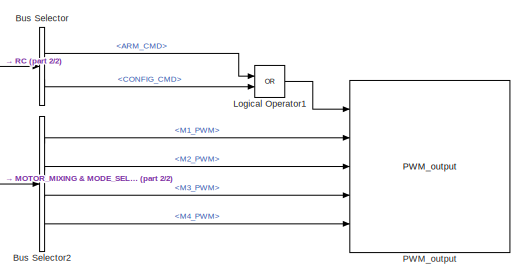
[diagram: root canvas - part 1/2, top right region]
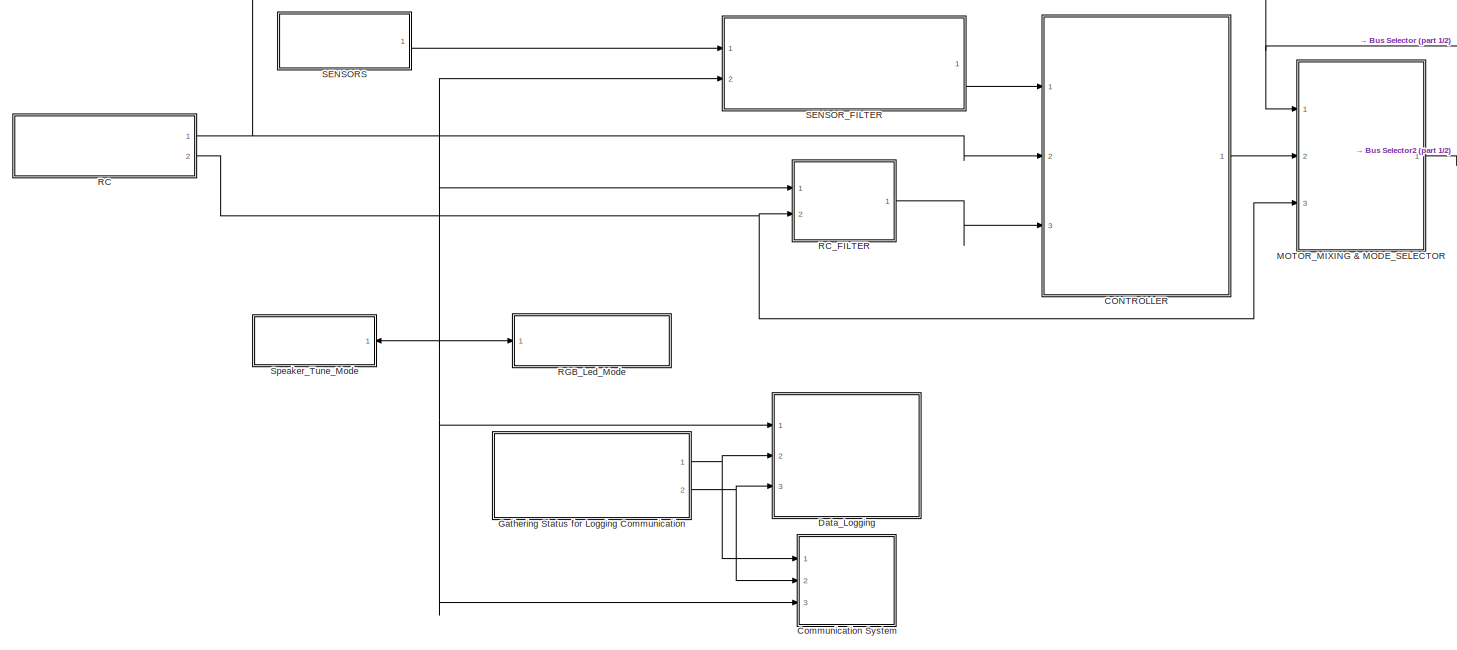
[diagram: root canvas - part 2/2, most of the canvas]
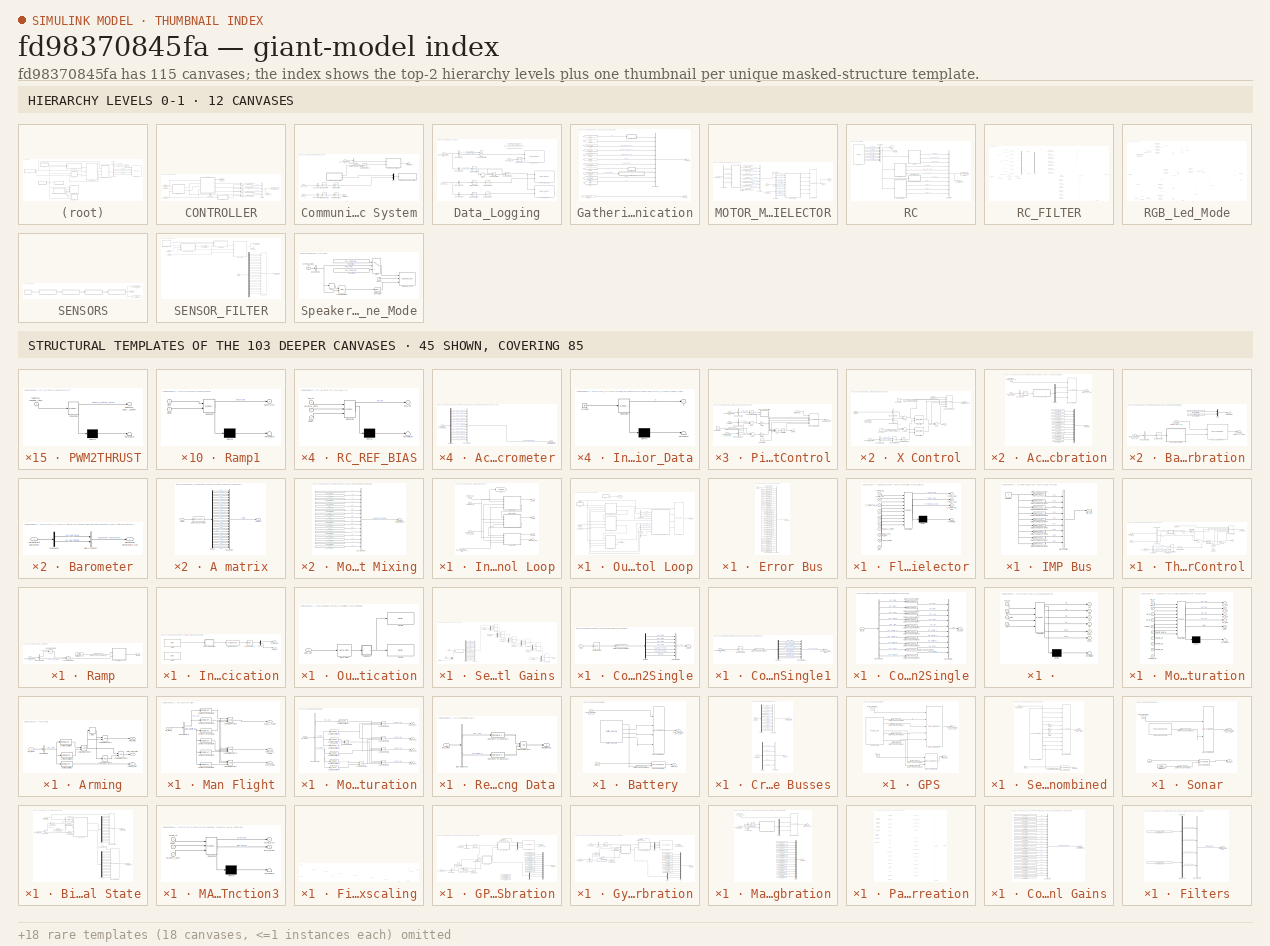
[diagram: thumbnail index - top-2 hierarchy levels (12 canvases) + 45 structural-template representatives of the remaining 103 canvases]
MODEL slx_fd98370845fa
KIND model
CONFIG AbsTol = auto
CONFIG EnableMultiTasking = on
CONFIG FixedStep = auto
CONFIG InitFcn = run('InitFcn_R2017b_no_csc.m');
CONFIG MaxStep = auto
CONFIG MinStep = auto
CONFIG RelTol = 1e-3
CONFIG SampleTimeConstraint = Unconstrained
CONFIG Solver = FixedStepDiscrete
CONFIG SolverName = FixedStepDiscrete
CONFIG StartTime = 0.0
CONFIG StopTime = 10.0
BLOCK [BusSelector] Bus Selector
  OutputAsBus = off
  OutputSignals = ARM_CMD,CONFIG_CMD
  Ports = [1, 2]
BLOCK [BusSelector] Bus Selector2
  OutputAsBus = off
  OutputSignals = M1_PWM,M2_PWM,M3_PWM,M4_PWM
  Ports = [1, 4]
BLOCK [SubSystem] CONTROLLER
  Ports = [3, 1]
  RequestExecContextInheritance = off
  Variant = off
BLOCK [BusCreator] CONTROLLER/Bus Creator1
  DisplayOption = bar
  InheritFromInputs = on
  Inputs = 4
  Ports = [4, 1]
BLOCK [BusSelector] CONTROLLER/Bus Selector
  OutputAsBus = off
  OutputSignals = T_THROTTLE
  Ports = [1, 1]
BLOCK [Outport] CONTROLLER/CONTROLLER_OUT
  IconDisplay = Port number
BLOCK [DataTypeConversion] CONTROLLER/Data Type Conversion12
  OutDataTypeStr = single
  RndMeth = Floor
  SaturateOnIntegerOverflow = off
BLOCK [DataTypeConversion] CONTROLLER/Data Type Conversion13
  OutDataTypeStr = single
  RndMeth = Floor
  SaturateOnIntegerOverflow = off
BLOCK [DataTypeConversion] CONTROLLER/Data Type Conversion14
  OutDataTypeStr = single
  RndMeth = Floor
  SaturateOnIntegerOverflow = off
BLOCK [DataTypeConversion] CONTROLLER/Data Type Conversion15
  OutDataTypeStr = single
  RndMeth = Floor
  SaturateOnIntegerOverflow = off
BLOCK [Inport] CONTROLLER/ESTIMATED_STATE_IN
  IconDisplay = Port number
BLOCK [Goto] CONTROLLER/Goto
  GotoTag = CONTROLLER
  TagVisibility = global
BLOCK [Goto] CONTROLLER/Goto1
  GotoTag = ERROR
  TagVisibility = global
BLOCK [SubSystem] CONTROLLER/Inner Control Loop
  Ports = [4, 4]
  RequestExecContextInheritance = off
  Variant = off
BLOCK [Inport] CONTROLLER/Inner Control Loop/ERROR_IN
  IconDisplay = Port number
  Port = 3
BLOCK [Outport] CONTROLLER/Inner Control Loop/ERROR_OUT
  IconDisplay = Port number
BLOCK [Inport] CONTROLLER/Inner Control Loop/ESTIMATED_STATE_IN
  IconDisplay = Port number
BLOCK [Goto] CONTROLLER/Inner Control Loop/Goto
  GotoTag = TARGET
  TagVisibility = global
BLOCK [SubSystem] CONTROLLER/Inner Control Loop/Pitch Control
  Ports = [4, 2]
  RequestExecContextInheritance = off
  Variant = off
BLOCK [Sum] CONTROLLER/Inner Control Loop/Pitch Control/Add1
  InputSameDT = off
  Inputs = +-
  OutDataTypeStr = Inherit: Inherit via internal rule
  Ports = [2, 1]
  SaturateOnIntegerOverflow = off
BLOCK [Sum] CONTROLLER/Inner Control Loop/Pitch Control/Add3
  InputSameDT = off
  Inputs = +-
  OutDataTypeStr = Inherit: Inherit via internal rule
  Ports = [2, 1]
  SaturateOnIntegerOverflow = off
BLOCK [Sum] CONTROLLER/Inner Control Loop/Pitch Control/Add4
  InputSameDT = off
  Inputs = ++++
  OutDataTypeStr = Inherit: Inherit via internal rule
  Ports = [4, 1]
  SaturateOnIntegerOverflow = off
BLOCK [BusAssignment] CONTROLLER/Inner Control Loop/Pitch Control/Bus Assignment
  AssignedSignals = e6,e7,e8,e9,e10
  Ports = [6, 1]
BLOCK [BusSelector] CONTROLLER/Inner Control Loop/Pitch Control/Bus Selector1
  OutputAsBus = off
  OutputSignals = ARM_CMD
  Ports = [1, 1]
BLOCK [BusSelector] CONTROLLER/Inner Control Loop/Pitch Control/Bus Selector10
  OutputAsBus = off
  OutputSignals = T_PITCH
  Ports = [1, 1]
BLOCK [BusSelector] CONTROLLER/Inner Control Loop/Pitch Control/Bus Selector11
  OutputAsBus = off
  OutputSignals = theta,wy
  Ports = [1, 2]
BLOCK [Constant] CONTROLLER/Inner Control Loop/Pitch Control/Constant
  SampleTime = Ts
  Value = 0
BLOCK [Constant] CONTROLLER/Inner Control Loop/Pitch Control/Constant1
  SampleTime = Ts
  Value = C11
BLOCK [DataTypeConversion] CONTROLLER/Inner Control Loop/Pitch Control/Data Type Conversion
  OutDataTypeStr = single
  RndMeth = Floor
  SaturateOnIntegerOverflow = off
BLOCK [Inport] CONTROLLER/Inner Control Loop/Pitch Control/ERROR_IN
  IconDisplay = Port number
BLOCK [Outport] CONTROLLER/Inner Control Loop/Pitch Control/ERROR_OUT
  IconDisplay = Port number
  Port = 2
BLOCK [Inport] CONTROLLER/Inner Control Loop/Pitch Control/ESTIMATED_STATE_IN
  IconDisplay = Port number
  Port = 3
BLOCK [Gain] CONTROLLER/Inner Control Loop/Pitch Control/Gain
  Gain = C2
  OutDataTypeStr = Inherit: Inherit via internal rule
  ParamDataTypeStr = Inherit: Inherit via internal rule
  SaturateOnIntegerOverflow = off
BLOCK [Gain] CONTROLLER/Inner Control Loop/Pitch Control/Gain1
  Gain = C8
  OutDataTypeStr = Inherit: Inherit via internal rule
  ParamDataTypeStr = Inherit: Inherit via internal rule
  SaturateOnIntegerOverflow = off
BLOCK [Logic] CONTROLLER/Inner Control Loop/Pitch Control/Logical Operator8
  AllPortsSameDT = off
  IconShape = distinctive
  Operator = NOT
  OutDataTypeStr = boolean
  Ports = [1, 1]
BLOCK [SubSystem] CONTROLLER/Inner Control Loop/Pitch Control/MATLAB Function
  ErrorFcn = Stateflow.Translate.translate
  PermitHierarchicalResolution = ExplicitOnly
  Ports = [2, 1]
  RequestExecContextInheritance = off
  SFBlockType = MATLAB Function
  TreatAsAtomicUnit = on
  Variant = off
BLOCK [Demux] CONTROLLER/Inner Control Loop/Pitch Control/MATLAB Function/ Demux 
  Outputs = 1
  Ports = [1, 1]
BLOCK [S-Function] CONTROLLER/Inner Control Loop/Pitch Control/MATLAB Function/ SFunction 
  EnableBusSupport = on
  FunctionName = sf_sfun
  Parameters = C5,Ts
  PortCounts = [2 2]
  Ports = [2, 2]
  SFcnIsStateOwnerBlock = off
  SFunctionDeploymentMode = off
  Tag = Stateflow S-Function PX4_Run_Mode_R2017b 35
BLOCK [Terminator] CONTROLLER/Inner Control Loop/Pitch Control/MATLAB Function/ Terminator 
BLOCK [Inport] CONTROLLER/Inner Control Loop/Pitch Control/MATLAB Function/Reset
  IconDisplay = Port number
BLOCK [Inport] CONTROLLER/Inner Control Loop/Pitch Control/MATLAB Function/u
  IconDisplay = Port number
  Port = 2
BLOCK [Outport] CONTROLLER/Inner Control Loop/Pitch Control/MATLAB Function/y
  IconDisplay = Port number
BLOCK [Inport] CONTROLLER/Inner Control Loop/Pitch Control/SYSTEM_MODE_IN 
  IconDisplay = Port number
  Port = 4
BLOCK [Saturate] CONTROLLER/Inner Control Loop/Pitch Control/Saturation
  InputPortMap = u0
  LowerLimit = -2
  Ports = [1, 1]
  UpperLimit = 2
BLOCK [Inport] CONTROLLER/Inner Control Loop/Pitch Control/TARGET
  IconDisplay = Port number
  Port = 2
BLOCK [Outport] CONTROLLER/Inner Control Loop/Pitch Control/U Pitch
  IconDisplay = Port number
BLOCK [SubSystem] CONTROLLER/Inner Control Loop/Roll Control
  Ports = [4, 2]
  RequestExecContextInheritance = off
  Variant = off
BLOCK [Sum] CONTROLLER/Inner Control Loop/Roll Control/Add1
  InputSameDT = off
  Inputs = +-
  OutDataTypeStr = Inherit: Inherit via internal rule
  Ports = [2, 1]
  SaturateOnIntegerOverflow = off
BLOCK [Sum] CONTROLLER/Inner Control Loop/Roll Control/Add3
  InputSameDT = off
  Inputs = +-
  OutDataTypeStr = Inherit: Inherit via internal rule
  Ports = [2, 1]
  SaturateOnIntegerOverflow = off
BLOCK [Sum] CONTROLLER/Inner Control Loop/Roll Control/Add4
  InputSameDT = off
  Inputs = ++++
  OutDataTypeStr = Inherit: Inherit via internal rule
  Ports = [4, 1]
  SaturateOnIntegerOverflow = off
BLOCK [BusAssignment] CONTROLLER/Inner Control Loop/Roll Control/Bus Assignment
  AssignedSignals = e1,e2,e3,e4,e5
  Ports = [6, 1]
BLOCK [BusSelector] CONTROLLER/Inner Control Loop/Roll Control/Bus Selector1
  OutputAsBus = off
  OutputSignals = ARM_CMD
  Ports = [1, 1]
BLOCK [BusSelector] CONTROLLER/Inner Control Loop/Roll Control/Bus Selector10
  OutputAsBus = off
  OutputSignals = T_ROLL
  Ports = [1, 1]
BLOCK [BusSelector] CONTROLLER/Inner Control Loop/Roll Control/Bus Selector11
  OutputAsBus = off
  OutputSignals = phi,wx
  Ports = [1, 2]
BLOCK [Constant] CONTROLLER/Inner Control Loop/Roll Control/Constant
  SampleTime = Ts
  Value = 0
BLOCK [Constant] CONTROLLER/Inner Control Loop/Roll Control/Constant1
  Value = C10
BLOCK [DataTypeConversion] CONTROLLER/Inner Control Loop/Roll Control/Data Type Conversion
  OutDataTypeStr = single
  RndMeth = Floor
  SaturateOnIntegerOverflow = off
BLOCK [Inport] CONTROLLER/Inner Control Loop/Roll Control/ERROR_IN
  IconDisplay = Port number
BLOCK [Outport] CONTROLLER/Inner Control Loop/Roll Control/ERROR_OUT
  IconDisplay = Port number
  Port = 2
BLOCK [Inport] CONTROLLER/Inner Control Loop/Roll Control/ESTIMATED_STATE_IN
  IconDisplay = Port number
  Port = 3
BLOCK [Gain] CONTROLLER/Inner Control Loop/Roll Control/Gain
  Gain = C1
  OutDataTypeStr = Inherit: Inherit via internal rule
  ParamDataTypeStr = Inherit: Inherit via internal rule
  SaturateOnIntegerOverflow = off
BLOCK [Gain] CONTROLLER/Inner Control Loop/Roll Control/Gain1
  Gain = C7
  OutDataTypeStr = Inherit: Inherit via internal rule
  ParamDataTypeStr = Inherit: Inherit via internal rule
  SaturateOnIntegerOverflow = off
BLOCK [Logic] CONTROLLER/Inner Control Loop/Roll Control/Logical Operator8
  AllPortsSameDT = off
  IconShape = distinctive
  Operator = NOT
  OutDataTypeStr = boolean
  Ports = [1, 1]
BLOCK [SubSystem] CONTROLLER/Inner Control Loop/Roll Control/MATLAB Function
  ErrorFcn = Stateflow.Translate.translate
  PermitHierarchicalResolution = ExplicitOnly
  Ports = [2, 1]
  RequestExecContextInheritance = off
  SFBlockType = MATLAB Function
  TreatAsAtomicUnit = on
  Variant = off
BLOCK [Demux] CONTROLLER/Inner Control Loop/Roll Control/MATLAB Function/ Demux 
  Outputs = 1
  Ports = [1, 1]
BLOCK [S-Function] CONTROLLER/Inner Control Loop/Roll Control/MATLAB Function/ SFunction 
  EnableBusSupport = on
  FunctionName = sf_sfun
  Parameters = C4,Ts
  PortCounts = [2 2]
  Ports = [2, 2]
  SFcnIsStateOwnerBlock = off
  SFunctionDeploymentMode = off
  Tag = Stateflow S-Function PX4_Run_Mode_R2017b 34
BLOCK [Terminator] CONTROLLER/Inner Control Loop/Roll Control/MATLAB Function/ Terminator 
BLOCK [Inport] CONTROLLER/Inner Control Loop/Roll Control/MATLAB Function/Reset
  IconDisplay = Port number
BLOCK [Inport] CONTROLLER/Inner Control Loop/Roll Control/MATLAB Function/u
  IconDisplay = Port number
  Port = 2
BLOCK [Outport] CONTROLLER/Inner Control Loop/Roll Control/MATLAB Function/y
  IconDisplay = Port number
BLOCK [Inport] CONTROLLER/Inner Control Loop/Roll Control/SYSTEM_MODE_IN 
  IconDisplay = Port number
  Port = 4
BLOCK [Saturate] CONTROLLER/Inner Control Loop/Roll Control/Saturation
  InputPortMap = u0
  LowerLimit = -2
  Ports = [1, 1]
  UpperLimit = 2
BLOCK [Inport] CONTROLLER/Inner Control Loop/Roll Control/TARGET
  IconDisplay = Port number
  Port = 2
BLOCK [Outport] CONTROLLER/Inner Control Loop/Roll Control/U Roll
  IconDisplay = Port number
BLOCK [Inport] CONTROLLER/Inner Control Loop/SYSTEM_MODE_IN 
  IconDisplay = Port number
  Port = 4
BLOCK [Inport] CONTROLLER/Inner Control Loop/TARGET_IN
  IconDisplay = Port number
  Port = 2
BLOCK [Outport] CONTROLLER/Inner Control Loop/U Pitch
  IconDisplay = Port number
  Port = 3
BLOCK [Outport] CONTROLLER/Inner Control Loop/U Roll
  IconDisplay = Port number
  Port = 2
BLOCK [Outport] CONTROLLER/Inner Control Loop/U Yaw
  IconDisplay = Port number
  Port = 4
BLOCK [SubSystem] CONTROLLER/Inner Control Loop/Yaw Control
  Ports = [4, 2]
  RequestExecContextInheritance = off
  Variant = off
BLOCK [Sum] CONTROLLER/Inner Control Loop/Yaw Control/Add1
  InputSameDT = off
  Inputs = +-
  OutDataTypeStr = Inherit: Inherit via internal rule
  Ports = [2, 1]
  SaturateOnIntegerOverflow = off
BLOCK [Sum] CONTROLLER/Inner Control Loop/Yaw Control/Add3
  InputSameDT = off
  Inputs = +-
  OutDataTypeStr = Inherit: Inherit via internal rule
  Ports = [2, 1]
  SaturateOnIntegerOverflow = off
BLOCK [Sum] CONTROLLER/Inner Control Loop/Yaw Control/Add4
  InputSameDT = off
  Inputs = ++++
  OutDataTypeStr = Inherit: Inherit via internal rule
  Ports = [4, 1]
  SaturateOnIntegerOverflow = off
BLOCK [BusAssignment] CONTROLLER/Inner Control Loop/Yaw Control/Bus Assignment
  AssignedSignals = e11,e12,e13,e14,e15
  Ports = [6, 1]
BLOCK [BusSelector] CONTROLLER/Inner Control Loop/Yaw Control/Bus Selector1
  OutputAsBus = off
  OutputSignals = ARM_CMD
  Ports = [1, 1]
BLOCK [BusSelector] CONTROLLER/Inner Control Loop/Yaw Control/Bus Selector10
  OutputAsBus = off
  OutputSignals = T_YAW
  Ports = [1, 1]
BLOCK [BusSelector] CONTROLLER/Inner Control Loop/Yaw Control/Bus Selector11
  OutputAsBus = off
  OutputSignals = psi,wz
  Ports = [1, 2]
BLOCK [Constant] CONTROLLER/Inner Control Loop/Yaw Control/Constant
  SampleTime = Ts
  Value = 0
BLOCK [Constant] CONTROLLER/Inner Control Loop/Yaw Control/Constant1
  SampleTime = Ts
  Value = C12
BLOCK [DataTypeConversion] CONTROLLER/Inner Control Loop/Yaw Control/Data Type Conversion
  OutDataTypeStr = single
  RndMeth = Floor
  SaturateOnIntegerOverflow = off
BLOCK [Inport] CONTROLLER/Inner Control Loop/Yaw Control/ERROR_IN
  IconDisplay = Port number
BLOCK [Outport] CONTROLLER/Inner Control Loop/Yaw Control/ERROR_OUT
  IconDisplay = Port number
  Port = 2
BLOCK [Inport] CONTROLLER/Inner Control Loop/Yaw Control/ESTIMATED_STATE_IN
  IconDisplay = Port number
  Port = 3
BLOCK [Gain] CONTROLLER/Inner Control Loop/Yaw Control/Gain
  Gain = C3
  OutDataTypeStr = Inherit: Inherit via internal rule
  ParamDataTypeStr = Inherit: Inherit via internal rule
  SaturateOnIntegerOverflow = off
BLOCK [Gain] CONTROLLER/Inner Control Loop/Yaw Control/Gain1
  Gain = C9
  OutDataTypeStr = Inherit: Inherit via internal rule
  ParamDataTypeStr = Inherit: Inherit via internal rule
  SaturateOnIntegerOverflow = off
BLOCK [Logic] CONTROLLER/Inner Control Loop/Yaw Control/Logical Operator8
  AllPortsSameDT = off
  IconShape = distinctive
  Operator = NOT
  OutDataTypeStr = boolean
  Ports = [1, 1]
BLOCK [SubSystem] CONTROLLER/Inner Control Loop/Yaw Control/MATLAB Function
  ErrorFcn = Stateflow.Translate.translate
  PermitHierarchicalResolution = ExplicitOnly
  Ports = [2, 1]
  RequestExecContextInheritance = off
  SFBlockType = MATLAB Function
  TreatAsAtomicUnit = on
  Variant = off
BLOCK [Demux] CONTROLLER/Inner Control Loop/Yaw Control/MATLAB Function/ Demux 
  Outputs = 1
  Ports = [1, 1]
BLOCK [S-Function] CONTROLLER/Inner Control Loop/Yaw Control/MATLAB Function/ SFunction 
  EnableBusSupport = on
  FunctionName = sf_sfun
  Parameters = C6,Ts
  PortCounts = [2 2]
  Ports = [2, 2]
  SFcnIsStateOwnerBlock = off
  SFunctionDeploymentMode = off
  Tag = Stateflow S-Function PX4_Run_Mode_R2017b 40
BLOCK [Terminator] CONTROLLER/Inner Control Loop/Yaw Control/MATLAB Function/ Terminator 
BLOCK [Inport] CONTROLLER/Inner Control Loop/Yaw Control/MATLAB Function/Reset
  IconDisplay = Port number
BLOCK [Inport] CONTROLLER/Inner Control Loop/Yaw Control/MATLAB Function/e
  IconDisplay = Port number
  Port = 2
BLOCK [Outport] CONTROLLER/Inner Control Loop/Yaw Control/MATLAB Function/eI
  IconDisplay = Port number
BLOCK [Inport] CONTROLLER/Inner Control Loop/Yaw Control/SYSTEM_MODE_IN 
  IconDisplay = Port number
  Port = 4
BLOCK [Saturate] CONTROLLER/Inner Control Loop/Yaw Control/Saturation
  InputPortMap = u0
  LowerLimit = -2
  Ports = [1, 1]
  UpperLimit = 2
BLOCK [Inport] CONTROLLER/Inner Control Loop/Yaw Control/TARGET
  IconDisplay = Port number
  Port = 2
BLOCK [Outport] CONTROLLER/Inner Control Loop/Yaw Control/U Yaw
  IconDisplay = Port number
BLOCK [SubSystem] CONTROLLER/Outer Control Loop
  Ports = [3, 2]
  RequestExecContextInheritance = off
  Variant = off
BLOCK [BusAssignment] CONTROLLER/Outer Control Loop/Bus Assignment
  AssignedSignals = T_PITCH,T_ROLL,T_THROTTLE
  Ports = [4, 1]
BLOCK [BusSelector] CONTROLLER/Outer Control Loop/Bus Selector1
  OutputAsBus = off
  OutputSignals = psi
  Ports = [1, 1]
BLOCK [BusSelector] CONTROLLER/Outer Control Loop/Bus Selector2
  OutputAsBus = off
  OutputSignals = T_PITCH,T_ROLL,T_THROTTLE
  Ports = [1, 3]
BLOCK [BusSelector] CONTROLLER/Outer Control Loop/Bus Selector3
  OutputAsBus = off
  OutputSignals = MAN_FLIGHT,SEMI_AUTO_FLIGHT,AUTO_FLIGHT
  Ports = [1, 3]
BLOCK [Outport] CONTROLLER/Outer Control Loop/ERROR_OUT
  IconDisplay = Port number
  Port = 2
BLOCK [Inport] CONTROLLER/Outer Control Loop/ESTIMATED_STATE_IN
  IconDisplay = Port number
BLOCK [SubSystem] CONTROLLER/Outer Control Loop/Error Bus
  Ports = [0, 1]
  RequestExecContextInheritance = off
  Variant = off
BLOCK [BusCreator] CONTROLLER/Outer Control Loop/Error Bus/Bus Creator
  DisplayOption = bar
  InheritFromInputs = on
  Inputs = 30
  Ports = [30, 1]
BLOCK [Constant] CONTROLLER/Outer Control Loop/Error Bus/Constant
  SampleTime = Ts
  Value = 0
BLOCK [DataTypeConversion] CONTROLLER/Outer Control Loop/Error Bus/Data Type Conversion
  OutDataTypeStr = single
  RndMeth = Floor
  SaturateOnIntegerOverflow = off
BLOCK [DataTypeConversion] CONTROLLER/Outer Control Loop/Error Bus/Data Type Conversion1
  OutDataTypeStr = single
  RndMeth = Floor
  SaturateOnIntegerOverflow = off
BLOCK [DataTypeConversion] CONTROLLER/Outer Control Loop/Error Bus/Data Type Conversion10
  OutDataTypeStr = single
  RndMeth = Floor
  SaturateOnIntegerOverflow = off
BLOCK [DataTypeConversion] CONTROLLER/Outer Control Loop/Error Bus/Data Type Conversion11
  OutDataTypeStr = single
  RndMeth = Floor
  SaturateOnIntegerOverflow = off
BLOCK [DataTypeConversion] CONTROLLER/Outer Control Loop/Error Bus/Data Type Conversion12
  OutDataTypeStr = single
  RndMeth = Floor
  SaturateOnIntegerOverflow = off
BLOCK [DataTypeConversion] CONTROLLER/Outer Control Loop/Error Bus/Data Type Conversion13
  OutDataTypeStr = single
  RndMeth = Floor
  SaturateOnIntegerOverflow = off
BLOCK [DataTypeConversion] CONTROLLER/Outer Control Loop/Error Bus/Data Type Conversion14
  OutDataTypeStr = single
  RndMeth = Floor
  SaturateOnIntegerOverflow = off
BLOCK [DataTypeConversion] CONTROLLER/Outer Control Loop/Error Bus/Data Type Conversion15
  OutDataTypeStr = single
  RndMeth = Floor
  SaturateOnIntegerOverflow = off
BLOCK [DataTypeConversion] CONTROLLER/Outer Control Loop/Error Bus/Data Type Conversion16
  OutDataTypeStr = single
  RndMeth = Floor
  SaturateOnIntegerOverflow = off
BLOCK [DataTypeConversion] CONTROLLER/Outer Control Loop/Error Bus/Data Type Conversion17
  OutDataTypeStr = single
  RndMeth = Floor
  SaturateOnIntegerOverflow = off
BLOCK [DataTypeConversion] CONTROLLER/Outer Control Loop/Error Bus/Data Type Conversion18
  OutDataTypeStr = single
  RndMeth = Floor
  SaturateOnIntegerOverflow = off
BLOCK [DataTypeConversion] CONTROLLER/Outer Control Loop/Error Bus/Data Type Conversion19
  OutDataTypeStr = single
  RndMeth = Floor
  SaturateOnIntegerOverflow = off
BLOCK [DataTypeConversion] CONTROLLER/Outer Control Loop/Error Bus/Data Type Conversion2
  OutDataTypeStr = single
  RndMeth = Floor
  SaturateOnIntegerOverflow = off
BLOCK [DataTypeConversion] CONTROLLER/Outer Control Loop/Error Bus/Data Type Conversion20
  OutDataTypeStr = single
  RndMeth = Floor
  SaturateOnIntegerOverflow = off
BLOCK [DataTypeConversion] CONTROLLER/Outer Control Loop/Error Bus/Data Type Conversion21
  OutDataTypeStr = single
  RndMeth = Floor
  SaturateOnIntegerOverflow = off
BLOCK [DataTypeConversion] CONTROLLER/Outer Control Loop/Error Bus/Data Type Conversion22
  OutDataTypeStr = single
  RndMeth = Floor
  SaturateOnIntegerOverflow = off
BLOCK [DataTypeConversion] CONTROLLER/Outer Control Loop/Error Bus/Data Type Conversion23
  OutDataTypeStr = single
  RndMeth = Floor
  SaturateOnIntegerOverflow = off
BLOCK [DataTypeConversion] CONTROLLER/Outer Control Loop/Error Bus/Data Type Conversion24
  OutDataTypeStr = single
  RndMeth = Floor
  SaturateOnIntegerOverflow = off
BLOCK [DataTypeConversion] CONTROLLER/Outer Control Loop/Error Bus/Data Type Conversion25
  OutDataTypeStr = single
  RndMeth = Floor
  SaturateOnIntegerOverflow = off
BLOCK [DataTypeConversion] CONTROLLER/Outer Control Loop/Error Bus/Data Type Conversion26
  OutDataTypeStr = single
  RndMeth = Floor
  SaturateOnIntegerOverflow = off
BLOCK [DataTypeConversion] CONTROLLER/Outer Control Loop/Error Bus/Data Type Conversion27
  OutDataTypeStr = single
  RndMeth = Floor
  SaturateOnIntegerOverflow = off
BLOCK [DataTypeConversion] CONTROLLER/Outer Control Loop/Error Bus/Data Type Conversion28
  OutDataTypeStr = single
  RndMeth = Floor
  SaturateOnIntegerOverflow = off
BLOCK [DataTypeConversion] CONTROLLER/Outer Control Loop/Error Bus/Data Type Conversion29
  OutDataTypeStr = single
  RndMeth = Floor
  SaturateOnIntegerOverflow = off
BLOCK [DataTypeConversion] CONTROLLER/Outer Control Loop/Error Bus/Data Type Conversion3
  OutDataTypeStr = single
  RndMeth = Floor
  SaturateOnIntegerOverflow = off
BLOCK [DataTypeConversion] CONTROLLER/Outer Control Loop/Error Bus/Data Type Conversion4
  OutDataTypeStr = single
  RndMeth = Floor
  SaturateOnIntegerOverflow = off
BLOCK [DataTypeConversion] CONTROLLER/Outer Control Loop/Error Bus/Data Type Conversion5
  OutDataTypeStr = single
  RndMeth = Floor
  SaturateOnIntegerOverflow = off
BLOCK [DataTypeConversion] CONTROLLER/Outer Control Loop/Error Bus/Data Type Conversion6
  OutDataTypeStr = single
  RndMeth = Floor
  SaturateOnIntegerOverflow = off
BLOCK [DataTypeConversion] CONTROLLER/Outer Control Loop/Error Bus/Data Type Conversion7
  OutDataTypeStr = single
  RndMeth = Floor
  SaturateOnIntegerOverflow = off
BLOCK [DataTypeConversion] CONTROLLER/Outer Control Loop/Error Bus/Data Type Conversion8
  OutDataTypeStr = single
  RndMeth = Floor
  SaturateOnIntegerOverflow = off
BLOCK [DataTypeConversion] CONTROLLER/Outer Control Loop/Error Bus/Data Type Conversion9
  OutDataTypeStr = single
  RndMeth = Floor
  SaturateOnIntegerOverflow = off
BLOCK [Outport] CONTROLLER/Outer Control Loop/Error Bus/ERROR_OUT
  IconDisplay = Port number
BLOCK [SubSystem] CONTROLLER/Outer Control Loop/Flight_Mode_Selector
  ErrorFcn = Stateflow.Translate.translate
  PermitHierarchicalResolution = ExplicitOnly
  Ports = [10, 3]
  RequestExecContextInheritance = off
  SFBlockType = MATLAB Function
  TreatAsAtomicUnit = on
  Variant = off
BLOCK [Demux] CONTROLLER/Outer Control Loop/Flight_Mode_Selector/ Demux 
  Outputs = 1
  Ports = [1, 1]
BLOCK [S-Function] CONTROLLER/Outer Control Loop/Flight_Mode_Selector/ SFunction 
  EnableBusSupport = on
  FunctionName = sf_sfun
  PortCounts = [10 4]
  Ports = [10, 4]
  SFcnIsStateOwnerBlock = off
  SFunctionDeploymentMode = off
  Tag = Stateflow S-Function PX4_Run_Mode_R2017b 42
BLOCK [Terminator] CONTROLLER/Outer Control Loop/Flight_Mode_Selector/ Terminator 
BLOCK [Inport] CONTROLLER/Outer Control Loop/Flight_Mode_Selector/AUTO_FLIGHT
  IconDisplay = Port number
  Port = 9
BLOCK [Inport] CONTROLLER/Outer Control Loop/Flight_Mode_Selector/MANUAL_FLIGHT
  IconDisplay = Port number
  Port = 7
BLOCK [Inport] CONTROLLER/Outer Control Loop/Flight_Mode_Selector/SEMI_AUTO_FLIGHT
  IconDisplay = Port number
  Port = 8
BLOCK [Inport] CONTROLLER/Outer Control Loop/Flight_Mode_Selector/T_PITCH_IN
  IconDisplay = Port number
BLOCK [Outport] CONTROLLER/Outer Control Loop/Flight_Mode_Selector/T_PITCH_OUT
  IconDisplay = Port number
BLOCK [Inport] CONTROLLER/Outer Control Loop/Flight_Mode_Selector/T_ROLL_IN
  IconDisplay = Port number
  Port = 2
BLOCK [Outport] CONTROLLER/Outer Control Loop/Flight_Mode_Selector/T_ROLL_OUT
  IconDisplay = Port number
  Port = 2
BLOCK [Inport] CONTROLLER/Outer Control Loop/Flight_Mode_Selector/T_THROTTLE_IN
  IconDisplay = Port number
  Port = 3
BLOCK [Outport] CONTROLLER/Outer Control Loop/Flight_Mode_Selector/T_THROTTLE_OUT
  IconDisplay = Port number
  Port = 3
BLOCK [Inport] CONTROLLER/Outer Control Loop/Flight_Mode_Selector/U_X
  IconDisplay = Port number
  Port = 4
BLOCK [Inport] CONTROLLER/Outer Control Loop/Flight_Mode_Selector/U_Y
  IconDisplay = Port number
  Port = 5
BLOCK [Inport] CONTROLLER/Outer Control Loop/Flight_Mode_Selector/U_Z
  IconDisplay = Port number
  Port = 6
BLOCK [Inport] CONTROLLER/Outer Control Loop/Flight_Mode_Selector/psi
  IconDisplay = Port number
  Port = 10
BLOCK [Goto] CONTROLLER/Outer Control Loop/Goto
  GotoTag = IMP
  TagVisibility = global
BLOCK [SubSystem] CONTROLLER/Outer Control Loop/IMP Bus
  Ports = [0, 1]
  RequestExecContextInheritance = off
  Variant = off
BLOCK [BusCreator] CONTROLLER/Outer Control Loop/IMP Bus/Bus Creator
  DisplayOption = bar
  InheritFromInputs = on
  Inputs = 9
  Ports = [9, 1]
BLOCK [Constant] CONTROLLER/Outer Control Loop/IMP Bus/Constant
  SampleTime = Ts
  Value = 0
BLOCK [DataTypeConversion] CONTROLLER/Outer Control Loop/IMP Bus/Data Type Conversion
  OutDataTypeStr = single
  RndMeth = Floor
  SaturateOnIntegerOverflow = off
BLOCK [DataTypeConversion] CONTROLLER/Outer Control Loop/IMP Bus/Data Type Conversion1
  OutDataTypeStr = single
  RndMeth = Floor
  SaturateOnIntegerOverflow = off
BLOCK [DataTypeConversion] CONTROLLER/Outer Control Loop/IMP Bus/Data Type Conversion2
  OutDataTypeStr = single
  RndMeth = Floor
  SaturateOnIntegerOverflow = off
BLOCK [DataTypeConversion] CONTROLLER/Outer Control Loop/IMP Bus/Data Type Conversion3
  OutDataTypeStr = single
  RndMeth = Floor
  SaturateOnIntegerOverflow = off
BLOCK [DataTypeConversion] CONTROLLER/Outer Control Loop/IMP Bus/Data Type Conversion4
  OutDataTypeStr = single
  RndMeth = Floor
  SaturateOnIntegerOverflow = off
BLOCK [DataTypeConversion] CONTROLLER/Outer Control Loop/IMP Bus/Data Type Conversion5
  OutDataTypeStr = single
  RndMeth = Floor
  SaturateOnIntegerOverflow = off
BLOCK [DataTypeConversion] CONTROLLER/Outer Control Loop/IMP Bus/Data Type Conversion6
  OutDataTypeStr = single
  RndMeth = Floor
  SaturateOnIntegerOverflow = off
BLOCK [DataTypeConversion] CONTROLLER/Outer Control Loop/IMP Bus/Data Type Conversion7
  OutDataTypeStr = single
  RndMeth = Floor
  SaturateOnIntegerOverflow = off
BLOCK [DataTypeConversion] CONTROLLER/Outer Control Loop/IMP Bus/Data Type Conversion8
  OutDataTypeStr = single
  RndMeth = Floor
  SaturateOnIntegerOverflow = off
BLOCK [Outport] CONTROLLER/Outer Control Loop/IMP Bus/IMP_OUT
  IconDisplay = Port number
BLOCK [Inport] CONTROLLER/Outer Control Loop/SYSTEM_MODE_IN
  IconDisplay = Port number
  Port = 3
BLOCK [Inport] CONTROLLER/Outer Control Loop/TARGET_IN
  IconDisplay = Port number
  Port = 2
BLOCK [Outport] CONTROLLER/Outer Control Loop/TARGET_OUT
  IconDisplay = Port number
BLOCK [SubSystem] CONTROLLER/Outer Control Loop/Thrust Control
  Ports = [4, 2]
  RequestExecContextInheritance = off
  Variant = off
BLOCK [Sum] CONTROLLER/Outer Control Loop/Thrust Control/Add
  InputSameDT = off
  Inputs = -+
  OutDataTypeStr = Inherit: Inherit via internal rule
  Ports = [2, 1]
  SaturateOnIntegerOverflow = off
BLOCK [Sum] CONTROLLER/Outer Control Loop/Thrust Control/Add2
  InputSameDT = off
  Inputs = -+
  OutDataTypeStr = Inherit: Inherit via internal rule
  Ports = [2, 1]
  SaturateOnIntegerOverflow = off
BLOCK [Sum] CONTROLLER/Outer Control Loop/Thrust Control/Add5
  InputSameDT = off
  OutDataTypeStr = Inherit: Inherit via internal rule
  Ports = [2, 1]
  SaturateOnIntegerOverflow = off
BLOCK [BusAssignment] CONTROLLER/Outer Control Loop/Thrust Control/Bus Assignment
  AssignedSignals = e26,e27,e28,e29,e30
  Ports = [6, 1]
BLOCK [BusSelector] CONTROLLER/Outer Control Loop/Thrust Control/Bus Selector1
  OutputAsBus = off
  OutputSignals = T_Z
  Ports = [1, 1]
BLOCK [BusSelector] CONTROLLER/Outer Control Loop/Thrust Control/Bus Selector2
  OutputAsBus = off
  OutputSignals = ARM_CMD,AUTO_FLIGHT,SEMI_AUTO_FLIGHT
  Ports = [1, 3]
BLOCK [BusSelector] CONTROLLER/Outer Control Loop/Thrust Control/Bus Selector3
  OutputAsBus = off
  OutputSignals = z,w
  Ports = [1, 2]
BLOCK [Constant] CONTROLLER/Outer Control Loop/Thrust Control/Constant1
  Commented = on
  SampleTime = Ts
  Value = C24
BLOCK [Constant] CONTROLLER/Outer Control Loop/Thrust Control/Constant2
  OutDataTypeStr = single
  Value = -12.5
BLOCK [Inport] CONTROLLER/Outer Control Loop/Thrust Control/ERROR_IN
  IconDisplay = Port number
BLOCK [Outport] CONTROLLER/Outer Control Loop/Thrust Control/ERROR_OUT
  IconDisplay = Port number
  Port = 2
BLOCK [Inport] CONTROLLER/Outer Control Loop/Thrust Control/ESTIMATED_STATE_IN
  IconDisplay = Port number
  Port = 3
BLOCK [Logic] CONTROLLER/Outer Control Loop/Thrust Control/Logical Operator
  AllPortsSameDT = off
  IconShape = distinctive
  OutDataTypeStr = boolean
  Ports = [2, 1]
BLOCK [Logic] CONTROLLER/Outer Control Loop/Thrust Control/Logical Operator1
  AllPortsSameDT = off
  IconShape = distinctive
  Operator = NOT
  OutDataTypeStr = boolean
  Ports = [1, 1]
BLOCK [Logic] CONTROLLER/Outer Control Loop/Thrust Control/Logical Operator2
  AllPortsSameDT = off
  IconShape = distinctive
  Operator = OR
  OutDataTypeStr = boolean
  Ports = [2, 1]
BLOCK [SubSystem] CONTROLLER/Outer Control Loop/Thrust Control/MATLAB Function2
  ErrorFcn = Stateflow.Translate.translate
  PermitHierarchicalResolution = ExplicitOnly
  Ports = [1, 1]
  RequestExecContextInheritance = off
  SFBlockType = MATLAB Function
  TreatAsAtomicUnit = on
  Variant = off
BLOCK [Demux] CONTROLLER/Outer Control Loop/Thrust Control/MATLAB Function2/ Demux 
  Outputs = 1
  Ports = [1, 1]
BLOCK [S-Function] CONTROLLER/Outer Control Loop/Thrust Control/MATLAB Function2/ SFunction 
  EnableBusSupport = on
  FunctionName = sf_sfun
  PortCounts = [1 2]
  Ports = [1, 2]
  SFcnIsStateOwnerBlock = off
  SFunctionDeploymentMode = off
  Tag = Stateflow S-Function PX4_Run_Mode_R2017b 13
BLOCK [Terminator] CONTROLLER/Outer Control Loop/Thrust Control/MATLAB Function2/ Terminator 
BLOCK [Inport] CONTROLLER/Outer Control Loop/Thrust Control/MATLAB Function2/T_z
  IconDisplay = Port number
BLOCK [Outport] CONTROLLER/Outer Control Loop/Thrust Control/MATLAB Function2/Z_Vel_Ref
  IconDisplay = Port number
BLOCK [Reference] CONTROLLER/Outer Control Loop/Thrust Control/PID Controller  REF=simulink/Continuous/PID Controller
  Ports = [2, 1]
  SourceBlock = simulink/Continuous/PID Controller
  SourceProductBaseCode = SL
  SourceProductName = Simulink
  SourceType = PID 1dof
BLOCK [Reference] CONTROLLER/Outer Control Loop/Thrust Control/PID Controller1  REF=simulink/Continuous/PID Controller
  Ports = [1, 1]
  SourceBlock = simulink/Continuous/PID Controller
  SourceProductBaseCode = SL
  SourceProductName = Simulink
  SourceType = PID 1dof
BLOCK [Inport] CONTROLLER/Outer Control Loop/Thrust Control/SYSTEM_MODE_IN
  IconDisplay = Port number
  Port = 4
BLOCK [Inport] CONTROLLER/Outer Control Loop/Thrust Control/TARGET
  IconDisplay = Port number
  Port = 2
BLOCK [Outport] CONTROLLER/Outer Control Loop/Thrust Control/U Z
  IconDisplay = Port number
BLOCK [SubSystem] CONTROLLER/Outer Control Loop/X Control
  Ports = [4, 2]
  RequestExecContextInheritance = off
  Variant = off
BLOCK [Sum] CONTROLLER/Outer Control Loop/X Control/Add
  InputSameDT = off
  OutDataTypeStr = Inherit: Inherit via internal rule
  Ports = [2, 1]
  SaturateOnIntegerOverflow = off
BLOCK [Sum] CONTROLLER/Outer Control Loop/X Control/Add2
  InputSameDT = off
  Inputs = +-
  OutDataTypeStr = Inherit: Inherit via internal rule
  Ports = [2, 1]
  SaturateOnIntegerOverflow = off
BLOCK [Sum] CONTROLLER/Outer Control Loop/X Control/Add4
  InputSameDT = off
  Inputs = -+
  OutDataTypeStr = Inherit: Inherit via internal rule
  Ports = [2, 1]
  SaturateOnIntegerOverflow = off
BLOCK [BusAssignment] CONTROLLER/Outer Control Loop/X Control/Bus Assignment
  AssignedSignals = e16,e17,e18,e19,e20
  Ports = [6, 1]
BLOCK [BusSelector] CONTROLLER/Outer Control Loop/X Control/Bus Selector1
  OutputAsBus = off
  OutputSignals = x,u
  Ports = [1, 2]
BLOCK [BusSelector] CONTROLLER/Outer Control Loop/X Control/Bus Selector2
  OutputAsBus = off
  OutputSignals = ARM_CMD,AUTO_FLIGHT
  Ports = [1, 2]
BLOCK [BusSelector] CONTROLLER/Outer Control Loop/X Control/Bus Selector3
  OutputAsBus = off
  OutputSignals = T_X
  Ports = [1, 1]
BLOCK [Constant] CONTROLLER/Outer Control Loop/X Control/Constant1
  SampleTime = Ts
  Value = 0
BLOCK [Constant] CONTROLLER/Outer Control Loop/X Control/Constant2
  SampleTime = Ts
  Value = 0
BLOCK [Reference] CONTROLLER/Outer Control Loop/X Control/D Controller  REF=simulink/Continuous/PID Controller
  Ports = [2, 1]
  SourceBlock = simulink/Continuous/PID Controller
  SourceProductBaseCode = SL
  SourceProductName = Simulink
  SourceType = PID 1dof
BLOCK [DataTypeConversion] CONTROLLER/Outer Control Loop/X Control/Data Type Conversion1
  OutDataTypeStr = single
  RndMeth = Floor
  SaturateOnIntegerOverflow = off
BLOCK [DataTypeConversion] CONTROLLER/Outer Control Loop/X Control/Data Type Conversion2
  OutDataTypeStr = single
  RndMeth = Floor
  SaturateOnIntegerOverflow = off
BLOCK [Inport] CONTROLLER/Outer Control Loop/X Control/ERROR_IN
  IconDisplay = Port number
BLOCK [Outport] CONTROLLER/Outer Control Loop/X Control/ERROR_OUT
  IconDisplay = Port number
  Port = 2
BLOCK [Inport] CONTROLLER/Outer Control Loop/X Control/ESTIMATED_STATE_IN
  IconDisplay = Port number
  Port = 3
BLOCK [Logic] CONTROLLER/Outer Control Loop/X Control/Logical Operator
  AllPortsSameDT = off
  IconShape = distinctive
  OutDataTypeStr = boolean
  Ports = [2, 1]
BLOCK [Logic] CONTROLLER/Outer Control Loop/X Control/Logical Operator1
  AllPortsSameDT = off
  IconShape = distinctive
  Operator = NOT
  OutDataTypeStr = boolean
  Ports = [1, 1]
BLOCK [Reference] CONTROLLER/Outer Control Loop/X Control/PI Controller  REF=simulink/Continuous/PID Controller
  Ports = [2, 1]
  SourceBlock = simulink/Continuous/PID Controller
  SourceProductBaseCode = SL
  SourceProductName = Simulink
  SourceType = PID 1dof
BLOCK [Inport] CONTROLLER/Outer Control Loop/X Control/SYSTEM_MODE_IN
  IconDisplay = Port number
  Port = 4
BLOCK [Inport] CONTROLLER/Outer Control Loop/X Control/TARGET
  IconDisplay = Port number
  Port = 2
BLOCK [Outport] CONTROLLER/Outer Control Loop/X Control/U X
  IconDisplay = Port number
BLOCK [SubSystem] CONTROLLER/Outer Control Loop/Y Control
  Ports = [4, 2]
  RequestExecContextInheritance = off
  Variant = off
BLOCK [Sum] CONTROLLER/Outer Control Loop/Y Control/Add
  InputSameDT = off
  OutDataTypeStr = Inherit: Inherit via internal rule
  Ports = [2, 1]
  SaturateOnIntegerOverflow = off
BLOCK [Sum] CONTROLLER/Outer Control Loop/Y Control/Add2
  InputSameDT = off
  Inputs = +-
  OutDataTypeStr = Inherit: Inherit via internal rule
  Ports = [2, 1]
  SaturateOnIntegerOverflow = off
BLOCK [Sum] CONTROLLER/Outer Control Loop/Y Control/Add5
  InputSameDT = off
  Inputs = -+
  OutDataTypeStr = Inherit: Inherit via internal rule
  Ports = [2, 1]
  SaturateOnIntegerOverflow = off
BLOCK [BusAssignment] CONTROLLER/Outer Control Loop/Y Control/Bus Assignment
  AssignedSignals = e21,e22,e23,e24,e25
  Ports = [6, 1]
BLOCK [BusSelector] CONTROLLER/Outer Control Loop/Y Control/Bus Selector1
  OutputAsBus = off
  OutputSignals = y,v
  Ports = [1, 2]
BLOCK [BusSelector] CONTROLLER/Outer Control Loop/Y Control/Bus Selector3
  OutputAsBus = off
  OutputSignals = ARM_CMD,AUTO_FLIGHT
  Ports = [1, 2]
BLOCK [BusSelector] CONTROLLER/Outer Control Loop/Y Control/Bus Selector4
  OutputAsBus = off
  OutputSignals = T_Y
  Ports = [1, 1]
BLOCK [Constant] CONTROLLER/Outer Control Loop/Y Control/Constant1
  SampleTime = Ts
  Value = 0
BLOCK [Constant] CONTROLLER/Outer Control Loop/Y Control/Constant2
  SampleTime = Ts
  Value = 0
BLOCK [Reference] CONTROLLER/Outer Control Loop/Y Control/D Controller  REF=simulink/Continuous/PID Controller
  Ports = [2, 1]
  SourceBlock = simulink/Continuous/PID Controller
  SourceProductBaseCode = SL
  SourceProductName = Simulink
  SourceType = PID 1dof
BLOCK [DataTypeConversion] CONTROLLER/Outer Control Loop/Y Control/Data Type Conversion1
  OutDataTypeStr = single
  RndMeth = Floor
  SaturateOnIntegerOverflow = off
BLOCK [DataTypeConversion] CONTROLLER/Outer Control Loop/Y Control/Data Type Conversion2
  OutDataTypeStr = single
  RndMeth = Floor
  SaturateOnIntegerOverflow = off
BLOCK [Inport] CONTROLLER/Outer Control Loop/Y Control/ERROR_IN
  IconDisplay = Port number
BLOCK [Outport] CONTROLLER/Outer Control Loop/Y Control/ERROR_OUT
  IconDisplay = Port number
  Port = 2
BLOCK [Inport] CONTROLLER/Outer Control Loop/Y Control/ESTIMATED_STATE_IN
  IconDisplay = Port number
  Port = 3
BLOCK [Logic] CONTROLLER/Outer Control Loop/Y Control/Logical Operator2
  AllPortsSameDT = off
  IconShape = distinctive
  OutDataTypeStr = boolean
  Ports = [2, 1]
BLOCK [Logic] CONTROLLER/Outer Control Loop/Y Control/Logical Operator3
  AllPortsSameDT = off
  IconShape = distinctive
  Operator = NOT
  OutDataTypeStr = boolean
  Ports = [1, 1]
BLOCK [Reference] CONTROLLER/Outer Control Loop/Y Control/PI Controller  REF=simulink/Continuous/PID Controller
  Ports = [2, 1]
  SourceBlock = simulink/Continuous/PID Controller
  SourceProductBaseCode = SL
  SourceProductName = Simulink
  SourceType = PID 1dof
BLOCK [Inport] CONTROLLER/Outer Control Loop/Y Control/SYSTEM_MODE_IN
  IconDisplay = Port number
  Port = 4
BLOCK [Inport] CONTROLLER/Outer Control Loop/Y Control/TARGET
  IconDisplay = Port number
  Port = 2
BLOCK [Outport] CONTROLLER/Outer Control Loop/Y Control/U Y
  IconDisplay = Port number
BLOCK [Product] CONTROLLER/Product
  InputSameDT = off
  OutDataTypeStr = Inherit: Inherit via internal rule
  Ports = [2, 1]
  RndMeth = Floor
  SaturateOnIntegerOverflow = off
BLOCK [Product] CONTROLLER/Product1
  InputSameDT = off
  OutDataTypeStr = Inherit: Inherit via internal rule
  Ports = [2, 1]
  RndMeth = Floor
  SaturateOnIntegerOverflow = off
BLOCK [Product] CONTROLLER/Product2
  InputSameDT = off
  OutDataTypeStr = Inherit: Inherit via internal rule
  Ports = [2, 1]
  RndMeth = Floor
  SaturateOnIntegerOverflow = off
BLOCK [Product] CONTROLLER/Product3
  InputSameDT = off
  OutDataTypeStr = Inherit: Inherit via internal rule
  Ports = [2, 1]
  RndMeth = Floor
  SaturateOnIntegerOverflow = off
BLOCK [SubSystem] CONTROLLER/Ramp
  Ports = [1, 1]
  RequestExecContextInheritance = off
  Variant = off
BLOCK [BusSelector] CONTROLLER/Ramp/Bus Selector9
  OutputAsBus = off
  OutputSignals = ARM_CMD,PRE_ARM_CMD
  Ports = [1, 2]
BLOCK [DataTypeConversion] CONTROLLER/Ramp/Data Type Conversion13
  OutDataTypeStr = single
  RndMeth = Floor
  SaturateOnIntegerOverflow = off
BLOCK [DigitalClock] CONTROLLER/Ramp/Digital Clock1
  SampleTime = Ts
BLOCK [Logic] CONTROLLER/Ramp/Logical Operator2
  AllPortsSameDT = off
  IconShape = distinctive
  Operator = NOT
  OutDataTypeStr = boolean
  Ports = [1, 1]
BLOCK [Logic] CONTROLLER/Ramp/Logical Operator3
  AllPortsSameDT = off
  IconShape = distinctive
  OutDataTypeStr = boolean
  Ports = [2, 1]
BLOCK [Outport] CONTROLLER/Ramp/RAMP
  IconDisplay = Port number
BLOCK [SubSystem] CONTROLLER/Ramp/Ramp1
  ErrorFcn = Stateflow.Translate.translate
  PermitHierarchicalResolution = ExplicitOnly
  Ports = [2, 1]
  RequestExecContextInheritance = off
  SFBlockType = MATLAB Function
  TreatAsAtomicUnit = on
  Variant = off
BLOCK [Demux] CONTROLLER/Ramp/Ramp1/ Demux 
  Outputs = 1
  Ports = [1, 1]
BLOCK [S-Function] CONTROLLER/Ramp/Ramp1/ SFunction 
  EnableBusSupport = on
  FunctionName = sf_sfun
  PortCounts = [2 2]
  Ports = [2, 2]
  SFcnIsStateOwnerBlock = off
  SFunctionDeploymentMode = off
  Tag = Stateflow S-Function PX4_Run_Mode_R2017b 28
BLOCK [Terminator] CONTROLLER/Ramp/Ramp1/ Terminator 
BLOCK [Inport] CONTROLLER/Ramp/Ramp1/Clock
  IconDisplay = Port number
BLOCK [Outport] CONTROLLER/Ramp/Ramp1/RAMP_OUT
  IconDisplay = Port number
BLOCK [Inport] CONTROLLER/Ramp/Ramp1/Reset
  IconDisplay = Port number
  Port = 2
BLOCK [Inport] CONTROLLER/Ramp/SYSTEM_MODE_IN
  IconDisplay = Port number
BLOCK [Inport] CONTROLLER/SYSTEM_MODE_IN
  IconDisplay = Port number
  Port = 2
BLOCK [Inport] CONTROLLER/TARGET_IN
  IconDisplay = Port number
  Port = 3
BLOCK [SubSystem] Communication System
  Ports = [3]
  RequestExecContextInheritance = off
  Variant = off
BLOCK [BusSelector] Communication System/Bus Selector
  OutputAsBus = on
  OutputSignals = ESTIMATED_STATE.x,ESTIMATED_STATE.y,ESTIMATED_STATE.z,ESTIMATED_STATE.phi,ESTIMATED_STATE.theta,ESTIMATED_STATE.psi,TARGET.T_THROTTLE,TARGET.T_ROLL,TARGET.T_PITCH,TARGET.T_YAW
  Ports = [1, 1]
BLOCK [BusSelector] Communication System/Bus Selector1
  OutputAsBus = on
  OutputSignals = State Bias Parameters.X_BIAS,State Bias Parameters.Y_BIAS,State Bias Parameters.Z_BIAS,State Bias Parameters.PHI_BIAS,State Bias Parameters.THETA_BIAS,State Bias Parameters.PSI_BIAS
  Ports = [1, 1]
BLOCK [BusSelector] Communication System/Bus Selector2
  OutputAsBus = on
  OutputSignals = ARM_CMD
  Ports = [1, 1]
BLOCK [BusToVector] Communication System/Bus to Vector
BLOCK [BusToVector] Communication System/Bus to Vector1
BLOCK [Inport] Communication System/DATA_M
  IconDisplay = Port number
BLOCK [Inport] Communication System/DATA_S
  IconDisplay = Port number
  Port = 2
BLOCK [DataTypeConversion] Communication System/Data Type Conversion5
  OutDataTypeStr = single
  RndMeth = Floor
  SaturateOnIntegerOverflow = off
BLOCK [SubSystem] Communication System/Incomming Communication
  Ports = [0, 2]
  RequestExecContextInheritance = off
  Variant = off
BLOCK [Reference] Communication System/Incomming Communication/Byte Unpack1  REF=etargetslib/Byte Unpack
  Ports = [1, 1]
  SourceBlock = etargetslib/Byte Unpack
  SourceType = Byte Unpack
BLOCK [Outport] Communication System/Incomming Communication/COM_IN
  IconDisplay = Port number
BLOCK [Outport] Communication System/Incomming Communication/Control Value
  IconDisplay = Port number
  Port = 2
BLOCK [Demux] Communication System/Incomming Communication/Demux
  DisplayOption = bar
  Outputs = [1 12]
  Ports = [1, 2]
BLOCK [SubSystem] Communication System/Incomming Communication/MATLAB Function
  ErrorFcn = Stateflow.Translate.translate
  PermitHierarchicalResolution = ExplicitOnly
  Ports = [1, 1]
  RequestExecContextInheritance = off
  SFBlockType = MATLAB Function
  TreatAsAtomicUnit = on
  Variant = off
BLOCK [Demux] Communication System/Incomming Communication/MATLAB Function/ Demux 
  Outputs = 1
  Ports = [1, 1]
BLOCK [S-Function] Communication System/Incomming Communication/MATLAB Function/ SFunction 
  EnableBusSupport = on
  FunctionName = sf_sfun
  PortCounts = [1 2]
  Ports = [1, 2]
  SFcnIsStateOwnerBlock = off
  SFunctionDeploymentMode = off
  Tag = Stateflow S-Function PX4_Run_Mode_R2017b 36
BLOCK [Terminator] Communication System/Incomming Communication/MATLAB Function/ Terminator 
BLOCK [Inport] Communication System/Incomming Communication/MATLAB Function/u
  IconDisplay = Port number
BLOCK [Outport] Communication System/Incomming Communication/MATLAB Function/y
  IconDisplay = Port number
BLOCK [RateTransition] Communication System/Incomming Communication/Rate Transition1
  OutPortSampleTime = 1/double(COM_RATE)
BLOCK [Reference] Communication System/Incomming Communication/Serial3  REF=pixhawk_slib_ADC_serial/Serial
  Ports = [0, 1]
  SourceBlock = pixhawk_slib_ADC_serial/Serial
  SourceProductName = Pixhawk Target Blocks
  SourceType = codertarget.pixhawk.blocks.SerialCOM
BLOCK [Reference] Communication System/Incomming Communication/Serial5  REF=pixhawk_slib_ADC_serial/Serial
  Commented = on
  Ports = [0, 1]
  SourceBlock = pixhawk_slib_ADC_serial/Serial
  SourceProductName = Pixhawk Target Blocks
  SourceType = codertarget.pixhawk.blocks.SerialCOM
BLOCK [Mux] Communication System/Mux
  DisplayOption = bar
  Inputs = 2
  Ports = [2, 1]
BLOCK [SubSystem] Communication System/Outgoining Communication
  Ports = [1]
  RequestExecContextInheritance = off
  Variant = off
BLOCK [Reference] Communication System/Outgoining Communication/Byte Pack  REF=etargetslib/Byte Pack
  Ports = [1, 1]
  SourceBlock = etargetslib/Byte Pack
  SourceType = Byte pack
BLOCK [Inport] Communication System/Outgoining Communication/COM_OUT
  IconDisplay = Port number
BLOCK [Reference] Communication System/Outgoining Communication/Serial2  REF=pixhawk_slib_ADC_serial/Serial
  Ports = [1]
  SourceBlock = pixhawk_slib_ADC_serial/Serial
  SourceProductName = Pixhawk Target Blocks
  SourceType = codertarget.pixhawk.blocks.SerialCOM
BLOCK [Reference] Communication System/Outgoining Communication/Serial4  REF=pixhawk_slib_ADC_serial/Serial
  Commented = on
  Ports = [1]
  SourceBlock = pixhawk_slib_ADC_serial/Serial
  SourceProductName = Pixhawk Target Blocks
  SourceType = codertarget.pixhawk.blocks.SerialCOM
BLOCK [SubSystem] Communication System/Outgoining Communication/TrainStart
  ErrorFcn = Stateflow.Translate.translate
  PermitHierarchicalResolution = ExplicitOnly
  Ports = [1, 1]
  RequestExecContextInheritance = off
  SFBlockType = MATLAB Function
  TreatAsAtomicUnit = on
  Variant = off
BLOCK [Demux] Communication System/Outgoining Communication/TrainStart/ Demux 
  Outputs = 1
  Ports = [1, 1]
BLOCK [S-Function] Communication System/Outgoining Communication/TrainStart/ SFunction 
  EnableBusSupport = on
  FunctionName = sf_sfun
  PortCounts = [1 2]
  Ports = [1, 2]
  SFcnIsStateOwnerBlock = off
  SFunctionDeploymentMode = off
  Tag = Stateflow S-Function PX4_Run_Mode_R2017b 37
BLOCK [Terminator] Communication System/Outgoining Communication/TrainStart/ Terminator 
BLOCK [Inport] Communication System/Outgoining Communication/TrainStart/u
  IconDisplay = Port number
BLOCK [Outport] Communication System/Outgoining Communication/TrainStart/y
  IconDisplay = Port number
BLOCK [RateTransition] Communication System/Rate Transition
  OutPortSampleTime = 1/double(COM_RATE)
BLOCK [RateTransition] Communication System/Rate Transition4
  OutPortSampleTime = 1/double(COM_RATE)
BLOCK [RateTransition] Communication System/Rate Transition5
  OutPortSampleTime = Ts
BLOCK [Inport] Communication System/SYSTEM_MODE_IN
  IconDisplay = Port number
  Port = 3
BLOCK [SubSystem] Communication System/Set Online Control Gains
  Ports = [2, 1]
  RequestExecContextInheritance = off
  Variant = off
BLOCK [BusAssignment] Communication System/Set Online Control Gains/Bus Assignment
  AssignedSignals = P X,I X,D X,FF X
  Ports = [5, 1]
BLOCK [BusAssignment] Communication System/Set Online Control Gains/Bus Assignment1
  AssignedSignals = P yaw,I yaw,D yaw,FF yaw
  Ports = [5, 1]
BLOCK [BusAssignment] Communication System/Set Online Control Gains/Bus Assignment2
  AssignedSignals = P pitch,I pitch,D pitch,FF pitch
  Ports = [5, 1]
BLOCK [BusAssignment] Communication System/Set Online Control Gains/Bus Assignment3
  AssignedSignals = P roll,I roll,D roll,FF roll
  Ports = [5, 1]
BLOCK [BusAssignment] Communication System/Set Online Control Gains/Bus Assignment5
  AssignedSignals = P Y,I Y,D Y,FF Y
  Ports = [5, 1]
BLOCK [BusAssignment] Communication System/Set Online Control Gains/Bus Assignment6
  AssignedSignals = P Z,I Z,D Z,FF Z
  Ports = [5, 1]
BLOCK [BusCreator] Communication System/Set Online Control Gains/Bus Creator
  DisplayOption = bar
  InheritFromInputs = on
  Inputs = 24
  Ports = [24, 1]
BLOCK [Constant] Communication System/Set Online Control Gains/Constant
  OutDataTypeStr = single
  SampleTime = Ts
  Value = [0.8; 0.1; 0.6; 0]
BLOCK [Constant] Communication System/Set Online Control Gains/Constant10
  OutDataTypeStr = single
  SampleTime = Ts
  Value = [1.0; 0.05; 0.45; 0]
BLOCK [Constant] Communication System/Set Online Control Gains/Constant5
  OutDataTypeStr = single
  Value = [0; 0; 0; 0; 0; 0; 0; 0; 0; 0; 0; 0]
BLOCK [Constant] Communication System/Set Online Control Gains/Constant6
  OutDataTypeStr = single
  SampleTime = Ts
  Value = [0.45; 0.1; 0.0; -14]
BLOCK [Constant] Communication System/Set Online Control Gains/Constant7
  OutDataTypeStr = single
  SampleTime = Ts
  Value = [1.0; 0.05; 0.3; 0]
BLOCK [Constant] Communication System/Set Online Control Gains/Constant8
  OutDataTypeStr = single
  SampleTime = Ts
  Value = [0.8; 0.1; 0.6; 0]
BLOCK [Constant] Communication System/Set Online Control Gains/Constant9
  OutDataTypeStr = single
  SampleTime = Ts
  Value = [1.0; 0.05; 0.3; -0.25]
BLOCK [Outport] Communication System/Set Online Control Gains/Control Gains
  IconDisplay = Port number
BLOCK [Demux] Communication System/Set Online Control Gains/Demux1
  DisplayOption = bar
  Outputs = 24
  Ports = [1, 24]
BLOCK [Demux] Communication System/Set Online Control Gains/Demux10
  DisplayOption = bar
  Ports = [1, 4]
BLOCK [Demux] Communication System/Set Online Control Gains/Demux2
  DisplayOption = bar
  Ports = [1, 4]
BLOCK [Demux] Communication System/Set Online Control Gains/Demux3
  DisplayOption = bar
  Ports = [1, 4]
BLOCK [Demux] Communication System/Set Online Control Gains/Demux5
  DisplayOption = bar
  Ports = [1, 4]
BLOCK [Demux] Communication System/Set Online Control Gains/Demux6
  DisplayOption = bar
  Ports = [1, 4]
BLOCK [Demux] Communication System/Set Online Control Gains/Demux7
  DisplayOption = bar
  Ports = [1, 4]
BLOCK [SubSystem] Communication System/Set Online Control Gains/MATLAB Function1
  ErrorFcn = Stateflow.Translate.translate
  PermitHierarchicalResolution = ExplicitOnly
  Ports = [2, 1]
  RequestExecContextInheritance = off
  SFBlockType = MATLAB Function
  TreatAsAtomicUnit = on
  Variant = off
BLOCK [Demux] Communication System/Set Online Control Gains/MATLAB Function1/ Demux 
  Outputs = 1
  Ports = [1, 1]
BLOCK [S-Function] Communication System/Set Online Control Gains/MATLAB Function1/ SFunction 
  EnableBusSupport = on
  FunctionName = sf_sfun
  PortCounts = [2 2]
  Ports = [2, 2]
  SFcnIsStateOwnerBlock = off
  SFunctionDeploymentMode = off
  Tag = Stateflow S-Function PX4_Run_Mode_R2017b 41
BLOCK [Terminator] Communication System/Set Online Control Gains/MATLAB Function1/ Terminator 
BLOCK [Inport] Communication System/Set Online Control Gains/MATLAB Function1/Arm
  IconDisplay = Port number
BLOCK [Inport] Communication System/Set Online Control Gains/MATLAB Function1/Data_In
  IconDisplay = Port number
  Port = 2
BLOCK [Outport] Communication System/Set Online Control Gains/MATLAB Function1/Data_Out
  IconDisplay = Port number
BLOCK [Mux] Communication System/Set Online Control Gains/Mux2
  DisplayOption = bar
  Inputs = 2
  Ports = [2, 1]
BLOCK [Inport] Communication System/Set Online Control Gains/New Gains
  IconDisplay = Port number
  Port = 2
BLOCK [Inport] Communication System/Set Online Control Gains/System Mode
  IconDisplay = Port number
BLOCK [Terminator] Communication System/Terminator
BLOCK [Terminator] Communication System/Terminator1
BLOCK [SubSystem] Data_Logging
  Ports = [3]
  RequestExecContextInheritance = off
  Variant = off
BLOCK [BusSelector] Data_Logging/Bus Selector
  OutputAsBus = off
  OutputSignals = RECORDING,CONFIG_CMD
  Ports = [1, 2]
BLOCK [BusSelector] Data_Logging/Bus Selector1
  OutputAsBus = off
  OutputSignals = RECORDING
  Ports = [1, 1]
BLOCK [BusSelector] Data_Logging/Bus Selector2
  OutputAsBus = on
  OutputSignals = Kalman Filter Parameters,Control Gains Parameters,RC Parameters,State Limit Parameters,PWM Parameters,Motor Mixing Parameters,State Bias Parameters
  Ports = [1, 1]
BLOCK [BusSelector] Data_Logging/Bus Selector3
  OutputAsBus = on
  OutputSignals = General Parameters,Magnetometer Parameters,Accelerometer Parameters,Gyroscope Parameters,Barometer Parameters,GPS Parameters,Battery Parameters,Sonar Parameters,Filter Parameters,Madgewick Filter Parameters
  Ports = [1, 1]
BLOCK [BusToVector] Data_Logging/Bus to Vector
BLOCK [BusToVector] Data_Logging/Bus to Vector1
BLOCK [BusToVector] Data_Logging/Bus to Vector2
BLOCK [Inport] Data_Logging/DATA_IN_M
  IconDisplay = Port number
  Port = 2
BLOCK [Inport] Data_Logging/DATA_IN_S
  IconDisplay = Port number
  Port = 3
BLOCK [Delay] Data_Logging/Delay
  DelayLength = 1
  InitialCondition = 0
  InputPortMap = u0
  Ports = [1, 1]
BLOCK [Logic] Data_Logging/Logical Operator
  AllPortsSameDT = off
  IconShape = distinctive
  Operator = NAND
  OutDataTypeStr = boolean
  Ports = [2, 1]
BLOCK [Logic] Data_Logging/Logical Operator1
  AllPortsSameDT = off
  IconShape = distinctive
  OutDataTypeStr = boolean
  Ports = [2, 1]
BLOCK [Logic] Data_Logging/Logical Operator2
  AllPortsSameDT = off
  IconShape = distinctive
  Operator = OR
  OutDataTypeStr = boolean
  Ports = [2, 1]
BLOCK [RateTransition] Data_Logging/Rate Transition
  OutPortSampleTime = 1/50
BLOCK [RateTransition] Data_Logging/Rate Transition1
  OutPortSampleTime = 1/50
BLOCK [RateTransition] Data_Logging/Rate Transition2
  OutPortSampleTime = 1/50
BLOCK [Inport] Data_Logging/SYSTEM_MODE_IN
  IconDisplay = Port number
BLOCK [Reference] Data_Logging/binary_logger  REF=pixhawk_slib_misc_utils/binary_logger
  Ports = [2]
  SourceBlock = pixhawk_slib_misc_utils/binary_logger
  SourceProductName = Pixhawk Target Blocks
  SourceType = Pixhawk Binary Logger
BLOCK [Reference] Data_Logging/binary_logger1  REF=pixhawk_slib_misc_utils/binary_logger
  Ports = [2]
  SourceBlock = pixhawk_slib_misc_utils/binary_logger
  SourceProductName = Pixhawk Target Blocks
  SourceType = Pixhawk Binary Logger
BLOCK [Reference] Data_Logging/binary_logger2  REF=pixhawk_slib_misc_utils/binary_logger
  Ports = [2]
  SourceBlock = pixhawk_slib_misc_utils/binary_logger
  SourceProductName = Pixhawk Target Blocks
  SourceType = Pixhawk Binary Logger
BLOCK [SubSystem] Gathering Status for Logging Communication
  Ports = [0, 2]
  RequestExecContextInheritance = off
  Variant = off
BLOCK [BusCreator] Gathering Status for Logging Communication/Bus Creator
  DisplayOption = bar
  InheritFromInputs = on
  Inputs = 11
  Ports = [11, 1]
BLOCK [SubSystem] Gathering Status for Logging Communication/ConvertM2Single
  Ports = [1, 1]
  RequestExecContextInheritance = off
  Variant = off
BLOCK [BusCreator] Gathering Status for Logging Communication/ConvertM2Single/Bus Creator1
  DisplayOption = bar
  InheritFromInputs = on
  Inputs = 7
  Ports = [7, 1]
BLOCK [BusToVector] Gathering Status for Logging Communication/ConvertM2Single/Bus to Vector1
BLOCK [DataTypeConversion] Gathering Status for Logging Communication/ConvertM2Single/Data Type Conversion1
  RndMeth = Floor
  SaturateOnIntegerOverflow = off
BLOCK [Demux] Gathering Status for Logging Communication/ConvertM2Single/Demux
  DisplayOption = bar
  Outputs = 7
  Ports = [1, 7]
BLOCK [Inport] Gathering Status for Logging Communication/ConvertM2Single/M_IN
  IconDisplay = Port number
BLOCK [Outport] Gathering Status for Logging Communication/ConvertM2Single/M_OUT
  IconDisplay = Port number
BLOCK [SubSystem] Gathering Status for Logging Communication/ConvertM2Single1
  Ports = [1, 1]
  RequestExecContextInheritance = off
  Variant = off
BLOCK [BusCreator] Gathering Status for Logging Communication/ConvertM2Single1/Bus Creator1
  DisplayOption = bar
  InheritFromInputs = on
  Inputs = 11
  Ports = [11, 1]
BLOCK [BusToVector] Gathering Status for Logging Communication/ConvertM2Single1/Bus to Vector1
BLOCK [DataTypeConversion] Gathering Status for Logging Communication/ConvertM2Single1/Data Type Conversion1
  RndMeth = Floor
  SaturateOnIntegerOverflow = off
BLOCK [Demux] Gathering Status for Logging Communication/ConvertM2Single1/Demux
  DisplayOption = bar
  Outputs = 11
  Ports = [1, 11]
BLOCK [Inport] Gathering Status for Logging Communication/ConvertM2Single1/SYSTEM_MODE_IN
  IconDisplay = Port number
BLOCK [Outport] Gathering Status for Logging Communication/ConvertM2Single1/SYSTEM_MODE_OUT
  IconDisplay = Port number
BLOCK [SubSystem] Gathering Status for Logging Communication/ConvertRC2Single
  Ports = [1, 1]
  RequestExecContextInheritance = off
  Variant = off
BLOCK [BusCreator] Gathering Status for Logging Communication/ConvertRC2Single/Bus Creator1
  DisplayOption = bar
  InheritFromInputs = on
  Inputs = 10
  Ports = [10, 1]
BLOCK [BusSelector] Gathering Status for Logging Communication/ConvertRC2Single/Bus Selector
  OutputAsBus = off
  OutputSignals = Rc_Roll,Rc_Pitch,Rc_Yaw,Rc_Thrust,Rc_Arm,Rc_Config_1,Rc_Config_2,RC_Optional,Rc_RSSI,Rc_Failsafe
  Ports = [1, 10]
BLOCK [DataTypeConversion] Gathering Status for Logging Communication/ConvertRC2Single/Data Type Conversion
  OutDataTypeStr = single
  RndMeth = Floor
  SaturateOnIntegerOverflow = off
BLOCK [DataTypeConversion] Gathering Status for Logging Communication/ConvertRC2Single/Data Type Conversion1
  OutDataTypeStr = single
  RndMeth = Floor
  SaturateOnIntegerOverflow = off
BLOCK [DataTypeConversion] Gathering Status for Logging Communication/ConvertRC2Single/Data Type Conversion2
  OutDataTypeStr = single
  RndMeth = Floor
  SaturateOnIntegerOverflow = off
BLOCK [DataTypeConversion] Gathering Status for Logging Communication/ConvertRC2Single/Data Type Conversion3
  OutDataTypeStr = single
  RndMeth = Floor
  SaturateOnIntegerOverflow = off
BLOCK [DataTypeConversion] Gathering Status for Logging Communication/ConvertRC2Single/Data Type Conversion4
  OutDataTypeStr = single
  RndMeth = Floor
  SaturateOnIntegerOverflow = off
BLOCK [DataTypeConversion] Gathering Status for Logging Communication/ConvertRC2Single/Data Type Conversion5
  OutDataTypeStr = single
  RndMeth = Floor
  SaturateOnIntegerOverflow = off
BLOCK [DataTypeConversion] Gathering Status for Logging Communication/ConvertRC2Single/Data Type Conversion6
  OutDataTypeStr = single
  RndMeth = Floor
  SaturateOnIntegerOverflow = off
BLOCK [DataTypeConversion] Gathering Status for Logging Communication/ConvertRC2Single/Data Type Conversion7
  OutDataTypeStr = single
  RndMeth = Floor
  SaturateOnIntegerOverflow = off
BLOCK [DataTypeConversion] Gathering Status for Logging Communication/ConvertRC2Single/Data Type Conversion8
  OutDataTypeStr = single
  RndMeth = Floor
  SaturateOnIntegerOverflow = off
BLOCK [DataTypeConversion] Gathering Status for Logging Communication/ConvertRC2Single/Data Type Conversion9
  OutDataTypeStr = single
  RndMeth = Floor
  SaturateOnIntegerOverflow = off
BLOCK [Inport] Gathering Status for Logging Communication/ConvertRC2Single/RC_IN
  IconDisplay = Port number
BLOCK [Outport] Gathering Status for Logging Communication/ConvertRC2Single/RC_OUT
  IconDisplay = Port number
BLOCK [Outport] Gathering Status for Logging Communication/DATA_M
  IconDisplay = Port number
BLOCK [Outport] Gathering Status for Logging Communication/DATA_S
  IconDisplay = Port number
  Port = 2
BLOCK [From] Gathering Status for Logging Communication/From
  GotoTag = RAW_SENSOR_DATA
  TagVisibility = global
BLOCK [From] Gathering Status for Logging Communication/From1
  GotoTag = RC
  TagVisibility = global
BLOCK [From] Gathering Status for Logging Communication/From10
  GotoTag = IMP
  TagVisibility = global
BLOCK [From] Gathering Status for Logging Communication/From11
  GotoTag = CLOCKS
  TagVisibility = global
BLOCK [From] Gathering Status for Logging Communication/From2
  GotoTag = TARGET
  TagVisibility = global
BLOCK [From] Gathering Status for Logging Communication/From3
  GotoTag = FILTERED_SENSOR_DATA
  TagVisibility = global
BLOCK [From] Gathering Status for Logging Communication/From4
  GotoTag = ESTIMATED_STATE
  TagVisibility = global
BLOCK [From] Gathering Status for Logging Communication/From5
  GotoTag = ERROR
  TagVisibility = global
BLOCK [From] Gathering Status for Logging Communication/From6
  GotoTag = PARAMETERS
  TagVisibility = global
BLOCK [From] Gathering Status for Logging Communication/From7
  GotoTag = SYSTEM_MODE
  TagVisibility = global
BLOCK [From] Gathering Status for Logging Communication/From8
  GotoTag = M
  TagVisibility = global
BLOCK [From] Gathering Status for Logging Communication/From9
  GotoTag = CONTROLLER
  TagVisibility = global
BLOCK [Logic] Logical Operator1
  AllPortsSameDT = off
  IconShape = distinctive
  Operator = OR
  OutDataTypeStr = boolean
  Ports = [2, 1]
BLOCK [SubSystem] MOTOR_MIXING & MODE_SELECTOR
  Ports = [3, 1]
  RequestExecContextInheritance = off
  Variant = off
BLOCK [SubSystem] MOTOR_MIXING & MODE_SELECTOR/ 
  ErrorFcn = Stateflow.Translate.translate
  PermitHierarchicalResolution = ExplicitOnly
  Ports = [4, 6]
  RequestExecContextInheritance = off
  SFBlockType = MATLAB Function
  TreatAsAtomicUnit = on
  Variant = off
BLOCK [Demux] MOTOR_MIXING & MODE_SELECTOR/ / Demux 
  Outputs = 1
  Ports = [1, 1]
BLOCK [S-Function] MOTOR_MIXING & MODE_SELECTOR/ / SFunction 
  EnableBusSupport = on
  FunctionName = sf_sfun
  Parameters = P1,P2,P3,P4,PWM_a,PWM_b,PWM_c,PWM_d,R1,R2,R3,R4,T1,T2,T3,T4,Y1,Y2,Y3,Y4
  PortCounts = [4 7]
  Ports = [4, 7]
  SFcnIsStateOwnerBlock = off
  SFunctionDeploymentMode = off
  Tag = Stateflow S-Function PX4_Run_Mode_R2017b 9
BLOCK [Terminator] MOTOR_MIXING & MODE_SELECTOR/ / Terminator 
BLOCK [Outport] MOTOR_MIXING & MODE_SELECTOR/ /M1
  IconDisplay = Port number
BLOCK [Outport] MOTOR_MIXING & MODE_SELECTOR/ /M2
  IconDisplay = Port number
  Port = 2
BLOCK [Outport] MOTOR_MIXING & MODE_SELECTOR/ /M3
  IconDisplay = Port number
  Port = 3
BLOCK [Outport] MOTOR_MIXING & MODE_SELECTOR/ /M4
  IconDisplay = Port number
  Port = 4
BLOCK [Inport] MOTOR_MIXING & MODE_SELECTOR/ /Pitch
  IconDisplay = Port number
  Port = 3
BLOCK [Inport] MOTOR_MIXING & MODE_SELECTOR/ /Roll
  IconDisplay = Port number
  Port = 2
BLOCK [Inport] MOTOR_MIXING & MODE_SELECTOR/ /Thrust
  IconDisplay = Port number
BLOCK [Inport] MOTOR_MIXING & MODE_SELECTOR/ /Yaw
  IconDisplay = Port number
  Port = 4
BLOCK [Outport] MOTOR_MIXING & MODE_SELECTOR/ /type1
  IconDisplay = Port number
  Port = 5
BLOCK [Outport] MOTOR_MIXING & MODE_SELECTOR/ /type2
  IconDisplay = Port number
  Port = 6
BLOCK [BusAssignment] MOTOR_MIXING & MODE_SELECTOR/Bus Assignment
  AssignedSignals = M1_PWM,M2_PWM,M3_PWM,M4_PWM,MOTOR
  Ports = [6, 1]
BLOCK [BusCreator] MOTOR_MIXING & MODE_SELECTOR/Bus Creator
  DisplayOption = bar
  InheritFromInputs = on
  Inputs = 7
  Ports = [7, 1]
BLOCK [BusSelector] MOTOR_MIXING & MODE_SELECTOR/Bus Selector
  OutputAsBus = off
  OutputSignals = Rc_Thrust
  Ports = [1, 1]
BLOCK [BusSelector] MOTOR_MIXING & MODE_SELECTOR/Bus Selector1
  OutputAsBus = off
  OutputSignals = M1_PWM,M2_PWM,M3_PWM,M4_PWM
  Ports = [1, 4]
BLOCK [BusSelector] MOTOR_MIXING & MODE_SELECTOR/Bus Selector2
  OutputAsBus = off
  OutputSignals = CONFIG_CMD,CONFIG_M1,CONFIG_M2,CONFIG_M3,CONFIG_M4
  Ports = [1, 5]
BLOCK [BusSelector] MOTOR_MIXING & MODE_SELECTOR/Bus Selector3
  OutputAsBus = off
  OutputSignals = CON_THROTTLE,CON_ROLL,CON_PITCH,CON_YAW
  Ports = [1, 4]
BLOCK [Inport] MOTOR_MIXING & MODE_SELECTOR/CONTROLLER_IN
  IconDisplay = Port number
  Port = 2
BLOCK [Constant] MOTOR_MIXING & MODE_SELECTOR/Constant
  SampleTime = Ts
  Value = 0
BLOCK [DataTypeConversion] MOTOR_MIXING & MODE_SELECTOR/Data Type Conversion10
  OutDataTypeStr = uint16
  RndMeth = Floor
  SaturateOnIntegerOverflow = off
BLOCK [DataTypeConversion] MOTOR_MIXING & MODE_SELECTOR/Data Type Conversion4
  OutDataTypeStr = uint16
  RndMeth = Floor
  SaturateOnIntegerOverflow = off
BLOCK [DataTypeConversion] MOTOR_MIXING & MODE_SELECTOR/Data Type Conversion5
  OutDataTypeStr = uint16
  RndMeth = Floor
  SaturateOnIntegerOverflow = off
BLOCK [DataTypeConversion] MOTOR_MIXING & MODE_SELECTOR/Data Type Conversion6
  OutDataTypeStr = uint16
  RndMeth = Floor
  SaturateOnIntegerOverflow = off
BLOCK [DataTypeConversion] MOTOR_MIXING & MODE_SELECTOR/Data Type Conversion7
  OutDataTypeStr = uint16
  RndMeth = Floor
  SaturateOnIntegerOverflow = off
BLOCK [DataTypeConversion] MOTOR_MIXING & MODE_SELECTOR/Data Type Conversion8
  OutDataTypeStr = uint16
  RndMeth = Floor
  SaturateOnIntegerOverflow = off
BLOCK [DataTypeConversion] MOTOR_MIXING & MODE_SELECTOR/Data Type Conversion9
  OutDataTypeStr = uint16
  RndMeth = Floor
  SaturateOnIntegerOverflow = off
BLOCK [Goto] MOTOR_MIXING & MODE_SELECTOR/Goto
  GotoTag = M
  TagVisibility = global
BLOCK [Outport] MOTOR_MIXING & MODE_SELECTOR/M_OUT
  IconDisplay = Port number
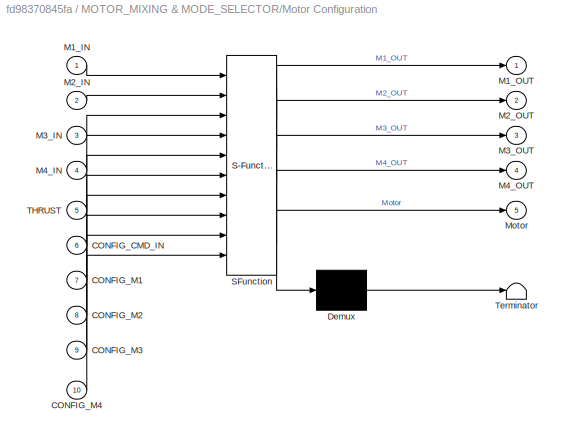
BLOCK [SubSystem] MOTOR_MIXING & MODE_SELECTOR/Motor Configuration
  ErrorFcn = Stateflow.Translate.translate
  PermitHierarchicalResolution = ExplicitOnly
  Ports = [10, 5]
  RequestExecContextInheritance = off
  SFBlockType = MATLAB Function
  TreatAsAtomicUnit = on
  Variant = off
BLOCK [Demux] MOTOR_MIXING & MODE_SELECTOR/Motor Configuration/ Demux 
  Outputs = 1
  Ports = [1, 1]
BLOCK [S-Function] MOTOR_MIXING & MODE_SELECTOR/Motor Configuration/ SFunction 
  EnableBusSupport = on
  FunctionName = sf_sfun
  PortCounts = [10 6]
  Ports = [10, 6]
  SFcnIsStateOwnerBlock = off
  SFunctionDeploymentMode = off
  Tag = Stateflow S-Function PX4_Run_Mode_R2017b 1
BLOCK [Terminator] MOTOR_MIXING & MODE_SELECTOR/Motor Configuration/ Terminator 
BLOCK [Inport] MOTOR_MIXING & MODE_SELECTOR/Motor Configuration/CONFIG_CMD_IN
  IconDisplay = Port number
  Port = 6
BLOCK [Inport] MOTOR_MIXING & MODE_SELECTOR/Motor Configuration/CONFIG_M1
  IconDisplay = Port number
  Port = 7
BLOCK [Inport] MOTOR_MIXING & MODE_SELECTOR/Motor Configuration/CONFIG_M2
  IconDisplay = Port number
  Port = 8
BLOCK [Inport] MOTOR_MIXING & MODE_SELECTOR/Motor Configuration/CONFIG_M3
  IconDisplay = Port number
  Port = 9
BLOCK [Inport] MOTOR_MIXING & MODE_SELECTOR/Motor Configuration/CONFIG_M4
  IconDisplay = Port number
  Port = 10
BLOCK [Inport] MOTOR_MIXING & MODE_SELECTOR/Motor Configuration/M1_IN
  IconDisplay = Port number
BLOCK [Outport] MOTOR_MIXING & MODE_SELECTOR/Motor Configuration/M1_OUT
  IconDisplay = Port number
BLOCK [Inport] MOTOR_MIXING & MODE_SELECTOR/Motor Configuration/M2_IN
  IconDisplay = Port number
  Port = 2
BLOCK [Outport] MOTOR_MIXING & MODE_SELECTOR/Motor Configuration/M2_OUT
  IconDisplay = Port number
  Port = 2
BLOCK [Inport] MOTOR_MIXING & MODE_SELECTOR/Motor Configuration/M3_IN
  IconDisplay = Port number
  Port = 3
BLOCK [Outport] MOTOR_MIXING & MODE_SELECTOR/Motor Configuration/M3_OUT
  IconDisplay = Port number
  Port = 3
BLOCK [Inport] MOTOR_MIXING & MODE_SELECTOR/Motor Configuration/M4_IN
  IconDisplay = Port number
  Port = 4
BLOCK [Outport] MOTOR_MIXING & MODE_SELECTOR/Motor Configuration/M4_OUT
  IconDisplay = Port number
  Port = 4
BLOCK [Outport] MOTOR_MIXING & MODE_SELECTOR/Motor Configuration/Motor
  IconDisplay = Port number
  Port = 5
BLOCK [Inport] MOTOR_MIXING & MODE_SELECTOR/Motor Configuration/THRUST
  IconDisplay = Port number
  Port = 5
BLOCK [Inport] MOTOR_MIXING & MODE_SELECTOR/RC_INPUT
  IconDisplay = Port number
  Port = 3
BLOCK [Inport] MOTOR_MIXING & MODE_SELECTOR/SYSTEM_MODE_IN
  IconDisplay = Port number
BLOCK [Reference] PWM_output  REF=pixhawk_slib_sensors_actuators/PWM_output
  Ports = [5]
  SourceBlock = pixhawk_slib_sensors_actuators/PWM_output
  SourceProductName = Pixhawk Target Blocks
  SourceType = PX4_Output_PWM
BLOCK [SubSystem] RC
  Ports = [0, 2]
  RequestExecContextInheritance = off
  Variant = off
BLOCK [SubSystem] RC/Arming
  Ports = [1, 3]
  RequestExecContextInheritance = off
  Variant = off
BLOCK [Outport] RC/Arming/ARM_CMD
  IconDisplay = Port number
BLOCK [Reference] RC/Arming/Arming Conditions  REF=simulink/Logic and Bit
Operations/Compare
To Constant
  Ports = [1, 1]
  SourceBlock = simulink/Logic and Bit\nOperations/Compare\nTo Constant
  SourceProductBaseCode = SL
  SourceProductName = Simulink
  SourceType = Compare To Constant
BLOCK [Reference] RC/Arming/Arming Conditions1  REF=simulink/Logic and Bit
Operations/Compare
To Constant
  Ports = [1, 1]
  SourceBlock = simulink/Logic and Bit\nOperations/Compare\nTo Constant
  SourceProductBaseCode = SL
  SourceProductName = Simulink
  SourceType = Compare To Constant
BLOCK [BusSelector] RC/Arming/Bus Selector
  OutputAsBus = off
  OutputSignals = Rc_Arm
  Ports = [1, 1]
BLOCK [Outport] RC/Arming/CONFIG_CMD
  IconDisplay = Port number
  Port = 3
BLOCK [Reference] RC/Arming/Config Conditions  REF=simulink/Logic and Bit
Operations/Compare
To Constant
  Ports = [1, 1]
  SourceBlock = simulink/Logic and Bit\nOperations/Compare\nTo Constant
  SourceProductBaseCode = SL
  SourceProductName = Simulink
  SourceType = Compare To Constant
BLOCK [Delay] RC/Arming/Delay
  DelayLength = MOV_AVG_WINDOW
  InitialCondition = 0
  InputPortMap = u0
  Ports = [1, 1]
  SampleTime = Ts
BLOCK [Logic] RC/Arming/Logical Operator1
  AllPortsSameDT = off
  IconShape = distinctive
  OutDataTypeStr = boolean
  Ports = [2, 1]
BLOCK [Logic] RC/Arming/Logical Operator2
  AllPortsSameDT = off
  IconShape = distinctive
  OutDataTypeStr = boolean
  Ports = [2, 1]
BLOCK [Logic] RC/Arming/Logical Operator3
  AllPortsSameDT = off
  IconShape = distinctive
  Operator = NOT
  OutDataTypeStr = boolean
  Ports = [1, 1]
BLOCK [Logic] RC/Arming/Logical Operator8
  AllPortsSameDT = off
  IconShape = distinctive
  OutDataTypeStr = boolean
  Ports = [2, 1]
BLOCK [Outport] RC/Arming/PRE_ARM_CMD
  IconDisplay = Port number
  Port = 2
BLOCK [Inport] RC/Arming/RC_INPUT
  IconDisplay = Port number
BLOCK [SubSystem] RC/Auto//Man Flight
  Ports = [1, 3]
  RequestExecContextInheritance = off
  Variant = off
BLOCK [Outport] RC/Auto//Man Flight/AUTO_FLIGHT
  IconDisplay = Port number
  Port = 3
BLOCK [BusSelector] RC/Auto//Man Flight/Bus Selector3
  OutputAsBus = off
  OutputSignals = Rc_Arm,Rc_Config_2
  Ports = [1, 2]
BLOCK [Reference] RC/Auto//Man Flight/Compare To Constant1  REF=simulink/Logic and Bit
Operations/Compare
To Constant
  Ports = [1, 1]
  SourceBlock = simulink/Logic and Bit\nOperations/Compare\nTo Constant
  SourceProductBaseCode = SL
  SourceProductName = Simulink
  SourceType = Compare To Constant
BLOCK [Reference] RC/Auto//Man Flight/Compare To Constant3  REF=simulink/Logic and Bit
Operations/Compare
To Constant
  Ports = [1, 1]
  SourceBlock = simulink/Logic and Bit\nOperations/Compare\nTo Constant
  SourceProductBaseCode = SL
  SourceProductName = Simulink
  SourceType = Compare To Constant
BLOCK [Reference] RC/Auto//Man Flight/Compare To Constant4  REF=simulink/Logic and Bit
Operations/Compare
To Constant
  Ports = [1, 1]
  SourceBlock = simulink/Logic and Bit\nOperations/Compare\nTo Constant
  SourceProductBaseCode = SL
  SourceProductName = Simulink
  SourceType = Compare To Constant
BLOCK [Reference] RC/Auto//Man Flight/Compare To Constant5  REF=simulink/Logic and Bit
Operations/Compare
To Constant
  Ports = [1, 1]
  SourceBlock = simulink/Logic and Bit\nOperations/Compare\nTo Constant
  SourceProductBaseCode = SL
  SourceProductName = Simulink
  SourceType = Compare To Constant
BLOCK [Reference] RC/Auto//Man Flight/Compare To Constant6  REF=simulink/Logic and Bit
Operations/Compare
To Constant
  Ports = [1, 1]
  SourceBlock = simulink/Logic and Bit\nOperations/Compare\nTo Constant
  SourceProductBaseCode = SL
  SourceProductName = Simulink
  SourceType = Compare To Constant
BLOCK [Reference] RC/Auto//Man Flight/Compare To Constant7  REF=simulink/Logic and Bit
Operations/Compare
To Constant
  Ports = [1, 1]
  SourceBlock = simulink/Logic and Bit\nOperations/Compare\nTo Constant
  SourceProductBaseCode = SL
  SourceProductName = Simulink
  SourceType = Compare To Constant
BLOCK [Logic] RC/Auto//Man Flight/Logical Operator1
  AllPortsSameDT = off
  IconShape = distinctive
  Inputs = 3
  OutDataTypeStr = boolean
  Ports = [3, 1]
BLOCK [Logic] RC/Auto//Man Flight/Logical Operator10
  AllPortsSameDT = off
  IconShape = distinctive
  Inputs = 4
  OutDataTypeStr = boolean
  Ports = [4, 1]
BLOCK [Logic] RC/Auto//Man Flight/Logical Operator9
  AllPortsSameDT = off
  IconShape = distinctive
  Inputs = 3
  OutDataTypeStr = boolean
  Ports = [3, 1]
BLOCK [Outport] RC/Auto//Man Flight/MANUAL_FLIGHT
  IconDisplay = Port number
BLOCK [Inport] RC/Auto//Man Flight/RC_INPUT
  IconDisplay = Port number
BLOCK [Outport] RC/Auto//Man Flight/SEMI_AUTO_FLIGHT
  IconDisplay = Port number
  Port = 2
BLOCK [BusCreator] RC/Bus Creator
  DisplayOption = bar
  InheritFromInputs = on
  Inputs = 10
  Ports = [10, 1]
BLOCK [BusCreator] RC/Bus Creator1
  DisplayOption = bar
  InheritFromInputs = on
  Inputs = 11
  Ports = [11, 1]
BLOCK [Goto] RC/Goto
  GotoTag = RC
  TagVisibility = global
BLOCK [Goto] RC/Goto1
  GotoTag = SYSTEM_MODE
  TagVisibility = global
BLOCK [SubSystem] RC/Motor Configuration
  Ports = [1, 4]
  RequestExecContextInheritance = off
  Variant = off
BLOCK [BusSelector] RC/Motor Configuration/Bus Selector2
  OutputAsBus = off
  OutputSignals = Rc_Arm,Rc_Config_1,Rc_Config_2
  Ports = [1, 3]
BLOCK [Outport] RC/Motor Configuration/CONFIG_M1
  IconDisplay = Port number
BLOCK [Outport] RC/Motor Configuration/CONFIG_M2
  IconDisplay = Port number
  Port = 2
BLOCK [Outport] RC/Motor Configuration/CONFIG_M3
  IconDisplay = Port number
  Port = 3
BLOCK [Outport] RC/Motor Configuration/CONFIG_M4
  IconDisplay = Port number
  Port = 4
BLOCK [Reference] RC/Motor Configuration/Config Conditions1  REF=simulink/Logic and Bit
Operations/Compare
To Constant
  Ports = [1, 1]
  SourceBlock = simulink/Logic and Bit\nOperations/Compare\nTo Constant
  SourceProductBaseCode = SL
  SourceProductName = Simulink
  SourceType = Compare To Constant
BLOCK [Reference] RC/Motor Configuration/Config Conditions2  REF=simulink/Logic and Bit
Operations/Compare
To Constant
  Ports = [1, 1]
  SourceBlock = simulink/Logic and Bit\nOperations/Compare\nTo Constant
  SourceProductBaseCode = SL
  SourceProductName = Simulink
  SourceType = Compare To Constant
BLOCK [Reference] RC/Motor Configuration/Config Conditions3  REF=simulink/Logic and Bit
Operations/Compare
To Constant
  Ports = [1, 1]
  SourceBlock = simulink/Logic and Bit\nOperations/Compare\nTo Constant
  SourceProductBaseCode = SL
  SourceProductName = Simulink
  SourceType = Compare To Constant
BLOCK [Reference] RC/Motor Configuration/Config Conditions4  REF=simulink/Logic and Bit
Operations/Compare
To Constant
  Ports = [1, 1]
  SourceBlock = simulink/Logic and Bit\nOperations/Compare\nTo Constant
  SourceProductBaseCode = SL
  SourceProductName = Simulink
  SourceType = Compare To Constant
BLOCK [Reference] RC/Motor Configuration/Config Conditions5  REF=simulink/Logic and Bit
Operations/Compare
To Constant
  Ports = [1, 1]
  SourceBlock = simulink/Logic and Bit\nOperations/Compare\nTo Constant
  SourceProductBaseCode = SL
  SourceProductName = Simulink
  SourceType = Compare To Constant
BLOCK [Reference] RC/Motor Configuration/Config Conditions6  REF=simulink/Logic and Bit
Operations/Compare
To Constant
  Ports = [1, 1]
  SourceBlock = simulink/Logic and Bit\nOperations/Compare\nTo Constant
  SourceProductBaseCode = SL
  SourceProductName = Simulink
  SourceType = Compare To Constant
BLOCK [Reference] RC/Motor Configuration/Config Conditions7  REF=simulink/Logic and Bit
Operations/Compare
To Constant
  Ports = [1, 1]
  SourceBlock = simulink/Logic and Bit\nOperations/Compare\nTo Constant
  SourceProductBaseCode = SL
  SourceProductName = Simulink
  SourceType = Compare To Constant
BLOCK [Logic] RC/Motor Configuration/Logical Operator1
  AllPortsSameDT = off
  IconShape = distinctive
  OutDataTypeStr = boolean
  Ports = [2, 1]
BLOCK [Logic] RC/Motor Configuration/Logical Operator2
  AllPortsSameDT = off
  IconShape = distinctive
  Inputs = 3
  OutDataTypeStr = boolean
  Ports = [3, 1]
BLOCK [Logic] RC/Motor Configuration/Logical Operator3
  AllPortsSameDT = off
  IconShape = distinctive
  Inputs = 3
  OutDataTypeStr = boolean
  Ports = [3, 1]
BLOCK [Logic] RC/Motor Configuration/Logical Operator5
  AllPortsSameDT = off
  IconShape = distinctive
  Inputs = 3
  OutDataTypeStr = boolean
  Ports = [3, 1]
BLOCK [Logic] RC/Motor Configuration/Logical Operator6
  AllPortsSameDT = off
  IconShape = distinctive
  OutDataTypeStr = boolean
  Ports = [2, 1]
BLOCK [Logic] RC/Motor Configuration/Logical Operator7
  AllPortsSameDT = off
  IconShape = distinctive
  Inputs = 3
  OutDataTypeStr = boolean
  Ports = [3, 1]
BLOCK [Inport] RC/Motor Configuration/RC_INPUT
  IconDisplay = Port number
BLOCK [Outport] RC/RC_OUT
  IconDisplay = Port number
  Port = 2
BLOCK [SubSystem] RC/Recording Data
  Ports = [1, 1]
  RequestExecContextInheritance = off
  Variant = off
BLOCK [BusSelector] RC/Recording Data/Bus Selector1
  OutputAsBus = off
  OutputSignals = Rc_Arm,Rc_Config_1
  Ports = [1, 2]
BLOCK [Reference] RC/Recording Data/Compare To Constant1  REF=simulink/Logic and Bit
Operations/Compare
To Constant
  Ports = [1, 1]
  SourceBlock = simulink/Logic and Bit\nOperations/Compare\nTo Constant
  SourceProductBaseCode = SL
  SourceProductName = Simulink
  SourceType = Compare To Constant
BLOCK [Reference] RC/Recording Data/Compare To Constant2  REF=simulink/Logic and Bit
Operations/Compare
To Constant
  Ports = [1, 1]
  SourceBlock = simulink/Logic and Bit\nOperations/Compare\nTo Constant
  SourceProductBaseCode = SL
  SourceProductName = Simulink
  SourceType = Compare To Constant
BLOCK [Logic] RC/Recording Data/Logical Operator
  AllPortsSameDT = off
  IconShape = distinctive
  OutDataTypeStr = boolean
  Ports = [2, 1]
BLOCK [Inport] RC/Recording Data/RC_INPUT
  IconDisplay = Port number
BLOCK [Outport] RC/Recording Data/RECORDING
  IconDisplay = Port number
BLOCK [Outport] RC/SYSTEM_MODE_OUT
  IconDisplay = Port number
BLOCK [Reference] RC/input_rc  REF=pixhawk_slib_sensors_actuators/input_rc
  Ports = [0, 10]
  SourceBlock = pixhawk_slib_sensors_actuators/input_rc
  SourceProductName = Pixhawk Target Blocks
  SourceType = PX4_Input_RC
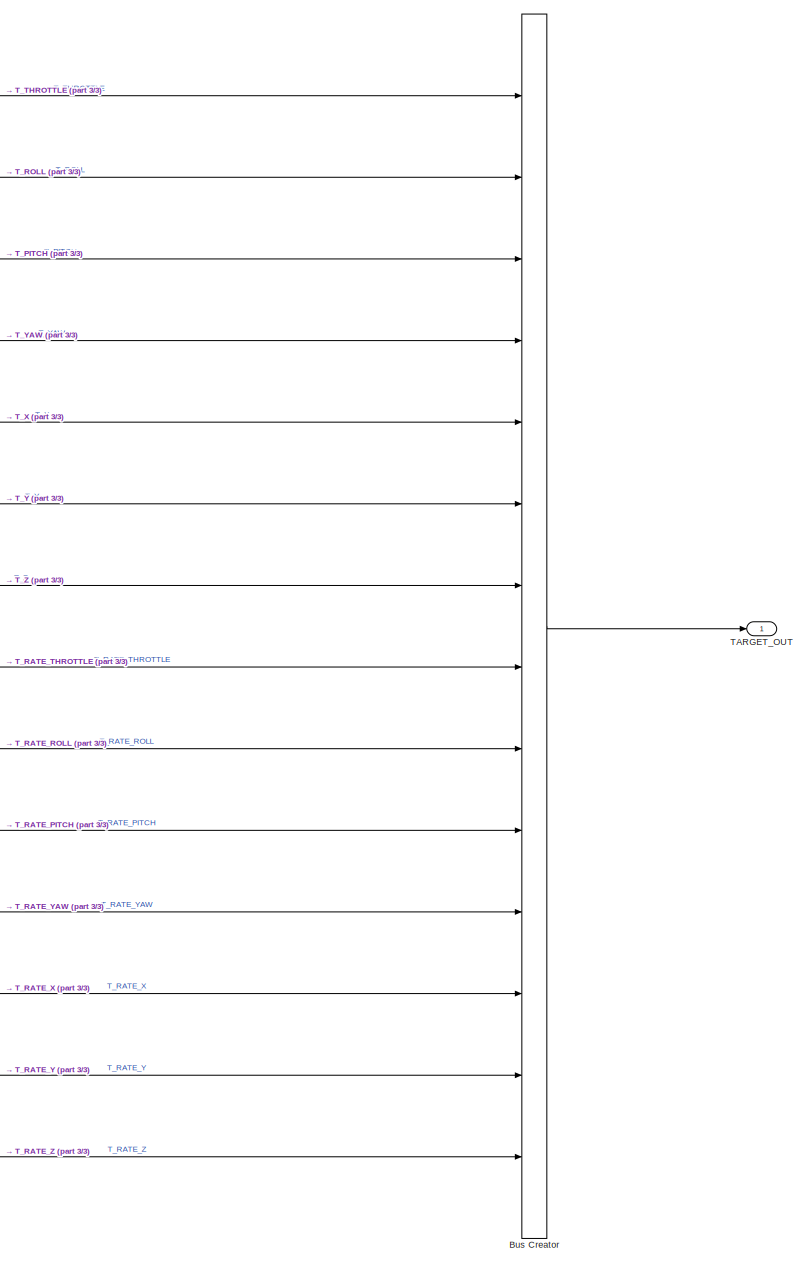
[diagram: RC_FILTER - part 1/3, right side, full height]
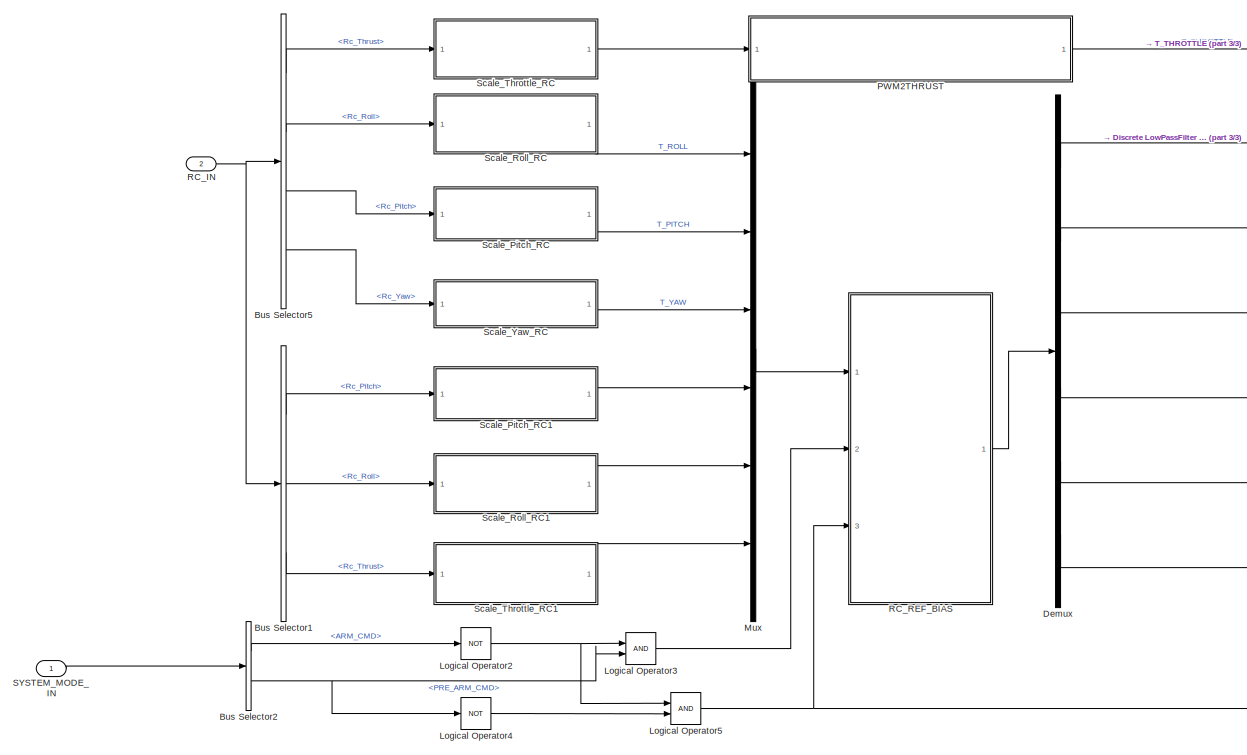
[diagram: RC_FILTER - part 2/3, top left region]
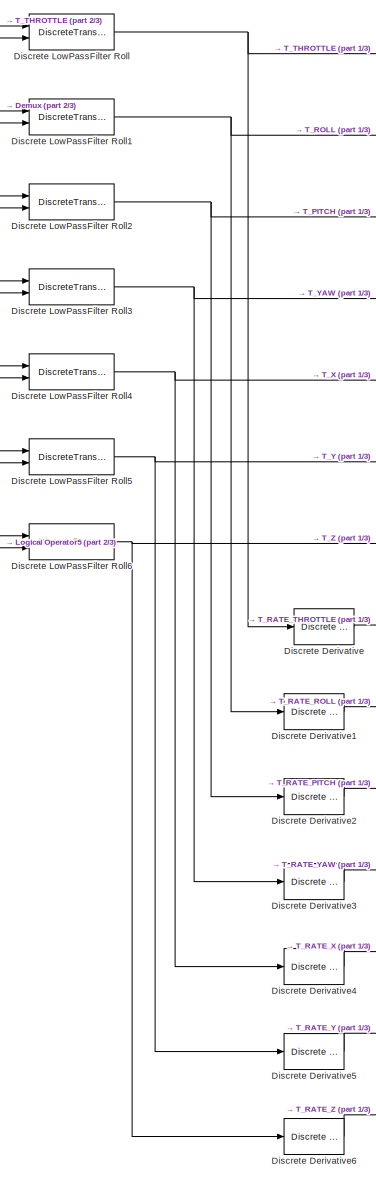
[diagram: RC_FILTER - part 3/3, center side, full height]
BLOCK [SubSystem] RC_FILTER
  Ports = [2, 1]
  RequestExecContextInheritance = off
  Variant = off
BLOCK [BusCreator] RC_FILTER/Bus Creator
  DisplayOption = bar
  InheritFromInputs = on
  Inputs = 14
  Ports = [14, 1]
BLOCK [BusSelector] RC_FILTER/Bus Selector1
  OutputAsBus = off
  OutputSignals = Rc_Pitch,Rc_Roll,Rc_Thrust
  Ports = [1, 3]
BLOCK [BusSelector] RC_FILTER/Bus Selector2
  OutputAsBus = off
  OutputSignals = ARM_CMD,PRE_ARM_CMD
  Ports = [1, 2]
BLOCK [BusSelector] RC_FILTER/Bus Selector5
  OutputAsBus = off
  OutputSignals = Rc_Thrust,Rc_Roll,Rc_Pitch,Rc_Yaw
  Ports = [1, 4]
BLOCK [Demux] RC_FILTER/Demux
  DisplayOption = bar
  Outputs = 6
  Ports = [1, 6]
BLOCK [Reference] RC_FILTER/Discrete Derivative  REF=simulink/Discrete/Discrete Derivative
  Ports = [1, 1]
  SourceBlock = simulink/Discrete/Discrete Derivative
  SourceProductBaseCode = SL
  SourceProductName = Simulink
  SourceType = Discrete Derivative
BLOCK [Reference] RC_FILTER/Discrete Derivative1  REF=simulink/Discrete/Discrete Derivative
  Ports = [1, 1]
  SourceBlock = simulink/Discrete/Discrete Derivative
  SourceProductBaseCode = SL
  SourceProductName = Simulink
  SourceType = Discrete Derivative
BLOCK [Reference] RC_FILTER/Discrete Derivative2  REF=simulink/Discrete/Discrete Derivative
  Ports = [1, 1]
  SourceBlock = simulink/Discrete/Discrete Derivative
  SourceProductBaseCode = SL
  SourceProductName = Simulink
  SourceType = Discrete Derivative
BLOCK [Reference] RC_FILTER/Discrete Derivative3  REF=simulink/Discrete/Discrete Derivative
  Ports = [1, 1]
  SourceBlock = simulink/Discrete/Discrete Derivative
  SourceProductBaseCode = SL
  SourceProductName = Simulink
  SourceType = Discrete Derivative
BLOCK [Reference] RC_FILTER/Discrete Derivative4  REF=simulink/Discrete/Discrete Derivative
  Ports = [1, 1]
  SourceBlock = simulink/Discrete/Discrete Derivative
  SourceProductBaseCode = SL
  SourceProductName = Simulink
  SourceType = Discrete Derivative
BLOCK [Reference] RC_FILTER/Discrete Derivative5  REF=simulink/Discrete/Discrete Derivative
  Ports = [1, 1]
  SourceBlock = simulink/Discrete/Discrete Derivative
  SourceProductBaseCode = SL
  SourceProductName = Simulink
  SourceType = Discrete Derivative
BLOCK [Reference] RC_FILTER/Discrete Derivative6  REF=simulink/Discrete/Discrete Derivative
  Ports = [1, 1]
  SourceBlock = simulink/Discrete/Discrete Derivative
  SourceProductBaseCode = SL
  SourceProductName = Simulink
  SourceType = Discrete Derivative
BLOCK [DiscreteTransferFcn] RC_FILTER/Discrete LowPassFilter Roll
  Denominator = LPF_REF_DEN
  ExternalReset = Level
  InputPortMap = u0,r7
  Numerator = LPF_REF_NUM
  Ports = [2, 1]
  SampleTime = Ts
BLOCK [DiscreteTransferFcn] RC_FILTER/Discrete LowPassFilter Roll1
  Denominator = LPF_REF_DEN
  ExternalReset = Level
  InputPortMap = u0,r7
  Numerator = LPF_REF_NUM
  Ports = [2, 1]
  SampleTime = Ts
BLOCK [DiscreteTransferFcn] RC_FILTER/Discrete LowPassFilter Roll2
  Denominator = LPF_REF_DEN
  ExternalReset = Level
  InputPortMap = u0,r7
  Numerator = LPF_REF_NUM
  Ports = [2, 1]
  SampleTime = Ts
BLOCK [DiscreteTransferFcn] RC_FILTER/Discrete LowPassFilter Roll3
  Denominator = LPF_REF_DEN
  ExternalReset = Level
  InputPortMap = u0,r7
  Numerator = LPF_REF_NUM
  Ports = [2, 1]
  SampleTime = Ts
BLOCK [DiscreteTransferFcn] RC_FILTER/Discrete LowPassFilter Roll4
  Denominator = LPF_REF_DEN
  ExternalReset = Level
  InputPortMap = u0,r7
  Numerator = LPF_REF_NUM
  Ports = [2, 1]
  SampleTime = Ts
BLOCK [DiscreteTransferFcn] RC_FILTER/Discrete LowPassFilter Roll5
  Denominator = LPF_REF_DEN
  ExternalReset = Level
  InputPortMap = u0,r7
  Numerator = LPF_REF_NUM
  Ports = [2, 1]
  SampleTime = Ts
BLOCK [DiscreteTransferFcn] RC_FILTER/Discrete LowPassFilter Roll6
  Denominator = LPF_REF_DEN
  ExternalReset = Level
  InputPortMap = u0,r7
  Numerator = LPF_REF_NUM
  Ports = [2, 1]
  SampleTime = Ts
BLOCK [Logic] RC_FILTER/Logical Operator2
  AllPortsSameDT = off
  IconShape = distinctive
  Operator = NOT
  OutDataTypeStr = boolean
  Ports = [1, 1]
BLOCK [Logic] RC_FILTER/Logical Operator3
  AllPortsSameDT = off
  IconShape = distinctive
  OutDataTypeStr = boolean
  Ports = [2, 1]
BLOCK [Logic] RC_FILTER/Logical Operator4
  AllPortsSameDT = off
  IconShape = distinctive
  Operator = NOT
  OutDataTypeStr = boolean
  Ports = [1, 1]
BLOCK [Logic] RC_FILTER/Logical Operator5
  AllPortsSameDT = off
  IconShape = distinctive
  OutDataTypeStr = boolean
  Ports = [2, 1]
BLOCK [Mux] RC_FILTER/Mux
  DisplayOption = bar
  Inputs = 6
  Ports = [6, 1]
BLOCK [SubSystem] RC_FILTER/PWM2THRUST
  ErrorFcn = Stateflow.Translate.translate
  PermitHierarchicalResolution = ExplicitOnly
  Ports = [1, 1]
  RequestExecContextInheritance = off
  SFBlockType = MATLAB Function
  TreatAsAtomicUnit = on
  Variant = off
BLOCK [Demux] RC_FILTER/PWM2THRUST/ Demux 
  Outputs = 1
  Ports = [1, 1]
BLOCK [S-Function] RC_FILTER/PWM2THRUST/ SFunction 
  EnableBusSupport = on
  FunctionName = sf_sfun
  Parameters = PWM_a,PWM_b,PWM_c,PWM_d
  PortCounts = [1 2]
  Ports = [1, 2]
  SFcnIsStateOwnerBlock = off
  SFunctionDeploymentMode = off
  Tag = Stateflow S-Function PX4_Run_Mode_R2017b 5
BLOCK [Terminator] RC_FILTER/PWM2THRUST/ Terminator 
BLOCK [Inport] RC_FILTER/PWM2THRUST/THROTTLE_CONTROL_INPUT
  IconDisplay = Port number
BLOCK [Outport] RC_FILTER/PWM2THRUST/THROTTLE_CONTROL_OUTPUT
  IconDisplay = Port number
BLOCK [Inport] RC_FILTER/RC_IN
  IconDisplay = Port number
  Port = 2
BLOCK [SubSystem] RC_FILTER/RC_REF_BIAS
  ErrorFcn = Stateflow.Translate.translate
  PermitHierarchicalResolution = ExplicitOnly
  Ports = [3, 1]
  RequestExecContextInheritance = off
  SFBlockType = MATLAB Function
  TreatAsAtomicUnit = on
  Variant = off
BLOCK [Demux] RC_FILTER/RC_REF_BIAS/ Demux 
  Outputs = 1
  Ports = [1, 1]
BLOCK [S-Function] RC_FILTER/RC_REF_BIAS/ SFunction 
  EnableBusSupport = on
  FunctionName = sf_sfun
  Parameters = MOV_AVG_WINDOW
  PortCounts = [3 2]
  Ports = [3, 2]
  SFcnIsStateOwnerBlock = off
  SFunctionDeploymentMode = off
  Tag = Stateflow S-Function PX4_Run_Mode_R2017b 7
BLOCK [Terminator] RC_FILTER/RC_REF_BIAS/ Terminator 
BLOCK [Inport] RC_FILTER/RC_REF_BIAS/CONFIG_CMD
  IconDisplay = Port number
  Port = 2
BLOCK [Inport] RC_FILTER/RC_REF_BIAS/RC_IN
  IconDisplay = Port number
BLOCK [Outport] RC_FILTER/RC_REF_BIAS/RC_OUT
  IconDisplay = Port number
BLOCK [Inport] RC_FILTER/RC_REF_BIAS/RESET
  IconDisplay = Port number
  Port = 3
BLOCK [Inport] RC_FILTER/SYSTEM_MODE_IN
  IconDisplay = Port number
BLOCK [SubSystem] RC_FILTER/Scale_Pitch_RC
  ErrorFcn = Stateflow.Translate.translate
  PermitHierarchicalResolution = ExplicitOnly
  Ports = [1, 1]
  RequestExecContextInheritance = off
  SFBlockType = MATLAB Function
  TreatAsAtomicUnit = on
  Variant = off
BLOCK [Demux] RC_FILTER/Scale_Pitch_RC/ Demux 
  Outputs = 1
  Ports = [1, 1]
BLOCK [S-Function] RC_FILTER/Scale_Pitch_RC/ SFunction 
  EnableBusSupport = on
  FunctionName = sf_sfun
  Parameters = PITCH_MAX,RC3_DB,RC3_MAX,RC3_MIN,RC3_TRIM
  PortCounts = [1 2]
  Ports = [1, 2]
  SFcnIsStateOwnerBlock = off
  SFunctionDeploymentMode = off
  Tag = Stateflow S-Function PX4_Run_Mode_R2017b 12
BLOCK [Terminator] RC_FILTER/Scale_Pitch_RC/ Terminator 
BLOCK [Inport] RC_FILTER/Scale_Pitch_RC/RC_Pitch
  IconDisplay = Port number
BLOCK [Outport] RC_FILTER/Scale_Pitch_RC/T_PITCH
  IconDisplay = Port number
BLOCK [SubSystem] RC_FILTER/Scale_Pitch_RC1
  ErrorFcn = Stateflow.Translate.translate
  PermitHierarchicalResolution = ExplicitOnly
  Ports = [1, 1]
  RequestExecContextInheritance = off
  SFBlockType = MATLAB Function
  TreatAsAtomicUnit = on
  Variant = off
BLOCK [Demux] RC_FILTER/Scale_Pitch_RC1/ Demux 
  Outputs = 1
  Ports = [1, 1]
BLOCK [S-Function] RC_FILTER/Scale_Pitch_RC1/ SFunction 
  EnableBusSupport = on
  FunctionName = sf_sfun
  Parameters = RC3_DB,RC3_MAX,RC3_MIN,RC3_TRIM,X_MAX
  PortCounts = [1 2]
  Ports = [1, 2]
  SFcnIsStateOwnerBlock = off
  SFunctionDeploymentMode = off
  Tag = Stateflow S-Function PX4_Run_Mode_R2017b 17
BLOCK [Terminator] RC_FILTER/Scale_Pitch_RC1/ Terminator 
BLOCK [Inport] RC_FILTER/Scale_Pitch_RC1/RC_Pitch
  IconDisplay = Port number
BLOCK [Outport] RC_FILTER/Scale_Pitch_RC1/T_X
  IconDisplay = Port number
BLOCK [SubSystem] RC_FILTER/Scale_Roll_RC
  ErrorFcn = Stateflow.Translate.translate
  PermitHierarchicalResolution = ExplicitOnly
  Ports = [1, 1]
  RequestExecContextInheritance = off
  SFBlockType = MATLAB Function
  TreatAsAtomicUnit = on
  Variant = off
BLOCK [Demux] RC_FILTER/Scale_Roll_RC/ Demux 
  Outputs = 1
  Ports = [1, 1]
BLOCK [S-Function] RC_FILTER/Scale_Roll_RC/ SFunction 
  EnableBusSupport = on
  FunctionName = sf_sfun
  Parameters = RC1_DB,RC1_MAX,RC1_MIN,RC1_TRIM,ROLL_MAX
  PortCounts = [1 2]
  Ports = [1, 2]
  SFcnIsStateOwnerBlock = off
  SFunctionDeploymentMode = off
  Tag = Stateflow S-Function PX4_Run_Mode_R2017b 14
BLOCK [Terminator] RC_FILTER/Scale_Roll_RC/ Terminator 
BLOCK [Inport] RC_FILTER/Scale_Roll_RC/RC_Roll
  IconDisplay = Port number
BLOCK [Outport] RC_FILTER/Scale_Roll_RC/T_ROLL
  IconDisplay = Port number
BLOCK [SubSystem] RC_FILTER/Scale_Roll_RC1
  ErrorFcn = Stateflow.Translate.translate
  PermitHierarchicalResolution = ExplicitOnly
  Ports = [1, 1]
  RequestExecContextInheritance = off
  SFBlockType = MATLAB Function
  TreatAsAtomicUnit = on
  Variant = off
BLOCK [Demux] RC_FILTER/Scale_Roll_RC1/ Demux 
  Outputs = 1
  Ports = [1, 1]
BLOCK [S-Function] RC_FILTER/Scale_Roll_RC1/ SFunction 
  EnableBusSupport = on
  FunctionName = sf_sfun
  Parameters = RC1_DB,RC1_MAX,RC1_MIN,RC1_TRIM,Y_MAX
  PortCounts = [1 2]
  Ports = [1, 2]
  SFcnIsStateOwnerBlock = off
  SFunctionDeploymentMode = off
  Tag = Stateflow S-Function PX4_Run_Mode_R2017b 23
BLOCK [Terminator] RC_FILTER/Scale_Roll_RC1/ Terminator 
BLOCK [Inport] RC_FILTER/Scale_Roll_RC1/RC_Roll
  IconDisplay = Port number
BLOCK [Outport] RC_FILTER/Scale_Roll_RC1/T_Y
  IconDisplay = Port number
BLOCK [SubSystem] RC_FILTER/Scale_Throttle_RC
  ErrorFcn = Stateflow.Translate.translate
  PermitHierarchicalResolution = ExplicitOnly
  Ports = [1, 1]
  RequestExecContextInheritance = off
  SFBlockType = MATLAB Function
  TreatAsAtomicUnit = on
  Variant = off
BLOCK [Demux] RC_FILTER/Scale_Throttle_RC/ Demux 
  Outputs = 1
  Ports = [1, 1]
BLOCK [S-Function] RC_FILTER/Scale_Throttle_RC/ SFunction 
  EnableBusSupport = on
  FunctionName = sf_sfun
  Parameters = RC4_MAX,RC4_MIN
  PortCounts = [1 2]
  Ports = [1, 2]
  SFcnIsStateOwnerBlock = off
  SFunctionDeploymentMode = off
  Tag = Stateflow S-Function PX4_Run_Mode_R2017b 16
BLOCK [Terminator] RC_FILTER/Scale_Throttle_RC/ Terminator 
BLOCK [Inport] RC_FILTER/Scale_Throttle_RC/RC_Throttle
  IconDisplay = Port number
BLOCK [Outport] RC_FILTER/Scale_Throttle_RC/T_THROTTLE
  IconDisplay = Port number
BLOCK [SubSystem] RC_FILTER/Scale_Throttle_RC1
  ErrorFcn = Stateflow.Translate.translate
  PermitHierarchicalResolution = ExplicitOnly
  Ports = [1, 1]
  RequestExecContextInheritance = off
  SFBlockType = MATLAB Function
  TreatAsAtomicUnit = on
  Variant = off
BLOCK [Demux] RC_FILTER/Scale_Throttle_RC1/ Demux 
  Outputs = 1
  Ports = [1, 1]
BLOCK [S-Function] RC_FILTER/Scale_Throttle_RC1/ SFunction 
  EnableBusSupport = on
  FunctionName = sf_sfun
  Parameters = RC4_DB,RC4_MAX,RC4_MIN,RC4_TRIM,Z_MAX
  PortCounts = [1 2]
  Ports = [1, 2]
  SFcnIsStateOwnerBlock = off
  SFunctionDeploymentMode = off
  Tag = Stateflow S-Function PX4_Run_Mode_R2017b 15
BLOCK [Terminator] RC_FILTER/Scale_Throttle_RC1/ Terminator 
BLOCK [Inport] RC_FILTER/Scale_Throttle_RC1/RC_Thrust
  IconDisplay = Port number
BLOCK [Outport] RC_FILTER/Scale_Throttle_RC1/T_Z
  IconDisplay = Port number
BLOCK [SubSystem] RC_FILTER/Scale_Yaw_RC
  ErrorFcn = Stateflow.Translate.translate
  PermitHierarchicalResolution = ExplicitOnly
  Ports = [1, 1]
  RequestExecContextInheritance = off
  SFBlockType = MATLAB Function
  TreatAsAtomicUnit = on
  Variant = off
BLOCK [Demux] RC_FILTER/Scale_Yaw_RC/ Demux 
  Outputs = 1
  Ports = [1, 1]
BLOCK [S-Function] RC_FILTER/Scale_Yaw_RC/ SFunction 
  EnableBusSupport = on
  FunctionName = sf_sfun
  Parameters = RC2_DB,RC2_MAX,RC2_MIN,RC2_TRIM,YAW_MAX
  PortCounts = [1 2]
  Ports = [1, 2]
  SFcnIsStateOwnerBlock = off
  SFunctionDeploymentMode = off
  Tag = Stateflow S-Function PX4_Run_Mode_R2017b 10
BLOCK [Terminator] RC_FILTER/Scale_Yaw_RC/ Terminator 
BLOCK [Inport] RC_FILTER/Scale_Yaw_RC/RC_Yaw
  IconDisplay = Port number
BLOCK [Outport] RC_FILTER/Scale_Yaw_RC/T_YAW
  IconDisplay = Port number
BLOCK [Outport] RC_FILTER/TARGET_OUT
  IconDisplay = Port number
BLOCK [SubSystem] RGB_Led_Mode
  Ports = [1]
  RequestExecContextInheritance = off
  Variant = off
BLOCK [BusSelector] RGB_Led_Mode/Bus Selector
  OutputAsBus = off
  OutputSignals = CONFIG_CMD,ARM_CMD,PRE_ARM_CMD
  Ports = [1, 3]
BLOCK [BusSelector] RGB_Led_Mode/Bus Selector1
  OutputAsBus = off
  OutputSignals = AUTO_FLIGHT,MAN_FLIGHT,ARM_CMD
  Ports = [1, 3]
BLOCK [BusSelector] RGB_Led_Mode/Bus Selector2
  OutputAsBus = off
  OutputSignals = RECORDING
  Ports = [1, 1]
BLOCK [Constant] RGB_Led_Mode/Constant1
  SampleTime = Ts
  Value = RGBLED_MODE_ENUM.SL_MODE_BLINK_SLOW
BLOCK [Constant] RGB_Led_Mode/Constant10
  SampleTime = Ts
  Value = RGBLED_COLOR_ENUM.SL_COLOR_GREEN
BLOCK [Constant] RGB_Led_Mode/Constant11
  SampleTime = Ts
  Value = RGBLED_COLOR_ENUM.SL_COLOR_BLUE
BLOCK [Constant] RGB_Led_Mode/Constant12
  SampleTime = Ts
  Value = RGBLED_COLOR_ENUM.SL_COLOR_BLUE
BLOCK [Constant] RGB_Led_Mode/Constant2
  SampleTime = Ts
  Value = RGBLED_COLOR_ENUM.SL_COLOR_RED
BLOCK [Constant] RGB_Led_Mode/Constant3
  SampleTime = Ts
  Value = RGBLED_COLOR_ENUM.SL_COLOR_PURPLE
BLOCK [Constant] RGB_Led_Mode/Constant4
  SampleTime = Ts
  Value = RGBLED_COLOR_ENUM.SL_COLOR_BLUE
BLOCK [Constant] RGB_Led_Mode/Constant5
  SampleTime = Ts
  Value = RGBLED_COLOR_ENUM.SL_COLOR_BLUE
BLOCK [Constant] RGB_Led_Mode/Constant6
  SampleTime = Ts
  Value = RGBLED_COLOR_ENUM.SL_COLOR_YELLOW
BLOCK [Constant] RGB_Led_Mode/Constant7
  SampleTime = Ts
  Value = RGBLED_MODE_ENUM.SL_MODE_BLINK_NORMAL
BLOCK [Constant] RGB_Led_Mode/Constant8
  SampleTime = Ts
  Value = RGBLED_MODE_ENUM.SL_MODE_BREATHE
BLOCK [Constant] RGB_Led_Mode/Constant9
  SampleTime = Ts
  Value = RGBLED_MODE_ENUM.SL_MODE_BLINK_FAST
BLOCK [Logic] RGB_Led_Mode/Logical Operator1
  AllPortsSameDT = off
  IconShape = distinctive
  Operator = NOT
  OutDataTypeStr = boolean
  Ports = [1, 1]
BLOCK [Logic] RGB_Led_Mode/Logical Operator3
  AllPortsSameDT = off
  IconShape = distinctive
  OutDataTypeStr = boolean
  Ports = [2, 1]
BLOCK [DiscretePulseGenerator] RGB_Led_Mode/Pulse Generator
  Period = 400
  Ports = [0, 1]
  PulseWidth = 200
  SampleTime = Ts
BLOCK [DiscretePulseGenerator] RGB_Led_Mode/Pulse Generator1
  Period = 400
  Ports = [0, 1]
  PulseWidth = 200
  SampleTime = Ts
BLOCK [Reference] RGB_Led_Mode/RGB_LED  REF=pixhawk_slib_sensors_actuators/RGB_LED
  Ports = [2]
  SourceBlock = pixhawk_slib_sensors_actuators/RGB_LED
  SourceProductName = Pixhawk Target Blocks
  SourceType = PX4_RGBLED - controls the mode and color of the Pixhawk RGB LED
BLOCK [Inport] RGB_Led_Mode/SYSTEM_MODE_IN
  IconDisplay = Port number
BLOCK [Switch] RGB_Led_Mode/Switch
  Criteria = u2 > Threshold
  InputSameDT = off
  SaturateOnIntegerOverflow = off
BLOCK [Switch] RGB_Led_Mode/Switch1
  Criteria = u2 > Threshold
  InputSameDT = off
  SaturateOnIntegerOverflow = off
BLOCK [Switch] RGB_Led_Mode/Switch2
  Criteria = u2 > Threshold
  InputSameDT = off
  SaturateOnIntegerOverflow = off
BLOCK [Switch] RGB_Led_Mode/Switch3
  Criteria = u2 > Threshold
  InputSameDT = off
  SaturateOnIntegerOverflow = off
BLOCK [Switch] RGB_Led_Mode/Switch4
  Criteria = u2 > Threshold
  InputSameDT = off
  SaturateOnIntegerOverflow = off
BLOCK [Switch] RGB_Led_Mode/Switch5
  Criteria = u2 > Threshold
  InputSameDT = off
  SaturateOnIntegerOverflow = off
BLOCK [Switch] RGB_Led_Mode/Switch6
  Criteria = u2 > Threshold
  InputSameDT = off
  SaturateOnIntegerOverflow = off
BLOCK [Switch] RGB_Led_Mode/Switch7
  Criteria = u2 > Threshold
  InputSameDT = off
  SaturateOnIntegerOverflow = off
BLOCK [Switch] RGB_Led_Mode/Switch8
  Criteria = u2 > Threshold
  InputSameDT = off
  SaturateOnIntegerOverflow = off
BLOCK [Switch] RGB_Led_Mode/Switch9
  Criteria = u2 > Threshold
  InputSameDT = off
  SaturateOnIntegerOverflow = off
BLOCK [SubSystem] SENSORS
  Ports = [0, 1]
  RequestExecContextInheritance = off
  Variant = off
BLOCK [SubSystem] SENSORS/Battery
  Ports = [2, 2]
  RequestExecContextInheritance = off
  Variant = off
BLOCK [BusAssignment] SENSORS/Battery/Bus Assignment
  AssignedSignals = S_Voltage,S_Current,S_mAH
  Ports = [4, 1]
BLOCK [BusAssignment] SENSORS/Battery/Bus Assignment1
  AssignedSignals = Battery_TS
  Ports = [2, 1]
BLOCK [DataTypeConversion] SENSORS/Battery/Data Type Conversion2
  OutDataTypeStr = single
  RndMeth = Floor
  SaturateOnIntegerOverflow = off
BLOCK [Inport] SENSORS/Battery/RAW_SENSOR_DATA_IN
  IconDisplay = Port number
BLOCK [Outport] SENSORS/Battery/RAW_SENSOR_DATA_OUT
  IconDisplay = Port number
BLOCK [Inport] SENSORS/Battery/TIME_IN
  IconDisplay = Port number
  Port = 2
BLOCK [Outport] SENSORS/Battery/TIME_OUT
  IconDisplay = Port number
  Port = 2
BLOCK [Reference] SENSORS/Battery/battery_measure  REF=pixhawk_slib_sensors_actuators/battery_measure
  Ports = [0, 4]
  SourceBlock = pixhawk_slib_sensors_actuators/battery_measure
  SourceProductName = Pixhawk Target Blocks
  SourceType = PX4_Battery
BLOCK [SubSystem] SENSORS/Create Busses
  Ports = [0, 2]
  RequestExecContextInheritance = off
  Variant = off
BLOCK [BusCreator] SENSORS/Create Busses/Bus Creator1
  DisplayOption = bar
  InheritFromInputs = on
  Inputs = 5
  Ports = [5, 1]
BLOCK [BusCreator] SENSORS/Create Busses/Bus Creator2
  DisplayOption = bar
  InheritFromInputs = on
  Inputs = 18
  Ports = [18, 1]
BLOCK [Constant] SENSORS/Create Busses/Constant
  OutDataTypeStr = single
  SampleTime = Ts
  Value = [0; 0; 0; 0; 0; 0; 0; 0; 0; 0; 0; 0; 0; 0; 0; 0; 0; 0]
BLOCK [Constant] SENSORS/Create Busses/Constant1
  OutDataTypeStr = single
  SampleTime = Ts
  Value = [0; 0; 0; 0; 0]
BLOCK [Demux] SENSORS/Create Busses/Demux
  DisplayOption = bar
  Outputs = 18
  Ports = [1, 18]
BLOCK [Demux] SENSORS/Create Busses/Demux1
  DisplayOption = bar
  Outputs = 5
  Ports = [1, 5]
BLOCK [Outport] SENSORS/Create Busses/RAW_SENSOR_DATA_OUT
  IconDisplay = Port number
BLOCK [Outport] SENSORS/Create Busses/TIME_OUT
  IconDisplay = Port number
  Port = 2
BLOCK [SubSystem] SENSORS/GPS
  Ports = [2, 2]
  RequestExecContextInheritance = off
  Variant = off
BLOCK [BusAssignment] SENSORS/GPS/Bus Assignment
  AssignedSignals = S_Latitude,S_Longitude,S_Altitude,S_N_Sat
  Ports = [5, 1]
BLOCK [BusAssignment] SENSORS/GPS/Bus Assignment1
  AssignedSignals = Position_TS,GPS_TS
  Ports = [3, 1]
BLOCK [DataTypeConversion] SENSORS/GPS/Data Type Conversion
  OutDataTypeStr = single
  RndMeth = Floor
  SaturateOnIntegerOverflow = off
BLOCK [DataTypeConversion] SENSORS/GPS/Data Type Conversion1
  OutDataTypeStr = single
  RndMeth = Floor
  SaturateOnIntegerOverflow = off
BLOCK [DataTypeConversion] SENSORS/GPS/Data Type Conversion2
  OutDataTypeStr = single
  RndMeth = Floor
  SaturateOnIntegerOverflow = off
BLOCK [DataTypeConversion] SENSORS/GPS/Data Type Conversion3
  OutDataTypeStr = single
  RndMeth = Floor
  SaturateOnIntegerOverflow = off
BLOCK [DataTypeConversion] SENSORS/GPS/Data Type Conversion4
  OutDataTypeStr = single
  RndMeth = Floor
  SaturateOnIntegerOverflow = off
BLOCK [DataTypeConversion] SENSORS/GPS/Data Type Conversion5
  OutDataTypeStr = single
  RndMeth = Floor
  SaturateOnIntegerOverflow = off
BLOCK [Inport] SENSORS/GPS/RAW_SENSOR_DATA_IN
  IconDisplay = Port number
BLOCK [Outport] SENSORS/GPS/RAW_SENSOR_DATA_OUT
  IconDisplay = Port number
BLOCK [Inport] SENSORS/GPS/TIME_IN
  IconDisplay = Port number
  Port = 2
BLOCK [Outport] SENSORS/GPS/TIME_OUT
  IconDisplay = Port number
  Port = 2
BLOCK [Reference] SENSORS/GPS/vehicle_gps  REF=pixhawk_slib_sensors_actuators/vehicle_gps
  Ports = [0, 5]
  SourceBlock = pixhawk_slib_sensors_actuators/vehicle_gps
  SourceProductName = Pixhawk Target Blocks
  SourceType = PX4_Vehicle_GPS
BLOCK [Goto] SENSORS/Goto
  GotoTag = RAW_SENSOR_DATA
  TagVisibility = global
BLOCK [Goto] SENSORS/Goto1
  GotoTag = CLOCKS
  TagVisibility = global
BLOCK [Outport] SENSORS/RAW_SENSOR_DATA_OUT
  IconDisplay = Port number
BLOCK [SubSystem] SENSORS/Sensor_Combined
  Ports = [2, 2]
  RequestExecContextInheritance = off
  Variant = off
BLOCK [BusAssignment] SENSORS/Sensor_Combined/Bus Assignment
  AssignedSignals = S_MagX,S_MagY,S_MagZ,S_AccX,S_AccY,S_AccZ,S_GyroX,S_GyroY,S_GyroZ,S_Baro
  Ports = [11, 1]
BLOCK [BusAssignment] SENSORS/Sensor_Combined/Bus Assignment1
  AssignedSignals = Sensors_TS
  Ports = [2, 1]
BLOCK [DataTypeConversion] SENSORS/Sensor_Combined/Data Type Conversion2
  OutDataTypeStr = single
  RndMeth = Floor
  SaturateOnIntegerOverflow = off
BLOCK [Gain] SENSORS/Sensor_Combined/Gain
  Gain = -1
  OutDataTypeStr = Inherit: Inherit via internal rule
  ParamDataTypeStr = Inherit: Inherit via internal rule
  SaturateOnIntegerOverflow = off
BLOCK [Gain] SENSORS/Sensor_Combined/Gain1
  Gain = -1
  OutDataTypeStr = Inherit: Inherit via internal rule
  ParamDataTypeStr = Inherit: Inherit via internal rule
  SaturateOnIntegerOverflow = off
BLOCK [Gain] SENSORS/Sensor_Combined/Gain2
  Gain = -1
  OutDataTypeStr = Inherit: Inherit via internal rule
  ParamDataTypeStr = Inherit: Inherit via internal rule
  SaturateOnIntegerOverflow = off
BLOCK [Inport] SENSORS/Sensor_Combined/RAW_SENSOR_DATA_IN
  IconDisplay = Port number
BLOCK [Outport] SENSORS/Sensor_Combined/RAW_SENSOR_DATA_OUT
  IconDisplay = Port number
BLOCK [Inport] SENSORS/Sensor_Combined/TIME_IN
  IconDisplay = Port number
  Port = 2
BLOCK [Outport] SENSORS/Sensor_Combined/TIME_OUT
  IconDisplay = Port number
  Port = 2
BLOCK [Reference] SENSORS/Sensor_Combined/sensor_combined  REF=pixhawk_slib_sensors_actuators/sensor_combined
  Ports = [0, 14]
  SourceBlock = pixhawk_slib_sensors_actuators/sensor_combined
  SourceProductName = Pixhawk Target Blocks
  SourceType = PX4_Sensor_Combined
BLOCK [SubSystem] SENSORS/Sonar
  Ports = [2, 2]
  RequestExecContextInheritance = off
  Variant = off
BLOCK [BusAssignment] SENSORS/Sonar/Bus Assignment
  AssignedSignals = S_Sonar
  Ports = [2, 1]
BLOCK [BusAssignment] SENSORS/Sonar/Bus Assignment1
  AssignedSignals = Counter
  Ports = [2, 1]
BLOCK [DataTypeConversion] SENSORS/Sonar/Data Type Conversion17
  OutDataTypeStr = single
  RndMeth = Floor
  SaturateOnIntegerOverflow = off
BLOCK [DataTypeConversion] SENSORS/Sonar/Data Type Conversion2
  OutDataTypeStr = single
  RndMeth = Floor
  SaturateOnIntegerOverflow = off
BLOCK [DigitalClock] SENSORS/Sonar/Digital Clock
  SampleTime = Ts
BLOCK [Inport] SENSORS/Sonar/RAW_SENSOR_DATA_IN
  IconDisplay = Port number
BLOCK [Outport] SENSORS/Sonar/RAW_SENSOR_DATA_OUT
  IconDisplay = Port number
BLOCK [Reference] SENSORS/Sonar/Read ADC Channels  REF=pixhawk_slib_ADC_serial/Read ADC Channels
  Ports = [0, 1]
  SourceBlock = pixhawk_slib_ADC_serial/Read ADC Channels
  SourceProductName = Pixhawk Target Blocks
  SourceType = codertarget.pixhawk.blocks.ADC_block
BLOCK [Inport] SENSORS/Sonar/TIME_IN
  IconDisplay = Port number
  Port = 2
BLOCK [Outport] SENSORS/Sonar/TIME_OUT
  IconDisplay = Port number
  Port = 2
BLOCK [SubSystem] SENSOR_FILTER
  Ports = [2, 1]
  RequestExecContextInheritance = off
  Variant = off
BLOCK [SubSystem] SENSOR_FILTER/Bias Removal State
  Ports = [3, 2]
  RequestExecContextInheritance = off
  Variant = off
BLOCK [BusAssignment] SENSOR_FILTER/Bias Removal State/Bus Assignment1
  AssignedSignals = State Bias Parameters.X_BIAS,State Bias Parameters.Y_BIAS,State Bias Parameters.Z_BIAS,State Bias Parameters.PHI_BIAS,State Bias Parameters.THETA_BIAS,State Bias Parameters.PSI_BIAS,State Bias Parameters.U_BIAS,State Bias Parameters.V_BIAS,State Bias Parameters.W_BIAS,State Bias Parameters.WX_BIAS,State Bias Parameters.WY_BIAS,State Bias Parameters.WZ_BIAS,State Bias Parameters.AX_BIAS,State Bias ...<+141ch>
  Ports = [19, 1]
BLOCK [BusAssignment] SENSOR_FILTER/Bias Removal State/Bus Assignment2
  AssignedSignals = x,y,z,phi,theta,psi,u,v,w,wx,wy,wz,ax,ay,az,wxd,wyd,wzd
  Ports = [19, 1]
BLOCK [BusSelector] SENSOR_FILTER/Bias Removal State/Bus Selector1
  OutputAsBus = off
  OutputSignals = ARM_CMD,PRE_ARM_CMD
  Ports = [1, 2]
BLOCK [BusSelector] SENSOR_FILTER/Bias Removal State/Bus Selector4
  OutputAsBus = on
  OutputSignals = x,y,z,phi,theta,psi,u,v,w,wx,wy,wz,ax,ay,az,wxd,wyd,wzd
  Ports = [1, 1]
BLOCK [BusToVector] SENSOR_FILTER/Bias Removal State/Bus to Vector
BLOCK [Demux] SENSOR_FILTER/Bias Removal State/Demux1
  DisplayOption = bar
  Outputs = 18
  Ports = [1, 18]
BLOCK [Demux] SENSOR_FILTER/Bias Removal State/Demux2
  DisplayOption = bar
  Outputs = 18
  Ports = [1, 18]
BLOCK [Inport] SENSOR_FILTER/Bias Removal State/ESTIMATED_STATE_IN
  IconDisplay = Port number
BLOCK [Outport] SENSOR_FILTER/Bias Removal State/ESTIMATED_STATE_OUT
  IconDisplay = Port number
BLOCK [Logic] SENSOR_FILTER/Bias Removal State/Logical Operator1
  AllPortsSameDT = off
  IconShape = distinctive
  OutDataTypeStr = boolean
  Ports = [2, 1]
BLOCK [Logic] SENSOR_FILTER/Bias Removal State/Logical Operator2
  AllPortsSameDT = off
  IconShape = distinctive
  Operator = NOT
  OutDataTypeStr = boolean
  Ports = [1, 1]
BLOCK [Logic] SENSOR_FILTER/Bias Removal State/Logical Operator4
  AllPortsSameDT = off
  IconShape = distinctive
  Operator = NOT
  OutDataTypeStr = boolean
  Ports = [1, 1]
BLOCK [Logic] SENSOR_FILTER/Bias Removal State/Logical Operator5
  AllPortsSameDT = off
  IconShape = distinctive
  OutDataTypeStr = boolean
  Ports = [2, 1]
BLOCK [SubSystem] SENSOR_FILTER/Bias Removal State/MATLAB Function3
  ErrorFcn = Stateflow.Translate.translate
  PermitHierarchicalResolution = ExplicitOnly
  Ports = [3, 2]
  RequestExecContextInheritance = off
  SFBlockType = MATLAB Function
  TreatAsAtomicUnit = on
  Variant = off
BLOCK [Demux] SENSOR_FILTER/Bias Removal State/MATLAB Function3/ Demux 
  Outputs = 1
  Ports = [1, 1]
BLOCK [S-Function] SENSOR_FILTER/Bias Removal State/MATLAB Function3/ SFunction 
  EnableBusSupport = on
  FunctionName = sf_sfun
  Parameters = MOV_AVG_WINDOW
  PortCounts = [3 3]
  Ports = [3, 3]
  SFcnIsStateOwnerBlock = off
  SFunctionDeploymentMode = off
  Tag = Stateflow S-Function PX4_Run_Mode_R2017b 3
BLOCK [Terminator] SENSOR_FILTER/Bias Removal State/MATLAB Function3/ Terminator 
BLOCK [Outport] SENSOR_FILTER/Bias Removal State/MATLAB Function3/BIAS_STATE
  IconDisplay = Port number
  Port = 2
BLOCK [Inport] SENSOR_FILTER/Bias Removal State/MATLAB Function3/CONFIG_CMD
  IconDisplay = Port number
  Port = 3
BLOCK [Inport] SENSOR_FILTER/Bias Removal State/MATLAB Function3/RESET
  IconDisplay = Port number
  Port = 2
BLOCK [Inport] SENSOR_FILTER/Bias Removal State/MATLAB Function3/STATE_IN
  IconDisplay = Port number
BLOCK [Outport] SENSOR_FILTER/Bias Removal State/MATLAB Function3/STATE_OUT
  IconDisplay = Port number
BLOCK [Inport] SENSOR_FILTER/Bias Removal State/PARAMETERS_IN
  IconDisplay = Port number
  Port = 2
BLOCK [Outport] SENSOR_FILTER/Bias Removal State/PARAMETERS_OUT
  IconDisplay = Port number
  Port = 2
BLOCK [Inport] SENSOR_FILTER/Bias Removal State/SYSTEM_MODE_IN
  IconDisplay = Port number
  Port = 3
BLOCK [BusAssignment] SENSOR_FILTER/Bus Assignment
  AssignedSignals = Control Gains Parameters.C1,Control Gains Parameters.C2,Control Gains Parameters.C3,Control Gains Parameters.C4,Control Gains Parameters.C5,Control Gains Parameters.C6,Control Gains Parameters.C7,Control Gains Parameters.C8,Control Gains Parameters.C9,Control Gains Parameters.C10,Control Gains Parameters.C11,Control Gains Parameters.C12,Control Gains Parameters.C13,Control Gains Parameters.C14,Con...<+286ch>
  Ports = [25, 1]
BLOCK [Constant] SENSOR_FILTER/Control Gains
  OutDataTypeStr = single
  SampleTime = Ts
  Value = [C1 C2 C3 C4 C5 C6 C7 C8 C9 C10 C11 C12 C13 C14 C15 C16 C17 C18 C19 C20 C21 C22 C23 C24]
BLOCK [Demux] SENSOR_FILTER/Demux
  DisplayOption = bar
  Outputs = 24
  Ports = [1, 24]
BLOCK [Outport] SENSOR_FILTER/ESTIMATED_STATE_OUT
  IconDisplay = Port number
BLOCK [SubSystem] SENSOR_FILTER/Fixed Bias removal and scaling
  Ports = [3, 2]
  RequestExecContextInheritance = off
  Variant = off
BLOCK [SubSystem] SENSOR_FILTER/Fixed Bias removal and scaling/Accelerometer Calibration
  Ports = [2, 2]
  RequestExecContextInheritance = off
  Variant = off
BLOCK [BusAssignment] SENSOR_FILTER/Fixed Bias removal and scaling/Accelerometer Calibration/Bus Assignment
  AssignedSignals = AccX,AccY,AccZ
  Ports = [4, 1]
BLOCK [BusSelector] SENSOR_FILTER/Fixed Bias removal and scaling/Accelerometer Calibration/Bus Selector1
  OutputAsBus = on
  OutputSignals = S_AccX,S_AccY,S_AccZ
  Ports = [1, 1]
BLOCK [BusToVector] SENSOR_FILTER/Fixed Bias removal and scaling/Accelerometer Calibration/Bus to Vector
BLOCK [Constant] SENSOR_FILTER/Fixed Bias removal and scaling/Accelerometer Calibration/Constant1
  SampleTime = Ts
  Value = CAL_ACC0_ZYSCALE
BLOCK [Constant] SENSOR_FILTER/Fixed Bias removal and scaling/Accelerometer Calibration/Constant10
  SampleTime = Ts
  Value = CAL_ACC0_ZZSCALE
BLOCK [Constant] SENSOR_FILTER/Fixed Bias removal and scaling/Accelerometer Calibration/Constant11
  SampleTime = Ts
  Value = CAL_ACC0_ZOFFSET
BLOCK [Constant] SENSOR_FILTER/Fixed Bias removal and scaling/Accelerometer Calibration/Constant12
  SampleTime = Ts
  Value = CAL_ACC0_XZSCALE
BLOCK [Constant] SENSOR_FILTER/Fixed Bias removal and scaling/Accelerometer Calibration/Constant2
  SampleTime = Ts
  Value = CAL_ACC0_ZXSCALE
BLOCK [Constant] SENSOR_FILTER/Fixed Bias removal and scaling/Accelerometer Calibration/Constant3
  SampleTime = Ts
  Value = CAL_ACC0_YYSCALE
BLOCK [Constant] SENSOR_FILTER/Fixed Bias removal and scaling/Accelerometer Calibration/Constant4
  SampleTime = Ts
  Value = CAL_ACC0_YZSCALE
BLOCK [Constant] SENSOR_FILTER/Fixed Bias removal and scaling/Accelerometer Calibration/Constant5
  SampleTime = Ts
  Value = CAL_ACC0_XXSCALE
BLOCK [Constant] SENSOR_FILTER/Fixed Bias removal and scaling/Accelerometer Calibration/Constant6
  SampleTime = Ts
  Value = CAL_ACC0_XYSCALE
BLOCK [Constant] SENSOR_FILTER/Fixed Bias removal and scaling/Accelerometer Calibration/Constant7
  SampleTime = Ts
  Value = CAL_ACC0_XOFFSET
BLOCK [Constant] SENSOR_FILTER/Fixed Bias removal and scaling/Accelerometer Calibration/Constant8
  SampleTime = Ts
  Value = CAL_ACC0_YXSCALE
BLOCK [Constant] SENSOR_FILTER/Fixed Bias removal and scaling/Accelerometer Calibration/Constant9
  SampleTime = Ts
  Value = CAL_ACC0_YOFFSET
BLOCK [Demux] SENSOR_FILTER/Fixed Bias removal and scaling/Accelerometer Calibration/Demux
  DisplayOption = bar
  Outputs = 3
  Ports = [1, 3]
BLOCK [Inport] SENSOR_FILTER/Fixed Bias removal and scaling/Accelerometer Calibration/FILTERED_SENSOR_DATA_IN
  IconDisplay = Port number
BLOCK [Outport] SENSOR_FILTER/Fixed Bias removal and scaling/Accelerometer Calibration/FILTERED_SENSOR_DATA_OUT
  IconDisplay = Port number
  Port = 2
BLOCK [SubSystem] SENSOR_FILTER/Fixed Bias removal and scaling/Accelerometer Calibration/MATLAB Function
  ErrorFcn = Stateflow.Translate.translate
  PermitHierarchicalResolution = ExplicitOnly
  Ports = [1, 1]
  RequestExecContextInheritance = off
  SFBlockType = MATLAB Function
  TreatAsAtomicUnit = on
  Variant = off
BLOCK [Demux] SENSOR_FILTER/Fixed Bias removal and scaling/Accelerometer Calibration/MATLAB Function/ Demux 
  Outputs = 1
  Ports = [1, 1]
BLOCK [S-Function] SENSOR_FILTER/Fixed Bias removal and scaling/Accelerometer Calibration/MATLAB Function/ SFunction 
  EnableBusSupport = on
  FunctionName = sf_sfun
  Parameters = CAL_ACC0_XOFFSET,CAL_ACC0_XXSCALE,CAL_ACC0_XYSCALE,CAL_ACC0_XZSCALE,CAL_ACC0_YOFFSET,CAL_ACC0_YXSCALE,CAL_ACC0_YYSCALE,CAL_ACC0_YZSCALE,CAL_ACC0_ZOFFSET,CAL_ACC0_ZXSCALE,CAL_ACC0_ZYSCALE,CAL_ACC0_ZZSCALE
  PortCounts = [1 2]
  Ports = [1, 2]
  SFcnIsStateOwnerBlock = off
  SFunctionDeploymentMode = off
  Tag = Stateflow S-Function PX4_Run_Mode_R2017b 18
BLOCK [Terminator] SENSOR_FILTER/Fixed Bias removal and scaling/Accelerometer Calibration/MATLAB Function/ Terminator 
BLOCK [Inport] SENSOR_FILTER/Fixed Bias removal and scaling/Accelerometer Calibration/MATLAB Function/a
  IconDisplay = Port number
BLOCK [Outport] SENSOR_FILTER/Fixed Bias removal and scaling/Accelerometer Calibration/MATLAB Function/acor
  IconDisplay = Port number
BLOCK [Mux] SENSOR_FILTER/Fixed Bias removal and scaling/Accelerometer Calibration/Mux
  DisplayOption = bar
  Inputs = 12
  Ports = [12, 1]
BLOCK [Outport] SENSOR_FILTER/Fixed Bias removal and scaling/Accelerometer Calibration/Parameters
  IconDisplay = Port number
BLOCK [Inport] SENSOR_FILTER/Fixed Bias removal and scaling/Accelerometer Calibration/RAW_SENSOR_DATA_IN
  IconDisplay = Port number
  Port = 2
BLOCK [SubSystem] SENSOR_FILTER/Fixed Bias removal and scaling/Barometer Calibration
  Ports = [2, 2]
  RequestExecContextInheritance = off
  Variant = off
BLOCK [BusAssignment] SENSOR_FILTER/Fixed Bias removal and scaling/Barometer Calibration/Bus Assignment
  AssignedSignals = Bar
  Ports = [2, 1]
BLOCK [BusSelector] SENSOR_FILTER/Fixed Bias removal and scaling/Barometer Calibration/Bus Selector2
  OutputAsBus = on
  OutputSignals = S_Baro
  Ports = [1, 1]
BLOCK [BusToVector] SENSOR_FILTER/Fixed Bias removal and scaling/Barometer Calibration/Bus to Vector
BLOCK [Constant] SENSOR_FILTER/Fixed Bias removal and scaling/Barometer Calibration/Constant5
  SampleTime = Ts
  Value = CAL_BAR_SCALE
BLOCK [Constant] SENSOR_FILTER/Fixed Bias removal and scaling/Barometer Calibration/Constant6
  SampleTime = Ts
  Value = CAL_BAR_OFFSET
BLOCK [Inport] SENSOR_FILTER/Fixed Bias removal and scaling/Barometer Calibration/FILTERED_SENSOR_DATA_IN
  IconDisplay = Port number
BLOCK [Outport] SENSOR_FILTER/Fixed Bias removal and scaling/Barometer Calibration/FILTERED_SENSOR_DATA_OUT
  IconDisplay = Port number
  Port = 2
BLOCK [SubSystem] SENSOR_FILTER/Fixed Bias removal and scaling/Barometer Calibration/MATLAB Function
  ErrorFcn = Stateflow.Translate.translate
  PermitHierarchicalResolution = ExplicitOnly
  Ports = [1, 1]
  RequestExecContextInheritance = off
  SFBlockType = MATLAB Function
  TreatAsAtomicUnit = on
  Variant = off
BLOCK [Demux] SENSOR_FILTER/Fixed Bias removal and scaling/Barometer Calibration/MATLAB Function/ Demux 
  Outputs = 1
  Ports = [1, 1]
BLOCK [S-Function] SENSOR_FILTER/Fixed Bias removal and scaling/Barometer Calibration/MATLAB Function/ SFunction 
  EnableBusSupport = on
  FunctionName = sf_sfun
  Parameters = CAL_BAR_OFFSET,CAL_BAR_SCALE
  PortCounts = [1 2]
  Ports = [1, 2]
  SFcnIsStateOwnerBlock = off
  SFunctionDeploymentMode = off
  Tag = Stateflow S-Function PX4_Run_Mode_R2017b 2
BLOCK [Terminator] SENSOR_FILTER/Fixed Bias removal and scaling/Barometer Calibration/MATLAB Function/ Terminator 
BLOCK [Inport] SENSOR_FILTER/Fixed Bias removal and scaling/Barometer Calibration/MATLAB Function/BAR_In
  IconDisplay = Port number
BLOCK [Outport] SENSOR_FILTER/Fixed Bias removal and scaling/Barometer Calibration/MATLAB Function/BAR_Out
  IconDisplay = Port number
BLOCK [Mux] SENSOR_FILTER/Fixed Bias removal and scaling/Barometer Calibration/Mux
  DisplayOption = bar
  Inputs = 2
  Ports = [2, 1]
BLOCK [Outport] SENSOR_FILTER/Fixed Bias removal and scaling/Barometer Calibration/Parameters
  IconDisplay = Port number
BLOCK [Inport] SENSOR_FILTER/Fixed Bias removal and scaling/Barometer Calibration/RAW_SENSOR_DATA_IN
  IconDisplay = Port number
  Port = 2
BLOCK [SubSystem] SENSOR_FILTER/Fixed Bias removal and scaling/Battery Calibration
  Ports = [2, 2]
  RequestExecContextInheritance = off
  Variant = off
BLOCK [BusAssignment] SENSOR_FILTER/Fixed Bias removal and scaling/Battery Calibration/Bus Assignment
  AssignedSignals = Voltage,Current,mAH
  Ports = [4, 1]
BLOCK [BusSelector] SENSOR_FILTER/Fixed Bias removal and scaling/Battery Calibration/Bus Selector2
  OutputAsBus = on
  OutputSignals = S_Voltage,S_Current,S_mAH
  Ports = [1, 1]
BLOCK [BusToVector] SENSOR_FILTER/Fixed Bias removal and scaling/Battery Calibration/Bus to Vector
BLOCK [Constant] SENSOR_FILTER/Fixed Bias removal and scaling/Battery Calibration/Constant1
  SampleTime = Ts
  Value = CAL_BAT0_ZYSCALE
BLOCK [Constant] SENSOR_FILTER/Fixed Bias removal and scaling/Battery Calibration/Constant10
  SampleTime = Ts
  Value = CAL_BAT0_ZZSCALE
BLOCK [Constant] SENSOR_FILTER/Fixed Bias removal and scaling/Battery Calibration/Constant11
  SampleTime = Ts
  Value = CAL_BAT0_ZOFFSET
BLOCK [Constant] SENSOR_FILTER/Fixed Bias removal and scaling/Battery Calibration/Constant12
  SampleTime = Ts
  Value = CAL_BAT0_XZSCALE
BLOCK [Constant] SENSOR_FILTER/Fixed Bias removal and scaling/Battery Calibration/Constant2
  SampleTime = Ts
  Value = CAL_BAT0_ZXSCALE
BLOCK [Constant] SENSOR_FILTER/Fixed Bias removal and scaling/Battery Calibration/Constant3
  SampleTime = Ts
  Value = CAL_BAT0_YYSCALE
BLOCK [Constant] SENSOR_FILTER/Fixed Bias removal and scaling/Battery Calibration/Constant4
  SampleTime = Ts
  Value = CAL_BAT0_YZSCALE
BLOCK [Constant] SENSOR_FILTER/Fixed Bias removal and scaling/Battery Calibration/Constant5
  SampleTime = Ts
  Value = CAL_BAT0_XXSCALE
BLOCK [Constant] SENSOR_FILTER/Fixed Bias removal and scaling/Battery Calibration/Constant6
  SampleTime = Ts
  Value = CAL_BAT0_XYSCALE
BLOCK [Constant] SENSOR_FILTER/Fixed Bias removal and scaling/Battery Calibration/Constant7
  SampleTime = Ts
  Value = CAL_BAT0_XOFFSET
BLOCK [Constant] SENSOR_FILTER/Fixed Bias removal and scaling/Battery Calibration/Constant8
  SampleTime = Ts
  Value = CAL_BAT0_YXSCALE
BLOCK [Constant] SENSOR_FILTER/Fixed Bias removal and scaling/Battery Calibration/Constant9
  SampleTime = Ts
  Value = CAL_BAT0_YOFFSET
BLOCK [Demux] SENSOR_FILTER/Fixed Bias removal and scaling/Battery Calibration/Demux
  DisplayOption = bar
  Outputs = 3
  Ports = [1, 3]
BLOCK [Inport] SENSOR_FILTER/Fixed Bias removal and scaling/Battery Calibration/FILTERED_SENSOR_DATA_IN
  IconDisplay = Port number
BLOCK [Outport] SENSOR_FILTER/Fixed Bias removal and scaling/Battery Calibration/FILTERED_SENSOR_DATA_OUT
  IconDisplay = Port number
  Port = 2
BLOCK [SubSystem] SENSOR_FILTER/Fixed Bias removal and scaling/Battery Calibration/MATLAB Function
  ErrorFcn = Stateflow.Translate.translate
  PermitHierarchicalResolution = ExplicitOnly
  Ports = [1, 1]
  RequestExecContextInheritance = off
  SFBlockType = MATLAB Function
  TreatAsAtomicUnit = on
  Variant = off
BLOCK [Demux] SENSOR_FILTER/Fixed Bias removal and scaling/Battery Calibration/MATLAB Function/ Demux 
  Outputs = 1
  Ports = [1, 1]
BLOCK [S-Function] SENSOR_FILTER/Fixed Bias removal and scaling/Battery Calibration/MATLAB Function/ SFunction 
  EnableBusSupport = on
  FunctionName = sf_sfun
  Parameters = CAL_BAT0_XOFFSET,CAL_BAT0_XXSCALE,CAL_BAT0_XYSCALE,CAL_BAT0_XZSCALE,CAL_BAT0_YOFFSET,CAL_BAT0_YXSCALE,CAL_BAT0_YYSCALE,CAL_BAT0_YZSCALE,CAL_BAT0_ZOFFSET,CAL_BAT0_ZXSCALE,CAL_BAT0_ZYSCALE,CAL_BAT0_ZZSCALE
  PortCounts = [1 2]
  Ports = [1, 2]
  SFcnIsStateOwnerBlock = off
  SFunctionDeploymentMode = off
  Tag = Stateflow S-Function PX4_Run_Mode_R2017b 22
BLOCK [Terminator] SENSOR_FILTER/Fixed Bias removal and scaling/Battery Calibration/MATLAB Function/ Terminator 
BLOCK [Inport] SENSOR_FILTER/Fixed Bias removal and scaling/Battery Calibration/MATLAB Function/Bat
  IconDisplay = Port number
BLOCK [Outport] SENSOR_FILTER/Fixed Bias removal and scaling/Battery Calibration/MATLAB Function/Batcor
  IconDisplay = Port number
BLOCK [Mux] SENSOR_FILTER/Fixed Bias removal and scaling/Battery Calibration/Mux
  DisplayOption = bar
  Inputs = 12
  Ports = [12, 1]
BLOCK [Outport] SENSOR_FILTER/Fixed Bias removal and scaling/Battery Calibration/Parameters
  IconDisplay = Port number
BLOCK [Inport] SENSOR_FILTER/Fixed Bias removal and scaling/Battery Calibration/RAW_SENSOR_DATA_IN
  IconDisplay = Port number
  Port = 2
BLOCK [Inport] SENSOR_FILTER/Fixed Bias removal and scaling/FILTERED_SENSOR_DATA_IN
  IconDisplay = Port number
BLOCK [Outport] SENSOR_FILTER/Fixed Bias removal and scaling/FILTERED_SENSOR_DATA_OUT
  IconDisplay = Port number
BLOCK [SubSystem] SENSOR_FILTER/Fixed Bias removal and scaling/GPS Calibration
  Ports = [3, 2]
  RequestExecContextInheritance = off
  Variant = off
BLOCK [BusAssignment] SENSOR_FILTER/Fixed Bias removal and scaling/GPS Calibration/Bus Assignment
  AssignedSignals = Latitude,Longitude,Altitude
  Ports = [4, 1]
BLOCK [BusSelector] SENSOR_FILTER/Fixed Bias removal and scaling/GPS Calibration/Bus Selector1
  OutputAsBus = off
  OutputSignals = ARM_CMD,PRE_ARM_CMD
  Ports = [1, 2]
BLOCK [BusSelector] SENSOR_FILTER/Fixed Bias removal and scaling/GPS Calibration/Bus Selector2
  OutputAsBus = on
  OutputSignals = S_Latitude,S_Longitude,S_Altitude
  Ports = [1, 1]
BLOCK [BusToVector] SENSOR_FILTER/Fixed Bias removal and scaling/GPS Calibration/Bus to Vector
BLOCK [Constant] SENSOR_FILTER/Fixed Bias removal and scaling/GPS Calibration/Constant1
  SampleTime = Ts
  Value = CAL_GPS0_ZYSCALE
BLOCK [Constant] SENSOR_FILTER/Fixed Bias removal and scaling/GPS Calibration/Constant10
  SampleTime = Ts
  Value = CAL_GPS0_ZZSCALE
BLOCK [Constant] SENSOR_FILTER/Fixed Bias removal and scaling/GPS Calibration/Constant11
  Commented = on
  SampleTime = Ts
  Value = CAL_GPS0_ZOFFSET
BLOCK [Constant] SENSOR_FILTER/Fixed Bias removal and scaling/GPS Calibration/Constant12
  SampleTime = Ts
  Value = CAL_GPS0_XZSCALE
BLOCK [Constant] SENSOR_FILTER/Fixed Bias removal and scaling/GPS Calibration/Constant2
  SampleTime = Ts
  Value = CAL_GPS0_ZXSCALE
BLOCK [Constant] SENSOR_FILTER/Fixed Bias removal and scaling/GPS Calibration/Constant3
  SampleTime = Ts
  Value = CAL_GPS0_YYSCALE
BLOCK [Constant] SENSOR_FILTER/Fixed Bias removal and scaling/GPS Calibration/Constant4
  SampleTime = Ts
  Value = CAL_GPS0_YZSCALE
BLOCK [Constant] SENSOR_FILTER/Fixed Bias removal and scaling/GPS Calibration/Constant5
  SampleTime = Ts
  Value = CAL_GPS0_XXSCALE
BLOCK [Constant] SENSOR_FILTER/Fixed Bias removal and scaling/GPS Calibration/Constant6
  SampleTime = Ts
  Value = CAL_GPS0_XYSCALE
BLOCK [Constant] SENSOR_FILTER/Fixed Bias removal and scaling/GPS Calibration/Constant7
  Commented = on
  SampleTime = Ts
  Value = CAL_GPS0_XOFFSET
BLOCK [Constant] SENSOR_FILTER/Fixed Bias removal and scaling/GPS Calibration/Constant8
  SampleTime = Ts
  Value = CAL_GPS0_YXSCALE
BLOCK [Constant] SENSOR_FILTER/Fixed Bias removal and scaling/GPS Calibration/Constant9
  Commented = on
  SampleTime = Ts
  Value = CAL_GPS0_YOFFSET
BLOCK [Demux] SENSOR_FILTER/Fixed Bias removal and scaling/GPS Calibration/Demux
  DisplayOption = bar
  Outputs = 3
  Ports = [1, 3]
BLOCK [Demux] SENSOR_FILTER/Fixed Bias removal and scaling/GPS Calibration/Demux1
  DisplayOption = bar
  Outputs = 3
  Ports = [1, 3]
BLOCK [Inport] SENSOR_FILTER/Fixed Bias removal and scaling/GPS Calibration/FILTERED_SENSOR_DATA_IN
  IconDisplay = Port number
BLOCK [Outport] SENSOR_FILTER/Fixed Bias removal and scaling/GPS Calibration/FILTERED_SENSOR_DATA_OUT
  IconDisplay = Port number
  Port = 2
BLOCK [SubSystem] SENSOR_FILTER/Fixed Bias removal and scaling/GPS Calibration/GYRO_BIAS
  ErrorFcn = Stateflow.Translate.translate
  PermitHierarchicalResolution = ExplicitOnly
  Ports = [3, 1]
  RequestExecContextInheritance = off
  SFBlockType = MATLAB Function
  TreatAsAtomicUnit = on
  Variant = off
BLOCK [Demux] SENSOR_FILTER/Fixed Bias removal and scaling/GPS Calibration/GYRO_BIAS/ Demux 
  Outputs = 1
  Ports = [1, 1]
BLOCK [S-Function] SENSOR_FILTER/Fixed Bias removal and scaling/GPS Calibration/GYRO_BIAS/ SFunction 
  EnableBusSupport = on
  FunctionName = sf_sfun
  Parameters = MOV_AVG_WINDOW
  PortCounts = [3 2]
  Ports = [3, 2]
  SFcnIsStateOwnerBlock = off
  SFunctionDeploymentMode = off
  Tag = Stateflow S-Function PX4_Run_Mode_R2017b 26
BLOCK [Terminator] SENSOR_FILTER/Fixed Bias removal and scaling/GPS Calibration/GYRO_BIAS/ Terminator 
BLOCK [Outport] SENSOR_FILTER/Fixed Bias removal and scaling/GPS Calibration/GYRO_BIAS/BGPS
  IconDisplay = Port number
BLOCK [Inport] SENSOR_FILTER/Fixed Bias removal and scaling/GPS Calibration/GYRO_BIAS/CONFIG_CMD
  IconDisplay = Port number
  Port = 3
BLOCK [Inport] SENSOR_FILTER/Fixed Bias removal and scaling/GPS Calibration/GYRO_BIAS/GPS_IN
  IconDisplay = Port number
BLOCK [Inport] SENSOR_FILTER/Fixed Bias removal and scaling/GPS Calibration/GYRO_BIAS/RESET
  IconDisplay = Port number
  Port = 2
BLOCK [Logic] SENSOR_FILTER/Fixed Bias removal and scaling/GPS Calibration/Logical Operator
  AllPortsSameDT = off
  IconShape = distinctive
  Operator = NOT
  OutDataTypeStr = boolean
  Ports = [1, 1]
BLOCK [Logic] SENSOR_FILTER/Fixed Bias removal and scaling/GPS Calibration/Logical Operator1
  AllPortsSameDT = off
  IconShape = distinctive
  OutDataTypeStr = boolean
  Ports = [2, 1]
BLOCK [Logic] SENSOR_FILTER/Fixed Bias removal and scaling/GPS Calibration/Logical Operator2
  AllPortsSameDT = off
  IconShape = distinctive
  Operator = NOT
  OutDataTypeStr = boolean
  Ports = [1, 1]
BLOCK [Logic] SENSOR_FILTER/Fixed Bias removal and scaling/GPS Calibration/Logical Operator3
  AllPortsSameDT = off
  IconShape = distinctive
  OutDataTypeStr = boolean
  Ports = [2, 1]
BLOCK [SubSystem] SENSOR_FILTER/Fixed Bias removal and scaling/GPS Calibration/MATLAB Function
  ErrorFcn = Stateflow.Translate.translate
  PermitHierarchicalResolution = ExplicitOnly
  Ports = [2, 1]
  RequestExecContextInheritance = off
  SFBlockType = MATLAB Function
  TreatAsAtomicUnit = on
  Variant = off
BLOCK [Demux] SENSOR_FILTER/Fixed Bias removal and scaling/GPS Calibration/MATLAB Function/ Demux 
  Outputs = 1
  Ports = [1, 1]
BLOCK [S-Function] SENSOR_FILTER/Fixed Bias removal and scaling/GPS Calibration/MATLAB Function/ SFunction 
  EnableBusSupport = on
  FunctionName = sf_sfun
  Parameters = CAL_GPS0_XOFFSET,CAL_GPS0_XXSCALE,CAL_GPS0_XYSCALE,CAL_GPS0_XZSCALE,CAL_GPS0_YOFFSET,CAL_GPS0_YXSCALE,CAL_GPS0_YYSCALE,CAL_GPS0_YZSCALE,CAL_GPS0_ZOFFSET,CAL_GPS0_ZXSCALE,CAL_GPS0_ZYSCALE,CAL_GPS0_ZZSCALE
  PortCounts = [2 2]
  Ports = [2, 2]
  SFcnIsStateOwnerBlock = off
  SFunctionDeploymentMode = off
  Tag = Stateflow S-Function PX4_Run_Mode_R2017b 21
BLOCK [Terminator] SENSOR_FILTER/Fixed Bias removal and scaling/GPS Calibration/MATLAB Function/ Terminator 
BLOCK [Inport] SENSOR_FILTER/Fixed Bias removal and scaling/GPS Calibration/MATLAB Function/V_IN
  IconDisplay = Port number
  Port = 2
BLOCK [Inport] SENSOR_FILTER/Fixed Bias removal and scaling/GPS Calibration/MATLAB Function/p
  IconDisplay = Port number
BLOCK [Outport] SENSOR_FILTER/Fixed Bias removal and scaling/GPS Calibration/MATLAB Function/pcor
  IconDisplay = Port number
BLOCK [Mux] SENSOR_FILTER/Fixed Bias removal and scaling/GPS Calibration/Mux
  DisplayOption = bar
  Inputs = 12
  Ports = [12, 1]
BLOCK [Outport] SENSOR_FILTER/Fixed Bias removal and scaling/GPS Calibration/Parameters
  IconDisplay = Port number
BLOCK [Inport] SENSOR_FILTER/Fixed Bias removal and scaling/GPS Calibration/RAW_SENSOR_DATA_IN
  IconDisplay = Port number
  Port = 2
BLOCK [Inport] SENSOR_FILTER/Fixed Bias removal and scaling/GPS Calibration/SYSTEM_MODE_IN
  IconDisplay = Port number
  Port = 3
BLOCK [SubSystem] SENSOR_FILTER/Fixed Bias removal and scaling/Gyroscope Calibration
  Ports = [3, 2]
  RequestExecContextInheritance = off
  Variant = off
BLOCK [BusAssignment] SENSOR_FILTER/Fixed Bias removal and scaling/Gyroscope Calibration/Bus Assignment
  AssignedSignals = GyroX,GyroY,GyroZ
  Ports = [4, 1]
BLOCK [BusSelector] SENSOR_FILTER/Fixed Bias removal and scaling/Gyroscope Calibration/Bus Selector1
  OutputAsBus = off
  OutputSignals = ARM_CMD,PRE_ARM_CMD
  Ports = [1, 2]
BLOCK [BusSelector] SENSOR_FILTER/Fixed Bias removal and scaling/Gyroscope Calibration/Bus Selector2
  OutputAsBus = on
  OutputSignals = S_GyroX,S_GyroY,S_GyroZ
  Ports = [1, 1]
BLOCK [BusToVector] SENSOR_FILTER/Fixed Bias removal and scaling/Gyroscope Calibration/Bus to Vector
BLOCK [Constant] SENSOR_FILTER/Fixed Bias removal and scaling/Gyroscope Calibration/Constant1
  SampleTime = Ts
  Value = CAL_GYRO0_ZYSCALE
BLOCK [Constant] SENSOR_FILTER/Fixed Bias removal and scaling/Gyroscope Calibration/Constant10
  SampleTime = Ts
  Value = CAL_GYRO0_ZZSCALE
BLOCK [Constant] SENSOR_FILTER/Fixed Bias removal and scaling/Gyroscope Calibration/Constant12
  SampleTime = Ts
  Value = CAL_GYRO0_XZSCALE
BLOCK [Constant] SENSOR_FILTER/Fixed Bias removal and scaling/Gyroscope Calibration/Constant2
  SampleTime = Ts
  Value = CAL_GYRO0_ZXSCALE
BLOCK [Constant] SENSOR_FILTER/Fixed Bias removal and scaling/Gyroscope Calibration/Constant3
  SampleTime = Ts
  Value = CAL_GYRO0_YYSCALE
BLOCK [Constant] SENSOR_FILTER/Fixed Bias removal and scaling/Gyroscope Calibration/Constant4
  SampleTime = Ts
  Value = CAL_GYRO0_YZSCALE
BLOCK [Constant] SENSOR_FILTER/Fixed Bias removal and scaling/Gyroscope Calibration/Constant5
  SampleTime = Ts
  Value = CAL_GYRO0_XXSCALE
BLOCK [Constant] SENSOR_FILTER/Fixed Bias removal and scaling/Gyroscope Calibration/Constant6
  SampleTime = Ts
  Value = CAL_GYRO0_XYSCALE
BLOCK [Constant] SENSOR_FILTER/Fixed Bias removal and scaling/Gyroscope Calibration/Constant8
  SampleTime = Ts
  Value = CAL_GYRO0_YXSCALE
BLOCK [Demux] SENSOR_FILTER/Fixed Bias removal and scaling/Gyroscope Calibration/Demux
  DisplayOption = bar
  Outputs = 3
  Ports = [1, 3]
BLOCK [Demux] SENSOR_FILTER/Fixed Bias removal and scaling/Gyroscope Calibration/Demux1
  DisplayOption = bar
  Outputs = 3
  Ports = [1, 3]
BLOCK [Inport] SENSOR_FILTER/Fixed Bias removal and scaling/Gyroscope Calibration/FILTERED_SENSOR_DATA_IN
  IconDisplay = Port number
BLOCK [Outport] SENSOR_FILTER/Fixed Bias removal and scaling/Gyroscope Calibration/FILTERED_SENSOR_DATA_OUT
  IconDisplay = Port number
  Port = 2
BLOCK [SubSystem] SENSOR_FILTER/Fixed Bias removal and scaling/Gyroscope Calibration/GYRO_BIAS
  ErrorFcn = Stateflow.Translate.translate
  PermitHierarchicalResolution = ExplicitOnly
  Ports = [3, 1]
  RequestExecContextInheritance = off
  SFBlockType = MATLAB Function
  TreatAsAtomicUnit = on
  Variant = off
BLOCK [Demux] SENSOR_FILTER/Fixed Bias removal and scaling/Gyroscope Calibration/GYRO_BIAS/ Demux 
  Outputs = 1
  Ports = [1, 1]
BLOCK [S-Function] SENSOR_FILTER/Fixed Bias removal and scaling/Gyroscope Calibration/GYRO_BIAS/ SFunction 
  EnableBusSupport = on
  FunctionName = sf_sfun
  Parameters = MOV_AVG_WINDOW
  PortCounts = [3 2]
  Ports = [3, 2]
  SFcnIsStateOwnerBlock = off
  SFunctionDeploymentMode = off
  Tag = Stateflow S-Function PX4_Run_Mode_R2017b 11
BLOCK [Terminator] SENSOR_FILTER/Fixed Bias removal and scaling/Gyroscope Calibration/GYRO_BIAS/ Terminator 
BLOCK [Outport] SENSOR_FILTER/Fixed Bias removal and scaling/Gyroscope Calibration/GYRO_BIAS/BGYRO
  IconDisplay = Port number
BLOCK [Inport] SENSOR_FILTER/Fixed Bias removal and scaling/Gyroscope Calibration/GYRO_BIAS/CONFIG_CMD
  IconDisplay = Port number
  Port = 3
BLOCK [Inport] SENSOR_FILTER/Fixed Bias removal and scaling/Gyroscope Calibration/GYRO_BIAS/GYRO_IN
  IconDisplay = Port number
BLOCK [Inport] SENSOR_FILTER/Fixed Bias removal and scaling/Gyroscope Calibration/GYRO_BIAS/RESET
  IconDisplay = Port number
  Port = 2
BLOCK [Logic] SENSOR_FILTER/Fixed Bias removal and scaling/Gyroscope Calibration/Logical Operator
  AllPortsSameDT = off
  IconShape = distinctive
  Operator = NOT
  OutDataTypeStr = boolean
  Ports = [1, 1]
BLOCK [Logic] SENSOR_FILTER/Fixed Bias removal and scaling/Gyroscope Calibration/Logical Operator1
  AllPortsSameDT = off
  IconShape = distinctive
  OutDataTypeStr = boolean
  Ports = [2, 1]
BLOCK [Logic] SENSOR_FILTER/Fixed Bias removal and scaling/Gyroscope Calibration/Logical Operator2
  AllPortsSameDT = off
  IconShape = distinctive
  Operator = NOT
  OutDataTypeStr = boolean
  Ports = [1, 1]
BLOCK [Logic] SENSOR_FILTER/Fixed Bias removal and scaling/Gyroscope Calibration/Logical Operator3
  AllPortsSameDT = off
  IconShape = distinctive
  OutDataTypeStr = boolean
  Ports = [2, 1]
BLOCK [SubSystem] SENSOR_FILTER/Fixed Bias removal and scaling/Gyroscope Calibration/MATLAB Function
  ErrorFcn = Stateflow.Translate.translate
  PermitHierarchicalResolution = ExplicitOnly
  Ports = [2, 1]
  RequestExecContextInheritance = off
  SFBlockType = MATLAB Function
  TreatAsAtomicUnit = on
  Variant = off
BLOCK [Demux] SENSOR_FILTER/Fixed Bias removal and scaling/Gyroscope Calibration/MATLAB Function/ Demux 
  Outputs = 1
  Ports = [1, 1]
BLOCK [S-Function] SENSOR_FILTER/Fixed Bias removal and scaling/Gyroscope Calibration/MATLAB Function/ SFunction 
  EnableBusSupport = on
  FunctionName = sf_sfun
  Parameters = CAL_GYRO0_XXSCALE,CAL_GYRO0_XYSCALE,CAL_GYRO0_XZSCALE,CAL_GYRO0_YXSCALE,CAL_GYRO0_YYSCALE,CAL_GYRO0_YZSCALE,CAL_GYRO0_ZXSCALE,CAL_GYRO0_ZYSCALE,CAL_GYRO0_ZZSCALE
  PortCounts = [2 2]
  Ports = [2, 2]
  SFcnIsStateOwnerBlock = off
  SFunctionDeploymentMode = off
  Tag = Stateflow S-Function PX4_Run_Mode_R2017b 20
BLOCK [Terminator] SENSOR_FILTER/Fixed Bias removal and scaling/Gyroscope Calibration/MATLAB Function/ Terminator 
BLOCK [Inport] SENSOR_FILTER/Fixed Bias removal and scaling/Gyroscope Calibration/MATLAB Function/BIAS
  IconDisplay = Port number
  Port = 2
BLOCK [Inport] SENSOR_FILTER/Fixed Bias removal and scaling/Gyroscope Calibration/MATLAB Function/w
  IconDisplay = Port number
BLOCK [Outport] SENSOR_FILTER/Fixed Bias removal and scaling/Gyroscope Calibration/MATLAB Function/wcor
  IconDisplay = Port number
BLOCK [Mux] SENSOR_FILTER/Fixed Bias removal and scaling/Gyroscope Calibration/Mux
  DisplayOption = bar
  Inputs = 12
  Ports = [12, 1]
BLOCK [Outport] SENSOR_FILTER/Fixed Bias removal and scaling/Gyroscope Calibration/Parameters
  IconDisplay = Port number
BLOCK [Inport] SENSOR_FILTER/Fixed Bias removal and scaling/Gyroscope Calibration/RAW_SENSOR_DATA_IN
  IconDisplay = Port number
  Port = 2
BLOCK [Inport] SENSOR_FILTER/Fixed Bias removal and scaling/Gyroscope Calibration/SYSTEM_MODE_IN
  IconDisplay = Port number
  Port = 3
BLOCK [SubSystem] SENSOR_FILTER/Fixed Bias removal and scaling/MagnetoMeter Calibration
  Ports = [2, 2]
  RequestExecContextInheritance = off
  Variant = off
BLOCK [BusAssignment] SENSOR_FILTER/Fixed Bias removal and scaling/MagnetoMeter Calibration/Bus Assignment1
  AssignedSignals = MagX,MagY,MagZ
  Ports = [4, 1]
BLOCK [BusSelector] SENSOR_FILTER/Fixed Bias removal and scaling/MagnetoMeter Calibration/Bus Selector1
  OutputAsBus = on
  OutputSignals = S_MagX,S_MagY,S_MagZ
  Ports = [1, 1]
BLOCK [BusSelector] SENSOR_FILTER/Fixed Bias removal and scaling/MagnetoMeter Calibration/Bus Selector2
  OutputAsBus = off
  OutputSignals = S_Current
  Ports = [1, 1]
BLOCK [BusToVector] SENSOR_FILTER/Fixed Bias removal and scaling/MagnetoMeter Calibration/Bus to Vector
BLOCK [Constant] SENSOR_FILTER/Fixed Bias removal and scaling/MagnetoMeter Calibration/Constant1
  SampleTime = Ts
  Value = CAL_MAG0_ZCURCOR
BLOCK [Constant] SENSOR_FILTER/Fixed Bias removal and scaling/MagnetoMeter Calibration/Constant10
  SampleTime = Ts
  Value = CAL_MAG0_ZZSCALE
BLOCK [Constant] SENSOR_FILTER/Fixed Bias removal and scaling/MagnetoMeter Calibration/Constant11
  SampleTime = Ts
  Value = CAL_MAG0_ZOFFSET
BLOCK [Constant] SENSOR_FILTER/Fixed Bias removal and scaling/MagnetoMeter Calibration/Constant12
  SampleTime = Ts
  Value = CAL_MAG0_XZSCALE
BLOCK [Constant] SENSOR_FILTER/Fixed Bias removal and scaling/MagnetoMeter Calibration/Constant14
  SampleTime = Ts
  Value = CAL_MAG0_XXSCALE
BLOCK [Constant] SENSOR_FILTER/Fixed Bias removal and scaling/MagnetoMeter Calibration/Constant15
  SampleTime = Ts
  Value = CAL_MAG0_XYSCALE
BLOCK [Constant] SENSOR_FILTER/Fixed Bias removal and scaling/MagnetoMeter Calibration/Constant16
  SampleTime = Ts
  Value = CAL_MAG0_XOFFSET
BLOCK [Constant] SENSOR_FILTER/Fixed Bias removal and scaling/MagnetoMeter Calibration/Constant17
  SampleTime = Ts
  Value = CAL_MAG0_YXSCALE
BLOCK [Constant] SENSOR_FILTER/Fixed Bias removal and scaling/MagnetoMeter Calibration/Constant18
  SampleTime = Ts
  Value = CAL_MAG0_YOFFSET
BLOCK [Constant] SENSOR_FILTER/Fixed Bias removal and scaling/MagnetoMeter Calibration/Constant2
  SampleTime = Ts
  Value = CAL_MAG0_XCURCOR
BLOCK [Constant] SENSOR_FILTER/Fixed Bias removal and scaling/MagnetoMeter Calibration/Constant3
  SampleTime = Ts
  Value = CAL_MAG0_YCURCOR
BLOCK [Constant] SENSOR_FILTER/Fixed Bias removal and scaling/MagnetoMeter Calibration/Constant6
  SampleTime = Ts
  Value = CAL_MAG0_ZYSCALE
BLOCK [Constant] SENSOR_FILTER/Fixed Bias removal and scaling/MagnetoMeter Calibration/Constant7
  SampleTime = Ts
  Value = CAL_MAG0_ZXSCALE
BLOCK [Constant] SENSOR_FILTER/Fixed Bias removal and scaling/MagnetoMeter Calibration/Constant8
  SampleTime = Ts
  Value = CAL_MAG0_YYSCALE
BLOCK [Constant] SENSOR_FILTER/Fixed Bias removal and scaling/MagnetoMeter Calibration/Constant9
  SampleTime = Ts
  Value = CAL_MAG0_YZSCALE
BLOCK [Demux] SENSOR_FILTER/Fixed Bias removal and scaling/MagnetoMeter Calibration/Demux
  DisplayOption = bar
  Outputs = 3
  Ports = [1, 3]
BLOCK [Inport] SENSOR_FILTER/Fixed Bias removal and scaling/MagnetoMeter Calibration/FILTERED_SENSOR_DATA_IN
  IconDisplay = Port number
BLOCK [Outport] SENSOR_FILTER/Fixed Bias removal and scaling/MagnetoMeter Calibration/FILTERED_SENSOR_DATA_OUT
  IconDisplay = Port number
  Port = 2
BLOCK [SubSystem] SENSOR_FILTER/Fixed Bias removal and scaling/MagnetoMeter Calibration/MATLAB Function
  ErrorFcn = Stateflow.Translate.translate
  PermitHierarchicalResolution = ExplicitOnly
  Ports = [2, 1]
  RequestExecContextInheritance = off
  SFBlockType = MATLAB Function
  TreatAsAtomicUnit = on
  Variant = off
BLOCK [Demux] SENSOR_FILTER/Fixed Bias removal and scaling/MagnetoMeter Calibration/MATLAB Function/ Demux 
  Outputs = 1
  Ports = [1, 1]
BLOCK [S-Function] SENSOR_FILTER/Fixed Bias removal and scaling/MagnetoMeter Calibration/MATLAB Function/ SFunction 
  EnableBusSupport = on
  FunctionName = sf_sfun
  Parameters = CAL_MAG0_XCURCOR,CAL_MAG0_XOFFSET,CAL_MAG0_XXSCALE,CAL_MAG0_XYSCALE,CAL_MAG0_XZSCALE,CAL_MAG0_YCURCOR,CAL_MAG0_YOFFSET,CAL_MAG0_YXSCALE,CAL_MAG0_YYSCALE,CAL_MAG0_YZSCALE,CAL_MAG0_ZCURCOR,CAL_MAG0_ZOFFSET,CAL_MAG0_ZXSCALE,CAL_MAG0_ZYSCALE,CAL_MAG0_ZZSCALE
  PortCounts = [2 2]
  Ports = [2, 2]
  SFcnIsStateOwnerBlock = off
  SFunctionDeploymentMode = off
  Tag = Stateflow S-Function PX4_Run_Mode_R2017b 19
BLOCK [Terminator] SENSOR_FILTER/Fixed Bias removal and scaling/MagnetoMeter Calibration/MATLAB Function/ Terminator 
BLOCK [Inport] SENSOR_FILTER/Fixed Bias removal and scaling/MagnetoMeter Calibration/MATLAB Function/I
  IconDisplay = Port number
  Port = 2
BLOCK [Inport] SENSOR_FILTER/Fixed Bias removal and scaling/MagnetoMeter Calibration/MATLAB Function/m
  IconDisplay = Port number
BLOCK [Outport] SENSOR_FILTER/Fixed Bias removal and scaling/MagnetoMeter Calibration/MATLAB Function/mcor
  IconDisplay = Port number
BLOCK [Mux] SENSOR_FILTER/Fixed Bias removal and scaling/MagnetoMeter Calibration/Mux1
  DisplayOption = bar
  Inputs = 15
  Ports = [15, 1]
BLOCK [Outport] SENSOR_FILTER/Fixed Bias removal and scaling/MagnetoMeter Calibration/Parameters
  IconDisplay = Port number
BLOCK [Inport] SENSOR_FILTER/Fixed Bias removal and scaling/MagnetoMeter Calibration/RAW_SENSOR_DATA_IN
  IconDisplay = Port number
  Port = 2
BLOCK [Outport] SENSOR_FILTER/Fixed Bias removal and scaling/PARAMETERS_OUT
  IconDisplay = Port number
  Port = 2
BLOCK [SubSystem] SENSOR_FILTER/Fixed Bias removal and scaling/Parameter Bus Creation
  Ports = [7, 1]
  RequestExecContextInheritance = off
  Variant = off
BLOCK [SubSystem] SENSOR_FILTER/Fixed Bias removal and scaling/Parameter Bus Creation/Accelerometer
  Ports = [1, 1]
  RequestExecContextInheritance = off
  Variant = off
BLOCK [Outport] SENSOR_FILTER/Fixed Bias removal and scaling/Parameter Bus Creation/Accelerometer/Accelerometer Parameters Out
  IconDisplay = Port number
BLOCK [BusCreator] SENSOR_FILTER/Fixed Bias removal and scaling/Parameter Bus Creation/Accelerometer/Bus Creator3
  DisplayOption = bar
  InheritFromInputs = on
  Inputs = 12
  Ports = [12, 1]
BLOCK [Demux] SENSOR_FILTER/Fixed Bias removal and scaling/Parameter Bus Creation/Accelerometer/Demux1
  DisplayOption = bar
  Outputs = 12
  Ports = [1, 12]
BLOCK [Inport] SENSOR_FILTER/Fixed Bias removal and scaling/Parameter Bus Creation/Accelerometer/Parameters Accelerometer
  IconDisplay = Port number
BLOCK [SubSystem] SENSOR_FILTER/Fixed Bias removal and scaling/Parameter Bus Creation/Barometer
  Ports = [1, 1]
  RequestExecContextInheritance = off
  Variant = off
BLOCK [Outport] SENSOR_FILTER/Fixed Bias removal and scaling/Parameter Bus Creation/Barometer/Barometer Parameters Out
  IconDisplay = Port number
BLOCK [BusCreator] SENSOR_FILTER/Fixed Bias removal and scaling/Parameter Bus Creation/Barometer/Bus Creator7
  DisplayOption = bar
  InheritFromInputs = on
  Inputs = 2
  Ports = [2, 1]
BLOCK [Demux] SENSOR_FILTER/Fixed Bias removal and scaling/Parameter Bus Creation/Barometer/Demux16
  DisplayOption = bar
  Outputs = 2
  Ports = [1, 2]
BLOCK [Inport] SENSOR_FILTER/Fixed Bias removal and scaling/Parameter Bus Creation/Barometer/Parameters Barometer
  IconDisplay = Port number
BLOCK [SubSystem] SENSOR_FILTER/Fixed Bias removal and scaling/Parameter Bus Creation/Battery
  Ports = [1, 1]
  RequestExecContextInheritance = off
  Variant = off
BLOCK [Outport] SENSOR_FILTER/Fixed Bias removal and scaling/Parameter Bus Creation/Battery/Battery Parameters Out 
  IconDisplay = Port number
BLOCK [BusCreator] SENSOR_FILTER/Fixed Bias removal and scaling/Parameter Bus Creation/Battery/Bus Creator6
  DisplayOption = bar
  InheritFromInputs = on
  Inputs = 12
  Ports = [12, 1]
BLOCK [Demux] SENSOR_FILTER/Fixed Bias removal and scaling/Parameter Bus Creation/Battery/Demux4
  DisplayOption = bar
  Outputs = 12
  Ports = [1, 12]
BLOCK [Inport] SENSOR_FILTER/Fixed Bias removal and scaling/Parameter Bus Creation/Battery/Parameters Battery
  IconDisplay = Port number
BLOCK [BusCreator] SENSOR_FILTER/Fixed Bias removal and scaling/Parameter Bus Creation/Bus Creator
  DisplayOption = bar
  InheritFromInputs = on
  Inputs = 17
  Ports = [17, 1]
BLOCK [SubSystem] SENSOR_FILTER/Fixed Bias removal and scaling/Parameter Bus Creation/Control Gains
  Ports = [0, 1]
  RequestExecContextInheritance = off
  Variant = off
BLOCK [BusCreator] SENSOR_FILTER/Fixed Bias removal and scaling/Parameter Bus Creation/Control Gains/Bus Creator9
  DisplayOption = bar
  InheritFromInputs = on
  Inputs = 24
  Ports = [24, 1]
BLOCK [Constant] SENSOR_FILTER/Fixed Bias removal and scaling/Parameter Bus Creation/Control Gains/Constant12
  SampleTime = Ts
  Value = C1
BLOCK [Constant] SENSOR_FILTER/Fixed Bias removal and scaling/Parameter Bus Creation/Control Gains/Constant13
  SampleTime = Ts
  Value = C2
BLOCK [Constant] SENSOR_FILTER/Fixed Bias removal and scaling/Parameter Bus Creation/Control Gains/Constant14
  SampleTime = Ts
  Value = C3
BLOCK [Constant] SENSOR_FILTER/Fixed Bias removal and scaling/Parameter Bus Creation/Control Gains/Constant15
  SampleTime = Ts
  Value = C4
BLOCK [Constant] SENSOR_FILTER/Fixed Bias removal and scaling/Parameter Bus Creation/Control Gains/Constant16
  SampleTime = Ts
  Value = C5
BLOCK [Constant] SENSOR_FILTER/Fixed Bias removal and scaling/Parameter Bus Creation/Control Gains/Constant17
  SampleTime = Ts
  Value = C6
BLOCK [Constant] SENSOR_FILTER/Fixed Bias removal and scaling/Parameter Bus Creation/Control Gains/Constant18
  SampleTime = Ts
  Value = C7
BLOCK [Constant] SENSOR_FILTER/Fixed Bias removal and scaling/Parameter Bus Creation/Control Gains/Constant19
  SampleTime = Ts
  Value = C8
BLOCK [Constant] SENSOR_FILTER/Fixed Bias removal and scaling/Parameter Bus Creation/Control Gains/Constant20
  SampleTime = Ts
  Value = C9
BLOCK [Constant] SENSOR_FILTER/Fixed Bias removal and scaling/Parameter Bus Creation/Control Gains/Constant21
  SampleTime = Ts
  Value = C10
BLOCK [Constant] SENSOR_FILTER/Fixed Bias removal and scaling/Parameter Bus Creation/Control Gains/Constant22
  SampleTime = Ts
  Value = C11
BLOCK [Constant] SENSOR_FILTER/Fixed Bias removal and scaling/Parameter Bus Creation/Control Gains/Constant23
  SampleTime = Ts
  Value = C12
BLOCK [Constant] SENSOR_FILTER/Fixed Bias removal and scaling/Parameter Bus Creation/Control Gains/Constant71
  SampleTime = Ts
  Value = C13
BLOCK [Constant] SENSOR_FILTER/Fixed Bias removal and scaling/Parameter Bus Creation/Control Gains/Constant72
  SampleTime = Ts
  Value = C14
BLOCK [Constant] SENSOR_FILTER/Fixed Bias removal and scaling/Parameter Bus Creation/Control Gains/Constant73
  SampleTime = Ts
  Value = C15
BLOCK [Constant] SENSOR_FILTER/Fixed Bias removal and scaling/Parameter Bus Creation/Control Gains/Constant74
  SampleTime = Ts
  Value = C16
BLOCK [Constant] SENSOR_FILTER/Fixed Bias removal and scaling/Parameter Bus Creation/Control Gains/Constant75
  SampleTime = Ts
  Value = C17
BLOCK [Constant] SENSOR_FILTER/Fixed Bias removal and scaling/Parameter Bus Creation/Control Gains/Constant76
  SampleTime = Ts
  Value = C18
BLOCK [Constant] SENSOR_FILTER/Fixed Bias removal and scaling/Parameter Bus Creation/Control Gains/Constant77
  SampleTime = Ts
  Value = C19
BLOCK [Constant] SENSOR_FILTER/Fixed Bias removal and scaling/Parameter Bus Creation/Control Gains/Constant78
  SampleTime = Ts
  Value = C20
BLOCK [Constant] SENSOR_FILTER/Fixed Bias removal and scaling/Parameter Bus Creation/Control Gains/Constant79
  SampleTime = Ts
  Value = C21
BLOCK [Constant] SENSOR_FILTER/Fixed Bias removal and scaling/Parameter Bus Creation/Control Gains/Constant80
  SampleTime = Ts
  Value = C22
BLOCK [Constant] SENSOR_FILTER/Fixed Bias removal and scaling/Parameter Bus Creation/Control Gains/Constant81
  SampleTime = Ts
  Value = C23
BLOCK [Constant] SENSOR_FILTER/Fixed Bias removal and scaling/Parameter Bus Creation/Control Gains/Constant82
  SampleTime = Ts
  Value = C24
BLOCK [Outport] SENSOR_FILTER/Fixed Bias removal and scaling/Parameter Bus Creation/Control Gains/Control Gains Parameters Out
  IconDisplay = Port number
BLOCK [SubSystem] SENSOR_FILTER/Fixed Bias removal and scaling/Parameter Bus Creation/Filters
  Ports = [0, 1]
  RequestExecContextInheritance = off
  Variant = off
BLOCK [BusCreator] SENSOR_FILTER/Fixed Bias removal and scaling/Parameter Bus Creation/Filters/Bus Creator8
  DisplayOption = bar
  InheritFromInputs = on
  Inputs = 4
  Ports = [4, 1]
BLOCK [Constant] SENSOR_FILTER/Fixed Bias removal and scaling/Parameter Bus Creation/Filters/Constant10
  SampleTime = Ts
  Value = LPF_REF_NUM
BLOCK [Constant] SENSOR_FILTER/Fixed Bias removal and scaling/Parameter Bus Creation/Filters/Constant11
  SampleTime = Ts
  Value = LPF_REF_DEN
BLOCK [Demux] SENSOR_FILTER/Fixed Bias removal and scaling/Parameter Bus Creation/Filters/Demux10
  DisplayOption = bar
  Outputs = 2
  Ports = [1, 2]
BLOCK [Demux] SENSOR_FILTER/Fixed Bias removal and scaling/Parameter Bus Creation/Filters/Demux9
  DisplayOption = bar
  Outputs = 2
  Ports = [1, 2]
BLOCK [Outport] SENSOR_FILTER/Fixed Bias removal and scaling/Parameter Bus Creation/Filters/Filter Parameters Out
  IconDisplay = Port number
BLOCK [SubSystem] SENSOR_FILTER/Fixed Bias removal and scaling/Parameter Bus Creation/GPS
  Ports = [1, 1]
  RequestExecContextInheritance = off
  Variant = off
BLOCK [BusCreator] SENSOR_FILTER/Fixed Bias removal and scaling/Parameter Bus Creation/GPS/Bus Creator5
  DisplayOption = bar
  InheritFromInputs = on
  Inputs = 12
  Ports = [12, 1]
BLOCK [Demux] SENSOR_FILTER/Fixed Bias removal and scaling/Parameter Bus Creation/GPS/Demux3
  DisplayOption = bar
  Outputs = 12
  Ports = [1, 12]
BLOCK [Outport] SENSOR_FILTER/Fixed Bias removal and scaling/Parameter Bus Creation/GPS/GPS Parameters Out
  IconDisplay = Port number
BLOCK [Inport] SENSOR_FILTER/Fixed Bias removal and scaling/Parameter Bus Creation/GPS/Parameters GPS
  IconDisplay = Port number
BLOCK [SubSystem] SENSOR_FILTER/Fixed Bias removal and scaling/Parameter Bus Creation/General Settings
  Ports = [0, 1]
  RequestExecContextInheritance = off
  Variant = off
BLOCK [BusCreator] SENSOR_FILTER/Fixed Bias removal and scaling/Parameter Bus Creation/General Settings/Bus Creator1
  DisplayOption = bar
  InheritFromInputs = on
  Inputs = 6
  Ports = [6, 1]
BLOCK [Constant] SENSOR_FILTER/Fixed Bias removal and scaling/Parameter Bus Creation/General Settings/Constant1
  SampleTime = Ts
  Value = Jyy
BLOCK [Constant] SENSOR_FILTER/Fixed Bias removal and scaling/Parameter Bus Creation/General Settings/Constant2
  SampleTime = Ts
  Value = Jxx
BLOCK [Constant] SENSOR_FILTER/Fixed Bias removal and scaling/Parameter Bus Creation/General Settings/Constant3
  SampleTime = Ts
  Value = MOV_AVG_WINDOW
BLOCK [Constant] SENSOR_FILTER/Fixed Bias removal and scaling/Parameter Bus Creation/General Settings/Constant4
  SampleTime = Ts
  Value = Jzz
BLOCK [Constant] SENSOR_FILTER/Fixed Bias removal and scaling/Parameter Bus Creation/General Settings/Constant5
  SampleTime = Ts
  Value = Ts
BLOCK [Constant] SENSOR_FILTER/Fixed Bias removal and scaling/Parameter Bus Creation/General Settings/Constant6
  Commented = on
  SampleTime = Ts
  Value = FILTER_N
BLOCK [Constant] SENSOR_FILTER/Fixed Bias removal and scaling/Parameter Bus Creation/General Settings/Constant65
  SampleTime = Ts
  Value = 0
BLOCK [DataTypeConversion] SENSOR_FILTER/Fixed Bias removal and scaling/Parameter Bus Creation/General Settings/Data Type Conversion
  OutDataTypeStr = single
  RndMeth = Floor
  SaturateOnIntegerOverflow = off
BLOCK [DataTypeConversion] SENSOR_FILTER/Fixed Bias removal and scaling/Parameter Bus Creation/General Settings/Data Type Conversion1
  OutDataTypeStr = single
  RndMeth = Floor
  SaturateOnIntegerOverflow = off
BLOCK [Outport] SENSOR_FILTER/Fixed Bias removal and scaling/Parameter Bus Creation/General Settings/General Parameters Out
  IconDisplay = Port number
BLOCK [SubSystem] SENSOR_FILTER/Fixed Bias removal and scaling/Parameter Bus Creation/Gyroscope
  Ports = [1, 1]
  RequestExecContextInheritance = off
  Variant = off
BLOCK [BusCreator] SENSOR_FILTER/Fixed Bias removal and scaling/Parameter Bus Creation/Gyroscope/Bus Creator4
  DisplayOption = bar
  InheritFromInputs = on
  Inputs = 12
  Ports = [12, 1]
BLOCK [Demux] SENSOR_FILTER/Fixed Bias removal and scaling/Parameter Bus Creation/Gyroscope/Demux2
  DisplayOption = bar
  Outputs = 12
  Ports = [1, 12]
BLOCK [Outport] SENSOR_FILTER/Fixed Bias removal and scaling/Parameter Bus Creation/Gyroscope/Gyroscope Parameters Out
  IconDisplay = Port number
BLOCK [Inport] SENSOR_FILTER/Fixed Bias removal and scaling/Parameter Bus Creation/Gyroscope/Parameters Gyroscope
  IconDisplay = Port number
BLOCK [SubSystem] SENSOR_FILTER/Fixed Bias removal and scaling/Parameter Bus Creation/Initial State Bias
  Ports = [0, 1]
  RequestExecContextInheritance = off
  Variant = off
BLOCK [BusCreator] SENSOR_FILTER/Fixed Bias removal and scaling/Parameter Bus Creation/Initial State Bias/Bus Creator14
  DisplayOption = bar
  InheritFromInputs = on
  Inputs = 18
  Ports = [18, 1]
BLOCK [Demux] SENSOR_FILTER/Fixed Bias removal and scaling/Parameter Bus Creation/Initial State Bias/Demux11
  DisplayOption = bar
  Outputs = 18
  Ports = [1, 18]
BLOCK [SubSystem] SENSOR_FILTER/Fixed Bias removal and scaling/Parameter Bus Creation/Initial State Bias/Initiate_State_Bias
  ErrorFcn = Stateflow.Translate.translate
  PermitHierarchicalResolution = ExplicitOnly
  Ports = [0, 1]
  RequestExecContextInheritance = off
  SFBlockType = MATLAB Function
  TreatAsAtomicUnit = on
  Variant = off
BLOCK [Demux] SENSOR_FILTER/Fixed Bias removal and scaling/Parameter Bus Creation/Initial State Bias/Initiate_State_Bias/ Demux 
  Outputs = 1
  Ports = [1, 1]
BLOCK [Ground] SENSOR_FILTER/Fixed Bias removal and scaling/Parameter Bus Creation/Initial State Bias/Initiate_State_Bias/ Ground 
BLOCK [S-Function] SENSOR_FILTER/Fixed Bias removal and scaling/Parameter Bus Creation/Initial State Bias/Initiate_State_Bias/ SFunction 
  EnableBusSupport = on
  FunctionName = sf_sfun
  PortCounts = [1 2]
  Ports = [1, 2]
  SFcnIsStateOwnerBlock = off
  SFunctionDeploymentMode = off
  Tag = Stateflow S-Function PX4_Run_Mode_R2017b 24
BLOCK [Terminator] SENSOR_FILTER/Fixed Bias removal and scaling/Parameter Bus Creation/Initial State Bias/Initiate_State_Bias/ Terminator 
BLOCK [Outport] SENSOR_FILTER/Fixed Bias removal and scaling/Parameter Bus Creation/Initial State Bias/Initiate_State_Bias/BIAS_STATE
  IconDisplay = Port number
BLOCK [Outport] SENSOR_FILTER/Fixed Bias removal and scaling/Parameter Bus Creation/Initial State Bias/State Bias Parameters Out
  IconDisplay = Port number
BLOCK [SubSystem] SENSOR_FILTER/Fixed Bias removal and scaling/Parameter Bus Creation/Kalman Filter
  Ports = [0, 1]
  RequestExecContextInheritance = off
  Variant = off
BLOCK [SubSystem] SENSOR_FILTER/Fixed Bias removal and scaling/Parameter Bus Creation/Kalman Filter/A matrix
  Ports = [1, 1]
  RequestExecContextInheritance = off
  Variant = off
BLOCK [Inport] SENSOR_FILTER/Fixed Bias removal and scaling/Parameter Bus Creation/Kalman Filter/A matrix/A matrix In
  IconDisplay = Port number
BLOCK [Outport] SENSOR_FILTER/Fixed Bias removal and scaling/Parameter Bus Creation/Kalman Filter/A matrix/A matrix Out
  IconDisplay = Port number
BLOCK [BusCreator] SENSOR_FILTER/Fixed Bias removal and scaling/Parameter Bus Creation/Kalman Filter/A matrix/Bus Creator
  DisplayOption = bar
  InheritFromInputs = on
  Inputs = 36
  Ports = [36, 1]
BLOCK [DataTypeConversion] SENSOR_FILTER/Fixed Bias removal and scaling/Parameter Bus Creation/Kalman Filter/A matrix/Data Type Conversion
  OutDataTypeStr = single
  RndMeth = Floor
  SaturateOnIntegerOverflow = off
BLOCK [Demux] SENSOR_FILTER/Fixed Bias removal and scaling/Parameter Bus Creation/Kalman Filter/A matrix/Demux
  DisplayOption = bar
  Outputs = 36
  Ports = [1, 36]
BLOCK [SubSystem] SENSOR_FILTER/Fixed Bias removal and scaling/Parameter Bus Creation/Kalman Filter/B matrix
  Ports = [1, 1]
  RequestExecContextInheritance = off
  Variant = off
BLOCK [Inport] SENSOR_FILTER/Fixed Bias removal and scaling/Parameter Bus Creation/Kalman Filter/B matrix/B matrix In
  IconDisplay = Port number
BLOCK [Outport] SENSOR_FILTER/Fixed Bias removal and scaling/Parameter Bus Creation/Kalman Filter/B matrix/B matrix Out
  IconDisplay = Port number
BLOCK [BusCreator] SENSOR_FILTER/Fixed Bias removal and scaling/Parameter Bus Creation/Kalman Filter/B matrix/Bus Creator
  DisplayOption = bar
  InheritFromInputs = on
  Inputs = 18
  Ports = [18, 1]
BLOCK [DataTypeConversion] SENSOR_FILTER/Fixed Bias removal and scaling/Parameter Bus Creation/Kalman Filter/B matrix/Data Type Conversion
  OutDataTypeStr = single
  RndMeth = Floor
  SaturateOnIntegerOverflow = off
BLOCK [Demux] SENSOR_FILTER/Fixed Bias removal and scaling/Parameter Bus Creation/Kalman Filter/B matrix/Demux
  DisplayOption = bar
  Outputs = 18
  Ports = [1, 18]
BLOCK [BusCreator] SENSOR_FILTER/Fixed Bias removal and scaling/Parameter Bus Creation/Kalman Filter/Bus Creator1
  DisplayOption = bar
  InheritFromInputs = on
  Inputs = 4
  Ports = [4, 1]
BLOCK [BusCreator] SENSOR_FILTER/Fixed Bias removal and scaling/Parameter Bus Creation/Kalman Filter/Bus Creator6
  DisplayOption = bar
  InheritFromInputs = on
  Inputs = 3
  Ports = [3, 1]
BLOCK [BusCreator] SENSOR_FILTER/Fixed Bias removal and scaling/Parameter Bus Creation/Kalman Filter/Bus Creator9
  DisplayOption = bar
  InheritFromInputs = on
  Inputs = 8
  Ports = [8, 1]
BLOCK [SubSystem] SENSOR_FILTER/Fixed Bias removal and scaling/Parameter Bus Creation/Kalman Filter/C matrix
  Ports = [1, 1]
  RequestExecContextInheritance = off
  Variant = off
BLOCK [BusCreator] SENSOR_FILTER/Fixed Bias removal and scaling/Parameter Bus Creation/Kalman Filter/C matrix/Bus Creator
  DisplayOption = bar
  InheritFromInputs = on
  Inputs = 24
  Ports = [24, 1]
BLOCK [Inport] SENSOR_FILTER/Fixed Bias removal and scaling/Parameter Bus Creation/Kalman Filter/C matrix/C matrix In
  IconDisplay = Port number
BLOCK [Outport] SENSOR_FILTER/Fixed Bias removal and scaling/Parameter Bus Creation/Kalman Filter/C matrix/C matrix Out
  IconDisplay = Port number
BLOCK [DataTypeConversion] SENSOR_FILTER/Fixed Bias removal and scaling/Parameter Bus Creation/Kalman Filter/C matrix/Data Type Conversion
  OutDataTypeStr = single
  RndMeth = Floor
  SaturateOnIntegerOverflow = off
BLOCK [Demux] SENSOR_FILTER/Fixed Bias removal and scaling/Parameter Bus Creation/Kalman Filter/C matrix/Demux
  DisplayOption = bar
  Outputs = 24
  Ports = [1, 24]
BLOCK [SubSystem] SENSOR_FILTER/Fixed Bias removal and scaling/Parameter Bus Creation/Kalman Filter/D matrix
  Ports = [1, 1]
  RequestExecContextInheritance = off
  Variant = off
BLOCK [BusCreator] SENSOR_FILTER/Fixed Bias removal and scaling/Parameter Bus Creation/Kalman Filter/D matrix/Bus Creator
  DisplayOption = bar
  InheritFromInputs = on
  Inputs = 12
  Ports = [12, 1]
BLOCK [Inport] SENSOR_FILTER/Fixed Bias removal and scaling/Parameter Bus Creation/Kalman Filter/D matrix/D matrix In
  IconDisplay = Port number
BLOCK [Outport] SENSOR_FILTER/Fixed Bias removal and scaling/Parameter Bus Creation/Kalman Filter/D matrix/D matrix Out
  IconDisplay = Port number
BLOCK [DataTypeConversion] SENSOR_FILTER/Fixed Bias removal and scaling/Parameter Bus Creation/Kalman Filter/D matrix/Data Type Conversion
  OutDataTypeStr = single
  RndMeth = Floor
  SaturateOnIntegerOverflow = off
BLOCK [Demux] SENSOR_FILTER/Fixed Bias removal and scaling/Parameter Bus Creation/Kalman Filter/D matrix/Demux
  DisplayOption = bar
  Outputs = 12
  Ports = [1, 12]
BLOCK [DataTypeConversion] SENSOR_FILTER/Fixed Bias removal and scaling/Parameter Bus Creation/Kalman Filter/Data Type Conversion
  OutDataTypeStr = single
  RndMeth = Floor
  SaturateOnIntegerOverflow = off
BLOCK [DataTypeConversion] SENSOR_FILTER/Fixed Bias removal and scaling/Parameter Bus Creation/Kalman Filter/Data Type Conversion1
  OutDataTypeStr = single
  RndMeth = Floor
  SaturateOnIntegerOverflow = off
BLOCK [Demux] SENSOR_FILTER/Fixed Bias removal and scaling/Parameter Bus Creation/Kalman Filter/Demux1
  DisplayOption = bar
  Ports = [1, 4]
BLOCK [Demux] SENSOR_FILTER/Fixed Bias removal and scaling/Parameter Bus Creation/Kalman Filter/Demux6
  DisplayOption = bar
  Outputs = 3
  Ports = [1, 3]
BLOCK [SubSystem] SENSOR_FILTER/Fixed Bias removal and scaling/Parameter Bus Creation/Kalman Filter/Initialize Kalman Filter
  ErrorFcn = Stateflow.Translate.translate
  PermitHierarchicalResolution = ExplicitOnly
  Ports = [0, 8]
  RequestExecContextInheritance = off
  SFBlockType = MATLAB Function
  TreatAsAtomicUnit = on
  Variant = off
BLOCK [Demux] SENSOR_FILTER/Fixed Bias removal and scaling/Parameter Bus Creation/Kalman Filter/Initialize Kalman Filter/ Demux 
  Outputs = 1
  Ports = [1, 1]
BLOCK [Ground] SENSOR_FILTER/Fixed Bias removal and scaling/Parameter Bus Creation/Kalman Filter/Initialize Kalman Filter/ Ground 
BLOCK [S-Function] SENSOR_FILTER/Fixed Bias removal and scaling/Parameter Bus Creation/Kalman Filter/Initialize Kalman Filter/ SFunction 
  EnableBusSupport = on
  FunctionName = sf_sfun
  Parameters = A,B,C,D,Q,R,mn,pn
  PortCounts = [1 9]
  Ports = [1, 9]
  SFcnIsStateOwnerBlock = off
  SFunctionDeploymentMode = off
  Tag = Stateflow S-Function PX4_Run_Mode_R2017b 46
BLOCK [Terminator] SENSOR_FILTER/Fixed Bias removal and scaling/Parameter Bus Creation/Kalman Filter/Initialize Kalman Filter/ Terminator 
BLOCK [Outport] SENSOR_FILTER/Fixed Bias removal and scaling/Parameter Bus Creation/Kalman Filter/Initialize Kalman Filter/Amat
  IconDisplay = Port number
BLOCK [Outport] SENSOR_FILTER/Fixed Bias removal and scaling/Parameter Bus Creation/Kalman Filter/Initialize Kalman Filter/Bmat
  IconDisplay = Port number
  Port = 2
BLOCK [Outport] SENSOR_FILTER/Fixed Bias removal and scaling/Parameter Bus Creation/Kalman Filter/Initialize Kalman Filter/Cmat
  IconDisplay = Port number
  Port = 3
BLOCK [Outport] SENSOR_FILTER/Fixed Bias removal and scaling/Parameter Bus Creation/Kalman Filter/Initialize Kalman Filter/Dmat
  IconDisplay = Port number
  Port = 4
BLOCK [Outport] SENSOR_FILTER/Fixed Bias removal and scaling/Parameter Bus Creation/Kalman Filter/Initialize Kalman Filter/Qmat
  IconDisplay = Port number
  Port = 5
BLOCK [Outport] SENSOR_FILTER/Fixed Bias removal and scaling/Parameter Bus Creation/Kalman Filter/Initialize Kalman Filter/Rmat
  IconDisplay = Port number
  Port = 6
BLOCK [Outport] SENSOR_FILTER/Fixed Bias removal and scaling/Parameter Bus Creation/Kalman Filter/Initialize Kalman Filter/mnvec
  IconDisplay = Port number
  Port = 8
BLOCK [Outport] SENSOR_FILTER/Fixed Bias removal and scaling/Parameter Bus Creation/Kalman Filter/Initialize Kalman Filter/pnvec
  IconDisplay = Port number
  Port = 7
BLOCK [Outport] SENSOR_FILTER/Fixed Bias removal and scaling/Parameter Bus Creation/Kalman Filter/Kalman Filter Parameters Out
  IconDisplay = Port number
BLOCK [SubSystem] SENSOR_FILTER/Fixed Bias removal and scaling/Parameter Bus Creation/Kalman Filter/Q matrix
  Ports = [1, 1]
  RequestExecContextInheritance = off
  Variant = off
BLOCK [BusCreator] SENSOR_FILTER/Fixed Bias removal and scaling/Parameter Bus Creation/Kalman Filter/Q matrix/Bus Creator
  DisplayOption = bar
  InheritFromInputs = on
  Inputs = 36
  Ports = [36, 1]
BLOCK [DataTypeConversion] SENSOR_FILTER/Fixed Bias removal and scaling/Parameter Bus Creation/Kalman Filter/Q matrix/Data Type Conversion
  OutDataTypeStr = single
  RndMeth = Floor
  SaturateOnIntegerOverflow = off
BLOCK [Demux] SENSOR_FILTER/Fixed Bias removal and scaling/Parameter Bus Creation/Kalman Filter/Q matrix/Demux
  DisplayOption = bar
  Outputs = 36
  Ports = [1, 36]
BLOCK [Inport] SENSOR_FILTER/Fixed Bias removal and scaling/Parameter Bus Creation/Kalman Filter/Q matrix/Q matrix In
  IconDisplay = Port number
BLOCK [Outport] SENSOR_FILTER/Fixed Bias removal and scaling/Parameter Bus Creation/Kalman Filter/Q matrix/Q matrix Out
  IconDisplay = Port number
BLOCK [SubSystem] SENSOR_FILTER/Fixed Bias removal and scaling/Parameter Bus Creation/Kalman Filter/R matrix
  Ports = [1, 1]
  RequestExecContextInheritance = off
  Variant = off
BLOCK [BusCreator] SENSOR_FILTER/Fixed Bias removal and scaling/Parameter Bus Creation/Kalman Filter/R matrix/Bus Creator
  DisplayOption = bar
  InheritFromInputs = on
  Inputs = 16
  Ports = [16, 1]
BLOCK [DataTypeConversion] SENSOR_FILTER/Fixed Bias removal and scaling/Parameter Bus Creation/Kalman Filter/R matrix/Data Type Conversion
  OutDataTypeStr = single
  RndMeth = Floor
  SaturateOnIntegerOverflow = off
BLOCK [Demux] SENSOR_FILTER/Fixed Bias removal and scaling/Parameter Bus Creation/Kalman Filter/R matrix/Demux
  DisplayOption = bar
  Outputs = 16
  Ports = [1, 16]
BLOCK [Inport] SENSOR_FILTER/Fixed Bias removal and scaling/Parameter Bus Creation/Kalman Filter/R matrix/R matrix In
  IconDisplay = Port number
BLOCK [Outport] SENSOR_FILTER/Fixed Bias removal and scaling/Parameter Bus Creation/Kalman Filter/R matrix/R matrix Out
  IconDisplay = Port number
BLOCK [SubSystem] SENSOR_FILTER/Fixed Bias removal and scaling/Parameter Bus Creation/Madgewick Filter
  Ports = [0, 1]
  RequestExecContextInheritance = off
  Variant = off
BLOCK [BusCreator] SENSOR_FILTER/Fixed Bias removal and scaling/Parameter Bus Creation/Madgewick Filter/Bus Creator9
  DisplayOption = bar
  InheritFromInputs = on
  Inputs = 11
  Ports = [11, 1]
BLOCK [DataTypeConversion] SENSOR_FILTER/Fixed Bias removal and scaling/Parameter Bus Creation/Madgewick Filter/Data Type Conversion
  OutDataTypeStr = single
  RndMeth = Floor
  SaturateOnIntegerOverflow = off
BLOCK [Demux] SENSOR_FILTER/Fixed Bias removal and scaling/Parameter Bus Creation/Madgewick Filter/Demux
  DisplayOption = bar
  Outputs = 11
  Ports = [1, 11]
BLOCK [SubSystem] SENSOR_FILTER/Fixed Bias removal and scaling/Parameter Bus Creation/Madgewick Filter/Initial Madgewick
  ErrorFcn = Stateflow.Translate.translate
  PermitHierarchicalResolution = ExplicitOnly
  Ports = [0, 1]
  RequestExecContextInheritance = off
  SFBlockType = MATLAB Function
  TreatAsAtomicUnit = on
  Variant = off
BLOCK [Demux] SENSOR_FILTER/Fixed Bias removal and scaling/Parameter Bus Creation/Madgewick Filter/Initial Madgewick/ Demux 
  Outputs = 1
  Ports = [1, 1]
BLOCK [Ground] SENSOR_FILTER/Fixed Bias removal and scaling/Parameter Bus Creation/Madgewick Filter/Initial Madgewick/ Ground 
BLOCK [S-Function] SENSOR_FILTER/Fixed Bias removal and scaling/Parameter Bus Creation/Madgewick Filter/Initial Madgewick/ SFunction 
  EnableBusSupport = on
  FunctionName = sf_sfun
  Parameters = Beta,Dip0,Kapp,app,m0,thdip,thg
  PortCounts = [1 2]
  Ports = [1, 2]
  SFcnIsStateOwnerBlock = off
  SFunctionDeploymentMode = off
  Tag = Stateflow S-Function PX4_Run_Mode_R2017b 45
BLOCK [Terminator] SENSOR_FILTER/Fixed Bias removal and scaling/Parameter Bus Creation/Madgewick Filter/Initial Madgewick/ Terminator 
BLOCK [Outport] SENSOR_FILTER/Fixed Bias removal and scaling/Parameter Bus Creation/Madgewick Filter/Initial Madgewick/y
  IconDisplay = Port number
BLOCK [Outport] SENSOR_FILTER/Fixed Bias removal and scaling/Parameter Bus Creation/Madgewick Filter/Madgewick Filter Parameters Out
  IconDisplay = Port number
BLOCK [SubSystem] SENSOR_FILTER/Fixed Bias removal and scaling/Parameter Bus Creation/Magnetometer
  Ports = [1, 1]
  RequestExecContextInheritance = off
  Variant = off
BLOCK [BusCreator] SENSOR_FILTER/Fixed Bias removal and scaling/Parameter Bus Creation/Magnetometer/Bus Creator2
  DisplayOption = bar
  InheritFromInputs = on
  Inputs = 15
  Ports = [15, 1]
BLOCK [Demux] SENSOR_FILTER/Fixed Bias removal and scaling/Parameter Bus Creation/Magnetometer/Demux
  DisplayOption = bar
  Outputs = 15
  Ports = [1, 15]
BLOCK [Outport] SENSOR_FILTER/Fixed Bias removal and scaling/Parameter Bus Creation/Magnetometer/Magnetometer Parameters Out
  IconDisplay = Port number
BLOCK [Inport] SENSOR_FILTER/Fixed Bias removal and scaling/Parameter Bus Creation/Magnetometer/Parameters Magnetometer
  IconDisplay = Port number
BLOCK [SubSystem] SENSOR_FILTER/Fixed Bias removal and scaling/Parameter Bus Creation/Motor Mixing
  Ports = [0, 1]
  RequestExecContextInheritance = off
  Variant = off
BLOCK [BusCreator] SENSOR_FILTER/Fixed Bias removal and scaling/Parameter Bus Creation/Motor Mixing/Bus Creator13
  DisplayOption = bar
  InheritFromInputs = on
  Inputs = 16
  Ports = [16, 1]
BLOCK [Constant] SENSOR_FILTER/Fixed Bias removal and scaling/Parameter Bus Creation/Motor Mixing/Constant45
  SampleTime = Ts
  Value = T1
BLOCK [Constant] SENSOR_FILTER/Fixed Bias removal and scaling/Parameter Bus Creation/Motor Mixing/Constant46
  SampleTime = Ts
  Value = T2
BLOCK [Constant] SENSOR_FILTER/Fixed Bias removal and scaling/Parameter Bus Creation/Motor Mixing/Constant47
  SampleTime = Ts
  Value = T3
BLOCK [Constant] SENSOR_FILTER/Fixed Bias removal and scaling/Parameter Bus Creation/Motor Mixing/Constant48
  SampleTime = Ts
  Value = T4
BLOCK [Constant] SENSOR_FILTER/Fixed Bias removal and scaling/Parameter Bus Creation/Motor Mixing/Constant49
  SampleTime = Ts
  Value = R1
BLOCK [Constant] SENSOR_FILTER/Fixed Bias removal and scaling/Parameter Bus Creation/Motor Mixing/Constant50
  SampleTime = Ts
  Value = R2
BLOCK [Constant] SENSOR_FILTER/Fixed Bias removal and scaling/Parameter Bus Creation/Motor Mixing/Constant51
  SampleTime = Ts
  Value = R3
BLOCK [Constant] SENSOR_FILTER/Fixed Bias removal and scaling/Parameter Bus Creation/Motor Mixing/Constant52
  SampleTime = Ts
  Value = R4
BLOCK [Constant] SENSOR_FILTER/Fixed Bias removal and scaling/Parameter Bus Creation/Motor Mixing/Constant53
  SampleTime = Ts
  Value = P1
BLOCK [Constant] SENSOR_FILTER/Fixed Bias removal and scaling/Parameter Bus Creation/Motor Mixing/Constant54
  SampleTime = Ts
  Value = P2
BLOCK [Constant] SENSOR_FILTER/Fixed Bias removal and scaling/Parameter Bus Creation/Motor Mixing/Constant55
  SampleTime = Ts
  Value = P3
BLOCK [Constant] SENSOR_FILTER/Fixed Bias removal and scaling/Parameter Bus Creation/Motor Mixing/Constant56
  SampleTime = Ts
  Value = P4
BLOCK [Constant] SENSOR_FILTER/Fixed Bias removal and scaling/Parameter Bus Creation/Motor Mixing/Constant57
  SampleTime = Ts
  Value = Y1
BLOCK [Constant] SENSOR_FILTER/Fixed Bias removal and scaling/Parameter Bus Creation/Motor Mixing/Constant58
  SampleTime = Ts
  Value = Y2
BLOCK [Constant] SENSOR_FILTER/Fixed Bias removal and scaling/Parameter Bus Creation/Motor Mixing/Constant59
  SampleTime = Ts
  Value = Y3
BLOCK [Constant] SENSOR_FILTER/Fixed Bias removal and scaling/Parameter Bus Creation/Motor Mixing/Constant60
  SampleTime = Ts
  Value = Y4
BLOCK [Outport] SENSOR_FILTER/Fixed Bias removal and scaling/Parameter Bus Creation/Motor Mixing/Motor Mixing Parameters Out
  IconDisplay = Port number
BLOCK [SubSystem] SENSOR_FILTER/Fixed Bias removal and scaling/Parameter Bus Creation/PWM
  Ports = [0, 1]
  RequestExecContextInheritance = off
  Variant = off
BLOCK [BusCreator] SENSOR_FILTER/Fixed Bias removal and scaling/Parameter Bus Creation/PWM/Bus Creator12
  DisplayOption = bar
  InheritFromInputs = on
  Inputs = 4
  Ports = [4, 1]
BLOCK [Constant] SENSOR_FILTER/Fixed Bias removal and scaling/Parameter Bus Creation/PWM/Constant41
  SampleTime = Ts
  Value = PWM_a
BLOCK [Constant] SENSOR_FILTER/Fixed Bias removal and scaling/Parameter Bus Creation/PWM/Constant42
  SampleTime = Ts
  Value = PWM_b
BLOCK [Constant] SENSOR_FILTER/Fixed Bias removal and scaling/Parameter Bus Creation/PWM/Constant43
  SampleTime = Ts
  Value = PWM_c
BLOCK [Constant] SENSOR_FILTER/Fixed Bias removal and scaling/Parameter Bus Creation/PWM/Constant44
  SampleTime = Ts
  Value = PWM_d
BLOCK [Outport] SENSOR_FILTER/Fixed Bias removal and scaling/Parameter Bus Creation/PWM/PWM Parameters Out
  IconDisplay = Port number
BLOCK [Outport] SENSOR_FILTER/Fixed Bias removal and scaling/Parameter Bus Creation/Parameters
  IconDisplay = Port number
BLOCK [Inport] SENSOR_FILTER/Fixed Bias removal and scaling/Parameter Bus Creation/Parameters Accelerometer
  IconDisplay = Port number
  Port = 2
BLOCK [Inport] SENSOR_FILTER/Fixed Bias removal and scaling/Parameter Bus Creation/Parameters Barometer
  IconDisplay = Port number
  Port = 4
BLOCK [Inport] SENSOR_FILTER/Fixed Bias removal and scaling/Parameter Bus Creation/Parameters Battery
  IconDisplay = Port number
  Port = 6
BLOCK [Inport] SENSOR_FILTER/Fixed Bias removal and scaling/Parameter Bus Creation/Parameters GPS
  IconDisplay = Port number
  Port = 5
BLOCK [Inport] SENSOR_FILTER/Fixed Bias removal and scaling/Parameter Bus Creation/Parameters Gyroscope
  IconDisplay = Port number
  Port = 3
BLOCK [Inport] SENSOR_FILTER/Fixed Bias removal and scaling/Parameter Bus Creation/Parameters Magnetometer
  IconDisplay = Port number
BLOCK [Inport] SENSOR_FILTER/Fixed Bias removal and scaling/Parameter Bus Creation/Parameters Sonar
  IconDisplay = Port number
  Port = 7
BLOCK [SubSystem] SENSOR_FILTER/Fixed Bias removal and scaling/Parameter Bus Creation/RC Parameters
  Ports = [0, 1]
  RequestExecContextInheritance = off
  Variant = off
BLOCK [BusCreator] SENSOR_FILTER/Fixed Bias removal and scaling/Parameter Bus Creation/RC Parameters/Bus Creator10
  DisplayOption = bar
  InheritFromInputs = on
  Inputs = 16
  Ports = [16, 1]
BLOCK [Constant] SENSOR_FILTER/Fixed Bias removal and scaling/Parameter Bus Creation/RC Parameters/Constant24
  SampleTime = Ts
  Value = RC1_MIN
BLOCK [Constant] SENSOR_FILTER/Fixed Bias removal and scaling/Parameter Bus Creation/RC Parameters/Constant25
  SampleTime = Ts
  Value = RC1_MAX
BLOCK [Constant] SENSOR_FILTER/Fixed Bias removal and scaling/Parameter Bus Creation/RC Parameters/Constant26
  SampleTime = Ts
  Value = RC1_TRIM
BLOCK [Constant] SENSOR_FILTER/Fixed Bias removal and scaling/Parameter Bus Creation/RC Parameters/Constant27
  SampleTime = Ts
  Value = RC1_DB
BLOCK [Constant] SENSOR_FILTER/Fixed Bias removal and scaling/Parameter Bus Creation/RC Parameters/Constant28
  SampleTime = Ts
  Value = RC2_MIN
BLOCK [Constant] SENSOR_FILTER/Fixed Bias removal and scaling/Parameter Bus Creation/RC Parameters/Constant29
  SampleTime = Ts
  Value = RC2_MAX
BLOCK [Constant] SENSOR_FILTER/Fixed Bias removal and scaling/Parameter Bus Creation/RC Parameters/Constant30
  SampleTime = Ts
  Value = RC2_TRIM
BLOCK [Constant] SENSOR_FILTER/Fixed Bias removal and scaling/Parameter Bus Creation/RC Parameters/Constant31
  SampleTime = Ts
  Value = RC2_DB
BLOCK [Constant] SENSOR_FILTER/Fixed Bias removal and scaling/Parameter Bus Creation/RC Parameters/Constant32
  SampleTime = Ts
  Value = RC3_MIN
BLOCK [Constant] SENSOR_FILTER/Fixed Bias removal and scaling/Parameter Bus Creation/RC Parameters/Constant33
  SampleTime = Ts
  Value = RC3_MAX
BLOCK [Constant] SENSOR_FILTER/Fixed Bias removal and scaling/Parameter Bus Creation/RC Parameters/Constant34
  SampleTime = Ts
  Value = RC3_TRIM
BLOCK [Constant] SENSOR_FILTER/Fixed Bias removal and scaling/Parameter Bus Creation/RC Parameters/Constant35
  SampleTime = Ts
  Value = RC3_DB
BLOCK [Constant] SENSOR_FILTER/Fixed Bias removal and scaling/Parameter Bus Creation/RC Parameters/Constant36
  SampleTime = Ts
  Value = RC4_MIN
BLOCK [Constant] SENSOR_FILTER/Fixed Bias removal and scaling/Parameter Bus Creation/RC Parameters/Constant37
  SampleTime = Ts
  Value = RC4_MAX
BLOCK [Constant] SENSOR_FILTER/Fixed Bias removal and scaling/Parameter Bus Creation/RC Parameters/Constant66
  SampleTime = Ts
  Value = RC4_TRIM
BLOCK [Constant] SENSOR_FILTER/Fixed Bias removal and scaling/Parameter Bus Creation/RC Parameters/Constant67
  SampleTime = Ts
  Value = RC4_DB
BLOCK [Outport] SENSOR_FILTER/Fixed Bias removal and scaling/Parameter Bus Creation/RC Parameters/RC Parameters Out
  IconDisplay = Port number
BLOCK [SubSystem] SENSOR_FILTER/Fixed Bias removal and scaling/Parameter Bus Creation/Sonar
  Ports = [1, 1]
  RequestExecContextInheritance = off
  Variant = off
BLOCK [BusCreator] SENSOR_FILTER/Fixed Bias removal and scaling/Parameter Bus Creation/Sonar/Bus Creator7
  DisplayOption = bar
  InheritFromInputs = on
  Inputs = 2
  Ports = [2, 1]
BLOCK [Demux] SENSOR_FILTER/Fixed Bias removal and scaling/Parameter Bus Creation/Sonar/Demux16
  DisplayOption = bar
  Outputs = 2
  Ports = [1, 2]
BLOCK [Inport] SENSOR_FILTER/Fixed Bias removal and scaling/Parameter Bus Creation/Sonar/Parameters Sonar
  IconDisplay = Port number
BLOCK [Outport] SENSOR_FILTER/Fixed Bias removal and scaling/Parameter Bus Creation/Sonar/Sonar Parameters Out
  IconDisplay = Port number
BLOCK [SubSystem] SENSOR_FILTER/Fixed Bias removal and scaling/Parameter Bus Creation/State Limit
  Ports = [0, 1]
  RequestExecContextInheritance = off
  Variant = off
BLOCK [BusCreator] SENSOR_FILTER/Fixed Bias removal and scaling/Parameter Bus Creation/State Limit/Bus Creator11
  DisplayOption = bar
  InheritFromInputs = on
  Inputs = 6
  Ports = [6, 1]
BLOCK [Constant] SENSOR_FILTER/Fixed Bias removal and scaling/Parameter Bus Creation/State Limit/Constant38
  SampleTime = Ts
  Value = PITCH_MAX
BLOCK [Constant] SENSOR_FILTER/Fixed Bias removal and scaling/Parameter Bus Creation/State Limit/Constant39
  SampleTime = Ts
  Value = ROLL_MAX
BLOCK [Constant] SENSOR_FILTER/Fixed Bias removal and scaling/Parameter Bus Creation/State Limit/Constant40
  SampleTime = Ts
  Value = YAW_MAX
BLOCK [Constant] SENSOR_FILTER/Fixed Bias removal and scaling/Parameter Bus Creation/State Limit/Constant68
  SampleTime = Ts
  Value = X_MAX
BLOCK [Constant] SENSOR_FILTER/Fixed Bias removal and scaling/Parameter Bus Creation/State Limit/Constant69
  SampleTime = Ts
  Value = Y_MAX
BLOCK [Constant] SENSOR_FILTER/Fixed Bias removal and scaling/Parameter Bus Creation/State Limit/Constant70
  SampleTime = Ts
  Value = Z_MAX
BLOCK [Outport] SENSOR_FILTER/Fixed Bias removal and scaling/Parameter Bus Creation/State Limit/State Limit Parameters Out
  IconDisplay = Port number
BLOCK [Inport] SENSOR_FILTER/Fixed Bias removal and scaling/RAW_SENSOR_DATA_IN
  IconDisplay = Port number
  Port = 2
BLOCK [Inport] SENSOR_FILTER/Fixed Bias removal and scaling/SYSTEM_MODE_IN
  IconDisplay = Port number
  Port = 3
BLOCK [SubSystem] SENSOR_FILTER/Fixed Bias removal and scaling/Sonar Calibration
  Ports = [2, 2]
  RequestExecContextInheritance = off
  Variant = off
BLOCK [BusAssignment] SENSOR_FILTER/Fixed Bias removal and scaling/Sonar Calibration/Bus Assignment
  AssignedSignals = Sonar
  Ports = [2, 1]
BLOCK [BusSelector] SENSOR_FILTER/Fixed Bias removal and scaling/Sonar Calibration/Bus Selector2
  OutputAsBus = on
  OutputSignals = S_Sonar
  Ports = [1, 1]
BLOCK [BusToVector] SENSOR_FILTER/Fixed Bias removal and scaling/Sonar Calibration/Bus to Vector
BLOCK [Constant] SENSOR_FILTER/Fixed Bias removal and scaling/Sonar Calibration/Constant5
  SampleTime = Ts
  Value = CAL_SONAR_SCALE
BLOCK [Constant] SENSOR_FILTER/Fixed Bias removal and scaling/Sonar Calibration/Constant6
  SampleTime = Ts
  Value = CAL_SONAR_OFFSET
BLOCK [Inport] SENSOR_FILTER/Fixed Bias removal and scaling/Sonar Calibration/FILTERED_SENSOR_DATA_IN
  IconDisplay = Port number
BLOCK [Outport] SENSOR_FILTER/Fixed Bias removal and scaling/Sonar Calibration/FILTERED_SENSOR_DATA_OUT
  IconDisplay = Port number
  Port = 2
BLOCK [SubSystem] SENSOR_FILTER/Fixed Bias removal and scaling/Sonar Calibration/MATLAB Function
  ErrorFcn = Stateflow.Translate.translate
  PermitHierarchicalResolution = ExplicitOnly
  Ports = [1, 1]
  RequestExecContextInheritance = off
  SFBlockType = MATLAB Function
  TreatAsAtomicUnit = on
  Variant = off
BLOCK [Demux] SENSOR_FILTER/Fixed Bias removal and scaling/Sonar Calibration/MATLAB Function/ Demux 
  Outputs = 1
  Ports = [1, 1]
BLOCK [S-Function] SENSOR_FILTER/Fixed Bias removal and scaling/Sonar Calibration/MATLAB Function/ SFunction 
  EnableBusSupport = on
  FunctionName = sf_sfun
  Parameters = CAL_SONAR_OFFSET,CAL_SONAR_SCALE
  PortCounts = [1 2]
  Ports = [1, 2]
  SFcnIsStateOwnerBlock = off
  SFunctionDeploymentMode = off
  Tag = Stateflow S-Function PX4_Run_Mode_R2017b 31
BLOCK [Terminator] SENSOR_FILTER/Fixed Bias removal and scaling/Sonar Calibration/MATLAB Function/ Terminator 
BLOCK [Inport] SENSOR_FILTER/Fixed Bias removal and scaling/Sonar Calibration/MATLAB Function/Sonar_In
  IconDisplay = Port number
BLOCK [Outport] SENSOR_FILTER/Fixed Bias removal and scaling/Sonar Calibration/MATLAB Function/Sonar_Out
  IconDisplay = Port number
BLOCK [Mux] SENSOR_FILTER/Fixed Bias removal and scaling/Sonar Calibration/Mux
  DisplayOption = bar
  Inputs = 2
  Ports = [2, 1]
BLOCK [Outport] SENSOR_FILTER/Fixed Bias removal and scaling/Sonar Calibration/Parameters
  IconDisplay = Port number
BLOCK [Inport] SENSOR_FILTER/Fixed Bias removal and scaling/Sonar Calibration/RAW_SENSOR_DATA_IN
  IconDisplay = Port number
  Port = 2
BLOCK [Goto] SENSOR_FILTER/Goto
  GotoTag = FILTERED_SENSOR_DATA
  TagVisibility = global
BLOCK [Goto] SENSOR_FILTER/Goto1
  GotoTag = PARAMETERS
  TagVisibility = global
BLOCK [Goto] SENSOR_FILTER/Goto2
  GotoTag = ESTIMATED_STATE
  TagVisibility = global
BLOCK [Inport] SENSOR_FILTER/RAW_SENSOR_DATA_IN
  IconDisplay = Port number
BLOCK [Inport] SENSOR_FILTER/SYSTEM_MODE_IN
  IconDisplay = Port number
  Port = 2
BLOCK [SubSystem] SENSOR_FILTER/SensorData2States
  Ports = [3, 1]
  RequestExecContextInheritance = off
  Variant = off
BLOCK [Inport] SENSOR_FILTER/SensorData2States/ESTIMATED_STATE_IN
  IconDisplay = Port number
BLOCK [Outport] SENSOR_FILTER/SensorData2States/ESTIMATED_STATE_OUT
  IconDisplay = Port number
BLOCK [Inport] SENSOR_FILTER/SensorData2States/FILTERED_SENSOR_DATA_IN
  IconDisplay = Port number
  Port = 2
BLOCK [SubSystem] SENSOR_FILTER/SensorData2States/Rotational State Estimation
  Ports = [3, 1]
  RequestExecContextInheritance = off
  Variant = off
BLOCK [SubSystem] SENSOR_FILTER/SensorData2States/Rotational State Estimation/AHRS
  ErrorFcn = Stateflow.Translate.translate
  PermitHierarchicalResolution = ExplicitOnly
  Ports = [4, 1]
  RequestExecContextInheritance = off
  SFBlockType = MATLAB Function
  TreatAsAtomicUnit = on
  Variant = off
BLOCK [Demux] SENSOR_FILTER/SensorData2States/Rotational State Estimation/AHRS/ Demux 
  Outputs = 1
  Ports = [1, 1]
BLOCK [S-Function] SENSOR_FILTER/SensorData2States/Rotational State Estimation/AHRS/ SFunction 
  EnableBusSupport = on
  FunctionName = sf_sfun
  Parameters = Beta,Dip0,Kapp,Ts,app,m0,thdip,thg
  PortCounts = [4 2]
  Ports = [4, 2]
  SFcnIsStateOwnerBlock = off
  SFunctionDeploymentMode = off
  Tag = Stateflow S-Function PX4_Run_Mode_R2017b 27
BLOCK [Terminator] SENSOR_FILTER/SensorData2States/Rotational State Estimation/AHRS/ Terminator 
BLOCK [Inport] SENSOR_FILTER/SensorData2States/Rotational State Estimation/AHRS/A
  IconDisplay = Port number
  Port = 3
BLOCK [Inport] SENSOR_FILTER/SensorData2States/Rotational State Estimation/AHRS/G
  IconDisplay = Port number
  Port = 4
BLOCK [Inport] SENSOR_FILTER/SensorData2States/Rotational State Estimation/AHRS/M
  IconDisplay = Port number
BLOCK [Inport] SENSOR_FILTER/SensorData2States/Rotational State Estimation/AHRS/Reset
  IconDisplay = Port number
  Port = 2
BLOCK [Outport] SENSOR_FILTER/SensorData2States/Rotational State Estimation/AHRS/q
  IconDisplay = Port number
BLOCK [BusAssignment] SENSOR_FILTER/SensorData2States/Rotational State Estimation/Bus Assignment1
  AssignedSignals = phi,theta,psi,wx,wy,wz
  Ports = [7, 1]
BLOCK [BusSelector] SENSOR_FILTER/SensorData2States/Rotational State Estimation/Bus Selector
  OutputAsBus = off
  OutputSignals = GyroX,GyroY,GyroZ
  Ports = [1, 3]
BLOCK [BusSelector] SENSOR_FILTER/SensorData2States/Rotational State Estimation/Bus Selector1
  OutputAsBus = on
  OutputSignals = AccX,AccY,AccZ
  Ports = [1, 1]
BLOCK [BusSelector] SENSOR_FILTER/SensorData2States/Rotational State Estimation/Bus Selector2
  OutputAsBus = on
  OutputSignals = MagX,MagY,MagZ
  Ports = [1, 1]
BLOCK [BusSelector] SENSOR_FILTER/SensorData2States/Rotational State Estimation/Bus Selector3
  OutputAsBus = off
  OutputSignals = ARM_CMD,PRE_ARM_CMD
  Ports = [1, 2]
BLOCK [BusSelector] SENSOR_FILTER/SensorData2States/Rotational State Estimation/Bus Selector6
  OutputAsBus = on
  OutputSignals = GyroX,GyroY,GyroZ
  Ports = [1, 1]
BLOCK [BusToVector] SENSOR_FILTER/SensorData2States/Rotational State Estimation/Bus to Vector2
BLOCK [BusToVector] SENSOR_FILTER/SensorData2States/Rotational State Estimation/Bus to Vector3
BLOCK [BusToVector] SENSOR_FILTER/SensorData2States/Rotational State Estimation/Bus to Vector4
BLOCK [DataTypeConversion] SENSOR_FILTER/SensorData2States/Rotational State Estimation/Data Type Conversion3
  OutDataTypeStr = single
  RndMeth = Floor
  SaturateOnIntegerOverflow = off
BLOCK [DataTypeConversion] SENSOR_FILTER/SensorData2States/Rotational State Estimation/Data Type Conversion4
  OutDataTypeStr = single
  RndMeth = Floor
  SaturateOnIntegerOverflow = off
BLOCK [DataTypeConversion] SENSOR_FILTER/SensorData2States/Rotational State Estimation/Data Type Conversion5
  OutDataTypeStr = single
  RndMeth = Floor
  SaturateOnIntegerOverflow = off
BLOCK [Inport] SENSOR_FILTER/SensorData2States/Rotational State Estimation/ESTIMATED_STATE_IN
  IconDisplay = Port number
  Port = 2
BLOCK [Outport] SENSOR_FILTER/SensorData2States/Rotational State Estimation/ESTIMATED_STATE_OUT
  IconDisplay = Port number
BLOCK [Inport] SENSOR_FILTER/SensorData2States/Rotational State Estimation/FILTERED_SENSOR_DATA_IN
  IconDisplay = Port number
  Port = 3
BLOCK [Logic] SENSOR_FILTER/SensorData2States/Rotational State Estimation/Logical Operator1
  AllPortsSameDT = off
  IconShape = distinctive
  OutDataTypeStr = boolean
  Ports = [2, 1]
BLOCK [Logic] SENSOR_FILTER/SensorData2States/Rotational State Estimation/Logical Operator2
  AllPortsSameDT = off
  IconShape = distinctive
  Operator = NOT
  OutDataTypeStr = boolean
  Ports = [1, 1]
BLOCK [Logic] SENSOR_FILTER/SensorData2States/Rotational State Estimation/Logical Operator4
  AllPortsSameDT = off
  IconShape = distinctive
  Operator = NOT
  OutDataTypeStr = boolean
  Ports = [1, 1]
BLOCK [Logic] SENSOR_FILTER/SensorData2States/Rotational State Estimation/Logical Operator5
  AllPortsSameDT = off
  IconShape = distinctive
  OutDataTypeStr = boolean
  Ports = [2, 1]
BLOCK [SubSystem] SENSOR_FILTER/SensorData2States/Rotational State Estimation/MATLAB Function
  ErrorFcn = Stateflow.Translate.translate
  PermitHierarchicalResolution = ExplicitOnly
  Ports = [1, 3]
  RequestExecContextInheritance = off
  SFBlockType = MATLAB Function
  TreatAsAtomicUnit = on
  Variant = off
BLOCK [Demux] SENSOR_FILTER/SensorData2States/Rotational State Estimation/MATLAB Function/ Demux 
  Outputs = 1
  Ports = [1, 1]
BLOCK [S-Function] SENSOR_FILTER/SensorData2States/Rotational State Estimation/MATLAB Function/ SFunction 
  EnableBusSupport = on
  FunctionName = sf_sfun
  PortCounts = [1 4]
  Ports = [1, 4]
  SFcnIsStateOwnerBlock = off
  SFunctionDeploymentMode = off
  Tag = Stateflow S-Function PX4_Run_Mode_R2017b 39
BLOCK [Terminator] SENSOR_FILTER/SensorData2States/Rotational State Estimation/MATLAB Function/ Terminator 
BLOCK [Outport] SENSOR_FILTER/SensorData2States/Rotational State Estimation/MATLAB Function/phi
  IconDisplay = Port number
BLOCK [Outport] SENSOR_FILTER/SensorData2States/Rotational State Estimation/MATLAB Function/psi
  IconDisplay = Port number
  Port = 3
BLOCK [Inport] SENSOR_FILTER/SensorData2States/Rotational State Estimation/MATLAB Function/q
  IconDisplay = Port number
BLOCK [Outport] SENSOR_FILTER/SensorData2States/Rotational State Estimation/MATLAB Function/theta
  IconDisplay = Port number
  Port = 2
BLOCK [SubSystem] SENSOR_FILTER/SensorData2States/Rotational State Estimation/MATLAB Function3
  ErrorFcn = Stateflow.Translate.translate
  PermitHierarchicalResolution = ExplicitOnly
  Ports = [3, 1]
  RequestExecContextInheritance = off
  SFBlockType = MATLAB Function
  TreatAsAtomicUnit = on
  Variant = off
BLOCK [Demux] SENSOR_FILTER/SensorData2States/Rotational State Estimation/MATLAB Function3/ Demux 
  Outputs = 1
  Ports = [1, 1]
BLOCK [S-Function] SENSOR_FILTER/SensorData2States/Rotational State Estimation/MATLAB Function3/ SFunction 
  EnableBusSupport = on
  FunctionName = sf_sfun
  Parameters = MOV_AVG_WINDOW
  PortCounts = [3 2]
  Ports = [3, 2]
  SFcnIsStateOwnerBlock = off
  SFunctionDeploymentMode = off
  Tag = Stateflow S-Function PX4_Run_Mode_R2017b 33
BLOCK [Terminator] SENSOR_FILTER/SensorData2States/Rotational State Estimation/MATLAB Function3/ Terminator 
BLOCK [Inport] SENSOR_FILTER/SensorData2States/Rotational State Estimation/MATLAB Function3/CONFIG_CMD
  IconDisplay = Port number
  Port = 2
BLOCK [Inport] SENSOR_FILTER/SensorData2States/Rotational State Estimation/MATLAB Function3/MAG_IN
  IconDisplay = Port number
  Port = 3
BLOCK [Outport] SENSOR_FILTER/SensorData2States/Rotational State Estimation/MATLAB Function3/MAG_OUT
  IconDisplay = Port number
BLOCK [Inport] SENSOR_FILTER/SensorData2States/Rotational State Estimation/MATLAB Function3/RESET
  IconDisplay = Port number
BLOCK [Inport] SENSOR_FILTER/SensorData2States/Rotational State Estimation/SYSTEM_MODE_IN
  IconDisplay = Port number
BLOCK [Inport] SENSOR_FILTER/SensorData2States/SYSTEM_MODE
  IconDisplay = Port number
  Port = 3
BLOCK [SubSystem] SENSOR_FILTER/SensorData2States/Translational State Estimation
  Ports = [2, 1]
  RequestExecContextInheritance = off
  Variant = off
BLOCK [BusAssignment] SENSOR_FILTER/SensorData2States/Translational State Estimation/Bus Assignment1
  AssignedSignals = ax,ay,az,x,y,z,u,v,w
  Ports = [10, 1]
BLOCK [BusAssignment] SENSOR_FILTER/SensorData2States/Translational State Estimation/Bus Assignment2
  AssignedSignals = z,w,x,u,y,v
  Ports = [7, 1]
BLOCK [BusSelector] SENSOR_FILTER/SensorData2States/Translational State Estimation/Bus Selector1
  OutputAsBus = off
  OutputSignals = Latitude
  Ports = [1, 1]
BLOCK [BusSelector] SENSOR_FILTER/SensorData2States/Translational State Estimation/Bus Selector2
  OutputAsBus = off
  OutputSignals = Longitude
  Ports = [1, 1]
BLOCK [BusSelector] SENSOR_FILTER/SensorData2States/Translational State Estimation/Bus Selector3
  OutputAsBus = off
  OutputSignals = Altitude
  Ports = [1, 1]
BLOCK [BusSelector] SENSOR_FILTER/SensorData2States/Translational State Estimation/Bus Selector4
  OutputAsBus = on
  OutputSignals = Latitude,Longitude,Altitude
  Ports = [1, 1]
BLOCK [BusSelector] SENSOR_FILTER/SensorData2States/Translational State Estimation/Bus Selector5
  OutputAsBus = on
  OutputSignals = AccX,AccY,AccZ
  Ports = [1, 1]
BLOCK [BusSelector] SENSOR_FILTER/SensorData2States/Translational State Estimation/Bus Selector6
  OutputAsBus = on
  OutputSignals = phi,theta,psi
  Ports = [1, 1]
BLOCK [BusToVector] SENSOR_FILTER/SensorData2States/Translational State Estimation/Bus to Vector
BLOCK [BusToVector] SENSOR_FILTER/SensorData2States/Translational State Estimation/Bus to Vector1
BLOCK [BusToVector] SENSOR_FILTER/SensorData2States/Translational State Estimation/Bus to Vector2
BLOCK [Demux] SENSOR_FILTER/SensorData2States/Translational State Estimation/Demux
  DisplayOption = bar
  Outputs = 6
  Ports = [1, 6]
BLOCK [Demux] SENSOR_FILTER/SensorData2States/Translational State Estimation/Demux1
  DisplayOption = bar
  Outputs = 3
  Ports = [1, 3]
BLOCK [Demux] SENSOR_FILTER/SensorData2States/Translational State Estimation/Demux2
  DisplayOption = bar
  Outputs = 2
  Ports = [1, 2]
BLOCK [Demux] SENSOR_FILTER/SensorData2States/Translational State Estimation/Demux3
  DisplayOption = bar
  Outputs = 2
  Ports = [1, 2]
BLOCK [Demux] SENSOR_FILTER/SensorData2States/Translational State Estimation/Demux4
  DisplayOption = bar
  Outputs = 2
  Ports = [1, 2]
BLOCK [DiscreteStateSpace] SENSOR_FILTER/SensorData2States/Translational State Estimation/Discrete State-Space Observer X-Dynamics
  A = Oxa
  B = Oxb
  C = Oxc
  D = Oxd
  InitialCondition = Ox0
  SampleTime = Ts
BLOCK [DiscreteStateSpace] SENSOR_FILTER/SensorData2States/Translational State Estimation/Discrete State-Space Observer Y-Dynamics
  A = Oya
  B = Oyb
  C = Oyc
  D = Oyd
  InitialCondition = Oy0
  SampleTime = Ts
BLOCK [DiscreteStateSpace] SENSOR_FILTER/SensorData2States/Translational State Estimation/Discrete State-Space Observer Z-Dynamics
  A = Oza
  B = Ozb
  C = Ozc
  D = Ozd
  InitialCondition = Oz0
  SampleTime = Ts
BLOCK [Inport] SENSOR_FILTER/SensorData2States/Translational State Estimation/ESTIMATED_STATE_IN
  IconDisplay = Port number
BLOCK [Outport] SENSOR_FILTER/SensorData2States/Translational State Estimation/ESTIMATED_STATE_OUT
  IconDisplay = Port number
BLOCK [Inport] SENSOR_FILTER/SensorData2States/Translational State Estimation/FILTERED_SENSOR_DATA_IN
  IconDisplay = Port number
  Port = 2
BLOCK [SubSystem] SENSOR_FILTER/SensorData2States/Translational State Estimation/MATLAB Function
  ErrorFcn = Stateflow.Translate.translate
  PermitHierarchicalResolution = ExplicitOnly
  Ports = [2, 1]
  RequestExecContextInheritance = off
  SFBlockType = MATLAB Function
  TreatAsAtomicUnit = on
  Variant = off
BLOCK [Demux] SENSOR_FILTER/SensorData2States/Translational State Estimation/MATLAB Function/ Demux 
  Outputs = 1
  Ports = [1, 1]
BLOCK [S-Function] SENSOR_FILTER/SensorData2States/Translational State Estimation/MATLAB Function/ SFunction 
  EnableBusSupport = on
  FunctionName = sf_sfun
  PortCounts = [2 2]
  Ports = [2, 2]
  SFcnIsStateOwnerBlock = off
  SFunctionDeploymentMode = off
  Tag = Stateflow S-Function PX4_Run_Mode_R2017b 6
BLOCK [Terminator] SENSOR_FILTER/SensorData2States/Translational State Estimation/MATLAB Function/ Terminator 
BLOCK [Inport] SENSOR_FILTER/SensorData2States/Translational State Estimation/MATLAB Function/Angles
  IconDisplay = Port number
  Port = 2
BLOCK [Inport] SENSOR_FILTER/SensorData2States/Translational State Estimation/MATLAB Function/a_in
  IconDisplay = Port number
BLOCK [Outport] SENSOR_FILTER/SensorData2States/Translational State Estimation/MATLAB Function/a_out
  IconDisplay = Port number
BLOCK [SubSystem] SENSOR_FILTER/SensorData2States/Translational State Estimation/MATLAB Function2
  ErrorFcn = Stateflow.Translate.translate
  PermitHierarchicalResolution = ExplicitOnly
  Ports = [2, 1]
  RequestExecContextInheritance = off
  SFBlockType = MATLAB Function
  TreatAsAtomicUnit = on
  Variant = off
BLOCK [Demux] SENSOR_FILTER/SensorData2States/Translational State Estimation/MATLAB Function2/ Demux 
  Outputs = 1
  Ports = [1, 1]
BLOCK [S-Function] SENSOR_FILTER/SensorData2States/Translational State Estimation/MATLAB Function2/ SFunction 
  EnableBusSupport = on
  FunctionName = sf_sfun
  Parameters = A,B,C_1,I,Q,R_1
  PortCounts = [2 2]
  Ports = [2, 2]
  SFcnIsStateOwnerBlock = off
  SFunctionDeploymentMode = off
  Tag = Stateflow S-Function PX4_Run_Mode_R2017b 43
BLOCK [Terminator] SENSOR_FILTER/SensorData2States/Translational State Estimation/MATLAB Function2/ Terminator 
BLOCK [Outport] SENSOR_FILTER/SensorData2States/Translational State Estimation/MATLAB Function2/Xhat
  IconDisplay = Port number
BLOCK [Inport] SENSOR_FILTER/SensorData2States/Translational State Estimation/MATLAB Function2/u
  IconDisplay = Port number
BLOCK [Inport] SENSOR_FILTER/SensorData2States/Translational State Estimation/MATLAB Function2/z
  IconDisplay = Port number
  Port = 2
BLOCK [SubSystem] SENSOR_FILTER/StateEstimatesInitialConditions
  Ports = [0, 2]
  RequestExecContextInheritance = off
  Variant = off
BLOCK [BusCreator] SENSOR_FILTER/StateEstimatesInitialConditions/Bus Creator
  DisplayOption = bar
  InheritFromInputs = on
  Inputs = 18
  Ports = [18, 1]
BLOCK [BusCreator] SENSOR_FILTER/StateEstimatesInitialConditions/Bus Creator1
  DisplayOption = bar
  InheritFromInputs = on
  Inputs = 18
  Ports = [18, 1]
BLOCK [Demux] SENSOR_FILTER/StateEstimatesInitialConditions/Demux
  DisplayOption = bar
  Outputs = 18
  Ports = [1, 18]
BLOCK [Demux] SENSOR_FILTER/StateEstimatesInitialConditions/Demux1
  DisplayOption = bar
  Outputs = 18
  Ports = [1, 18]
BLOCK [Outport] SENSOR_FILTER/StateEstimatesInitialConditions/ESTIMATED_STATE_OUT
  IconDisplay = Port number
BLOCK [Outport] SENSOR_FILTER/StateEstimatesInitialConditions/FILTERED_SENSOR_DATA_OUT
  IconDisplay = Port number
  Port = 2
BLOCK [SubSystem] SENSOR_FILTER/StateEstimatesInitialConditions/Initial_Filteres_Sensor_Data
  ErrorFcn = Stateflow.Translate.translate
  PermitHierarchicalResolution = ExplicitOnly
  Ports = [0, 1]
  RequestExecContextInheritance = off
  SFBlockType = MATLAB Function
  TreatAsAtomicUnit = on
  Variant = off
BLOCK [Demux] SENSOR_FILTER/StateEstimatesInitialConditions/Initial_Filteres_Sensor_Data/ Demux 
  Outputs = 1
  Ports = [1, 1]
BLOCK [Ground] SENSOR_FILTER/StateEstimatesInitialConditions/Initial_Filteres_Sensor_Data/ Ground 
BLOCK [S-Function] SENSOR_FILTER/StateEstimatesInitialConditions/Initial_Filteres_Sensor_Data/ SFunction 
  EnableBusSupport = on
  FunctionName = sf_sfun
  PortCounts = [1 2]
  Ports = [1, 2]
  SFcnIsStateOwnerBlock = off
  SFunctionDeploymentMode = off
  Tag = Stateflow S-Function PX4_Run_Mode_R2017b 8
BLOCK [Terminator] SENSOR_FILTER/StateEstimatesInitialConditions/Initial_Filteres_Sensor_Data/ Terminator 
BLOCK [Outport] SENSOR_FILTER/StateEstimatesInitialConditions/Initial_Filteres_Sensor_Data/S
  IconDisplay = Port number
BLOCK [SubSystem] SENSOR_FILTER/StateEstimatesInitialConditions/State Estimater Initial Conditions
  ErrorFcn = Stateflow.Translate.translate
  PermitHierarchicalResolution = ExplicitOnly
  Ports = [0, 1]
  RequestExecContextInheritance = off
  SFBlockType = MATLAB Function
  TreatAsAtomicUnit = on
  Variant = off
BLOCK [Demux] SENSOR_FILTER/StateEstimatesInitialConditions/State Estimater Initial Conditions/ Demux 
  Outputs = 1
  Ports = [1, 1]
BLOCK [Ground] SENSOR_FILTER/StateEstimatesInitialConditions/State Estimater Initial Conditions/ Ground 
BLOCK [S-Function] SENSOR_FILTER/StateEstimatesInitialConditions/State Estimater Initial Conditions/ SFunction 
  EnableBusSupport = on
  FunctionName = sf_sfun
  PortCounts = [1 2]
  Ports = [1, 2]
  SFcnIsStateOwnerBlock = off
  SFunctionDeploymentMode = off
  Tag = Stateflow S-Function PX4_Run_Mode_R2017b 4
BLOCK [Terminator] SENSOR_FILTER/StateEstimatesInitialConditions/State Estimater Initial Conditions/ Terminator 
BLOCK [Outport] SENSOR_FILTER/StateEstimatesInitialConditions/State Estimater Initial Conditions/Xhat
  IconDisplay = Port number
BLOCK [SubSystem] Speaker_Tune_Mode
  Ports = [1]
  RequestExecContextInheritance = off
  Variant = off
BLOCK [BusSelector] Speaker_Tune_Mode/Bus Selector
  OutputAsBus = off
  OutputSignals = ARM_CMD
  Ports = [1, 1]
BLOCK [Constant] Speaker_Tune_Mode/Constant
  Value = PX4_TUNE_ENUM.ARMING_WARNING_TUNE
BLOCK [Constant] Speaker_Tune_Mode/Constant1
  Value = PX4_TUNE_ENUM.NOTIFY_POSITIVE_TUNE
BLOCK [DataTypeConversion] Speaker_Tune_Mode/Data Type Conversion
  OutDataTypeStr = uint8
  RndMeth = Floor
  SaturateOnIntegerOverflow = off
BLOCK [Delay] Speaker_Tune_Mode/Delay
  DelayLength = 1
  InitialCondition = 0
  InputPortMap = u0
  Ports = [1, 1]
BLOCK [Ground] Speaker_Tune_Mode/Ground
BLOCK [Logic] Speaker_Tune_Mode/Logical Operator
  AllPortsSameDT = off
  IconShape = distinctive
  Operator = XOR
  OutDataTypeStr = boolean
  Ports = [2, 1]
BLOCK [Inport] Speaker_Tune_Mode/SYSTEM_MODE_IN
  IconDisplay = Port number
BLOCK [Reference] Speaker_Tune_Mode/Speaker_Tune  REF=pixhawk_slib_sensors_actuators/Speaker_Tune
  Ports = [3]
  SourceBlock = pixhawk_slib_sensors_actuators/Speaker_Tune
  SourceProductName = Pixhawk Target Blocks
  SourceType = PX4_Play_Tune - Plays a predefined tune or one based on a "string"
BLOCK [Switch] Speaker_Tune_Mode/Switch
  Criteria = u2 > Threshold
  InputSameDT = off
  SaturateOnIntegerOverflow = off
ANNOTATION Data_Logging: If System is in Armed mode And not in config mode RC_Config enables datalogging Logging varying signals
ANNOTATION RGB_Led_Mode: NOTE, Set all flight modes to colors and all other modes to blink types GREEN ==> Ready PURPLE ==> Pre-Arm RED ==> Armed YELLOW ==> Config Mode DIM ==> Recording BREATHE ==> Ready SLOW ==> Armed MAN NORMAL ==> Armed AUTO
LINE Bus Selector2:1 -> PWM_output:2
LINE Bus Selector2:2 -> PWM_output:3
LINE Bus Selector2:3 -> PWM_output:4
LINE Bus Selector2:4 -> PWM_output:5
LINE Bus Selector:1 -> Logical Operator1:1
LINE Bus Selector:2 -> Logical Operator1:2
NET CONTROLLER/Bus Creator1:1 -> CONTROLLER/CONTROLLER_OUT:1, CONTROLLER/Goto:1
LINE CONTROLLER/Bus Selector:1 -> CONTROLLER/Product3:1
LINE CONTROLLER/Data Type Conversion12:1 -> CONTROLLER/Bus Creator1:3
LINE CONTROLLER/Data Type Conversion13:1 -> CONTROLLER/Bus Creator1:2
LINE CONTROLLER/Data Type Conversion14:1 -> CONTROLLER/Bus Creator1:1
LINE CONTROLLER/Data Type Conversion15:1 -> CONTROLLER/Bus Creator1:4
NET CONTROLLER/ESTIMATED_STATE_IN:1 -> CONTROLLER/Inner Control Loop:1, CONTROLLER/Outer Control Loop:1
LINE CONTROLLER/Inner Control Loop/ERROR_IN:1 -> CONTROLLER/Inner Control Loop/Roll Control:1
NET CONTROLLER/Inner Control Loop/ESTIMATED_STATE_IN:1 -> CONTROLLER/Inner Control Loop/Pitch Control:3, CONTROLLER/Inner Control Loop/Roll Control:3, CONTROLLER/Inner Control Loop/Yaw Control:3
LINE CONTROLLER/Inner Control Loop/Pitch Control/Add1:1 -> CONTROLLER/Inner Control Loop/Pitch Control/Gain1:1
NET CONTROLLER/Inner Control Loop/Pitch Control/Add3:1 -> CONTROLLER/Inner Control Loop/Pitch Control/Gain:1, CONTROLLER/Inner Control Loop/Pitch Control/MATLAB Function:2
LINE CONTROLLER/Inner Control Loop/Pitch Control/Add4:1 -> CONTROLLER/Inner Control Loop/Pitch Control/Saturation:1
LINE CONTROLLER/Inner Control Loop/Pitch Control/Bus Assignment:1 -> CONTROLLER/Inner Control Loop/Pitch Control/ERROR_OUT:1
LINE CONTROLLER/Inner Control Loop/Pitch Control/Bus Selector10:1 -> CONTROLLER/Inner Control Loop/Pitch Control/Add3:1
LINE CONTROLLER/Inner Control Loop/Pitch Control/Bus Selector11:1 -> CONTROLLER/Inner Control Loop/Pitch Control/Add3:2
LINE CONTROLLER/Inner Control Loop/Pitch Control/Bus Selector11:2 -> CONTROLLER/Inner Control Loop/Pitch Control/Add1:2
LINE CONTROLLER/Inner Control Loop/Pitch Control/Bus Selector1:1 -> CONTROLLER/Inner Control Loop/Pitch Control/Logical Operator8:1
NET CONTROLLER/Inner Control Loop/Pitch Control/Constant1:1 -> CONTROLLER/Inner Control Loop/Pitch Control/Add4:4, CONTROLLER/Inner Control Loop/Pitch Control/Bus Assignment:5
LINE CONTROLLER/Inner Control Loop/Pitch Control/Constant:1 -> CONTROLLER/Inner Control Loop/Pitch Control/Data Type Conversion:1
LINE CONTROLLER/Inner Control Loop/Pitch Control/Data Type Conversion:1 -> CONTROLLER/Inner Control Loop/Pitch Control/Add1:1
LINE CONTROLLER/Inner Control Loop/Pitch Control/ERROR_IN:1 -> CONTROLLER/Inner Control Loop/Pitch Control/Bus Assignment:1
LINE CONTROLLER/Inner Control Loop/Pitch Control/ESTIMATED_STATE_IN:1 -> CONTROLLER/Inner Control Loop/Pitch Control/Bus Selector11:1
NET CONTROLLER/Inner Control Loop/Pitch Control/Gain1:1 -> CONTROLLER/Inner Control Loop/Pitch Control/Add4:3, CONTROLLER/Inner Control Loop/Pitch Control/Bus Assignment:4
NET CONTROLLER/Inner Control Loop/Pitch Control/Gain:1 -> CONTROLLER/Inner Control Loop/Pitch Control/Add4:1, CONTROLLER/Inner Control Loop/Pitch Control/Bus Assignment:2
LINE CONTROLLER/Inner Control Loop/Pitch Control/Logical Operator8:1 -> CONTROLLER/Inner Control Loop/Pitch Control/MATLAB Function:1
NET CONTROLLER/Inner Control Loop/Pitch Control/MATLAB Function:1 -> CONTROLLER/Inner Control Loop/Pitch Control/Add4:2, CONTROLLER/Inner Control Loop/Pitch Control/Bus Assignment:3
LINE CONTROLLER/Inner Control Loop/Pitch Control/SYSTEM_MODE_IN :1 -> CONTROLLER/Inner Control Loop/Pitch Control/Bus Selector1:1
NET CONTROLLER/Inner Control Loop/Pitch Control/Saturation:1 -> CONTROLLER/Inner Control Loop/Pitch Control/Bus Assignment:6, CONTROLLER/Inner Control Loop/Pitch Control/U Pitch:1
LINE CONTROLLER/Inner Control Loop/Pitch Control/TARGET:1 -> CONTROLLER/Inner Control Loop/Pitch Control/Bus Selector10:1
LINE CONTROLLER/Inner Control Loop/Pitch Control:1 -> CONTROLLER/Inner Control Loop/U Pitch:1
LINE CONTROLLER/Inner Control Loop/Pitch Control:2 -> CONTROLLER/Inner Control Loop/Yaw Control:1
LINE CONTROLLER/Inner Control Loop/Roll Control/Add1:1 -> CONTROLLER/Inner Control Loop/Roll Control/Gain1:1
NET CONTROLLER/Inner Control Loop/Roll Control/Add3:1 -> CONTROLLER/Inner Control Loop/Roll Control/Gain:1, CONTROLLER/Inner Control Loop/Roll Control/MATLAB Function:2
LINE CONTROLLER/Inner Control Loop/Roll Control/Add4:1 -> CONTROLLER/Inner Control Loop/Roll Control/Saturation:1
LINE CONTROLLER/Inner Control Loop/Roll Control/Bus Assignment:1 -> CONTROLLER/Inner Control Loop/Roll Control/ERROR_OUT:1
LINE CONTROLLER/Inner Control Loop/Roll Control/Bus Selector10:1 -> CONTROLLER/Inner Control Loop/Roll Control/Add3:1
LINE CONTROLLER/Inner Control Loop/Roll Control/Bus Selector11:1 -> CONTROLLER/Inner Control Loop/Roll Control/Add3:2
LINE CONTROLLER/Inner Control Loop/Roll Control/Bus Selector11:2 -> CONTROLLER/Inner Control Loop/Roll Control/Add1:2
LINE CONTROLLER/Inner Control Loop/Roll Control/Bus Selector1:1 -> CONTROLLER/Inner Control Loop/Roll Control/Logical Operator8:1
NET CONTROLLER/Inner Control Loop/Roll Control/Constant1:1 -> CONTROLLER/Inner Control Loop/Roll Control/Add4:3, CONTROLLER/Inner Control Loop/Roll Control/Bus Assignment:5
LINE CONTROLLER/Inner Control Loop/Roll Control/Constant:1 -> CONTROLLER/Inner Control Loop/Roll Control/Data Type Conversion:1
LINE CONTROLLER/Inner Control Loop/Roll Control/Data Type Conversion:1 -> CONTROLLER/Inner Control Loop/Roll Control/Add1:1
LINE CONTROLLER/Inner Control Loop/Roll Control/ERROR_IN:1 -> CONTROLLER/Inner Control Loop/Roll Control/Bus Assignment:1
LINE CONTROLLER/Inner Control Loop/Roll Control/ESTIMATED_STATE_IN:1 -> CONTROLLER/Inner Control Loop/Roll Control/Bus Selector11:1
NET CONTROLLER/Inner Control Loop/Roll Control/Gain1:1 -> CONTROLLER/Inner Control Loop/Roll Control/Add4:2, CONTROLLER/Inner Control Loop/Roll Control/Bus Assignment:4
NET CONTROLLER/Inner Control Loop/Roll Control/Gain:1 -> CONTROLLER/Inner Control Loop/Roll Control/Add4:1, CONTROLLER/Inner Control Loop/Roll Control/Bus Assignment:2
LINE CONTROLLER/Inner Control Loop/Roll Control/Logical Operator8:1 -> CONTROLLER/Inner Control Loop/Roll Control/MATLAB Function:1
NET CONTROLLER/Inner Control Loop/Roll Control/MATLAB Function:1 -> CONTROLLER/Inner Control Loop/Roll Control/Add4:4, CONTROLLER/Inner Control Loop/Roll Control/Bus Assignment:3
LINE CONTROLLER/Inner Control Loop/Roll Control/SYSTEM_MODE_IN :1 -> CONTROLLER/Inner Control Loop/Roll Control/Bus Selector1:1
NET CONTROLLER/Inner Control Loop/Roll Control/Saturation:1 -> CONTROLLER/Inner Control Loop/Roll Control/Bus Assignment:6, CONTROLLER/Inner Control Loop/Roll Control/U Roll:1
LINE CONTROLLER/Inner Control Loop/Roll Control/TARGET:1 -> CONTROLLER/Inner Control Loop/Roll Control/Bus Selector10:1
LINE CONTROLLER/Inner Control Loop/Roll Control:1 -> CONTROLLER/Inner Control Loop/U Roll:1
LINE CONTROLLER/Inner Control Loop/Roll Control:2 -> CONTROLLER/Inner Control Loop/Pitch Control:1
NET CONTROLLER/Inner Control Loop/SYSTEM_MODE_IN :1 -> CONTROLLER/Inner Control Loop/Pitch Control:4, CONTROLLER/Inner Control Loop/Roll Control:4, CONTROLLER/Inner Control Loop/Yaw Control:4
NET CONTROLLER/Inner Control Loop/TARGET_IN:1 -> CONTROLLER/Inner Control Loop/Goto:1, CONTROLLER/Inner Control Loop/Pitch Control:2, CONTROLLER/Inner Control Loop/Roll Control:2, CONTROLLER/Inner Control Loop/Yaw Control:2
LINE CONTROLLER/Inner Control Loop/Yaw Control/Add1:1 -> CONTROLLER/Inner Control Loop/Yaw Control/Gain1:1
NET CONTROLLER/Inner Control Loop/Yaw Control/Add3:1 -> CONTROLLER/Inner Control Loop/Yaw Control/Gain:1, CONTROLLER/Inner Control Loop/Yaw Control/MATLAB Function:2
LINE CONTROLLER/Inner Control Loop/Yaw Control/Add4:1 -> CONTROLLER/Inner Control Loop/Yaw Control/Saturation:1
LINE CONTROLLER/Inner Control Loop/Yaw Control/Bus Assignment:1 -> CONTROLLER/Inner Control Loop/Yaw Control/ERROR_OUT:1
LINE CONTROLLER/Inner Control Loop/Yaw Control/Bus Selector10:1 -> CONTROLLER/Inner Control Loop/Yaw Control/Add3:1
LINE CONTROLLER/Inner Control Loop/Yaw Control/Bus Selector11:1 -> CONTROLLER/Inner Control Loop/Yaw Control/Add3:2
LINE CONTROLLER/Inner Control Loop/Yaw Control/Bus Selector11:2 -> CONTROLLER/Inner Control Loop/Yaw Control/Add1:2
LINE CONTROLLER/Inner Control Loop/Yaw Control/Bus Selector1:1 -> CONTROLLER/Inner Control Loop/Yaw Control/Logical Operator8:1
NET CONTROLLER/Inner Control Loop/Yaw Control/Constant1:1 -> CONTROLLER/Inner Control Loop/Yaw Control/Add4:4, CONTROLLER/Inner Control Loop/Yaw Control/Bus Assignment:5
LINE CONTROLLER/Inner Control Loop/Yaw Control/Constant:1 -> CONTROLLER/Inner Control Loop/Yaw Control/Data Type Conversion:1
LINE CONTROLLER/Inner Control Loop/Yaw Control/Data Type Conversion:1 -> CONTROLLER/Inner Control Loop/Yaw Control/Add1:1
LINE CONTROLLER/Inner Control Loop/Yaw Control/ERROR_IN:1 -> CONTROLLER/Inner Control Loop/Yaw Control/Bus Assignment:1
LINE CONTROLLER/Inner Control Loop/Yaw Control/ESTIMATED_STATE_IN:1 -> CONTROLLER/Inner Control Loop/Yaw Control/Bus Selector11:1
NET CONTROLLER/Inner Control Loop/Yaw Control/Gain1:1 -> CONTROLLER/Inner Control Loop/Yaw Control/Add4:3, CONTROLLER/Inner Control Loop/Yaw Control/Bus Assignment:4
NET CONTROLLER/Inner Control Loop/Yaw Control/Gain:1 -> CONTROLLER/Inner Control Loop/Yaw Control/Add4:1, CONTROLLER/Inner Control Loop/Yaw Control/Bus Assignment:2
LINE CONTROLLER/Inner Control Loop/Yaw Control/Logical Operator8:1 -> CONTROLLER/Inner Control Loop/Yaw Control/MATLAB Function:1
NET CONTROLLER/Inner Control Loop/Yaw Control/MATLAB Function:1 -> CONTROLLER/Inner Control Loop/Yaw Control/Add4:2, CONTROLLER/Inner Control Loop/Yaw Control/Bus Assignment:3
LINE CONTROLLER/Inner Control Loop/Yaw Control/SYSTEM_MODE_IN :1 -> CONTROLLER/Inner Control Loop/Yaw Control/Bus Selector1:1
NET CONTROLLER/Inner Control Loop/Yaw Control/Saturation:1 -> CONTROLLER/Inner Control Loop/Yaw Control/Bus Assignment:6, CONTROLLER/Inner Control Loop/Yaw Control/U Yaw:1
LINE CONTROLLER/Inner Control Loop/Yaw Control/TARGET:1 -> CONTROLLER/Inner Control Loop/Yaw Control/Bus Selector10:1
LINE CONTROLLER/Inner Control Loop/Yaw Control:1 -> CONTROLLER/Inner Control Loop/U Yaw:1
LINE CONTROLLER/Inner Control Loop/Yaw Control:2 -> CONTROLLER/Inner Control Loop/ERROR_OUT:1
LINE CONTROLLER/Inner Control Loop:1 -> CONTROLLER/Goto1:1
LINE CONTROLLER/Inner Control Loop:2 -> CONTROLLER/Product:1
LINE CONTROLLER/Inner Control Loop:3 -> CONTROLLER/Product1:1
LINE CONTROLLER/Inner Control Loop:4 -> CONTROLLER/Product2:1
LINE CONTROLLER/Outer Control Loop/Bus Assignment:1 -> CONTROLLER/Outer Control Loop/TARGET_OUT:1
LINE CONTROLLER/Outer Control Loop/Bus Selector1:1 -> CONTROLLER/Outer Control Loop/Flight_Mode_Selector:10
LINE CONTROLLER/Outer Control Loop/Bus Selector2:1 -> CONTROLLER/Outer Control Loop/Flight_Mode_Selector:1
LINE CONTROLLER/Outer Control Loop/Bus Selector2:2 -> CONTROLLER/Outer Control Loop/Flight_Mode_Selector:2
LINE CONTROLLER/Outer Control Loop/Bus Selector2:3 -> CONTROLLER/Outer Control Loop/Flight_Mode_Selector:3
LINE CONTROLLER/Outer Control Loop/Bus Selector3:1 -> CONTROLLER/Outer Control Loop/Flight_Mode_Selector:7
LINE CONTROLLER/Outer Control Loop/Bus Selector3:2 -> CONTROLLER/Outer Control Loop/Flight_Mode_Selector:8
LINE CONTROLLER/Outer Control Loop/Bus Selector3:3 -> CONTROLLER/Outer Control Loop/Flight_Mode_Selector:9
NET CONTROLLER/Outer Control Loop/ESTIMATED_STATE_IN:1 -> CONTROLLER/Outer Control Loop/Bus Selector1:1, CONTROLLER/Outer Control Loop/Thrust Control:3, CONTROLLER/Outer Control Loop/X Control:3, CONTROLLER/Outer Control Loop/Y Control:3
LINE CONTROLLER/Outer Control Loop/Error Bus/Bus Creator:1 -> CONTROLLER/Outer Control Loop/Error Bus/ERROR_OUT:1
NET CONTROLLER/Outer Control Loop/Error Bus/Constant:1 -> CONTROLLER/Outer Control Loop/Error Bus/Data Type Conversion10:1, CONTROLLER/Outer Control Loop/Error Bus/Data Type Conversion11:1, CONTROLLER/Outer Control Loop/Error Bus/Data Type Conversion12:1, CONTROLLER/Outer Control Loop/Error Bus/Data Type Conversion13:1, CONTROLLER/Outer Control Loop/Error Bus/Data Type Conversion14:1, CONTROLLER/Outer Control Loop/Error Bus/Data Type Conversion15:1, CONTROLLER/Outer Control Loop/Error Bus/Data Type Conversion16:1, CONTROLLER/Outer Control Loop/Error Bus/Data Type Conversion17:1, CONTROLLER/Outer Control Loop/Error Bus/Data Type Conversion18:1, CONTROLLER/Outer Control Loop/Error Bus/Data Type Conversion19:1, CONTROLLER/Outer Control Loop/Error Bus/Data Type Conversion1:1, CONTROLLER/Outer Control Loop/Error Bus/Data Type Conversion20:1, CONTROLLER/Outer Control Loop/Error Bus/Data Type Conversion21:1, CONTROLLER/Outer Control Loop/Error Bus/Data Type Conversion22:1, CONTROLLER/Outer Control Loop/Error Bus/Data Type Conversion23:1, CONTROLLER/Outer Control Loop/Error Bus/Data Type Conversion24:1, CONTROLLER/Outer Control Loop/Error Bus/Data Type Conversion25:1, CONTROLLER/Outer Control Loop/Error Bus/Data Type Conversion26:1, CONTROLLER/Outer Control Loop/Error Bus/Data Type Conversion27:1, CONTROLLER/Outer Control Loop/Error Bus/Data Type Conversion28:1, CONTROLLER/Outer Control Loop/Error Bus/Data Type Conversion29:1, CONTROLLER/Outer Control Loop/Error Bus/Data Type Conversion2:1, CONTROLLER/Outer Control Loop/Error Bus/Data Type Conversion3:1, CONTROLLER/Outer Control Loop/Error Bus/Data Type Conversion4:1, CONTROLLER/Outer Control Loop/Error Bus/Data Type Conversion5:1, CONTROLLER/Outer Control Loop/Error Bus/Data Type Conversion6:1, CONTROLLER/Outer Control Loop/Error Bus/Data Type Conversion7:1, CONTROLLER/Outer Control Loop/Error Bus/Data Type Conversion8:1, CONTROLLER/Outer Control Loop/Error Bus/Data Type Conversion9:1, CONTROLLER/Outer Control Loop/Error Bus/Data Type Conversion:1
LINE CONTROLLER/Outer Control Loop/Error Bus/Data Type Conversion10:1 -> CONTROLLER/Outer Control Loop/Error Bus/Bus Creator:11
LINE CONTROLLER/Outer Control Loop/Error Bus/Data Type Conversion11:1 -> CONTROLLER/Outer Control Loop/Error Bus/Bus Creator:12
LINE CONTROLLER/Outer Control Loop/Error Bus/Data Type Conversion12:1 -> CONTROLLER/Outer Control Loop/Error Bus/Bus Creator:13
LINE CONTROLLER/Outer Control Loop/Error Bus/Data Type Conversion13:1 -> CONTROLLER/Outer Control Loop/Error Bus/Bus Creator:14
LINE CONTROLLER/Outer Control Loop/Error Bus/Data Type Conversion14:1 -> CONTROLLER/Outer Control Loop/Error Bus/Bus Creator:15
LINE CONTROLLER/Outer Control Loop/Error Bus/Data Type Conversion15:1 -> CONTROLLER/Outer Control Loop/Error Bus/Bus Creator:16
LINE CONTROLLER/Outer Control Loop/Error Bus/Data Type Conversion16:1 -> CONTROLLER/Outer Control Loop/Error Bus/Bus Creator:17
LINE CONTROLLER/Outer Control Loop/Error Bus/Data Type Conversion17:1 -> CONTROLLER/Outer Control Loop/Error Bus/Bus Creator:18
LINE CONTROLLER/Outer Control Loop/Error Bus/Data Type Conversion18:1 -> CONTROLLER/Outer Control Loop/Error Bus/Bus Creator:19
LINE CONTROLLER/Outer Control Loop/Error Bus/Data Type Conversion19:1 -> CONTROLLER/Outer Control Loop/Error Bus/Bus Creator:20
LINE CONTROLLER/Outer Control Loop/Error Bus/Data Type Conversion1:1 -> CONTROLLER/Outer Control Loop/Error Bus/Bus Creator:2
LINE CONTROLLER/Outer Control Loop/Error Bus/Data Type Conversion20:1 -> CONTROLLER/Outer Control Loop/Error Bus/Bus Creator:21
LINE CONTROLLER/Outer Control Loop/Error Bus/Data Type Conversion21:1 -> CONTROLLER/Outer Control Loop/Error Bus/Bus Creator:22
LINE CONTROLLER/Outer Control Loop/Error Bus/Data Type Conversion22:1 -> CONTROLLER/Outer Control Loop/Error Bus/Bus Creator:23
LINE CONTROLLER/Outer Control Loop/Error Bus/Data Type Conversion23:1 -> CONTROLLER/Outer Control Loop/Error Bus/Bus Creator:24
LINE CONTROLLER/Outer Control Loop/Error Bus/Data Type Conversion24:1 -> CONTROLLER/Outer Control Loop/Error Bus/Bus Creator:25
LINE CONTROLLER/Outer Control Loop/Error Bus/Data Type Conversion25:1 -> CONTROLLER/Outer Control Loop/Error Bus/Bus Creator:26
LINE CONTROLLER/Outer Control Loop/Error Bus/Data Type Conversion26:1 -> CONTROLLER/Outer Control Loop/Error Bus/Bus Creator:27
LINE CONTROLLER/Outer Control Loop/Error Bus/Data Type Conversion27:1 -> CONTROLLER/Outer Control Loop/Error Bus/Bus Creator:28
LINE CONTROLLER/Outer Control Loop/Error Bus/Data Type Conversion28:1 -> CONTROLLER/Outer Control Loop/Error Bus/Bus Creator:29
LINE CONTROLLER/Outer Control Loop/Error Bus/Data Type Conversion29:1 -> CONTROLLER/Outer Control Loop/Error Bus/Bus Creator:30
LINE CONTROLLER/Outer Control Loop/Error Bus/Data Type Conversion2:1 -> CONTROLLER/Outer Control Loop/Error Bus/Bus Creator:3
LINE CONTROLLER/Outer Control Loop/Error Bus/Data Type Conversion3:1 -> CONTROLLER/Outer Control Loop/Error Bus/Bus Creator:4
LINE CONTROLLER/Outer Control Loop/Error Bus/Data Type Conversion4:1 -> CONTROLLER/Outer Control Loop/Error Bus/Bus Creator:5
LINE CONTROLLER/Outer Control Loop/Error Bus/Data Type Conversion5:1 -> CONTROLLER/Outer Control Loop/Error Bus/Bus Creator:6
LINE CONTROLLER/Outer Control Loop/Error Bus/Data Type Conversion6:1 -> CONTROLLER/Outer Control Loop/Error Bus/Bus Creator:7
LINE CONTROLLER/Outer Control Loop/Error Bus/Data Type Conversion7:1 -> CONTROLLER/Outer Control Loop/Error Bus/Bus Creator:8
LINE CONTROLLER/Outer Control Loop/Error Bus/Data Type Conversion8:1 -> CONTROLLER/Outer Control Loop/Error Bus/Bus Creator:9
LINE CONTROLLER/Outer Control Loop/Error Bus/Data Type Conversion9:1 -> CONTROLLER/Outer Control Loop/Error Bus/Bus Creator:10
LINE CONTROLLER/Outer Control Loop/Error Bus/Data Type Conversion:1 -> CONTROLLER/Outer Control Loop/Error Bus/Bus Creator:1
LINE CONTROLLER/Outer Control Loop/Error Bus:1 -> CONTROLLER/Outer Control Loop/X Control:1
LINE CONTROLLER/Outer Control Loop/Flight_Mode_Selector:1 -> CONTROLLER/Outer Control Loop/Bus Assignment:2
LINE CONTROLLER/Outer Control Loop/Flight_Mode_Selector:2 -> CONTROLLER/Outer Control Loop/Bus Assignment:3
LINE CONTROLLER/Outer Control Loop/Flight_Mode_Selector:3 -> CONTROLLER/Outer Control Loop/Bus Assignment:4
LINE CONTROLLER/Outer Control Loop/IMP Bus/Bus Creator:1 -> CONTROLLER/Outer Control Loop/IMP Bus/IMP_OUT:1
NET CONTROLLER/Outer Control Loop/IMP Bus/Constant:1 -> CONTROLLER/Outer Control Loop/IMP Bus/Data Type Conversion1:1, CONTROLLER/Outer Control Loop/IMP Bus/Data Type Conversion2:1, CONTROLLER/Outer Control Loop/IMP Bus/Data Type Conversion3:1, CONTROLLER/Outer Control Loop/IMP Bus/Data Type Conversion4:1, CONTROLLER/Outer Control Loop/IMP Bus/Data Type Conversion5:1, CONTROLLER/Outer Control Loop/IMP Bus/Data Type Conversion6:1, CONTROLLER/Outer Control Loop/IMP Bus/Data Type Conversion7:1, CONTROLLER/Outer Control Loop/IMP Bus/Data Type Conversion8:1, CONTROLLER/Outer Control Loop/IMP Bus/Data Type Conversion:1
LINE CONTROLLER/Outer Control Loop/IMP Bus/Data Type Conversion1:1 -> CONTROLLER/Outer Control Loop/IMP Bus/Bus Creator:2
LINE CONTROLLER/Outer Control Loop/IMP Bus/Data Type Conversion2:1 -> CONTROLLER/Outer Control Loop/IMP Bus/Bus Creator:3
LINE CONTROLLER/Outer Control Loop/IMP Bus/Data Type Conversion3:1 -> CONTROLLER/Outer Control Loop/IMP Bus/Bus Creator:4
LINE CONTROLLER/Outer Control Loop/IMP Bus/Data Type Conversion4:1 -> CONTROLLER/Outer Control Loop/IMP Bus/Bus Creator:5
LINE CONTROLLER/Outer Control Loop/IMP Bus/Data Type Conversion5:1 -> CONTROLLER/Outer Control Loop/IMP Bus/Bus Creator:6
LINE CONTROLLER/Outer Control Loop/IMP Bus/Data Type Conversion6:1 -> CONTROLLER/Outer Control Loop/IMP Bus/Bus Creator:7
LINE CONTROLLER/Outer Control Loop/IMP Bus/Data Type Conversion7:1 -> CONTROLLER/Outer Control Loop/IMP Bus/Bus Creator:8
LINE CONTROLLER/Outer Control Loop/IMP Bus/Data Type Conversion8:1 -> CONTROLLER/Outer Control Loop/IMP Bus/Bus Creator:9
LINE CONTROLLER/Outer Control Loop/IMP Bus/Data Type Conversion:1 -> CONTROLLER/Outer Control Loop/IMP Bus/Bus Creator:1
LINE CONTROLLER/Outer Control Loop/IMP Bus:1 -> CONTROLLER/Outer Control Loop/Goto:1
NET CONTROLLER/Outer Control Loop/SYSTEM_MODE_IN:1 -> CONTROLLER/Outer Control Loop/Bus Selector3:1, CONTROLLER/Outer Control Loop/Thrust Control:4, CONTROLLER/Outer Control Loop/X Control:4, CONTROLLER/Outer Control Loop/Y Control:4
NET CONTROLLER/Outer Control Loop/TARGET_IN:1 -> CONTROLLER/Outer Control Loop/Bus Assignment:1, CONTROLLER/Outer Control Loop/Bus Selector2:1, CONTROLLER/Outer Control Loop/Thrust Control:2, CONTROLLER/Outer Control Loop/X Control:2, CONTROLLER/Outer Control Loop/Y Control:2
LINE CONTROLLER/Outer Control Loop/Thrust Control/Add2:1 -> CONTROLLER/Outer Control Loop/Thrust Control/PID Controller1:1
NET CONTROLLER/Outer Control Loop/Thrust Control/Add5:1 -> CONTROLLER/Outer Control Loop/Thrust Control/Bus Assignment:6, CONTROLLER/Outer Control Loop/Thrust Control/U Z:1
NET CONTROLLER/Outer Control Loop/Thrust Control/Add:1 -> CONTROLLER/Outer Control Loop/Thrust Control/Bus Assignment:3, CONTROLLER/Outer Control Loop/Thrust Control/PID Controller:1
LINE CONTROLLER/Outer Control Loop/Thrust Control/Bus Assignment:1 -> CONTROLLER/Outer Control Loop/Thrust Control/ERROR_OUT:1
LINE CONTROLLER/Outer Control Loop/Thrust Control/Bus Selector1:1 -> CONTROLLER/Outer Control Loop/Thrust Control/MATLAB Function2:1
LINE CONTROLLER/Outer Control Loop/Thrust Control/Bus Selector2:1 -> CONTROLLER/Outer Control Loop/Thrust Control/Logical Operator:1
LINE CONTROLLER/Outer Control Loop/Thrust Control/Bus Selector2:2 -> CONTROLLER/Outer Control Loop/Thrust Control/Logical Operator2:1
LINE CONTROLLER/Outer Control Loop/Thrust Control/Bus Selector2:3 -> CONTROLLER/Outer Control Loop/Thrust Control/Logical Operator2:2
LINE CONTROLLER/Outer Control Loop/Thrust Control/Bus Selector3:1 -> CONTROLLER/Outer Control Loop/Thrust Control/Add2:1
LINE CONTROLLER/Outer Control Loop/Thrust Control/Bus Selector3:2 -> CONTROLLER/Outer Control Loop/Thrust Control/Add:1
NET CONTROLLER/Outer Control Loop/Thrust Control/Constant2:1 -> CONTROLLER/Outer Control Loop/Thrust Control/Add5:2, CONTROLLER/Outer Control Loop/Thrust Control/Bus Assignment:5
LINE CONTROLLER/Outer Control Loop/Thrust Control/ERROR_IN:1 -> CONTROLLER/Outer Control Loop/Thrust Control/Bus Assignment:1
LINE CONTROLLER/Outer Control Loop/Thrust Control/ESTIMATED_STATE_IN:1 -> CONTROLLER/Outer Control Loop/Thrust Control/Bus Selector3:1
LINE CONTROLLER/Outer Control Loop/Thrust Control/Logical Operator1:1 -> CONTROLLER/Outer Control Loop/Thrust Control/PID Controller:2
LINE CONTROLLER/Outer Control Loop/Thrust Control/Logical Operator2:1 -> CONTROLLER/Outer Control Loop/Thrust Control/Logical Operator:2
LINE CONTROLLER/Outer Control Loop/Thrust Control/Logical Operator:1 -> CONTROLLER/Outer Control Loop/Thrust Control/Logical Operator1:1
LINE CONTROLLER/Outer Control Loop/Thrust Control/MATLAB Function2:1 -> CONTROLLER/Outer Control Loop/Thrust Control/Add2:2
NET CONTROLLER/Outer Control Loop/Thrust Control/PID Controller1:1 -> CONTROLLER/Outer Control Loop/Thrust Control/Add:2, CONTROLLER/Outer Control Loop/Thrust Control/Bus Assignment:2
NET CONTROLLER/Outer Control Loop/Thrust Control/PID Controller:1 -> CONTROLLER/Outer Control Loop/Thrust Control/Add5:1, CONTROLLER/Outer Control Loop/Thrust Control/Bus Assignment:4
LINE CONTROLLER/Outer Control Loop/Thrust Control/SYSTEM_MODE_IN:1 -> CONTROLLER/Outer Control Loop/Thrust Control/Bus Selector2:1
LINE CONTROLLER/Outer Control Loop/Thrust Control/TARGET:1 -> CONTROLLER/Outer Control Loop/Thrust Control/Bus Selector1:1
LINE CONTROLLER/Outer Control Loop/Thrust Control:1 -> CONTROLLER/Outer Control Loop/Flight_Mode_Selector:6
LINE CONTROLLER/Outer Control Loop/Thrust Control:2 -> CONTROLLER/Outer Control Loop/ERROR_OUT:1
NET CONTROLLER/Outer Control Loop/X Control/Add2:1 -> CONTROLLER/Outer Control Loop/X Control/Bus Assignment:2, CONTROLLER/Outer Control Loop/X Control/PI Controller:1
LINE CONTROLLER/Outer Control Loop/X Control/Add4:1 -> CONTROLLER/Outer Control Loop/X Control/D Controller:1
NET CONTROLLER/Outer Control Loop/X Control/Add:1 -> CONTROLLER/Outer Control Loop/X Control/Bus Assignment:6, CONTROLLER/Outer Control Loop/X Control/U X:1
LINE CONTROLLER/Outer Control Loop/X Control/Bus Assignment:1 -> CONTROLLER/Outer Control Loop/X Control/ERROR_OUT:1
LINE CONTROLLER/Outer Control Loop/X Control/Bus Selector1:1 -> CONTROLLER/Outer Control Loop/X Control/Add2:2
LINE CONTROLLER/Outer Control Loop/X Control/Bus Selector1:2 -> CONTROLLER/Outer Control Loop/X Control/Add4:1
LINE CONTROLLER/Outer Control Loop/X Control/Bus Selector2:1 -> CONTROLLER/Outer Control Loop/X Control/Logical Operator:1
LINE CONTROLLER/Outer Control Loop/X Control/Bus Selector2:2 -> CONTROLLER/Outer Control Loop/X Control/Logical Operator:2
LINE CONTROLLER/Outer Control Loop/X Control/Bus Selector3:1 -> CONTROLLER/Outer Control Loop/X Control/Add2:1
LINE CONTROLLER/Outer Control Loop/X Control/Constant1:1 -> CONTROLLER/Outer Control Loop/X Control/Data Type Conversion1:1
LINE CONTROLLER/Outer Control Loop/X Control/Constant2:1 -> CONTROLLER/Outer Control Loop/X Control/Data Type Conversion2:1
NET CONTROLLER/Outer Control Loop/X Control/D Controller:1 -> CONTROLLER/Outer Control Loop/X Control/Add:2, CONTROLLER/Outer Control Loop/X Control/Bus Assignment:4
LINE CONTROLLER/Outer Control Loop/X Control/Data Type Conversion1:1 -> CONTROLLER/Outer Control Loop/X Control/Add4:2
LINE CONTROLLER/Outer Control Loop/X Control/Data Type Conversion2:1 -> CONTROLLER/Outer Control Loop/X Control/Bus Assignment:5
LINE CONTROLLER/Outer Control Loop/X Control/ERROR_IN:1 -> CONTROLLER/Outer Control Loop/X Control/Bus Assignment:1
LINE CONTROLLER/Outer Control Loop/X Control/ESTIMATED_STATE_IN:1 -> CONTROLLER/Outer Control Loop/X Control/Bus Selector1:1
NET CONTROLLER/Outer Control Loop/X Control/Logical Operator1:1 -> CONTROLLER/Outer Control Loop/X Control/D Controller:2, CONTROLLER/Outer Control Loop/X Control/PI Controller:2
LINE CONTROLLER/Outer Control Loop/X Control/Logical Operator:1 -> CONTROLLER/Outer Control Loop/X Control/Logical Operator1:1
NET CONTROLLER/Outer Control Loop/X Control/PI Controller:1 -> CONTROLLER/Outer Control Loop/X Control/Add:1, CONTROLLER/Outer Control Loop/X Control/Bus Assignment:3
LINE CONTROLLER/Outer Control Loop/X Control/SYSTEM_MODE_IN:1 -> CONTROLLER/Outer Control Loop/X Control/Bus Selector2:1
LINE CONTROLLER/Outer Control Loop/X Control/TARGET:1 -> CONTROLLER/Outer Control Loop/X Control/Bus Selector3:1
LINE CONTROLLER/Outer Control Loop/X Control:1 -> CONTROLLER/Outer Control Loop/Flight_Mode_Selector:4
LINE CONTROLLER/Outer Control Loop/X Control:2 -> CONTROLLER/Outer Control Loop/Y Control:1
NET CONTROLLER/Outer Control Loop/Y Control/Add2:1 -> CONTROLLER/Outer Control Loop/Y Control/Bus Assignment:2, CONTROLLER/Outer Control Loop/Y Control/PI Controller:1
LINE CONTROLLER/Outer Control Loop/Y Control/Add5:1 -> CONTROLLER/Outer Control Loop/Y Control/D Controller:1
NET CONTROLLER/Outer Control Loop/Y Control/Add:1 -> CONTROLLER/Outer Control Loop/Y Control/Bus Assignment:6, CONTROLLER/Outer Control Loop/Y Control/U Y:1
LINE CONTROLLER/Outer Control Loop/Y Control/Bus Assignment:1 -> CONTROLLER/Outer Control Loop/Y Control/ERROR_OUT:1
LINE CONTROLLER/Outer Control Loop/Y Control/Bus Selector1:1 -> CONTROLLER/Outer Control Loop/Y Control/Add2:2
LINE CONTROLLER/Outer Control Loop/Y Control/Bus Selector1:2 -> CONTROLLER/Outer Control Loop/Y Control/Add5:1
LINE CONTROLLER/Outer Control Loop/Y Control/Bus Selector3:1 -> CONTROLLER/Outer Control Loop/Y Control/Logical Operator2:1
LINE CONTROLLER/Outer Control Loop/Y Control/Bus Selector3:2 -> CONTROLLER/Outer Control Loop/Y Control/Logical Operator2:2
LINE CONTROLLER/Outer Control Loop/Y Control/Bus Selector4:1 -> CONTROLLER/Outer Control Loop/Y Control/Add2:1
LINE CONTROLLER/Outer Control Loop/Y Control/Constant1:1 -> CONTROLLER/Outer Control Loop/Y Control/Data Type Conversion2:1
LINE CONTROLLER/Outer Control Loop/Y Control/Constant2:1 -> CONTROLLER/Outer Control Loop/Y Control/Data Type Conversion1:1
NET CONTROLLER/Outer Control Loop/Y Control/D Controller:1 -> CONTROLLER/Outer Control Loop/Y Control/Add:2, CONTROLLER/Outer Control Loop/Y Control/Bus Assignment:4
LINE CONTROLLER/Outer Control Loop/Y Control/Data Type Conversion1:1 -> CONTROLLER/Outer Control Loop/Y Control/Add5:2
LINE CONTROLLER/Outer Control Loop/Y Control/Data Type Conversion2:1 -> CONTROLLER/Outer Control Loop/Y Control/Bus Assignment:5
LINE CONTROLLER/Outer Control Loop/Y Control/ERROR_IN:1 -> CONTROLLER/Outer Control Loop/Y Control/Bus Assignment:1
LINE CONTROLLER/Outer Control Loop/Y Control/ESTIMATED_STATE_IN:1 -> CONTROLLER/Outer Control Loop/Y Control/Bus Selector1:1
LINE CONTROLLER/Outer Control Loop/Y Control/Logical Operator2:1 -> CONTROLLER/Outer Control Loop/Y Control/Logical Operator3:1
NET CONTROLLER/Outer Control Loop/Y Control/Logical Operator3:1 -> CONTROLLER/Outer Control Loop/Y Control/D Controller:2, CONTROLLER/Outer Control Loop/Y Control/PI Controller:2
NET CONTROLLER/Outer Control Loop/Y Control/PI Controller:1 -> CONTROLLER/Outer Control Loop/Y Control/Add:1, CONTROLLER/Outer Control Loop/Y Control/Bus Assignment:3
LINE CONTROLLER/Outer Control Loop/Y Control/SYSTEM_MODE_IN:1 -> CONTROLLER/Outer Control Loop/Y Control/Bus Selector3:1
LINE CONTROLLER/Outer Control Loop/Y Control/TARGET:1 -> CONTROLLER/Outer Control Loop/Y Control/Bus Selector4:1
LINE CONTROLLER/Outer Control Loop/Y Control:1 -> CONTROLLER/Outer Control Loop/Flight_Mode_Selector:5
LINE CONTROLLER/Outer Control Loop/Y Control:2 -> CONTROLLER/Outer Control Loop/Thrust Control:1
NET CONTROLLER/Outer Control Loop:1 -> CONTROLLER/Bus Selector:1, CONTROLLER/Inner Control Loop:2
LINE CONTROLLER/Outer Control Loop:2 -> CONTROLLER/Inner Control Loop:3
LINE CONTROLLER/Product1:1 -> CONTROLLER/Data Type Conversion13:1
LINE CONTROLLER/Product2:1 -> CONTROLLER/Data Type Conversion12:1
LINE CONTROLLER/Product3:1 -> CONTROLLER/Data Type Conversion15:1
LINE CONTROLLER/Product:1 -> CONTROLLER/Data Type Conversion14:1
LINE CONTROLLER/Ramp/Bus Selector9:1 -> CONTROLLER/Ramp/Logical Operator2:1
LINE CONTROLLER/Ramp/Bus Selector9:2 -> CONTROLLER/Ramp/Logical Operator3:2
LINE CONTROLLER/Ramp/Data Type Conversion13:1 -> CONTROLLER/Ramp/Ramp1:1
LINE CONTROLLER/Ramp/Digital Clock1:1 -> CONTROLLER/Ramp/Data Type Conversion13:1
LINE CONTROLLER/Ramp/Logical Operator2:1 -> CONTROLLER/Ramp/Logical Operator3:1
LINE CONTROLLER/Ramp/Logical Operator3:1 -> CONTROLLER/Ramp/Ramp1:2
LINE CONTROLLER/Ramp/Ramp1:1 -> CONTROLLER/Ramp/RAMP:1
LINE CONTROLLER/Ramp/SYSTEM_MODE_IN:1 -> CONTROLLER/Ramp/Bus Selector9:1
NET CONTROLLER/Ramp:1 -> CONTROLLER/Product1:2, CONTROLLER/Product2:2, CONTROLLER/Product3:2, CONTROLLER/Product:2
NET CONTROLLER/SYSTEM_MODE_IN:1 -> CONTROLLER/Inner Control Loop:4, CONTROLLER/Outer Control Loop:3, CONTROLLER/Ramp:1
LINE CONTROLLER/TARGET_IN:1 -> CONTROLLER/Outer Control Loop:2
LINE CONTROLLER:1 -> MOTOR_MIXING & MODE_SELECTOR:2
LINE Communication System/Bus Selector1:1 -> Communication System/Bus to Vector1:1
LINE Communication System/Bus Selector2:1 -> Communication System/Set Online Control Gains:1
LINE Communication System/Bus Selector:1 -> Communication System/Bus to Vector:1
LINE Communication System/Bus to Vector1:1 -> Communication System/Rate Transition4:1
LINE Communication System/Bus to Vector:1 -> Communication System/Rate Transition:1
LINE Communication System/DATA_M:1 -> Communication System/Bus Selector:1
LINE Communication System/DATA_S:1 -> Communication System/Bus Selector1:1
LINE Communication System/Data Type Conversion5:1 -> Communication System/Rate Transition5:1
LINE Communication System/Incomming Communication/Byte Unpack1:1 -> Communication System/Incomming Communication/Rate Transition1:1
LINE Communication System/Incomming Communication/Demux:1 -> Communication System/Incomming Communication/Control Value:1
LINE Communication System/Incomming Communication/Demux:2 -> Communication System/Incomming Communication/COM_IN:1
LINE Communication System/Incomming Communication/MATLAB Function:1 -> Communication System/Incomming Communication/Byte Unpack1:1
LINE Communication System/Incomming Communication/Rate Transition1:1 -> Communication System/Incomming Communication/Demux:1
LINE Communication System/Incomming Communication/Serial3:1 -> Communication System/Incomming Communication/MATLAB Function:1
LINE Communication System/Incomming Communication:1 -> Communication System/Data Type Conversion5:1
LINE Communication System/Incomming Communication:2 -> Communication System/Mux:1
LINE Communication System/Mux:1 -> Communication System/Outgoining Communication:1
LINE Communication System/Outgoining Communication/Byte Pack:1 -> Communication System/Outgoining Communication/TrainStart:1
LINE Communication System/Outgoining Communication/COM_OUT:1 -> Communication System/Outgoining Communication/Byte Pack:1
NET Communication System/Outgoining Communication/TrainStart:1 -> Communication System/Outgoining Communication/Serial2:1, Communication System/Outgoining Communication/Serial4:1
LINE Communication System/Rate Transition4:1 -> Communication System/Terminator:1
LINE Communication System/Rate Transition5:1 -> Communication System/Set Online Control Gains:2
LINE Communication System/Rate Transition:1 -> Communication System/Mux:2
LINE Communication System/SYSTEM_MODE_IN:1 -> Communication System/Bus Selector2:1
LINE Communication System/Set Online Control Gains/Bus Assignment1:1 -> Communication System/Set Online Control Gains/Bus Assignment:1
LINE Communication System/Set Online Control Gains/Bus Assignment2:1 -> Communication System/Set Online Control Gains/Bus Assignment1:1
LINE Communication System/Set Online Control Gains/Bus Assignment3:1 -> Communication System/Set Online Control Gains/Bus Assignment2:1
LINE Communication System/Set Online Control Gains/Bus Assignment5:1 -> Communication System/Set Online Control Gains/Bus Assignment6:1
LINE Communication System/Set Online Control Gains/Bus Assignment6:1 -> Communication System/Set Online Control Gains/Control Gains:1
LINE Communication System/Set Online Control Gains/Bus Assignment:1 -> Communication System/Set Online Control Gains/Bus Assignment5:1
LINE Communication System/Set Online Control Gains/Bus Creator:1 -> Communication System/Set Online Control Gains/Bus Assignment3:1
LINE Communication System/Set Online Control Gains/Constant10:1 -> Communication System/Set Online Control Gains/Demux5:1
LINE Communication System/Set Online Control Gains/Constant5:1 -> Communication System/Set Online Control Gains/Mux2:1
LINE Communication System/Set Online Control Gains/Constant6:1 -> Communication System/Set Online Control Gains/Demux3:1
LINE Communication System/Set Online Control Gains/Constant7:1 -> Communication System/Set Online Control Gains/Demux7:1
LINE Communication System/Set Online Control Gains/Constant8:1 -> Communication System/Set Online Control Gains/Demux10:1
LINE Communication System/Set Online Control Gains/Constant9:1 -> Communication System/Set Online Control Gains/Demux6:1
LINE Communication System/Set Online Control Gains/Constant:1 -> Communication System/Set Online Control Gains/Demux2:1
LINE Communication System/Set Online Control Gains/Demux10:1 -> Communication System/Set Online Control Gains/Bus Assignment5:2
LINE Communication System/Set Online Control Gains/Demux10:2 -> Communication System/Set Online Control Gains/Bus Assignment5:3
LINE Communication System/Set Online Control Gains/Demux10:3 -> Communication System/Set Online Control Gains/Bus Assignment5:4
LINE Communication System/Set Online Control Gains/Demux10:4 -> Communication System/Set Online Control Gains/Bus Assignment5:5
LINE Communication System/Set Online Control Gains/Demux1:1 -> Communication System/Set Online Control Gains/Bus Creator:1
LINE Communication System/Set Online Control Gains/Demux1:10 -> Communication System/Set Online Control Gains/Bus Creator:10
LINE Communication System/Set Online Control Gains/Demux1:11 -> Communication System/Set Online Control Gains/Bus Creator:11
LINE Communication System/Set Online Control Gains/Demux1:12 -> Communication System/Set Online Control Gains/Bus Creator:12
LINE Communication System/Set Online Control Gains/Demux1:13 -> Communication System/Set Online Control Gains/Bus Creator:13
LINE Communication System/Set Online Control Gains/Demux1:14 -> Communication System/Set Online Control Gains/Bus Creator:14
LINE Communication System/Set Online Control Gains/Demux1:15 -> Communication System/Set Online Control Gains/Bus Creator:15
LINE Communication System/Set Online Control Gains/Demux1:16 -> Communication System/Set Online Control Gains/Bus Creator:16
LINE Communication System/Set Online Control Gains/Demux1:17 -> Communication System/Set Online Control Gains/Bus Creator:17
LINE Communication System/Set Online Control Gains/Demux1:18 -> Communication System/Set Online Control Gains/Bus Creator:18
LINE Communication System/Set Online Control Gains/Demux1:19 -> Communication System/Set Online Control Gains/Bus Creator:19
LINE Communication System/Set Online Control Gains/Demux1:2 -> Communication System/Set Online Control Gains/Bus Creator:2
LINE Communication System/Set Online Control Gains/Demux1:20 -> Communication System/Set Online Control Gains/Bus Creator:20
LINE Communication System/Set Online Control Gains/Demux1:21 -> Communication System/Set Online Control Gains/Bus Creator:21
LINE Communication System/Set Online Control Gains/Demux1:22 -> Communication System/Set Online Control Gains/Bus Creator:22
LINE Communication System/Set Online Control Gains/Demux1:23 -> Communication System/Set Online Control Gains/Bus Creator:23
LINE Communication System/Set Online Control Gains/Demux1:24 -> Communication System/Set Online Control Gains/Bus Creator:24
LINE Communication System/Set Online Control Gains/Demux1:3 -> Communication System/Set Online Control Gains/Bus Creator:3
LINE Communication System/Set Online Control Gains/Demux1:4 -> Communication System/Set Online Control Gains/Bus Creator:4
LINE Communication System/Set Online Control Gains/Demux1:5 -> Communication System/Set Online Control Gains/Bus Creator:5
LINE Communication System/Set Online Control Gains/Demux1:6 -> Communication System/Set Online Control Gains/Bus Creator:6
LINE Communication System/Set Online Control Gains/Demux1:7 -> Communication System/Set Online Control Gains/Bus Creator:7
LINE Communication System/Set Online Control Gains/Demux1:8 -> Communication System/Set Online Control Gains/Bus Creator:8
LINE Communication System/Set Online Control Gains/Demux1:9 -> Communication System/Set Online Control Gains/Bus Creator:9
LINE Communication System/Set Online Control Gains/Demux2:1 -> Communication System/Set Online Control Gains/Bus Assignment:2
LINE Communication System/Set Online Control Gains/Demux2:2 -> Communication System/Set Online Control Gains/Bus Assignment:3
LINE Communication System/Set Online Control Gains/Demux2:3 -> Communication System/Set Online Control Gains/Bus Assignment:4
LINE Communication System/Set Online Control Gains/Demux2:4 -> Communication System/Set Online Control Gains/Bus Assignment:5
LINE Communication System/Set Online Control Gains/Demux3:1 -> Communication System/Set Online Control Gains/Bus Assignment6:2
LINE Communication System/Set Online Control Gains/Demux3:2 -> Communication System/Set Online Control Gains/Bus Assignment6:3
LINE Communication System/Set Online Control Gains/Demux3:3 -> Communication System/Set Online Control Gains/Bus Assignment6:4
LINE Communication System/Set Online Control Gains/Demux3:4 -> Communication System/Set Online Control Gains/Bus Assignment6:5
LINE Communication System/Set Online Control Gains/Demux5:1 -> Communication System/Set Online Control Gains/Bus Assignment1:2
LINE Communication System/Set Online Control Gains/Demux5:2 -> Communication System/Set Online Control Gains/Bus Assignment1:3
LINE Communication System/Set Online Control Gains/Demux5:3 -> Communication System/Set Online Control Gains/Bus Assignment1:4
LINE Communication System/Set Online Control Gains/Demux5:4 -> Communication System/Set Online Control Gains/Bus Assignment1:5
LINE Communication System/Set Online Control Gains/Demux6:1 -> Communication System/Set Online Control Gains/Bus Assignment2:2
LINE Communication System/Set Online Control Gains/Demux6:2 -> Communication System/Set Online Control Gains/Bus Assignment2:3
LINE Communication System/Set Online Control Gains/Demux6:3 -> Communication System/Set Online Control Gains/Bus Assignment2:4
LINE Communication System/Set Online Control Gains/Demux6:4 -> Communication System/Set Online Control Gains/Bus Assignment2:5
LINE Communication System/Set Online Control Gains/Demux7:1 -> Communication System/Set Online Control Gains/Bus Assignment3:2
LINE Communication System/Set Online Control Gains/Demux7:2 -> Communication System/Set Online Control Gains/Bus Assignment3:3
LINE Communication System/Set Online Control Gains/Demux7:3 -> Communication System/Set Online Control Gains/Bus Assignment3:4
LINE Communication System/Set Online Control Gains/Demux7:4 -> Communication System/Set Online Control Gains/Bus Assignment3:5
LINE Communication System/Set Online Control Gains/MATLAB Function1:1 -> Communication System/Set Online Control Gains/Demux1:1
LINE Communication System/Set Online Control Gains/Mux2:1 -> Communication System/Set Online Control Gains/MATLAB Function1:2
LINE Communication System/Set Online Control Gains/New Gains:1 -> Communication System/Set Online Control Gains/Mux2:2
LINE Communication System/Set Online Control Gains/System Mode:1 -> Communication System/Set Online Control Gains/MATLAB Function1:1
LINE Communication System/Set Online Control Gains:1 -> Communication System/Terminator1:1
LINE Data_Logging/Bus Selector1:1 -> Data_Logging/Rate Transition:1
LINE Data_Logging/Bus Selector2:1 -> Data_Logging/Rate Transition2:1
LINE Data_Logging/Bus Selector3:1 -> Data_Logging/Rate Transition1:1
LINE Data_Logging/Bus Selector:1 -> Data_Logging/Logical Operator2:1
LINE Data_Logging/Bus Selector:2 -> Data_Logging/Logical Operator2:2
LINE Data_Logging/Bus to Vector1:1 -> Data_Logging/binary_logger1:2
LINE Data_Logging/Bus to Vector2:1 -> Data_Logging/binary_logger2:2
LINE Data_Logging/Bus to Vector:1 -> Data_Logging/binary_logger:2
LINE Data_Logging/DATA_IN_M:1 -> Data_Logging/Bus to Vector:1
NET Data_Logging/DATA_IN_S:1 -> Data_Logging/Bus Selector2:1, Data_Logging/Bus Selector3:1
LINE Data_Logging/Delay:1 -> Data_Logging/Logical Operator:2
NET Data_Logging/Logical Operator1:1 -> Data_Logging/binary_logger1:1, Data_Logging/binary_logger2:1
LINE Data_Logging/Logical Operator2:1 -> Data_Logging/binary_logger:1
LINE Data_Logging/Logical Operator:1 -> Data_Logging/Logical Operator1:2
LINE Data_Logging/Rate Transition1:1 -> Data_Logging/Bus to Vector1:1
LINE Data_Logging/Rate Transition2:1 -> Data_Logging/Bus to Vector2:1
NET Data_Logging/Rate Transition:1 -> Data_Logging/Delay:1, Data_Logging/Logical Operator1:1, Data_Logging/Logical Operator:1
NET Data_Logging/SYSTEM_MODE_IN:1 -> Data_Logging/Bus Selector1:1, Data_Logging/Bus Selector:1
LINE Gathering Status for Logging Communication/Bus Creator:1 -> Gathering Status for Logging Communication/DATA_M:1
LINE Gathering Status for Logging Communication/ConvertM2Single/Bus Creator1:1 -> Gathering Status for Logging Communication/ConvertM2Single/M_OUT:1
LINE Gathering Status for Logging Communication/ConvertM2Single/Bus to Vector1:1 -> Gathering Status for Logging Communication/ConvertM2Single/Data Type Conversion1:1
LINE Gathering Status for Logging Communication/ConvertM2Single/Data Type Conversion1:1 -> Gathering Status for Logging Communication/ConvertM2Single/Demux:1
LINE Gathering Status for Logging Communication/ConvertM2Single/Demux:1 -> Gathering Status for Logging Communication/ConvertM2Single/Bus Creator1:1
LINE Gathering Status for Logging Communication/ConvertM2Single/Demux:2 -> Gathering Status for Logging Communication/ConvertM2Single/Bus Creator1:2
LINE Gathering Status for Logging Communication/ConvertM2Single/Demux:3 -> Gathering Status for Logging Communication/ConvertM2Single/Bus Creator1:3
LINE Gathering Status for Logging Communication/ConvertM2Single/Demux:4 -> Gathering Status for Logging Communication/ConvertM2Single/Bus Creator1:4
LINE Gathering Status for Logging Communication/ConvertM2Single/Demux:5 -> Gathering Status for Logging Communication/ConvertM2Single/Bus Creator1:5
LINE Gathering Status for Logging Communication/ConvertM2Single/Demux:6 -> Gathering Status for Logging Communication/ConvertM2Single/Bus Creator1:6
LINE Gathering Status for Logging Communication/ConvertM2Single/Demux:7 -> Gathering Status for Logging Communication/ConvertM2Single/Bus Creator1:7
LINE Gathering Status for Logging Communication/ConvertM2Single/M_IN:1 -> Gathering Status for Logging Communication/ConvertM2Single/Bus to Vector1:1
LINE Gathering Status for Logging Communication/ConvertM2Single1/Bus Creator1:1 -> Gathering Status for Logging Communication/ConvertM2Single1/SYSTEM_MODE_OUT:1
LINE Gathering Status for Logging Communication/ConvertM2Single1/Bus to Vector1:1 -> Gathering Status for Logging Communication/ConvertM2Single1/Data Type Conversion1:1
LINE Gathering Status for Logging Communication/ConvertM2Single1/Data Type Conversion1:1 -> Gathering Status for Logging Communication/ConvertM2Single1/Demux:1
LINE Gathering Status for Logging Communication/ConvertM2Single1/Demux:1 -> Gathering Status for Logging Communication/ConvertM2Single1/Bus Creator1:1
LINE Gathering Status for Logging Communication/ConvertM2Single1/Demux:10 -> Gathering Status for Logging Communication/ConvertM2Single1/Bus Creator1:10
LINE Gathering Status for Logging Communication/ConvertM2Single1/Demux:11 -> Gathering Status for Logging Communication/ConvertM2Single1/Bus Creator1:11
LINE Gathering Status for Logging Communication/ConvertM2Single1/Demux:2 -> Gathering Status for Logging Communication/ConvertM2Single1/Bus Creator1:2
LINE Gathering Status for Logging Communication/ConvertM2Single1/Demux:3 -> Gathering Status for Logging Communication/ConvertM2Single1/Bus Creator1:3
LINE Gathering Status for Logging Communication/ConvertM2Single1/Demux:4 -> Gathering Status for Logging Communication/ConvertM2Single1/Bus Creator1:4
LINE Gathering Status for Logging Communication/ConvertM2Single1/Demux:5 -> Gathering Status for Logging Communication/ConvertM2Single1/Bus Creator1:5
LINE Gathering Status for Logging Communication/ConvertM2Single1/Demux:6 -> Gathering Status for Logging Communication/ConvertM2Single1/Bus Creator1:6
LINE Gathering Status for Logging Communication/ConvertM2Single1/Demux:7 -> Gathering Status for Logging Communication/ConvertM2Single1/Bus Creator1:7
LINE Gathering Status for Logging Communication/ConvertM2Single1/Demux:8 -> Gathering Status for Logging Communication/ConvertM2Single1/Bus Creator1:8
LINE Gathering Status for Logging Communication/ConvertM2Single1/Demux:9 -> Gathering Status for Logging Communication/ConvertM2Single1/Bus Creator1:9
LINE Gathering Status for Logging Communication/ConvertM2Single1/SYSTEM_MODE_IN:1 -> Gathering Status for Logging Communication/ConvertM2Single1/Bus to Vector1:1
LINE Gathering Status for Logging Communication/ConvertM2Single1:1 -> Gathering Status for Logging Communication/Bus Creator:9
LINE Gathering Status for Logging Communication/ConvertM2Single:1 -> Gathering Status for Logging Communication/Bus Creator:8
LINE Gathering Status for Logging Communication/ConvertRC2Single/Bus Creator1:1 -> Gathering Status for Logging Communication/ConvertRC2Single/RC_OUT:1
LINE Gathering Status for Logging Communication/ConvertRC2Single/Bus Selector:1 -> Gathering Status for Logging Communication/ConvertRC2Single/Data Type Conversion:1
LINE Gathering Status for Logging Communication/ConvertRC2Single/Bus Selector:10 -> Gathering Status for Logging Communication/ConvertRC2Single/Data Type Conversion8:1
LINE Gathering Status for Logging Communication/ConvertRC2Single/Bus Selector:2 -> Gathering Status for Logging Communication/ConvertRC2Single/Data Type Conversion1:1
LINE Gathering Status for Logging Communication/ConvertRC2Single/Bus Selector:3 -> Gathering Status for Logging Communication/ConvertRC2Single/Data Type Conversion2:1
LINE Gathering Status for Logging Communication/ConvertRC2Single/Bus Selector:4 -> Gathering Status for Logging Communication/ConvertRC2Single/Data Type Conversion3:1
LINE Gathering Status for Logging Communication/ConvertRC2Single/Bus Selector:5 -> Gathering Status for Logging Communication/ConvertRC2Single/Data Type Conversion4:1
LINE Gathering Status for Logging Communication/ConvertRC2Single/Bus Selector:6 -> Gathering Status for Logging Communication/ConvertRC2Single/Data Type Conversion5:1
LINE Gathering Status for Logging Communication/ConvertRC2Single/Bus Selector:7 -> Gathering Status for Logging Communication/ConvertRC2Single/Data Type Conversion6:1
LINE Gathering Status for Logging Communication/ConvertRC2Single/Bus Selector:8 -> Gathering Status for Logging Communication/ConvertRC2Single/Data Type Conversion9:1
LINE Gathering Status for Logging Communication/ConvertRC2Single/Bus Selector:9 -> Gathering Status for Logging Communication/ConvertRC2Single/Data Type Conversion7:1
LINE Gathering Status for Logging Communication/ConvertRC2Single/Data Type Conversion1:1 -> Gathering Status for Logging Communication/ConvertRC2Single/Bus Creator1:2
LINE Gathering Status for Logging Communication/ConvertRC2Single/Data Type Conversion2:1 -> Gathering Status for Logging Communication/ConvertRC2Single/Bus Creator1:3
LINE Gathering Status for Logging Communication/ConvertRC2Single/Data Type Conversion3:1 -> Gathering Status for Logging Communication/ConvertRC2Single/Bus Creator1:4
LINE Gathering Status for Logging Communication/ConvertRC2Single/Data Type Conversion4:1 -> Gathering Status for Logging Communication/ConvertRC2Single/Bus Creator1:5
LINE Gathering Status for Logging Communication/ConvertRC2Single/Data Type Conversion5:1 -> Gathering Status for Logging Communication/ConvertRC2Single/Bus Creator1:6
LINE Gathering Status for Logging Communication/ConvertRC2Single/Data Type Conversion6:1 -> Gathering Status for Logging Communication/ConvertRC2Single/Bus Creator1:7
LINE Gathering Status for Logging Communication/ConvertRC2Single/Data Type Conversion7:1 -> Gathering Status for Logging Communication/ConvertRC2Single/Bus Creator1:9
LINE Gathering Status for Logging Communication/ConvertRC2Single/Data Type Conversion8:1 -> Gathering Status for Logging Communication/ConvertRC2Single/Bus Creator1:10
LINE Gathering Status for Logging Communication/ConvertRC2Single/Data Type Conversion9:1 -> Gathering Status for Logging Communication/ConvertRC2Single/Bus Creator1:8
LINE Gathering Status for Logging Communication/ConvertRC2Single/Data Type Conversion:1 -> Gathering Status for Logging Communication/ConvertRC2Single/Bus Creator1:1
LINE Gathering Status for Logging Communication/ConvertRC2Single/RC_IN:1 -> Gathering Status for Logging Communication/ConvertRC2Single/Bus Selector:1
LINE Gathering Status for Logging Communication/ConvertRC2Single:1 -> Gathering Status for Logging Communication/Bus Creator:1
LINE Gathering Status for Logging Communication/From10:1 -> Gathering Status for Logging Communication/Bus Creator:11
LINE Gathering Status for Logging Communication/From11:1 -> Gathering Status for Logging Communication/Bus Creator:10
LINE Gathering Status for Logging Communication/From1:1 -> Gathering Status for Logging Communication/ConvertRC2Single:1
LINE Gathering Status for Logging Communication/From2:1 -> Gathering Status for Logging Communication/Bus Creator:2
LINE Gathering Status for Logging Communication/From3:1 -> Gathering Status for Logging Communication/Bus Creator:4
LINE Gathering Status for Logging Communication/From4:1 -> Gathering Status for Logging Communication/Bus Creator:5
LINE Gathering Status for Logging Communication/From5:1 -> Gathering Status for Logging Communication/Bus Creator:6
LINE Gathering Status for Logging Communication/From6:1 -> Gathering Status for Logging Communication/DATA_S:1
LINE Gathering Status for Logging Communication/From7:1 -> Gathering Status for Logging Communication/ConvertM2Single1:1
LINE Gathering Status for Logging Communication/From8:1 -> Gathering Status for Logging Communication/ConvertM2Single:1
LINE Gathering Status for Logging Communication/From9:1 -> Gathering Status for Logging Communication/Bus Creator:7
LINE Gathering Status for Logging Communication/From:1 -> Gathering Status for Logging Communication/Bus Creator:3
NET Gathering Status for Logging Communication:1 -> Communication System:1, Data_Logging:2
NET Gathering Status for Logging Communication:2 -> Communication System:2, Data_Logging:3
LINE Logical Operator1:1 -> PWM_output:1
LINE MOTOR_MIXING & MODE_SELECTOR/ :1 -> MOTOR_MIXING & MODE_SELECTOR/Data Type Conversion4:1
LINE MOTOR_MIXING & MODE_SELECTOR/ :2 -> MOTOR_MIXING & MODE_SELECTOR/Data Type Conversion5:1
LINE MOTOR_MIXING & MODE_SELECTOR/ :3 -> MOTOR_MIXING & MODE_SELECTOR/Data Type Conversion6:1
LINE MOTOR_MIXING & MODE_SELECTOR/ :4 -> MOTOR_MIXING & MODE_SELECTOR/Data Type Conversion7:1
LINE MOTOR_MIXING & MODE_SELECTOR/ :5 -> MOTOR_MIXING & MODE_SELECTOR/Data Type Conversion8:1
LINE MOTOR_MIXING & MODE_SELECTOR/ :6 -> MOTOR_MIXING & MODE_SELECTOR/Data Type Conversion9:1
NET MOTOR_MIXING & MODE_SELECTOR/Bus Assignment:1 -> MOTOR_MIXING & MODE_SELECTOR/Goto:1, MOTOR_MIXING & MODE_SELECTOR/M_OUT:1
NET MOTOR_MIXING & MODE_SELECTOR/Bus Creator:1 -> MOTOR_MIXING & MODE_SELECTOR/Bus Assignment:1, MOTOR_MIXING & MODE_SELECTOR/Bus Selector1:1
LINE MOTOR_MIXING & MODE_SELECTOR/Bus Selector1:1 -> MOTOR_MIXING & MODE_SELECTOR/Motor Configuration:1
LINE MOTOR_MIXING & MODE_SELECTOR/Bus Selector1:2 -> MOTOR_MIXING & MODE_SELECTOR/Motor Configuration:2
LINE MOTOR_MIXING & MODE_SELECTOR/Bus Selector1:3 -> MOTOR_MIXING & MODE_SELECTOR/Motor Configuration:3
LINE MOTOR_MIXING & MODE_SELECTOR/Bus Selector1:4 -> MOTOR_MIXING & MODE_SELECTOR/Motor Configuration:4
LINE MOTOR_MIXING & MODE_SELECTOR/Bus Selector2:1 -> MOTOR_MIXING & MODE_SELECTOR/Motor Configuration:6
LINE MOTOR_MIXING & MODE_SELECTOR/Bus Selector2:2 -> MOTOR_MIXING & MODE_SELECTOR/Motor Configuration:7
LINE MOTOR_MIXING & MODE_SELECTOR/Bus Selector2:3 -> MOTOR_MIXING & MODE_SELECTOR/Motor Configuration:8
LINE MOTOR_MIXING & MODE_SELECTOR/Bus Selector2:4 -> MOTOR_MIXING & MODE_SELECTOR/Motor Configuration:9
LINE MOTOR_MIXING & MODE_SELECTOR/Bus Selector2:5 -> MOTOR_MIXING & MODE_SELECTOR/Motor Configuration:10
LINE MOTOR_MIXING & MODE_SELECTOR/Bus Selector3:1 -> MOTOR_MIXING & MODE_SELECTOR/ :1
LINE MOTOR_MIXING & MODE_SELECTOR/Bus Selector3:2 -> MOTOR_MIXING & MODE_SELECTOR/ :2
LINE MOTOR_MIXING & MODE_SELECTOR/Bus Selector3:3 -> MOTOR_MIXING & MODE_SELECTOR/ :3
LINE MOTOR_MIXING & MODE_SELECTOR/Bus Selector3:4 -> MOTOR_MIXING & MODE_SELECTOR/ :4
LINE MOTOR_MIXING & MODE_SELECTOR/Bus Selector:1 -> MOTOR_MIXING & MODE_SELECTOR/Motor Configuration:5
LINE MOTOR_MIXING & MODE_SELECTOR/CONTROLLER_IN:1 -> MOTOR_MIXING & MODE_SELECTOR/Bus Selector3:1
LINE MOTOR_MIXING & MODE_SELECTOR/Constant:1 -> MOTOR_MIXING & MODE_SELECTOR/Data Type Conversion10:1
LINE MOTOR_MIXING & MODE_SELECTOR/Data Type Conversion10:1 -> MOTOR_MIXING & MODE_SELECTOR/Bus Creator:7
LINE MOTOR_MIXING & MODE_SELECTOR/Data Type Conversion4:1 -> MOTOR_MIXING & MODE_SELECTOR/Bus Creator:1
LINE MOTOR_MIXING & MODE_SELECTOR/Data Type Conversion5:1 -> MOTOR_MIXING & MODE_SELECTOR/Bus Creator:2
LINE MOTOR_MIXING & MODE_SELECTOR/Data Type Conversion6:1 -> MOTOR_MIXING & MODE_SELECTOR/Bus Creator:3
LINE MOTOR_MIXING & MODE_SELECTOR/Data Type Conversion7:1 -> MOTOR_MIXING & MODE_SELECTOR/Bus Creator:4
LINE MOTOR_MIXING & MODE_SELECTOR/Data Type Conversion8:1 -> MOTOR_MIXING & MODE_SELECTOR/Bus Creator:5
LINE MOTOR_MIXING & MODE_SELECTOR/Data Type Conversion9:1 -> MOTOR_MIXING & MODE_SELECTOR/Bus Creator:6
LINE MOTOR_MIXING & MODE_SELECTOR/Motor Configuration:1 -> MOTOR_MIXING & MODE_SELECTOR/Bus Assignment:2
LINE MOTOR_MIXING & MODE_SELECTOR/Motor Configuration:2 -> MOTOR_MIXING & MODE_SELECTOR/Bus Assignment:3
LINE MOTOR_MIXING & MODE_SELECTOR/Motor Configuration:3 -> MOTOR_MIXING & MODE_SELECTOR/Bus Assignment:4
LINE MOTOR_MIXING & MODE_SELECTOR/Motor Configuration:4 -> MOTOR_MIXING & MODE_SELECTOR/Bus Assignment:5
LINE MOTOR_MIXING & MODE_SELECTOR/Motor Configuration:5 -> MOTOR_MIXING & MODE_SELECTOR/Bus Assignment:6
LINE MOTOR_MIXING & MODE_SELECTOR/RC_INPUT:1 -> MOTOR_MIXING & MODE_SELECTOR/Bus Selector:1
LINE MOTOR_MIXING & MODE_SELECTOR/SYSTEM_MODE_IN:1 -> MOTOR_MIXING & MODE_SELECTOR/Bus Selector2:1
LINE MOTOR_MIXING & MODE_SELECTOR:1 -> Bus Selector2:1
LINE RC/Arming/Arming Conditions1:1 -> RC/Arming/Logical Operator8:2
LINE RC/Arming/Arming Conditions:1 -> RC/Arming/Logical Operator8:1
NET RC/Arming/Bus Selector:1 -> RC/Arming/Arming Conditions1:1, RC/Arming/Arming Conditions:1, RC/Arming/Config Conditions:1
LINE RC/Arming/Config Conditions:1 -> RC/Arming/CONFIG_CMD:1
NET RC/Arming/Delay:1 -> RC/Arming/Logical Operator1:1, RC/Arming/Logical Operator3:1
LINE RC/Arming/Logical Operator1:1 -> RC/Arming/ARM_CMD:1
LINE RC/Arming/Logical Operator2:1 -> RC/Arming/PRE_ARM_CMD:1
LINE RC/Arming/Logical Operator3:1 -> RC/Arming/Logical Operator2:2
NET RC/Arming/Logical Operator8:1 -> RC/Arming/Delay:1, RC/Arming/Logical Operator1:2, RC/Arming/Logical Operator2:1
LINE RC/Arming/RC_INPUT:1 -> RC/Arming/Bus Selector:1
LINE RC/Arming:1 -> RC/Bus Creator1:1
LINE RC/Arming:2 -> RC/Bus Creator1:2
LINE RC/Arming:3 -> RC/Bus Creator1:3
NET RC/Auto//Man Flight/Bus Selector3:1 -> RC/Auto//Man Flight/Compare To Constant3:1, RC/Auto//Man Flight/Compare To Constant4:1
NET RC/Auto//Man Flight/Bus Selector3:2 -> RC/Auto//Man Flight/Compare To Constant1:1, RC/Auto//Man Flight/Compare To Constant5:1, RC/Auto//Man Flight/Compare To Constant6:1, RC/Auto//Man Flight/Compare To Constant7:1
LINE RC/Auto//Man Flight/Compare To Constant1:1 -> RC/Auto//Man Flight/Logical Operator1:3
NET RC/Auto//Man Flight/Compare To Constant3:1 -> RC/Auto//Man Flight/Logical Operator10:1, RC/Auto//Man Flight/Logical Operator1:1, RC/Auto//Man Flight/Logical Operator9:1
NET RC/Auto//Man Flight/Compare To Constant4:1 -> RC/Auto//Man Flight/Logical Operator10:2, RC/Auto//Man Flight/Logical Operator1:2, RC/Auto//Man Flight/Logical Operator9:2
LINE RC/Auto//Man Flight/Compare To Constant5:1 -> RC/Auto//Man Flight/Logical Operator9:3
LINE RC/Auto//Man Flight/Compare To Constant6:1 -> RC/Auto//Man Flight/Logical Operator10:3
LINE RC/Auto//Man Flight/Compare To Constant7:1 -> RC/Auto//Man Flight/Logical Operator10:4
LINE RC/Auto//Man Flight/Logical Operator10:1 -> RC/Auto//Man Flight/SEMI_AUTO_FLIGHT:1
LINE RC/Auto//Man Flight/Logical Operator1:1 -> RC/Auto//Man Flight/AUTO_FLIGHT:1
LINE RC/Auto//Man Flight/Logical Operator9:1 -> RC/Auto//Man Flight/MANUAL_FLIGHT:1
LINE RC/Auto//Man Flight/RC_INPUT:1 -> RC/Auto//Man Flight/Bus Selector3:1
LINE RC/Auto//Man Flight:1 -> RC/Bus Creator1:4
LINE RC/Auto//Man Flight:2 -> RC/Bus Creator1:5
LINE RC/Auto//Man Flight:3 -> RC/Bus Creator1:6
NET RC/Bus Creator1:1 -> RC/Goto1:1, RC/SYSTEM_MODE_OUT:1
NET RC/Bus Creator:1 -> RC/Arming:1, RC/Auto//Man Flight:1, RC/Goto:1, RC/Motor Configuration:1, RC/RC_OUT:1, RC/Recording Data:1
LINE RC/Motor Configuration/Bus Selector2:1 -> RC/Motor Configuration/Config Conditions1:1
NET RC/Motor Configuration/Bus Selector2:2 -> RC/Motor Configuration/Config Conditions2:1, RC/Motor Configuration/Config Conditions3:1, RC/Motor Configuration/Config Conditions4:1
NET RC/Motor Configuration/Bus Selector2:3 -> RC/Motor Configuration/Config Conditions5:1, RC/Motor Configuration/Config Conditions6:1, RC/Motor Configuration/Config Conditions7:1
NET RC/Motor Configuration/Config Conditions1:1 -> RC/Motor Configuration/Logical Operator2:1, RC/Motor Configuration/Logical Operator3:1, RC/Motor Configuration/Logical Operator5:1, RC/Motor Configuration/Logical Operator7:1
LINE RC/Motor Configuration/Config Conditions2:1 -> RC/Motor Configuration/Logical Operator1:2
LINE RC/Motor Configuration/Config Conditions3:1 -> RC/Motor Configuration/Logical Operator1:1
NET RC/Motor Configuration/Config Conditions4:1 -> RC/Motor Configuration/Logical Operator2:2, RC/Motor Configuration/Logical Operator3:2
LINE RC/Motor Configuration/Config Conditions5:1 -> RC/Motor Configuration/Logical Operator6:2
LINE RC/Motor Configuration/Config Conditions6:1 -> RC/Motor Configuration/Logical Operator6:1
NET RC/Motor Configuration/Config Conditions7:1 -> RC/Motor Configuration/Logical Operator2:3, RC/Motor Configuration/Logical Operator5:3
NET RC/Motor Configuration/Logical Operator1:1 -> RC/Motor Configuration/Logical Operator5:2, RC/Motor Configuration/Logical Operator7:2
LINE RC/Motor Configuration/Logical Operator2:1 -> RC/Motor Configuration/CONFIG_M1:1
LINE RC/Motor Configuration/Logical Operator3:1 -> RC/Motor Configuration/CONFIG_M2:1
LINE RC/Motor Configuration/Logical Operator5:1 -> RC/Motor Configuration/CONFIG_M3:1
NET RC/Motor Configuration/Logical Operator6:1 -> RC/Motor Configuration/Logical Operator3:3, RC/Motor Configuration/Logical Operator7:3
LINE RC/Motor Configuration/Logical Operator7:1 -> RC/Motor Configuration/CONFIG_M4:1
LINE RC/Motor Configuration/RC_INPUT:1 -> RC/Motor Configuration/Bus Selector2:1
LINE RC/Motor Configuration:1 -> RC/Bus Creator1:8
LINE RC/Motor Configuration:2 -> RC/Bus Creator1:9
LINE RC/Motor Configuration:3 -> RC/Bus Creator1:10
LINE RC/Motor Configuration:4 -> RC/Bus Creator1:11
LINE RC/Recording Data/Bus Selector1:1 -> RC/Recording Data/Compare To Constant1:1
LINE RC/Recording Data/Bus Selector1:2 -> RC/Recording Data/Compare To Constant2:1
LINE RC/Recording Data/Compare To Constant1:1 -> RC/Recording Data/Logical Operator:1
LINE RC/Recording Data/Compare To Constant2:1 -> RC/Recording Data/Logical Operator:2
LINE RC/Recording Data/Logical Operator:1 -> RC/Recording Data/RECORDING:1
LINE RC/Recording Data/RC_INPUT:1 -> RC/Recording Data/Bus Selector1:1
LINE RC/Recording Data:1 -> RC/Bus Creator1:7
LINE RC/input_rc:1 -> RC/Bus Creator:1
LINE RC/input_rc:10 -> RC/Bus Creator:10
LINE RC/input_rc:2 -> RC/Bus Creator:2
LINE RC/input_rc:3 -> RC/Bus Creator:3
LINE RC/input_rc:4 -> RC/Bus Creator:4
LINE RC/input_rc:5 -> RC/Bus Creator:5
LINE RC/input_rc:6 -> RC/Bus Creator:6
LINE RC/input_rc:7 -> RC/Bus Creator:7
LINE RC/input_rc:8 -> RC/Bus Creator:8
LINE RC/input_rc:9 -> RC/Bus Creator:9
NET RC:1 -> Bus Selector:1, CONTROLLER:2, Communication System:3, Data_Logging:1, MOTOR_MIXING & MODE_SELECTOR:1, RC_FILTER:1, RGB_Led_Mode:1, SENSOR_FILTER:2, Speaker_Tune_Mode:1
NET RC:2 -> MOTOR_MIXING & MODE_SELECTOR:3, RC_FILTER:2
LINE RC_FILTER/Bus Creator:1 -> RC_FILTER/TARGET_OUT:1
LINE RC_FILTER/Bus Selector1:1 -> RC_FILTER/Scale_Pitch_RC1:1
LINE RC_FILTER/Bus Selector1:2 -> RC_FILTER/Scale_Roll_RC1:1
LINE RC_FILTER/Bus Selector1:3 -> RC_FILTER/Scale_Throttle_RC1:1
LINE RC_FILTER/Bus Selector2:1 -> RC_FILTER/Logical Operator2:1
NET RC_FILTER/Bus Selector2:2 -> RC_FILTER/Logical Operator3:2, RC_FILTER/Logical Operator4:1
LINE RC_FILTER/Bus Selector5:1 -> RC_FILTER/Scale_Throttle_RC:1
LINE RC_FILTER/Bus Selector5:2 -> RC_FILTER/Scale_Roll_RC:1
LINE RC_FILTER/Bus Selector5:3 -> RC_FILTER/Scale_Pitch_RC:1
LINE RC_FILTER/Bus Selector5:4 -> RC_FILTER/Scale_Yaw_RC:1
LINE RC_FILTER/Demux:1 -> RC_FILTER/Discrete LowPassFilter Roll1:1
LINE RC_FILTER/Demux:2 -> RC_FILTER/Discrete LowPassFilter Roll2:1
LINE RC_FILTER/Demux:3 -> RC_FILTER/Discrete LowPassFilter Roll3:1
LINE RC_FILTER/Demux:4 -> RC_FILTER/Discrete LowPassFilter Roll4:1
LINE RC_FILTER/Demux:5 -> RC_FILTER/Discrete LowPassFilter Roll5:1
LINE RC_FILTER/Demux:6 -> RC_FILTER/Discrete LowPassFilter Roll6:1
LINE RC_FILTER/Discrete Derivative1:1 -> RC_FILTER/Bus Creator:9
LINE RC_FILTER/Discrete Derivative2:1 -> RC_FILTER/Bus Creator:10
LINE RC_FILTER/Discrete Derivative3:1 -> RC_FILTER/Bus Creator:11
LINE RC_FILTER/Discrete Derivative4:1 -> RC_FILTER/Bus Creator:12
LINE RC_FILTER/Discrete Derivative5:1 -> RC_FILTER/Bus Creator:13
LINE RC_FILTER/Discrete Derivative6:1 -> RC_FILTER/Bus Creator:14
LINE RC_FILTER/Discrete Derivative:1 -> RC_FILTER/Bus Creator:8
NET RC_FILTER/Discrete LowPassFilter Roll1:1 -> RC_FILTER/Bus Creator:2, RC_FILTER/Discrete Derivative1:1
NET RC_FILTER/Discrete LowPassFilter Roll2:1 -> RC_FILTER/Bus Creator:3, RC_FILTER/Discrete Derivative2:1
NET RC_FILTER/Discrete LowPassFilter Roll3:1 -> RC_FILTER/Bus Creator:4, RC_FILTER/Discrete Derivative3:1
NET RC_FILTER/Discrete LowPassFilter Roll4:1 -> RC_FILTER/Bus Creator:5, RC_FILTER/Discrete Derivative4:1
NET RC_FILTER/Discrete LowPassFilter Roll5:1 -> RC_FILTER/Bus Creator:6, RC_FILTER/Discrete Derivative5:1
NET RC_FILTER/Discrete LowPassFilter Roll6:1 -> RC_FILTER/Bus Creator:7, RC_FILTER/Discrete Derivative6:1
NET RC_FILTER/Discrete LowPassFilter Roll:1 -> RC_FILTER/Bus Creator:1, RC_FILTER/Discrete Derivative:1
NET RC_FILTER/Logical Operator2:1 -> RC_FILTER/Logical Operator3:1, RC_FILTER/Logical Operator5:1
LINE RC_FILTER/Logical Operator3:1 -> RC_FILTER/RC_REF_BIAS:2
LINE RC_FILTER/Logical Operator4:1 -> RC_FILTER/Logical Operator5:2
NET RC_FILTER/Logical Operator5:1 -> RC_FILTER/Discrete LowPassFilter Roll1:2, RC_FILTER/Discrete LowPassFilter Roll2:2, RC_FILTER/Discrete LowPassFilter Roll3:2, RC_FILTER/Discrete LowPassFilter Roll4:2, RC_FILTER/Discrete LowPassFilter Roll5:2, RC_FILTER/Discrete LowPassFilter Roll6:2, RC_FILTER/Discrete LowPassFilter Roll:2, RC_FILTER/RC_REF_BIAS:3
LINE RC_FILTER/Mux:1 -> RC_FILTER/RC_REF_BIAS:1
LINE RC_FILTER/PWM2THRUST:1 -> RC_FILTER/Discrete LowPassFilter Roll:1
NET RC_FILTER/RC_IN:1 -> RC_FILTER/Bus Selector1:1, RC_FILTER/Bus Selector5:1
LINE RC_FILTER/RC_REF_BIAS:1 -> RC_FILTER/Demux:1
LINE RC_FILTER/SYSTEM_MODE_IN:1 -> RC_FILTER/Bus Selector2:1
LINE RC_FILTER/Scale_Pitch_RC1:1 -> RC_FILTER/Mux:4
LINE RC_FILTER/Scale_Pitch_RC:1 -> RC_FILTER/Mux:2
LINE RC_FILTER/Scale_Roll_RC1:1 -> RC_FILTER/Mux:5
LINE RC_FILTER/Scale_Roll_RC:1 -> RC_FILTER/Mux:1
LINE RC_FILTER/Scale_Throttle_RC1:1 -> RC_FILTER/Mux:6
LINE RC_FILTER/Scale_Throttle_RC:1 -> RC_FILTER/PWM2THRUST:1
LINE RC_FILTER/Scale_Yaw_RC:1 -> RC_FILTER/Mux:3
LINE RC_FILTER:1 -> CONTROLLER:3
LINE RGB_Led_Mode/Bus Selector1:1 -> RGB_Led_Mode/Switch6:2
LINE RGB_Led_Mode/Bus Selector1:2 -> RGB_Led_Mode/Switch5:2
LINE RGB_Led_Mode/Bus Selector1:3 -> RGB_Led_Mode/Logical Operator1:1
LINE RGB_Led_Mode/Bus Selector2:1 -> RGB_Led_Mode/Logical Operator3:1
LINE RGB_Led_Mode/Bus Selector:1 -> RGB_Led_Mode/Switch9:2
LINE RGB_Led_Mode/Bus Selector:2 -> RGB_Led_Mode/Switch1:2
LINE RGB_Led_Mode/Bus Selector:3 -> RGB_Led_Mode/Switch4:2
LINE RGB_Led_Mode/Constant10:1 -> RGB_Led_Mode/Switch7:3
LINE RGB_Led_Mode/Constant11:1 -> RGB_Led_Mode/Switch7:1
LINE RGB_Led_Mode/Constant12:1 -> RGB_Led_Mode/Switch8:1
LINE RGB_Led_Mode/Constant1:1 -> RGB_Led_Mode/Switch:3
LINE RGB_Led_Mode/Constant2:1 -> RGB_Led_Mode/Switch2:3
LINE RGB_Led_Mode/Constant3:1 -> RGB_Led_Mode/Switch3:3
LINE RGB_Led_Mode/Constant4:1 -> RGB_Led_Mode/Switch2:1
LINE RGB_Led_Mode/Constant5:1 -> RGB_Led_Mode/Switch3:1
LINE RGB_Led_Mode/Constant6:1 -> RGB_Led_Mode/Switch8:3
LINE RGB_Led_Mode/Constant7:1 -> RGB_Led_Mode/Switch5:1
LINE RGB_Led_Mode/Constant8:1 -> RGB_Led_Mode/Switch:1
LINE RGB_Led_Mode/Constant9:1 -> RGB_Led_Mode/Switch6:1
LINE RGB_Led_Mode/Logical Operator1:1 -> RGB_Led_Mode/Switch:2
NET RGB_Led_Mode/Logical Operator3:1 -> RGB_Led_Mode/Switch2:2, RGB_Led_Mode/Switch3:2, RGB_Led_Mode/Switch7:2
LINE RGB_Led_Mode/Pulse Generator1:1 -> RGB_Led_Mode/Switch8:2
LINE RGB_Led_Mode/Pulse Generator:1 -> RGB_Led_Mode/Logical Operator3:2
NET RGB_Led_Mode/SYSTEM_MODE_IN:1 -> RGB_Led_Mode/Bus Selector1:1, RGB_Led_Mode/Bus Selector2:1, RGB_Led_Mode/Bus Selector:1
LINE RGB_Led_Mode/Switch1:1 -> RGB_Led_Mode/Switch9:3
LINE RGB_Led_Mode/Switch2:1 -> RGB_Led_Mode/Switch1:1
LINE RGB_Led_Mode/Switch3:1 -> RGB_Led_Mode/Switch4:1
LINE RGB_Led_Mode/Switch4:1 -> RGB_Led_Mode/Switch1:3
LINE RGB_Led_Mode/Switch5:1 -> RGB_Led_Mode/Switch6:3
LINE RGB_Led_Mode/Switch6:1 -> RGB_Led_Mode/RGB_LED:1
LINE RGB_Led_Mode/Switch7:1 -> RGB_Led_Mode/Switch4:3
LINE RGB_Led_Mode/Switch8:1 -> RGB_Led_Mode/Switch9:1
LINE RGB_Led_Mode/Switch9:1 -> RGB_Led_Mode/RGB_LED:2
LINE RGB_Led_Mode/Switch:1 -> RGB_Led_Mode/Switch5:3
LINE SENSORS/Battery/Bus Assignment1:1 -> SENSORS/Battery/TIME_OUT:1
LINE SENSORS/Battery/Bus Assignment:1 -> SENSORS/Battery/RAW_SENSOR_DATA_OUT:1
LINE SENSORS/Battery/Data Type Conversion2:1 -> SENSORS/Battery/Bus Assignment1:2
LINE SENSORS/Battery/RAW_SENSOR_DATA_IN:1 -> SENSORS/Battery/Bus Assignment:1
LINE SENSORS/Battery/TIME_IN:1 -> SENSORS/Battery/Bus Assignment1:1
LINE SENSORS/Battery/battery_measure:1 -> SENSORS/Battery/Data Type Conversion2:1
LINE SENSORS/Battery/battery_measure:2 -> SENSORS/Battery/Bus Assignment:2
LINE SENSORS/Battery/battery_measure:3 -> SENSORS/Battery/Bus Assignment:3
LINE SENSORS/Battery/battery_measure:4 -> SENSORS/Battery/Bus Assignment:4
LINE SENSORS/Battery:1 -> SENSORS/Sonar:1
LINE SENSORS/Battery:2 -> SENSORS/Sonar:2
LINE SENSORS/Create Busses/Bus Creator1:1 -> SENSORS/Create Busses/TIME_OUT:1
LINE SENSORS/Create Busses/Bus Creator2:1 -> SENSORS/Create Busses/RAW_SENSOR_DATA_OUT:1
LINE SENSORS/Create Busses/Constant1:1 -> SENSORS/Create Busses/Demux1:1
LINE SENSORS/Create Busses/Constant:1 -> SENSORS/Create Busses/Demux:1
LINE SENSORS/Create Busses/Demux1:1 -> SENSORS/Create Busses/Bus Creator1:1
LINE SENSORS/Create Busses/Demux1:2 -> SENSORS/Create Busses/Bus Creator1:2
LINE SENSORS/Create Busses/Demux1:3 -> SENSORS/Create Busses/Bus Creator1:3
LINE SENSORS/Create Busses/Demux1:4 -> SENSORS/Create Busses/Bus Creator1:4
LINE SENSORS/Create Busses/Demux1:5 -> SENSORS/Create Busses/Bus Creator1:5
LINE SENSORS/Create Busses/Demux:1 -> SENSORS/Create Busses/Bus Creator2:1
LINE SENSORS/Create Busses/Demux:10 -> SENSORS/Create Busses/Bus Creator2:10
LINE SENSORS/Create Busses/Demux:11 -> SENSORS/Create Busses/Bus Creator2:11
LINE SENSORS/Create Busses/Demux:12 -> SENSORS/Create Busses/Bus Creator2:12
LINE SENSORS/Create Busses/Demux:13 -> SENSORS/Create Busses/Bus Creator2:13
LINE SENSORS/Create Busses/Demux:14 -> SENSORS/Create Busses/Bus Creator2:14
LINE SENSORS/Create Busses/Demux:15 -> SENSORS/Create Busses/Bus Creator2:15
LINE SENSORS/Create Busses/Demux:16 -> SENSORS/Create Busses/Bus Creator2:16
LINE SENSORS/Create Busses/Demux:17 -> SENSORS/Create Busses/Bus Creator2:17
LINE SENSORS/Create Busses/Demux:18 -> SENSORS/Create Busses/Bus Creator2:18
LINE SENSORS/Create Busses/Demux:2 -> SENSORS/Create Busses/Bus Creator2:2
LINE SENSORS/Create Busses/Demux:3 -> SENSORS/Create Busses/Bus Creator2:3
LINE SENSORS/Create Busses/Demux:4 -> SENSORS/Create Busses/Bus Creator2:4
LINE SENSORS/Create Busses/Demux:5 -> SENSORS/Create Busses/Bus Creator2:5
LINE SENSORS/Create Busses/Demux:6 -> SENSORS/Create Busses/Bus Creator2:6
LINE SENSORS/Create Busses/Demux:7 -> SENSORS/Create Busses/Bus Creator2:7
LINE SENSORS/Create Busses/Demux:8 -> SENSORS/Create Busses/Bus Creator2:8
LINE SENSORS/Create Busses/Demux:9 -> SENSORS/Create Busses/Bus Creator2:9
LINE SENSORS/Create Busses:1 -> SENSORS/Sensor_Combined:1
LINE SENSORS/Create Busses:2 -> SENSORS/Sensor_Combined:2
LINE SENSORS/GPS/Bus Assignment1:1 -> SENSORS/GPS/TIME_OUT:1
LINE SENSORS/GPS/Bus Assignment:1 -> SENSORS/GPS/RAW_SENSOR_DATA_OUT:1
LINE SENSORS/GPS/Data Type Conversion1:1 -> SENSORS/GPS/Bus Assignment:3
LINE SENSORS/GPS/Data Type Conversion2:1 -> SENSORS/GPS/Bus Assignment:4
LINE SENSORS/GPS/Data Type Conversion3:1 -> SENSORS/GPS/Bus Assignment:5
LINE SENSORS/GPS/Data Type Conversion4:1 -> SENSORS/GPS/Bus Assignment1:3
LINE SENSORS/GPS/Data Type Conversion5:1 -> SENSORS/GPS/Bus Assignment1:2
LINE SENSORS/GPS/Data Type Conversion:1 -> SENSORS/GPS/Bus Assignment:2
LINE SENSORS/GPS/RAW_SENSOR_DATA_IN:1 -> SENSORS/GPS/Bus Assignment:1
LINE SENSORS/GPS/TIME_IN:1 -> SENSORS/GPS/Bus Assignment1:1
LINE SENSORS/GPS/vehicle_gps:1 -> SENSORS/GPS/Data Type Conversion:1
LINE SENSORS/GPS/vehicle_gps:2 -> SENSORS/GPS/Data Type Conversion1:1
LINE SENSORS/GPS/vehicle_gps:3 -> SENSORS/GPS/Data Type Conversion5:1
LINE SENSORS/GPS/vehicle_gps:4 -> SENSORS/GPS/Data Type Conversion2:1
LINE SENSORS/GPS/vehicle_gps:5 -> SENSORS/GPS/Data Type Conversion4:1
LINE SENSORS/GPS:1 -> SENSORS/Battery:1
LINE SENSORS/GPS:2 -> SENSORS/Battery:2
LINE SENSORS/Sensor_Combined/Bus Assignment1:1 -> SENSORS/Sensor_Combined/TIME_OUT:1
LINE SENSORS/Sensor_Combined/Bus Assignment:1 -> SENSORS/Sensor_Combined/RAW_SENSOR_DATA_OUT:1
LINE SENSORS/Sensor_Combined/Data Type Conversion2:1 -> SENSORS/Sensor_Combined/Bus Assignment1:2
LINE SENSORS/Sensor_Combined/Gain1:1 -> SENSORS/Sensor_Combined/Bus Assignment:6
LINE SENSORS/Sensor_Combined/Gain2:1 -> SENSORS/Sensor_Combined/Bus Assignment:7
LINE SENSORS/Sensor_Combined/Gain:1 -> SENSORS/Sensor_Combined/Bus Assignment:5
LINE SENSORS/Sensor_Combined/RAW_SENSOR_DATA_IN:1 -> SENSORS/Sensor_Combined/Bus Assignment:1
LINE SENSORS/Sensor_Combined/TIME_IN:1 -> SENSORS/Sensor_Combined/Bus Assignment1:1
LINE SENSORS/Sensor_Combined/sensor_combined:1 -> SENSORS/Sensor_Combined/Bus Assignment:2
LINE SENSORS/Sensor_Combined/sensor_combined:10 -> SENSORS/Sensor_Combined/Bus Assignment:11
LINE SENSORS/Sensor_Combined/sensor_combined:11 -> SENSORS/Sensor_Combined/Data Type Conversion2:1
LINE SENSORS/Sensor_Combined/sensor_combined:2 -> SENSORS/Sensor_Combined/Bus Assignment:3
LINE SENSORS/Sensor_Combined/sensor_combined:3 -> SENSORS/Sensor_Combined/Bus Assignment:4
LINE SENSORS/Sensor_Combined/sensor_combined:4 -> SENSORS/Sensor_Combined/Gain:1
LINE SENSORS/Sensor_Combined/sensor_combined:5 -> SENSORS/Sensor_Combined/Gain1:1
LINE SENSORS/Sensor_Combined/sensor_combined:6 -> SENSORS/Sensor_Combined/Gain2:1
LINE SENSORS/Sensor_Combined/sensor_combined:7 -> SENSORS/Sensor_Combined/Bus Assignment:8
LINE SENSORS/Sensor_Combined/sensor_combined:8 -> SENSORS/Sensor_Combined/Bus Assignment:9
LINE SENSORS/Sensor_Combined/sensor_combined:9 -> SENSORS/Sensor_Combined/Bus Assignment:10
LINE SENSORS/Sensor_Combined:1 -> SENSORS/GPS:1
LINE SENSORS/Sensor_Combined:2 -> SENSORS/GPS:2
LINE SENSORS/Sonar/Bus Assignment1:1 -> SENSORS/Sonar/TIME_OUT:1
LINE SENSORS/Sonar/Bus Assignment:1 -> SENSORS/Sonar/RAW_SENSOR_DATA_OUT:1
LINE SENSORS/Sonar/Data Type Conversion17:1 -> SENSORS/Sonar/Bus Assignment:2
LINE SENSORS/Sonar/Data Type Conversion2:1 -> SENSORS/Sonar/Bus Assignment1:2
LINE SENSORS/Sonar/Digital Clock:1 -> SENSORS/Sonar/Data Type Conversion2:1
LINE SENSORS/Sonar/RAW_SENSOR_DATA_IN:1 -> SENSORS/Sonar/Bus Assignment:1
LINE SENSORS/Sonar/Read ADC Channels:1 -> SENSORS/Sonar/Data Type Conversion17:1
LINE SENSORS/Sonar/TIME_IN:1 -> SENSORS/Sonar/Bus Assignment1:1
NET SENSORS/Sonar:1 -> SENSORS/Goto:1, SENSORS/RAW_SENSOR_DATA_OUT:1
LINE SENSORS/Sonar:2 -> SENSORS/Goto1:1
LINE SENSORS:1 -> SENSOR_FILTER:1
LINE SENSOR_FILTER/Bias Removal State/Bus Assignment1:1 -> SENSOR_FILTER/Bias Removal State/PARAMETERS_OUT:1
LINE SENSOR_FILTER/Bias Removal State/Bus Assignment2:1 -> SENSOR_FILTER/Bias Removal State/ESTIMATED_STATE_OUT:1
LINE SENSOR_FILTER/Bias Removal State/Bus Selector1:1 -> SENSOR_FILTER/Bias Removal State/Logical Operator2:1
NET SENSOR_FILTER/Bias Removal State/Bus Selector1:2 -> SENSOR_FILTER/Bias Removal State/Logical Operator1:2, SENSOR_FILTER/Bias Removal State/Logical Operator4:1
LINE SENSOR_FILTER/Bias Removal State/Bus Selector4:1 -> SENSOR_FILTER/Bias Removal State/Bus to Vector:1
LINE SENSOR_FILTER/Bias Removal State/Bus to Vector:1 -> SENSOR_FILTER/Bias Removal State/MATLAB Function3:1
LINE SENSOR_FILTER/Bias Removal State/Demux1:1 -> SENSOR_FILTER/Bias Removal State/Bus Assignment2:2
LINE SENSOR_FILTER/Bias Removal State/Demux1:10 -> SENSOR_FILTER/Bias Removal State/Bus Assignment2:11
LINE SENSOR_FILTER/Bias Removal State/Demux1:11 -> SENSOR_FILTER/Bias Removal State/Bus Assignment2:12
LINE SENSOR_FILTER/Bias Removal State/Demux1:12 -> SENSOR_FILTER/Bias Removal State/Bus Assignment2:13
LINE SENSOR_FILTER/Bias Removal State/Demux1:13 -> SENSOR_FILTER/Bias Removal State/Bus Assignment2:14
LINE SENSOR_FILTER/Bias Removal State/Demux1:14 -> SENSOR_FILTER/Bias Removal State/Bus Assignment2:15
LINE SENSOR_FILTER/Bias Removal State/Demux1:15 -> SENSOR_FILTER/Bias Removal State/Bus Assignment2:16
LINE SENSOR_FILTER/Bias Removal State/Demux1:16 -> SENSOR_FILTER/Bias Removal State/Bus Assignment2:17
LINE SENSOR_FILTER/Bias Removal State/Demux1:17 -> SENSOR_FILTER/Bias Removal State/Bus Assignment2:18
LINE SENSOR_FILTER/Bias Removal State/Demux1:18 -> SENSOR_FILTER/Bias Removal State/Bus Assignment2:19
LINE SENSOR_FILTER/Bias Removal State/Demux1:2 -> SENSOR_FILTER/Bias Removal State/Bus Assignment2:3
LINE SENSOR_FILTER/Bias Removal State/Demux1:3 -> SENSOR_FILTER/Bias Removal State/Bus Assignment2:4
LINE SENSOR_FILTER/Bias Removal State/Demux1:4 -> SENSOR_FILTER/Bias Removal State/Bus Assignment2:5
LINE SENSOR_FILTER/Bias Removal State/Demux1:5 -> SENSOR_FILTER/Bias Removal State/Bus Assignment2:6
LINE SENSOR_FILTER/Bias Removal State/Demux1:6 -> SENSOR_FILTER/Bias Removal State/Bus Assignment2:7
LINE SENSOR_FILTER/Bias Removal State/Demux1:7 -> SENSOR_FILTER/Bias Removal State/Bus Assignment2:8
LINE SENSOR_FILTER/Bias Removal State/Demux1:8 -> SENSOR_FILTER/Bias Removal State/Bus Assignment2:9
LINE SENSOR_FILTER/Bias Removal State/Demux1:9 -> SENSOR_FILTER/Bias Removal State/Bus Assignment2:10
LINE SENSOR_FILTER/Bias Removal State/Demux2:1 -> SENSOR_FILTER/Bias Removal State/Bus Assignment1:2
LINE SENSOR_FILTER/Bias Removal State/Demux2:10 -> SENSOR_FILTER/Bias Removal State/Bus Assignment1:11
LINE SENSOR_FILTER/Bias Removal State/Demux2:11 -> SENSOR_FILTER/Bias Removal State/Bus Assignment1:12
LINE SENSOR_FILTER/Bias Removal State/Demux2:12 -> SENSOR_FILTER/Bias Removal State/Bus Assignment1:13
LINE SENSOR_FILTER/Bias Removal State/Demux2:13 -> SENSOR_FILTER/Bias Removal State/Bus Assignment1:14
LINE SENSOR_FILTER/Bias Removal State/Demux2:14 -> SENSOR_FILTER/Bias Removal State/Bus Assignment1:15
LINE SENSOR_FILTER/Bias Removal State/Demux2:15 -> SENSOR_FILTER/Bias Removal State/Bus Assignment1:16
LINE SENSOR_FILTER/Bias Removal State/Demux2:16 -> SENSOR_FILTER/Bias Removal State/Bus Assignment1:17
LINE SENSOR_FILTER/Bias Removal State/Demux2:17 -> SENSOR_FILTER/Bias Removal State/Bus Assignment1:18
LINE SENSOR_FILTER/Bias Removal State/Demux2:18 -> SENSOR_FILTER/Bias Removal State/Bus Assignment1:19
LINE SENSOR_FILTER/Bias Removal State/Demux2:2 -> SENSOR_FILTER/Bias Removal State/Bus Assignment1:3
LINE SENSOR_FILTER/Bias Removal State/Demux2:3 -> SENSOR_FILTER/Bias Removal State/Bus Assignment1:4
LINE SENSOR_FILTER/Bias Removal State/Demux2:4 -> SENSOR_FILTER/Bias Removal State/Bus Assignment1:5
LINE SENSOR_FILTER/Bias Removal State/Demux2:5 -> SENSOR_FILTER/Bias Removal State/Bus Assignment1:6
LINE SENSOR_FILTER/Bias Removal State/Demux2:6 -> SENSOR_FILTER/Bias Removal State/Bus Assignment1:7
LINE SENSOR_FILTER/Bias Removal State/Demux2:7 -> SENSOR_FILTER/Bias Removal State/Bus Assignment1:8
LINE SENSOR_FILTER/Bias Removal State/Demux2:8 -> SENSOR_FILTER/Bias Removal State/Bus Assignment1:9
LINE SENSOR_FILTER/Bias Removal State/Demux2:9 -> SENSOR_FILTER/Bias Removal State/Bus Assignment1:10
NET SENSOR_FILTER/Bias Removal State/ESTIMATED_STATE_IN:1 -> SENSOR_FILTER/Bias Removal State/Bus Assignment2:1, SENSOR_FILTER/Bias Removal State/Bus Selector4:1
LINE SENSOR_FILTER/Bias Removal State/Logical Operator1:1 -> SENSOR_FILTER/Bias Removal State/MATLAB Function3:3
NET SENSOR_FILTER/Bias Removal State/Logical Operator2:1 -> SENSOR_FILTER/Bias Removal State/Logical Operator1:1, SENSOR_FILTER/Bias Removal State/Logical Operator5:1
LINE SENSOR_FILTER/Bias Removal State/Logical Operator4:1 -> SENSOR_FILTER/Bias Removal State/Logical Operator5:2
LINE SENSOR_FILTER/Bias Removal State/Logical Operator5:1 -> SENSOR_FILTER/Bias Removal State/MATLAB Function3:2
LINE SENSOR_FILTER/Bias Removal State/MATLAB Function3:1 -> SENSOR_FILTER/Bias Removal State/Demux1:1
LINE SENSOR_FILTER/Bias Removal State/MATLAB Function3:2 -> SENSOR_FILTER/Bias Removal State/Demux2:1
LINE SENSOR_FILTER/Bias Removal State/PARAMETERS_IN:1 -> SENSOR_FILTER/Bias Removal State/Bus Assignment1:1
LINE SENSOR_FILTER/Bias Removal State/SYSTEM_MODE_IN:1 -> SENSOR_FILTER/Bias Removal State/Bus Selector1:1
NET SENSOR_FILTER/Bias Removal State:1 -> SENSOR_FILTER/ESTIMATED_STATE_OUT:1, SENSOR_FILTER/Goto2:1
LINE SENSOR_FILTER/Bias Removal State:2 -> SENSOR_FILTER/Bus Assignment:1
LINE SENSOR_FILTER/Bus Assignment:1 -> SENSOR_FILTER/Goto1:1
LINE SENSOR_FILTER/Control Gains:1 -> SENSOR_FILTER/Demux:1
LINE SENSOR_FILTER/Demux:1 -> SENSOR_FILTER/Bus Assignment:2
LINE SENSOR_FILTER/Demux:10 -> SENSOR_FILTER/Bus Assignment:11
LINE SENSOR_FILTER/Demux:11 -> SENSOR_FILTER/Bus Assignment:12
LINE SENSOR_FILTER/Demux:12 -> SENSOR_FILTER/Bus Assignment:13
LINE SENSOR_FILTER/Demux:13 -> SENSOR_FILTER/Bus Assignment:14
LINE SENSOR_FILTER/Demux:14 -> SENSOR_FILTER/Bus Assignment:15
LINE SENSOR_FILTER/Demux:15 -> SENSOR_FILTER/Bus Assignment:16
LINE SENSOR_FILTER/Demux:16 -> SENSOR_FILTER/Bus Assignment:17
LINE SENSOR_FILTER/Demux:17 -> SENSOR_FILTER/Bus Assignment:18
LINE SENSOR_FILTER/Demux:18 -> SENSOR_FILTER/Bus Assignment:19
LINE SENSOR_FILTER/Demux:19 -> SENSOR_FILTER/Bus Assignment:20
LINE SENSOR_FILTER/Demux:2 -> SENSOR_FILTER/Bus Assignment:3
LINE SENSOR_FILTER/Demux:20 -> SENSOR_FILTER/Bus Assignment:21
LINE SENSOR_FILTER/Demux:21 -> SENSOR_FILTER/Bus Assignment:22
LINE SENSOR_FILTER/Demux:22 -> SENSOR_FILTER/Bus Assignment:23
LINE SENSOR_FILTER/Demux:23 -> SENSOR_FILTER/Bus Assignment:24
LINE SENSOR_FILTER/Demux:24 -> SENSOR_FILTER/Bus Assignment:25
LINE SENSOR_FILTER/Demux:3 -> SENSOR_FILTER/Bus Assignment:4
LINE SENSOR_FILTER/Demux:4 -> SENSOR_FILTER/Bus Assignment:5
LINE SENSOR_FILTER/Demux:5 -> SENSOR_FILTER/Bus Assignment:6
LINE SENSOR_FILTER/Demux:6 -> SENSOR_FILTER/Bus Assignment:7
LINE SENSOR_FILTER/Demux:7 -> SENSOR_FILTER/Bus Assignment:8
LINE SENSOR_FILTER/Demux:8 -> SENSOR_FILTER/Bus Assignment:9
LINE SENSOR_FILTER/Demux:9 -> SENSOR_FILTER/Bus Assignment:10
LINE SENSOR_FILTER/Fixed Bias removal and scaling/Accelerometer Calibration/Bus Assignment:1 -> SENSOR_FILTER/Fixed Bias removal and scaling/Accelerometer Calibration/FILTERED_SENSOR_DATA_OUT:1
LINE SENSOR_FILTER/Fixed Bias removal and scaling/Accelerometer Calibration/Bus Selector1:1 -> SENSOR_FILTER/Fixed Bias removal and scaling/Accelerometer Calibration/Bus to Vector:1
LINE SENSOR_FILTER/Fixed Bias removal and scaling/Accelerometer Calibration/Bus to Vector:1 -> SENSOR_FILTER/Fixed Bias removal and scaling/Accelerometer Calibration/MATLAB Function:1
LINE SENSOR_FILTER/Fixed Bias removal and scaling/Accelerometer Calibration/Constant10:1 -> SENSOR_FILTER/Fixed Bias removal and scaling/Accelerometer Calibration/Mux:9
LINE SENSOR_FILTER/Fixed Bias removal and scaling/Accelerometer Calibration/Constant11:1 -> SENSOR_FILTER/Fixed Bias removal and scaling/Accelerometer Calibration/Mux:12
LINE SENSOR_FILTER/Fixed Bias removal and scaling/Accelerometer Calibration/Constant12:1 -> SENSOR_FILTER/Fixed Bias removal and scaling/Accelerometer Calibration/Mux:3
LINE SENSOR_FILTER/Fixed Bias removal and scaling/Accelerometer Calibration/Constant1:1 -> SENSOR_FILTER/Fixed Bias removal and scaling/Accelerometer Calibration/Mux:8
LINE SENSOR_FILTER/Fixed Bias removal and scaling/Accelerometer Calibration/Constant2:1 -> SENSOR_FILTER/Fixed Bias removal and scaling/Accelerometer Calibration/Mux:7
LINE SENSOR_FILTER/Fixed Bias removal and scaling/Accelerometer Calibration/Constant3:1 -> SENSOR_FILTER/Fixed Bias removal and scaling/Accelerometer Calibration/Mux:5
LINE SENSOR_FILTER/Fixed Bias removal and scaling/Accelerometer Calibration/Constant4:1 -> SENSOR_FILTER/Fixed Bias removal and scaling/Accelerometer Calibration/Mux:6
LINE SENSOR_FILTER/Fixed Bias removal and scaling/Accelerometer Calibration/Constant5:1 -> SENSOR_FILTER/Fixed Bias removal and scaling/Accelerometer Calibration/Mux:1
LINE SENSOR_FILTER/Fixed Bias removal and scaling/Accelerometer Calibration/Constant6:1 -> SENSOR_FILTER/Fixed Bias removal and scaling/Accelerometer Calibration/Mux:2
LINE SENSOR_FILTER/Fixed Bias removal and scaling/Accelerometer Calibration/Constant7:1 -> SENSOR_FILTER/Fixed Bias removal and scaling/Accelerometer Calibration/Mux:10
LINE SENSOR_FILTER/Fixed Bias removal and scaling/Accelerometer Calibration/Constant8:1 -> SENSOR_FILTER/Fixed Bias removal and scaling/Accelerometer Calibration/Mux:4
LINE SENSOR_FILTER/Fixed Bias removal and scaling/Accelerometer Calibration/Constant9:1 -> SENSOR_FILTER/Fixed Bias removal and scaling/Accelerometer Calibration/Mux:11
LINE SENSOR_FILTER/Fixed Bias removal and scaling/Accelerometer Calibration/Demux:1 -> SENSOR_FILTER/Fixed Bias removal and scaling/Accelerometer Calibration/Bus Assignment:2
LINE SENSOR_FILTER/Fixed Bias removal and scaling/Accelerometer Calibration/Demux:2 -> SENSOR_FILTER/Fixed Bias removal and scaling/Accelerometer Calibration/Bus Assignment:3
LINE SENSOR_FILTER/Fixed Bias removal and scaling/Accelerometer Calibration/Demux:3 -> SENSOR_FILTER/Fixed Bias removal and scaling/Accelerometer Calibration/Bus Assignment:4
LINE SENSOR_FILTER/Fixed Bias removal and scaling/Accelerometer Calibration/FILTERED_SENSOR_DATA_IN:1 -> SENSOR_FILTER/Fixed Bias removal and scaling/Accelerometer Calibration/Bus Assignment:1
LINE SENSOR_FILTER/Fixed Bias removal and scaling/Accelerometer Calibration/MATLAB Function:1 -> SENSOR_FILTER/Fixed Bias removal and scaling/Accelerometer Calibration/Demux:1
LINE SENSOR_FILTER/Fixed Bias removal and scaling/Accelerometer Calibration/Mux:1 -> SENSOR_FILTER/Fixed Bias removal and scaling/Accelerometer Calibration/Parameters:1
LINE SENSOR_FILTER/Fixed Bias removal and scaling/Accelerometer Calibration/RAW_SENSOR_DATA_IN:1 -> SENSOR_FILTER/Fixed Bias removal and scaling/Accelerometer Calibration/Bus Selector1:1
LINE SENSOR_FILTER/Fixed Bias removal and scaling/Accelerometer Calibration:1 -> SENSOR_FILTER/Fixed Bias removal and scaling/Parameter Bus Creation:2
LINE SENSOR_FILTER/Fixed Bias removal and scaling/Accelerometer Calibration:2 -> SENSOR_FILTER/Fixed Bias removal and scaling/Gyroscope Calibration:1
LINE SENSOR_FILTER/Fixed Bias removal and scaling/Barometer Calibration/Bus Assignment:1 -> SENSOR_FILTER/Fixed Bias removal and scaling/Barometer Calibration/FILTERED_SENSOR_DATA_OUT:1
LINE SENSOR_FILTER/Fixed Bias removal and scaling/Barometer Calibration/Bus Selector2:1 -> SENSOR_FILTER/Fixed Bias removal and scaling/Barometer Calibration/Bus to Vector:1
LINE SENSOR_FILTER/Fixed Bias removal and scaling/Barometer Calibration/Bus to Vector:1 -> SENSOR_FILTER/Fixed Bias removal and scaling/Barometer Calibration/MATLAB Function:1
LINE SENSOR_FILTER/Fixed Bias removal and scaling/Barometer Calibration/Constant5:1 -> SENSOR_FILTER/Fixed Bias removal and scaling/Barometer Calibration/Mux:1
LINE SENSOR_FILTER/Fixed Bias removal and scaling/Barometer Calibration/Constant6:1 -> SENSOR_FILTER/Fixed Bias removal and scaling/Barometer Calibration/Mux:2
LINE SENSOR_FILTER/Fixed Bias removal and scaling/Barometer Calibration/FILTERED_SENSOR_DATA_IN:1 -> SENSOR_FILTER/Fixed Bias removal and scaling/Barometer Calibration/Bus Assignment:1
LINE SENSOR_FILTER/Fixed Bias removal and scaling/Barometer Calibration/MATLAB Function:1 -> SENSOR_FILTER/Fixed Bias removal and scaling/Barometer Calibration/Bus Assignment:2
LINE SENSOR_FILTER/Fixed Bias removal and scaling/Barometer Calibration/Mux:1 -> SENSOR_FILTER/Fixed Bias removal and scaling/Barometer Calibration/Parameters:1
LINE SENSOR_FILTER/Fixed Bias removal and scaling/Barometer Calibration/RAW_SENSOR_DATA_IN:1 -> SENSOR_FILTER/Fixed Bias removal and scaling/Barometer Calibration/Bus Selector2:1
LINE SENSOR_FILTER/Fixed Bias removal and scaling/Barometer Calibration:1 -> SENSOR_FILTER/Fixed Bias removal and scaling/Parameter Bus Creation:4
LINE SENSOR_FILTER/Fixed Bias removal and scaling/Barometer Calibration:2 -> SENSOR_FILTER/Fixed Bias removal and scaling/GPS Calibration:1
LINE SENSOR_FILTER/Fixed Bias removal and scaling/Battery Calibration/Bus Assignment:1 -> SENSOR_FILTER/Fixed Bias removal and scaling/Battery Calibration/FILTERED_SENSOR_DATA_OUT:1
LINE SENSOR_FILTER/Fixed Bias removal and scaling/Battery Calibration/Bus Selector2:1 -> SENSOR_FILTER/Fixed Bias removal and scaling/Battery Calibration/Bus to Vector:1
LINE SENSOR_FILTER/Fixed Bias removal and scaling/Battery Calibration/Bus to Vector:1 -> SENSOR_FILTER/Fixed Bias removal and scaling/Battery Calibration/MATLAB Function:1
LINE SENSOR_FILTER/Fixed Bias removal and scaling/Battery Calibration/Constant10:1 -> SENSOR_FILTER/Fixed Bias removal and scaling/Battery Calibration/Mux:9
LINE SENSOR_FILTER/Fixed Bias removal and scaling/Battery Calibration/Constant11:1 -> SENSOR_FILTER/Fixed Bias removal and scaling/Battery Calibration/Mux:12
LINE SENSOR_FILTER/Fixed Bias removal and scaling/Battery Calibration/Constant12:1 -> SENSOR_FILTER/Fixed Bias removal and scaling/Battery Calibration/Mux:3
LINE SENSOR_FILTER/Fixed Bias removal and scaling/Battery Calibration/Constant1:1 -> SENSOR_FILTER/Fixed Bias removal and scaling/Battery Calibration/Mux:8
LINE SENSOR_FILTER/Fixed Bias removal and scaling/Battery Calibration/Constant2:1 -> SENSOR_FILTER/Fixed Bias removal and scaling/Battery Calibration/Mux:7
LINE SENSOR_FILTER/Fixed Bias removal and scaling/Battery Calibration/Constant3:1 -> SENSOR_FILTER/Fixed Bias removal and scaling/Battery Calibration/Mux:5
LINE SENSOR_FILTER/Fixed Bias removal and scaling/Battery Calibration/Constant4:1 -> SENSOR_FILTER/Fixed Bias removal and scaling/Battery Calibration/Mux:6
LINE SENSOR_FILTER/Fixed Bias removal and scaling/Battery Calibration/Constant5:1 -> SENSOR_FILTER/Fixed Bias removal and scaling/Battery Calibration/Mux:1
LINE SENSOR_FILTER/Fixed Bias removal and scaling/Battery Calibration/Constant6:1 -> SENSOR_FILTER/Fixed Bias removal and scaling/Battery Calibration/Mux:2
LINE SENSOR_FILTER/Fixed Bias removal and scaling/Battery Calibration/Constant7:1 -> SENSOR_FILTER/Fixed Bias removal and scaling/Battery Calibration/Mux:10
LINE SENSOR_FILTER/Fixed Bias removal and scaling/Battery Calibration/Constant8:1 -> SENSOR_FILTER/Fixed Bias removal and scaling/Battery Calibration/Mux:4
LINE SENSOR_FILTER/Fixed Bias removal and scaling/Battery Calibration/Constant9:1 -> SENSOR_FILTER/Fixed Bias removal and scaling/Battery Calibration/Mux:11
LINE SENSOR_FILTER/Fixed Bias removal and scaling/Battery Calibration/Demux:1 -> SENSOR_FILTER/Fixed Bias removal and scaling/Battery Calibration/Bus Assignment:2
LINE SENSOR_FILTER/Fixed Bias removal and scaling/Battery Calibration/Demux:2 -> SENSOR_FILTER/Fixed Bias removal and scaling/Battery Calibration/Bus Assignment:3
LINE SENSOR_FILTER/Fixed Bias removal and scaling/Battery Calibration/Demux:3 -> SENSOR_FILTER/Fixed Bias removal and scaling/Battery Calibration/Bus Assignment:4
LINE SENSOR_FILTER/Fixed Bias removal and scaling/Battery Calibration/FILTERED_SENSOR_DATA_IN:1 -> SENSOR_FILTER/Fixed Bias removal and scaling/Battery Calibration/Bus Assignment:1
LINE SENSOR_FILTER/Fixed Bias removal and scaling/Battery Calibration/MATLAB Function:1 -> SENSOR_FILTER/Fixed Bias removal and scaling/Battery Calibration/Demux:1
LINE SENSOR_FILTER/Fixed Bias removal and scaling/Battery Calibration/Mux:1 -> SENSOR_FILTER/Fixed Bias removal and scaling/Battery Calibration/Parameters:1
LINE SENSOR_FILTER/Fixed Bias removal and scaling/Battery Calibration/RAW_SENSOR_DATA_IN:1 -> SENSOR_FILTER/Fixed Bias removal and scaling/Battery Calibration/Bus Selector2:1
LINE SENSOR_FILTER/Fixed Bias removal and scaling/Battery Calibration:1 -> SENSOR_FILTER/Fixed Bias removal and scaling/Parameter Bus Creation:6
LINE SENSOR_FILTER/Fixed Bias removal and scaling/Battery Calibration:2 -> SENSOR_FILTER/Fixed Bias removal and scaling/Sonar Calibration:1
LINE SENSOR_FILTER/Fixed Bias removal and scaling/FILTERED_SENSOR_DATA_IN:1 -> SENSOR_FILTER/Fixed Bias removal and scaling/MagnetoMeter Calibration:1
LINE SENSOR_FILTER/Fixed Bias removal and scaling/GPS Calibration/Bus Assignment:1 -> SENSOR_FILTER/Fixed Bias removal and scaling/GPS Calibration/FILTERED_SENSOR_DATA_OUT:1
LINE SENSOR_FILTER/Fixed Bias removal and scaling/GPS Calibration/Bus Selector1:1 -> SENSOR_FILTER/Fixed Bias removal and scaling/GPS Calibration/Logical Operator:1
NET SENSOR_FILTER/Fixed Bias removal and scaling/GPS Calibration/Bus Selector1:2 -> SENSOR_FILTER/Fixed Bias removal and scaling/GPS Calibration/Logical Operator1:2, SENSOR_FILTER/Fixed Bias removal and scaling/GPS Calibration/Logical Operator2:1
LINE SENSOR_FILTER/Fixed Bias removal and scaling/GPS Calibration/Bus Selector2:1 -> SENSOR_FILTER/Fixed Bias removal and scaling/GPS Calibration/Bus to Vector:1
NET SENSOR_FILTER/Fixed Bias removal and scaling/GPS Calibration/Bus to Vector:1 -> SENSOR_FILTER/Fixed Bias removal and scaling/GPS Calibration/GYRO_BIAS:1, SENSOR_FILTER/Fixed Bias removal and scaling/GPS Calibration/MATLAB Function:1
LINE SENSOR_FILTER/Fixed Bias removal and scaling/GPS Calibration/Constant10:1 -> SENSOR_FILTER/Fixed Bias removal and scaling/GPS Calibration/Mux:9
LINE SENSOR_FILTER/Fixed Bias removal and scaling/GPS Calibration/Constant12:1 -> SENSOR_FILTER/Fixed Bias removal and scaling/GPS Calibration/Mux:3
LINE SENSOR_FILTER/Fixed Bias removal and scaling/GPS Calibration/Constant1:1 -> SENSOR_FILTER/Fixed Bias removal and scaling/GPS Calibration/Mux:8
LINE SENSOR_FILTER/Fixed Bias removal and scaling/GPS Calibration/Constant2:1 -> SENSOR_FILTER/Fixed Bias removal and scaling/GPS Calibration/Mux:7
LINE SENSOR_FILTER/Fixed Bias removal and scaling/GPS Calibration/Constant3:1 -> SENSOR_FILTER/Fixed Bias removal and scaling/GPS Calibration/Mux:5
LINE SENSOR_FILTER/Fixed Bias removal and scaling/GPS Calibration/Constant4:1 -> SENSOR_FILTER/Fixed Bias removal and scaling/GPS Calibration/Mux:6
LINE SENSOR_FILTER/Fixed Bias removal and scaling/GPS Calibration/Constant5:1 -> SENSOR_FILTER/Fixed Bias removal and scaling/GPS Calibration/Mux:1
LINE SENSOR_FILTER/Fixed Bias removal and scaling/GPS Calibration/Constant6:1 -> SENSOR_FILTER/Fixed Bias removal and scaling/GPS Calibration/Mux:2
LINE SENSOR_FILTER/Fixed Bias removal and scaling/GPS Calibration/Constant8:1 -> SENSOR_FILTER/Fixed Bias removal and scaling/GPS Calibration/Mux:4
LINE SENSOR_FILTER/Fixed Bias removal and scaling/GPS Calibration/Demux1:1 -> SENSOR_FILTER/Fixed Bias removal and scaling/GPS Calibration/Mux:10
LINE SENSOR_FILTER/Fixed Bias removal and scaling/GPS Calibration/Demux1:2 -> SENSOR_FILTER/Fixed Bias removal and scaling/GPS Calibration/Mux:11
LINE SENSOR_FILTER/Fixed Bias removal and scaling/GPS Calibration/Demux1:3 -> SENSOR_FILTER/Fixed Bias removal and scaling/GPS Calibration/Mux:12
LINE SENSOR_FILTER/Fixed Bias removal and scaling/GPS Calibration/Demux:1 -> SENSOR_FILTER/Fixed Bias removal and scaling/GPS Calibration/Bus Assignment:2
LINE SENSOR_FILTER/Fixed Bias removal and scaling/GPS Calibration/Demux:2 -> SENSOR_FILTER/Fixed Bias removal and scaling/GPS Calibration/Bus Assignment:3
LINE SENSOR_FILTER/Fixed Bias removal and scaling/GPS Calibration/Demux:3 -> SENSOR_FILTER/Fixed Bias removal and scaling/GPS Calibration/Bus Assignment:4
LINE SENSOR_FILTER/Fixed Bias removal and scaling/GPS Calibration/FILTERED_SENSOR_DATA_IN:1 -> SENSOR_FILTER/Fixed Bias removal and scaling/GPS Calibration/Bus Assignment:1
NET SENSOR_FILTER/Fixed Bias removal and scaling/GPS Calibration/GYRO_BIAS:1 -> SENSOR_FILTER/Fixed Bias removal and scaling/GPS Calibration/Demux1:1, SENSOR_FILTER/Fixed Bias removal and scaling/GPS Calibration/MATLAB Function:2
LINE SENSOR_FILTER/Fixed Bias removal and scaling/GPS Calibration/Logical Operator1:1 -> SENSOR_FILTER/Fixed Bias removal and scaling/GPS Calibration/GYRO_BIAS:3
LINE SENSOR_FILTER/Fixed Bias removal and scaling/GPS Calibration/Logical Operator2:1 -> SENSOR_FILTER/Fixed Bias removal and scaling/GPS Calibration/Logical Operator3:2
LINE SENSOR_FILTER/Fixed Bias removal and scaling/GPS Calibration/Logical Operator3:1 -> SENSOR_FILTER/Fixed Bias removal and scaling/GPS Calibration/GYRO_BIAS:2
NET SENSOR_FILTER/Fixed Bias removal and scaling/GPS Calibration/Logical Operator:1 -> SENSOR_FILTER/Fixed Bias removal and scaling/GPS Calibration/Logical Operator1:1, SENSOR_FILTER/Fixed Bias removal and scaling/GPS Calibration/Logical Operator3:1
LINE SENSOR_FILTER/Fixed Bias removal and scaling/GPS Calibration/MATLAB Function:1 -> SENSOR_FILTER/Fixed Bias removal and scaling/GPS Calibration/Demux:1
LINE SENSOR_FILTER/Fixed Bias removal and scaling/GPS Calibration/Mux:1 -> SENSOR_FILTER/Fixed Bias removal and scaling/GPS Calibration/Parameters:1
LINE SENSOR_FILTER/Fixed Bias removal and scaling/GPS Calibration/RAW_SENSOR_DATA_IN:1 -> SENSOR_FILTER/Fixed Bias removal and scaling/GPS Calibration/Bus Selector2:1
LINE SENSOR_FILTER/Fixed Bias removal and scaling/GPS Calibration/SYSTEM_MODE_IN:1 -> SENSOR_FILTER/Fixed Bias removal and scaling/GPS Calibration/Bus Selector1:1
LINE SENSOR_FILTER/Fixed Bias removal and scaling/GPS Calibration:1 -> SENSOR_FILTER/Fixed Bias removal and scaling/Parameter Bus Creation:5
LINE SENSOR_FILTER/Fixed Bias removal and scaling/GPS Calibration:2 -> SENSOR_FILTER/Fixed Bias removal and scaling/Battery Calibration:1
LINE SENSOR_FILTER/Fixed Bias removal and scaling/Gyroscope Calibration/Bus Assignment:1 -> SENSOR_FILTER/Fixed Bias removal and scaling/Gyroscope Calibration/FILTERED_SENSOR_DATA_OUT:1
LINE SENSOR_FILTER/Fixed Bias removal and scaling/Gyroscope Calibration/Bus Selector1:1 -> SENSOR_FILTER/Fixed Bias removal and scaling/Gyroscope Calibration/Logical Operator:1
NET SENSOR_FILTER/Fixed Bias removal and scaling/Gyroscope Calibration/Bus Selector1:2 -> SENSOR_FILTER/Fixed Bias removal and scaling/Gyroscope Calibration/Logical Operator1:2, SENSOR_FILTER/Fixed Bias removal and scaling/Gyroscope Calibration/Logical Operator2:1
LINE SENSOR_FILTER/Fixed Bias removal and scaling/Gyroscope Calibration/Bus Selector2:1 -> SENSOR_FILTER/Fixed Bias removal and scaling/Gyroscope Calibration/Bus to Vector:1
NET SENSOR_FILTER/Fixed Bias removal and scaling/Gyroscope Calibration/Bus to Vector:1 -> SENSOR_FILTER/Fixed Bias removal and scaling/Gyroscope Calibration/GYRO_BIAS:1, SENSOR_FILTER/Fixed Bias removal and scaling/Gyroscope Calibration/MATLAB Function:1
LINE SENSOR_FILTER/Fixed Bias removal and scaling/Gyroscope Calibration/Constant10:1 -> SENSOR_FILTER/Fixed Bias removal and scaling/Gyroscope Calibration/Mux:9
LINE SENSOR_FILTER/Fixed Bias removal and scaling/Gyroscope Calibration/Constant12:1 -> SENSOR_FILTER/Fixed Bias removal and scaling/Gyroscope Calibration/Mux:3
LINE SENSOR_FILTER/Fixed Bias removal and scaling/Gyroscope Calibration/Constant1:1 -> SENSOR_FILTER/Fixed Bias removal and scaling/Gyroscope Calibration/Mux:8
LINE SENSOR_FILTER/Fixed Bias removal and scaling/Gyroscope Calibration/Constant2:1 -> SENSOR_FILTER/Fixed Bias removal and scaling/Gyroscope Calibration/Mux:7
LINE SENSOR_FILTER/Fixed Bias removal and scaling/Gyroscope Calibration/Constant3:1 -> SENSOR_FILTER/Fixed Bias removal and scaling/Gyroscope Calibration/Mux:5
LINE SENSOR_FILTER/Fixed Bias removal and scaling/Gyroscope Calibration/Constant4:1 -> SENSOR_FILTER/Fixed Bias removal and scaling/Gyroscope Calibration/Mux:6
LINE SENSOR_FILTER/Fixed Bias removal and scaling/Gyroscope Calibration/Constant5:1 -> SENSOR_FILTER/Fixed Bias removal and scaling/Gyroscope Calibration/Mux:1
LINE SENSOR_FILTER/Fixed Bias removal and scaling/Gyroscope Calibration/Constant6:1 -> SENSOR_FILTER/Fixed Bias removal and scaling/Gyroscope Calibration/Mux:2
LINE SENSOR_FILTER/Fixed Bias removal and scaling/Gyroscope Calibration/Constant8:1 -> SENSOR_FILTER/Fixed Bias removal and scaling/Gyroscope Calibration/Mux:4
LINE SENSOR_FILTER/Fixed Bias removal and scaling/Gyroscope Calibration/Demux1:1 -> SENSOR_FILTER/Fixed Bias removal and scaling/Gyroscope Calibration/Mux:10
LINE SENSOR_FILTER/Fixed Bias removal and scaling/Gyroscope Calibration/Demux1:2 -> SENSOR_FILTER/Fixed Bias removal and scaling/Gyroscope Calibration/Mux:11
LINE SENSOR_FILTER/Fixed Bias removal and scaling/Gyroscope Calibration/Demux1:3 -> SENSOR_FILTER/Fixed Bias removal and scaling/Gyroscope Calibration/Mux:12
LINE SENSOR_FILTER/Fixed Bias removal and scaling/Gyroscope Calibration/Demux:1 -> SENSOR_FILTER/Fixed Bias removal and scaling/Gyroscope Calibration/Bus Assignment:2
LINE SENSOR_FILTER/Fixed Bias removal and scaling/Gyroscope Calibration/Demux:2 -> SENSOR_FILTER/Fixed Bias removal and scaling/Gyroscope Calibration/Bus Assignment:3
LINE SENSOR_FILTER/Fixed Bias removal and scaling/Gyroscope Calibration/Demux:3 -> SENSOR_FILTER/Fixed Bias removal and scaling/Gyroscope Calibration/Bus Assignment:4
LINE SENSOR_FILTER/Fixed Bias removal and scaling/Gyroscope Calibration/FILTERED_SENSOR_DATA_IN:1 -> SENSOR_FILTER/Fixed Bias removal and scaling/Gyroscope Calibration/Bus Assignment:1
NET SENSOR_FILTER/Fixed Bias removal and scaling/Gyroscope Calibration/GYRO_BIAS:1 -> SENSOR_FILTER/Fixed Bias removal and scaling/Gyroscope Calibration/Demux1:1, SENSOR_FILTER/Fixed Bias removal and scaling/Gyroscope Calibration/MATLAB Function:2
LINE SENSOR_FILTER/Fixed Bias removal and scaling/Gyroscope Calibration/Logical Operator1:1 -> SENSOR_FILTER/Fixed Bias removal and scaling/Gyroscope Calibration/GYRO_BIAS:3
LINE SENSOR_FILTER/Fixed Bias removal and scaling/Gyroscope Calibration/Logical Operator2:1 -> SENSOR_FILTER/Fixed Bias removal and scaling/Gyroscope Calibration/Logical Operator3:2
LINE SENSOR_FILTER/Fixed Bias removal and scaling/Gyroscope Calibration/Logical Operator3:1 -> SENSOR_FILTER/Fixed Bias removal and scaling/Gyroscope Calibration/GYRO_BIAS:2
NET SENSOR_FILTER/Fixed Bias removal and scaling/Gyroscope Calibration/Logical Operator:1 -> SENSOR_FILTER/Fixed Bias removal and scaling/Gyroscope Calibration/Logical Operator1:1, SENSOR_FILTER/Fixed Bias removal and scaling/Gyroscope Calibration/Logical Operator3:1
LINE SENSOR_FILTER/Fixed Bias removal and scaling/Gyroscope Calibration/MATLAB Function:1 -> SENSOR_FILTER/Fixed Bias removal and scaling/Gyroscope Calibration/Demux:1
LINE SENSOR_FILTER/Fixed Bias removal and scaling/Gyroscope Calibration/Mux:1 -> SENSOR_FILTER/Fixed Bias removal and scaling/Gyroscope Calibration/Parameters:1
LINE SENSOR_FILTER/Fixed Bias removal and scaling/Gyroscope Calibration/RAW_SENSOR_DATA_IN:1 -> SENSOR_FILTER/Fixed Bias removal and scaling/Gyroscope Calibration/Bus Selector2:1
LINE SENSOR_FILTER/Fixed Bias removal and scaling/Gyroscope Calibration/SYSTEM_MODE_IN:1 -> SENSOR_FILTER/Fixed Bias removal and scaling/Gyroscope Calibration/Bus Selector1:1
LINE SENSOR_FILTER/Fixed Bias removal and scaling/Gyroscope Calibration:1 -> SENSOR_FILTER/Fixed Bias removal and scaling/Parameter Bus Creation:3
LINE SENSOR_FILTER/Fixed Bias removal and scaling/Gyroscope Calibration:2 -> SENSOR_FILTER/Fixed Bias removal and scaling/Barometer Calibration:1
LINE SENSOR_FILTER/Fixed Bias removal and scaling/MagnetoMeter Calibration/Bus Assignment1:1 -> SENSOR_FILTER/Fixed Bias removal and scaling/MagnetoMeter Calibration/FILTERED_SENSOR_DATA_OUT:1
LINE SENSOR_FILTER/Fixed Bias removal and scaling/MagnetoMeter Calibration/Bus Selector1:1 -> SENSOR_FILTER/Fixed Bias removal and scaling/MagnetoMeter Calibration/Bus to Vector:1
LINE SENSOR_FILTER/Fixed Bias removal and scaling/MagnetoMeter Calibration/Bus Selector2:1 -> SENSOR_FILTER/Fixed Bias removal and scaling/MagnetoMeter Calibration/MATLAB Function:2
LINE SENSOR_FILTER/Fixed Bias removal and scaling/MagnetoMeter Calibration/Bus to Vector:1 -> SENSOR_FILTER/Fixed Bias removal and scaling/MagnetoMeter Calibration/MATLAB Function:1
LINE SENSOR_FILTER/Fixed Bias removal and scaling/MagnetoMeter Calibration/Constant10:1 -> SENSOR_FILTER/Fixed Bias removal and scaling/MagnetoMeter Calibration/Mux1:9
LINE SENSOR_FILTER/Fixed Bias removal and scaling/MagnetoMeter Calibration/Constant11:1 -> SENSOR_FILTER/Fixed Bias removal and scaling/MagnetoMeter Calibration/Mux1:12
LINE SENSOR_FILTER/Fixed Bias removal and scaling/MagnetoMeter Calibration/Constant12:1 -> SENSOR_FILTER/Fixed Bias removal and scaling/MagnetoMeter Calibration/Mux1:3
LINE SENSOR_FILTER/Fixed Bias removal and scaling/MagnetoMeter Calibration/Constant14:1 -> SENSOR_FILTER/Fixed Bias removal and scaling/MagnetoMeter Calibration/Mux1:1
LINE SENSOR_FILTER/Fixed Bias removal and scaling/MagnetoMeter Calibration/Constant15:1 -> SENSOR_FILTER/Fixed Bias removal and scaling/MagnetoMeter Calibration/Mux1:2
LINE SENSOR_FILTER/Fixed Bias removal and scaling/MagnetoMeter Calibration/Constant16:1 -> SENSOR_FILTER/Fixed Bias removal and scaling/MagnetoMeter Calibration/Mux1:10
LINE SENSOR_FILTER/Fixed Bias removal and scaling/MagnetoMeter Calibration/Constant17:1 -> SENSOR_FILTER/Fixed Bias removal and scaling/MagnetoMeter Calibration/Mux1:4
LINE SENSOR_FILTER/Fixed Bias removal and scaling/MagnetoMeter Calibration/Constant18:1 -> SENSOR_FILTER/Fixed Bias removal and scaling/MagnetoMeter Calibration/Mux1:11
LINE SENSOR_FILTER/Fixed Bias removal and scaling/MagnetoMeter Calibration/Constant1:1 -> SENSOR_FILTER/Fixed Bias removal and scaling/MagnetoMeter Calibration/Mux1:15
LINE SENSOR_FILTER/Fixed Bias removal and scaling/MagnetoMeter Calibration/Constant2:1 -> SENSOR_FILTER/Fixed Bias removal and scaling/MagnetoMeter Calibration/Mux1:13
LINE SENSOR_FILTER/Fixed Bias removal and scaling/MagnetoMeter Calibration/Constant3:1 -> SENSOR_FILTER/Fixed Bias removal and scaling/MagnetoMeter Calibration/Mux1:14
LINE SENSOR_FILTER/Fixed Bias removal and scaling/MagnetoMeter Calibration/Constant6:1 -> SENSOR_FILTER/Fixed Bias removal and scaling/MagnetoMeter Calibration/Mux1:8
LINE SENSOR_FILTER/Fixed Bias removal and scaling/MagnetoMeter Calibration/Constant7:1 -> SENSOR_FILTER/Fixed Bias removal and scaling/MagnetoMeter Calibration/Mux1:7
LINE SENSOR_FILTER/Fixed Bias removal and scaling/MagnetoMeter Calibration/Constant8:1 -> SENSOR_FILTER/Fixed Bias removal and scaling/MagnetoMeter Calibration/Mux1:5
LINE SENSOR_FILTER/Fixed Bias removal and scaling/MagnetoMeter Calibration/Constant9:1 -> SENSOR_FILTER/Fixed Bias removal and scaling/MagnetoMeter Calibration/Mux1:6
LINE SENSOR_FILTER/Fixed Bias removal and scaling/MagnetoMeter Calibration/Demux:1 -> SENSOR_FILTER/Fixed Bias removal and scaling/MagnetoMeter Calibration/Bus Assignment1:2
LINE SENSOR_FILTER/Fixed Bias removal and scaling/MagnetoMeter Calibration/Demux:2 -> SENSOR_FILTER/Fixed Bias removal and scaling/MagnetoMeter Calibration/Bus Assignment1:3
LINE SENSOR_FILTER/Fixed Bias removal and scaling/MagnetoMeter Calibration/Demux:3 -> SENSOR_FILTER/Fixed Bias removal and scaling/MagnetoMeter Calibration/Bus Assignment1:4
LINE SENSOR_FILTER/Fixed Bias removal and scaling/MagnetoMeter Calibration/FILTERED_SENSOR_DATA_IN:1 -> SENSOR_FILTER/Fixed Bias removal and scaling/MagnetoMeter Calibration/Bus Assignment1:1
LINE SENSOR_FILTER/Fixed Bias removal and scaling/MagnetoMeter Calibration/MATLAB Function:1 -> SENSOR_FILTER/Fixed Bias removal and scaling/MagnetoMeter Calibration/Demux:1
LINE SENSOR_FILTER/Fixed Bias removal and scaling/MagnetoMeter Calibration/Mux1:1 -> SENSOR_FILTER/Fixed Bias removal and scaling/MagnetoMeter Calibration/Parameters:1
NET SENSOR_FILTER/Fixed Bias removal and scaling/MagnetoMeter Calibration/RAW_SENSOR_DATA_IN:1 -> SENSOR_FILTER/Fixed Bias removal and scaling/MagnetoMeter Calibration/Bus Selector1:1, SENSOR_FILTER/Fixed Bias removal and scaling/MagnetoMeter Calibration/Bus Selector2:1
LINE SENSOR_FILTER/Fixed Bias removal and scaling/MagnetoMeter Calibration:1 -> SENSOR_FILTER/Fixed Bias removal and scaling/Parameter Bus Creation:1
LINE SENSOR_FILTER/Fixed Bias removal and scaling/MagnetoMeter Calibration:2 -> SENSOR_FILTER/Fixed Bias removal and scaling/Accelerometer Calibration:1
LINE SENSOR_FILTER/Fixed Bias removal and scaling/Parameter Bus Creation/Accelerometer/Bus Creator3:1 -> SENSOR_FILTER/Fixed Bias removal and scaling/Parameter Bus Creation/Accelerometer/Accelerometer Parameters Out:1
LINE SENSOR_FILTER/Fixed Bias removal and scaling/Parameter Bus Creation/Accelerometer/Demux1:1 -> SENSOR_FILTER/Fixed Bias removal and scaling/Parameter Bus Creation/Accelerometer/Bus Creator3:1
LINE SENSOR_FILTER/Fixed Bias removal and scaling/Parameter Bus Creation/Accelerometer/Demux1:10 -> SENSOR_FILTER/Fixed Bias removal and scaling/Parameter Bus Creation/Accelerometer/Bus Creator3:10
LINE SENSOR_FILTER/Fixed Bias removal and scaling/Parameter Bus Creation/Accelerometer/Demux1:11 -> SENSOR_FILTER/Fixed Bias removal and scaling/Parameter Bus Creation/Accelerometer/Bus Creator3:11
LINE SENSOR_FILTER/Fixed Bias removal and scaling/Parameter Bus Creation/Accelerometer/Demux1:12 -> SENSOR_FILTER/Fixed Bias removal and scaling/Parameter Bus Creation/Accelerometer/Bus Creator3:12
LINE SENSOR_FILTER/Fixed Bias removal and scaling/Parameter Bus Creation/Accelerometer/Demux1:2 -> SENSOR_FILTER/Fixed Bias removal and scaling/Parameter Bus Creation/Accelerometer/Bus Creator3:2
LINE SENSOR_FILTER/Fixed Bias removal and scaling/Parameter Bus Creation/Accelerometer/Demux1:3 -> SENSOR_FILTER/Fixed Bias removal and scaling/Parameter Bus Creation/Accelerometer/Bus Creator3:3
LINE SENSOR_FILTER/Fixed Bias removal and scaling/Parameter Bus Creation/Accelerometer/Demux1:4 -> SENSOR_FILTER/Fixed Bias removal and scaling/Parameter Bus Creation/Accelerometer/Bus Creator3:4
LINE SENSOR_FILTER/Fixed Bias removal and scaling/Parameter Bus Creation/Accelerometer/Demux1:5 -> SENSOR_FILTER/Fixed Bias removal and scaling/Parameter Bus Creation/Accelerometer/Bus Creator3:5
LINE SENSOR_FILTER/Fixed Bias removal and scaling/Parameter Bus Creation/Accelerometer/Demux1:6 -> SENSOR_FILTER/Fixed Bias removal and scaling/Parameter Bus Creation/Accelerometer/Bus Creator3:6
LINE SENSOR_FILTER/Fixed Bias removal and scaling/Parameter Bus Creation/Accelerometer/Demux1:7 -> SENSOR_FILTER/Fixed Bias removal and scaling/Parameter Bus Creation/Accelerometer/Bus Creator3:7
LINE SENSOR_FILTER/Fixed Bias removal and scaling/Parameter Bus Creation/Accelerometer/Demux1:8 -> SENSOR_FILTER/Fixed Bias removal and scaling/Parameter Bus Creation/Accelerometer/Bus Creator3:8
LINE SENSOR_FILTER/Fixed Bias removal and scaling/Parameter Bus Creation/Accelerometer/Demux1:9 -> SENSOR_FILTER/Fixed Bias removal and scaling/Parameter Bus Creation/Accelerometer/Bus Creator3:9
LINE SENSOR_FILTER/Fixed Bias removal and scaling/Parameter Bus Creation/Accelerometer/Parameters Accelerometer:1 -> SENSOR_FILTER/Fixed Bias removal and scaling/Parameter Bus Creation/Accelerometer/Demux1:1
LINE SENSOR_FILTER/Fixed Bias removal and scaling/Parameter Bus Creation/Accelerometer:1 -> SENSOR_FILTER/Fixed Bias removal and scaling/Parameter Bus Creation/Bus Creator:3
LINE SENSOR_FILTER/Fixed Bias removal and scaling/Parameter Bus Creation/Barometer/Bus Creator7:1 -> SENSOR_FILTER/Fixed Bias removal and scaling/Parameter Bus Creation/Barometer/Barometer Parameters Out:1
LINE SENSOR_FILTER/Fixed Bias removal and scaling/Parameter Bus Creation/Barometer/Demux16:1 -> SENSOR_FILTER/Fixed Bias removal and scaling/Parameter Bus Creation/Barometer/Bus Creator7:1
LINE SENSOR_FILTER/Fixed Bias removal and scaling/Parameter Bus Creation/Barometer/Demux16:2 -> SENSOR_FILTER/Fixed Bias removal and scaling/Parameter Bus Creation/Barometer/Bus Creator7:2
LINE SENSOR_FILTER/Fixed Bias removal and scaling/Parameter Bus Creation/Barometer/Parameters Barometer:1 -> SENSOR_FILTER/Fixed Bias removal and scaling/Parameter Bus Creation/Barometer/Demux16:1
LINE SENSOR_FILTER/Fixed Bias removal and scaling/Parameter Bus Creation/Barometer:1 -> SENSOR_FILTER/Fixed Bias removal and scaling/Parameter Bus Creation/Bus Creator:6
LINE SENSOR_FILTER/Fixed Bias removal and scaling/Parameter Bus Creation/Battery/Bus Creator6:1 -> SENSOR_FILTER/Fixed Bias removal and scaling/Parameter Bus Creation/Battery/Battery Parameters Out :1
LINE SENSOR_FILTER/Fixed Bias removal and scaling/Parameter Bus Creation/Battery/Demux4:1 -> SENSOR_FILTER/Fixed Bias removal and scaling/Parameter Bus Creation/Battery/Bus Creator6:1
LINE SENSOR_FILTER/Fixed Bias removal and scaling/Parameter Bus Creation/Battery/Demux4:10 -> SENSOR_FILTER/Fixed Bias removal and scaling/Parameter Bus Creation/Battery/Bus Creator6:10
LINE SENSOR_FILTER/Fixed Bias removal and scaling/Parameter Bus Creation/Battery/Demux4:11 -> SENSOR_FILTER/Fixed Bias removal and scaling/Parameter Bus Creation/Battery/Bus Creator6:11
LINE SENSOR_FILTER/Fixed Bias removal and scaling/Parameter Bus Creation/Battery/Demux4:12 -> SENSOR_FILTER/Fixed Bias removal and scaling/Parameter Bus Creation/Battery/Bus Creator6:12
LINE SENSOR_FILTER/Fixed Bias removal and scaling/Parameter Bus Creation/Battery/Demux4:2 -> SENSOR_FILTER/Fixed Bias removal and scaling/Parameter Bus Creation/Battery/Bus Creator6:2
LINE SENSOR_FILTER/Fixed Bias removal and scaling/Parameter Bus Creation/Battery/Demux4:3 -> SENSOR_FILTER/Fixed Bias removal and scaling/Parameter Bus Creation/Battery/Bus Creator6:3
LINE SENSOR_FILTER/Fixed Bias removal and scaling/Parameter Bus Creation/Battery/Demux4:4 -> SENSOR_FILTER/Fixed Bias removal and scaling/Parameter Bus Creation/Battery/Bus Creator6:4
LINE SENSOR_FILTER/Fixed Bias removal and scaling/Parameter Bus Creation/Battery/Demux4:5 -> SENSOR_FILTER/Fixed Bias removal and scaling/Parameter Bus Creation/Battery/Bus Creator6:5
LINE SENSOR_FILTER/Fixed Bias removal and scaling/Parameter Bus Creation/Battery/Demux4:6 -> SENSOR_FILTER/Fixed Bias removal and scaling/Parameter Bus Creation/Battery/Bus Creator6:6
LINE SENSOR_FILTER/Fixed Bias removal and scaling/Parameter Bus Creation/Battery/Demux4:7 -> SENSOR_FILTER/Fixed Bias removal and scaling/Parameter Bus Creation/Battery/Bus Creator6:7
LINE SENSOR_FILTER/Fixed Bias removal and scaling/Parameter Bus Creation/Battery/Demux4:8 -> SENSOR_FILTER/Fixed Bias removal and scaling/Parameter Bus Creation/Battery/Bus Creator6:8
LINE SENSOR_FILTER/Fixed Bias removal and scaling/Parameter Bus Creation/Battery/Demux4:9 -> SENSOR_FILTER/Fixed Bias removal and scaling/Parameter Bus Creation/Battery/Bus Creator6:9
LINE SENSOR_FILTER/Fixed Bias removal and scaling/Parameter Bus Creation/Battery/Parameters Battery:1 -> SENSOR_FILTER/Fixed Bias removal and scaling/Parameter Bus Creation/Battery/Demux4:1
LINE SENSOR_FILTER/Fixed Bias removal and scaling/Parameter Bus Creation/Battery:1 -> SENSOR_FILTER/Fixed Bias removal and scaling/Parameter Bus Creation/Bus Creator:7
LINE SENSOR_FILTER/Fixed Bias removal and scaling/Parameter Bus Creation/Bus Creator:1 -> SENSOR_FILTER/Fixed Bias removal and scaling/Parameter Bus Creation/Parameters:1
LINE SENSOR_FILTER/Fixed Bias removal and scaling/Parameter Bus Creation/Control Gains/Bus Creator9:1 -> SENSOR_FILTER/Fixed Bias removal and scaling/Parameter Bus Creation/Control Gains/Control Gains Parameters Out:1
LINE SENSOR_FILTER/Fixed Bias removal and scaling/Parameter Bus Creation/Control Gains/Constant12:1 -> SENSOR_FILTER/Fixed Bias removal and scaling/Parameter Bus Creation/Control Gains/Bus Creator9:1
LINE SENSOR_FILTER/Fixed Bias removal and scaling/Parameter Bus Creation/Control Gains/Constant13:1 -> SENSOR_FILTER/Fixed Bias removal and scaling/Parameter Bus Creation/Control Gains/Bus Creator9:2
LINE SENSOR_FILTER/Fixed Bias removal and scaling/Parameter Bus Creation/Control Gains/Constant14:1 -> SENSOR_FILTER/Fixed Bias removal and scaling/Parameter Bus Creation/Control Gains/Bus Creator9:3
LINE SENSOR_FILTER/Fixed Bias removal and scaling/Parameter Bus Creation/Control Gains/Constant15:1 -> SENSOR_FILTER/Fixed Bias removal and scaling/Parameter Bus Creation/Control Gains/Bus Creator9:4
LINE SENSOR_FILTER/Fixed Bias removal and scaling/Parameter Bus Creation/Control Gains/Constant16:1 -> SENSOR_FILTER/Fixed Bias removal and scaling/Parameter Bus Creation/Control Gains/Bus Creator9:5
LINE SENSOR_FILTER/Fixed Bias removal and scaling/Parameter Bus Creation/Control Gains/Constant17:1 -> SENSOR_FILTER/Fixed Bias removal and scaling/Parameter Bus Creation/Control Gains/Bus Creator9:6
LINE SENSOR_FILTER/Fixed Bias removal and scaling/Parameter Bus Creation/Control Gains/Constant18:1 -> SENSOR_FILTER/Fixed Bias removal and scaling/Parameter Bus Creation/Control Gains/Bus Creator9:7
LINE SENSOR_FILTER/Fixed Bias removal and scaling/Parameter Bus Creation/Control Gains/Constant19:1 -> SENSOR_FILTER/Fixed Bias removal and scaling/Parameter Bus Creation/Control Gains/Bus Creator9:8
LINE SENSOR_FILTER/Fixed Bias removal and scaling/Parameter Bus Creation/Control Gains/Constant20:1 -> SENSOR_FILTER/Fixed Bias removal and scaling/Parameter Bus Creation/Control Gains/Bus Creator9:9
LINE SENSOR_FILTER/Fixed Bias removal and scaling/Parameter Bus Creation/Control Gains/Constant21:1 -> SENSOR_FILTER/Fixed Bias removal and scaling/Parameter Bus Creation/Control Gains/Bus Creator9:10
LINE SENSOR_FILTER/Fixed Bias removal and scaling/Parameter Bus Creation/Control Gains/Constant22:1 -> SENSOR_FILTER/Fixed Bias removal and scaling/Parameter Bus Creation/Control Gains/Bus Creator9:11
LINE SENSOR_FILTER/Fixed Bias removal and scaling/Parameter Bus Creation/Control Gains/Constant23:1 -> SENSOR_FILTER/Fixed Bias removal and scaling/Parameter Bus Creation/Control Gains/Bus Creator9:12
LINE SENSOR_FILTER/Fixed Bias removal and scaling/Parameter Bus Creation/Control Gains/Constant71:1 -> SENSOR_FILTER/Fixed Bias removal and scaling/Parameter Bus Creation/Control Gains/Bus Creator9:13
LINE SENSOR_FILTER/Fixed Bias removal and scaling/Parameter Bus Creation/Control Gains/Constant72:1 -> SENSOR_FILTER/Fixed Bias removal and scaling/Parameter Bus Creation/Control Gains/Bus Creator9:14
LINE SENSOR_FILTER/Fixed Bias removal and scaling/Parameter Bus Creation/Control Gains/Constant73:1 -> SENSOR_FILTER/Fixed Bias removal and scaling/Parameter Bus Creation/Control Gains/Bus Creator9:15
LINE SENSOR_FILTER/Fixed Bias removal and scaling/Parameter Bus Creation/Control Gains/Constant74:1 -> SENSOR_FILTER/Fixed Bias removal and scaling/Parameter Bus Creation/Control Gains/Bus Creator9:16
LINE SENSOR_FILTER/Fixed Bias removal and scaling/Parameter Bus Creation/Control Gains/Constant75:1 -> SENSOR_FILTER/Fixed Bias removal and scaling/Parameter Bus Creation/Control Gains/Bus Creator9:17
LINE SENSOR_FILTER/Fixed Bias removal and scaling/Parameter Bus Creation/Control Gains/Constant76:1 -> SENSOR_FILTER/Fixed Bias removal and scaling/Parameter Bus Creation/Control Gains/Bus Creator9:18
LINE SENSOR_FILTER/Fixed Bias removal and scaling/Parameter Bus Creation/Control Gains/Constant77:1 -> SENSOR_FILTER/Fixed Bias removal and scaling/Parameter Bus Creation/Control Gains/Bus Creator9:19
LINE SENSOR_FILTER/Fixed Bias removal and scaling/Parameter Bus Creation/Control Gains/Constant78:1 -> SENSOR_FILTER/Fixed Bias removal and scaling/Parameter Bus Creation/Control Gains/Bus Creator9:20
LINE SENSOR_FILTER/Fixed Bias removal and scaling/Parameter Bus Creation/Control Gains/Constant79:1 -> SENSOR_FILTER/Fixed Bias removal and scaling/Parameter Bus Creation/Control Gains/Bus Creator9:21
LINE SENSOR_FILTER/Fixed Bias removal and scaling/Parameter Bus Creation/Control Gains/Constant80:1 -> SENSOR_FILTER/Fixed Bias removal and scaling/Parameter Bus Creation/Control Gains/Bus Creator9:22
LINE SENSOR_FILTER/Fixed Bias removal and scaling/Parameter Bus Creation/Control Gains/Constant81:1 -> SENSOR_FILTER/Fixed Bias removal and scaling/Parameter Bus Creation/Control Gains/Bus Creator9:23
LINE SENSOR_FILTER/Fixed Bias removal and scaling/Parameter Bus Creation/Control Gains/Constant82:1 -> SENSOR_FILTER/Fixed Bias removal and scaling/Parameter Bus Creation/Control Gains/Bus Creator9:24
LINE SENSOR_FILTER/Fixed Bias removal and scaling/Parameter Bus Creation/Control Gains:1 -> SENSOR_FILTER/Fixed Bias removal and scaling/Parameter Bus Creation/Bus Creator:12
LINE SENSOR_FILTER/Fixed Bias removal and scaling/Parameter Bus Creation/Filters/Bus Creator8:1 -> SENSOR_FILTER/Fixed Bias removal and scaling/Parameter Bus Creation/Filters/Filter Parameters Out:1
LINE SENSOR_FILTER/Fixed Bias removal and scaling/Parameter Bus Creation/Filters/Constant10:1 -> SENSOR_FILTER/Fixed Bias removal and scaling/Parameter Bus Creation/Filters/Demux9:1
LINE SENSOR_FILTER/Fixed Bias removal and scaling/Parameter Bus Creation/Filters/Constant11:1 -> SENSOR_FILTER/Fixed Bias removal and scaling/Parameter Bus Creation/Filters/Demux10:1
LINE SENSOR_FILTER/Fixed Bias removal and scaling/Parameter Bus Creation/Filters/Demux10:1 -> SENSOR_FILTER/Fixed Bias removal and scaling/Parameter Bus Creation/Filters/Bus Creator8:3
LINE SENSOR_FILTER/Fixed Bias removal and scaling/Parameter Bus Creation/Filters/Demux10:2 -> SENSOR_FILTER/Fixed Bias removal and scaling/Parameter Bus Creation/Filters/Bus Creator8:4
LINE SENSOR_FILTER/Fixed Bias removal and scaling/Parameter Bus Creation/Filters/Demux9:1 -> SENSOR_FILTER/Fixed Bias removal and scaling/Parameter Bus Creation/Filters/Bus Creator8:1
LINE SENSOR_FILTER/Fixed Bias removal and scaling/Parameter Bus Creation/Filters/Demux9:2 -> SENSOR_FILTER/Fixed Bias removal and scaling/Parameter Bus Creation/Filters/Bus Creator8:2
LINE SENSOR_FILTER/Fixed Bias removal and scaling/Parameter Bus Creation/Filters:1 -> SENSOR_FILTER/Fixed Bias removal and scaling/Parameter Bus Creation/Bus Creator:9
LINE SENSOR_FILTER/Fixed Bias removal and scaling/Parameter Bus Creation/GPS/Bus Creator5:1 -> SENSOR_FILTER/Fixed Bias removal and scaling/Parameter Bus Creation/GPS/GPS Parameters Out:1
LINE SENSOR_FILTER/Fixed Bias removal and scaling/Parameter Bus Creation/GPS/Demux3:1 -> SENSOR_FILTER/Fixed Bias removal and scaling/Parameter Bus Creation/GPS/Bus Creator5:1
LINE SENSOR_FILTER/Fixed Bias removal and scaling/Parameter Bus Creation/GPS/Demux3:10 -> SENSOR_FILTER/Fixed Bias removal and scaling/Parameter Bus Creation/GPS/Bus Creator5:10
LINE SENSOR_FILTER/Fixed Bias removal and scaling/Parameter Bus Creation/GPS/Demux3:11 -> SENSOR_FILTER/Fixed Bias removal and scaling/Parameter Bus Creation/GPS/Bus Creator5:11
LINE SENSOR_FILTER/Fixed Bias removal and scaling/Parameter Bus Creation/GPS/Demux3:12 -> SENSOR_FILTER/Fixed Bias removal and scaling/Parameter Bus Creation/GPS/Bus Creator5:12
LINE SENSOR_FILTER/Fixed Bias removal and scaling/Parameter Bus Creation/GPS/Demux3:2 -> SENSOR_FILTER/Fixed Bias removal and scaling/Parameter Bus Creation/GPS/Bus Creator5:2
LINE SENSOR_FILTER/Fixed Bias removal and scaling/Parameter Bus Creation/GPS/Demux3:3 -> SENSOR_FILTER/Fixed Bias removal and scaling/Parameter Bus Creation/GPS/Bus Creator5:3
LINE SENSOR_FILTER/Fixed Bias removal and scaling/Parameter Bus Creation/GPS/Demux3:4 -> SENSOR_FILTER/Fixed Bias removal and scaling/Parameter Bus Creation/GPS/Bus Creator5:4
LINE SENSOR_FILTER/Fixed Bias removal and scaling/Parameter Bus Creation/GPS/Demux3:5 -> SENSOR_FILTER/Fixed Bias removal and scaling/Parameter Bus Creation/GPS/Bus Creator5:5
LINE SENSOR_FILTER/Fixed Bias removal and scaling/Parameter Bus Creation/GPS/Demux3:6 -> SENSOR_FILTER/Fixed Bias removal and scaling/Parameter Bus Creation/GPS/Bus Creator5:6
LINE SENSOR_FILTER/Fixed Bias removal and scaling/Parameter Bus Creation/GPS/Demux3:7 -> SENSOR_FILTER/Fixed Bias removal and scaling/Parameter Bus Creation/GPS/Bus Creator5:7
LINE SENSOR_FILTER/Fixed Bias removal and scaling/Parameter Bus Creation/GPS/Demux3:8 -> SENSOR_FILTER/Fixed Bias removal and scaling/Parameter Bus Creation/GPS/Bus Creator5:8
LINE SENSOR_FILTER/Fixed Bias removal and scaling/Parameter Bus Creation/GPS/Demux3:9 -> SENSOR_FILTER/Fixed Bias removal and scaling/Parameter Bus Creation/GPS/Bus Creator5:9
LINE SENSOR_FILTER/Fixed Bias removal and scaling/Parameter Bus Creation/GPS/Parameters GPS:1 -> SENSOR_FILTER/Fixed Bias removal and scaling/Parameter Bus Creation/GPS/Demux3:1
LINE SENSOR_FILTER/Fixed Bias removal and scaling/Parameter Bus Creation/GPS:1 -> SENSOR_FILTER/Fixed Bias removal and scaling/Parameter Bus Creation/Bus Creator:5
LINE SENSOR_FILTER/Fixed Bias removal and scaling/Parameter Bus Creation/General Settings/Bus Creator1:1 -> SENSOR_FILTER/Fixed Bias removal and scaling/Parameter Bus Creation/General Settings/General Parameters Out:1
LINE SENSOR_FILTER/Fixed Bias removal and scaling/Parameter Bus Creation/General Settings/Constant1:1 -> SENSOR_FILTER/Fixed Bias removal and scaling/Parameter Bus Creation/General Settings/Bus Creator1:5
LINE SENSOR_FILTER/Fixed Bias removal and scaling/Parameter Bus Creation/General Settings/Constant2:1 -> SENSOR_FILTER/Fixed Bias removal and scaling/Parameter Bus Creation/General Settings/Bus Creator1:4
LINE SENSOR_FILTER/Fixed Bias removal and scaling/Parameter Bus Creation/General Settings/Constant3:1 -> SENSOR_FILTER/Fixed Bias removal and scaling/Parameter Bus Creation/General Settings/Bus Creator1:2
LINE SENSOR_FILTER/Fixed Bias removal and scaling/Parameter Bus Creation/General Settings/Constant4:1 -> SENSOR_FILTER/Fixed Bias removal and scaling/Parameter Bus Creation/General Settings/Bus Creator1:6
LINE SENSOR_FILTER/Fixed Bias removal and scaling/Parameter Bus Creation/General Settings/Constant5:1 -> SENSOR_FILTER/Fixed Bias removal and scaling/Parameter Bus Creation/General Settings/Data Type Conversion:1
LINE SENSOR_FILTER/Fixed Bias removal and scaling/Parameter Bus Creation/General Settings/Constant65:1 -> SENSOR_FILTER/Fixed Bias removal and scaling/Parameter Bus Creation/General Settings/Data Type Conversion1:1
LINE SENSOR_FILTER/Fixed Bias removal and scaling/Parameter Bus Creation/General Settings/Data Type Conversion1:1 -> SENSOR_FILTER/Fixed Bias removal and scaling/Parameter Bus Creation/General Settings/Bus Creator1:3
LINE SENSOR_FILTER/Fixed Bias removal and scaling/Parameter Bus Creation/General Settings/Data Type Conversion:1 -> SENSOR_FILTER/Fixed Bias removal and scaling/Parameter Bus Creation/General Settings/Bus Creator1:1
LINE SENSOR_FILTER/Fixed Bias removal and scaling/Parameter Bus Creation/General Settings:1 -> SENSOR_FILTER/Fixed Bias removal and scaling/Parameter Bus Creation/Bus Creator:1
LINE SENSOR_FILTER/Fixed Bias removal and scaling/Parameter Bus Creation/Gyroscope/Bus Creator4:1 -> SENSOR_FILTER/Fixed Bias removal and scaling/Parameter Bus Creation/Gyroscope/Gyroscope Parameters Out:1
LINE SENSOR_FILTER/Fixed Bias removal and scaling/Parameter Bus Creation/Gyroscope/Demux2:1 -> SENSOR_FILTER/Fixed Bias removal and scaling/Parameter Bus Creation/Gyroscope/Bus Creator4:1
LINE SENSOR_FILTER/Fixed Bias removal and scaling/Parameter Bus Creation/Gyroscope/Demux2:10 -> SENSOR_FILTER/Fixed Bias removal and scaling/Parameter Bus Creation/Gyroscope/Bus Creator4:10
LINE SENSOR_FILTER/Fixed Bias removal and scaling/Parameter Bus Creation/Gyroscope/Demux2:11 -> SENSOR_FILTER/Fixed Bias removal and scaling/Parameter Bus Creation/Gyroscope/Bus Creator4:11
LINE SENSOR_FILTER/Fixed Bias removal and scaling/Parameter Bus Creation/Gyroscope/Demux2:12 -> SENSOR_FILTER/Fixed Bias removal and scaling/Parameter Bus Creation/Gyroscope/Bus Creator4:12
LINE SENSOR_FILTER/Fixed Bias removal and scaling/Parameter Bus Creation/Gyroscope/Demux2:2 -> SENSOR_FILTER/Fixed Bias removal and scaling/Parameter Bus Creation/Gyroscope/Bus Creator4:2
LINE SENSOR_FILTER/Fixed Bias removal and scaling/Parameter Bus Creation/Gyroscope/Demux2:3 -> SENSOR_FILTER/Fixed Bias removal and scaling/Parameter Bus Creation/Gyroscope/Bus Creator4:3
LINE SENSOR_FILTER/Fixed Bias removal and scaling/Parameter Bus Creation/Gyroscope/Demux2:4 -> SENSOR_FILTER/Fixed Bias removal and scaling/Parameter Bus Creation/Gyroscope/Bus Creator4:4
LINE SENSOR_FILTER/Fixed Bias removal and scaling/Parameter Bus Creation/Gyroscope/Demux2:5 -> SENSOR_FILTER/Fixed Bias removal and scaling/Parameter Bus Creation/Gyroscope/Bus Creator4:5
LINE SENSOR_FILTER/Fixed Bias removal and scaling/Parameter Bus Creation/Gyroscope/Demux2:6 -> SENSOR_FILTER/Fixed Bias removal and scaling/Parameter Bus Creation/Gyroscope/Bus Creator4:6
LINE SENSOR_FILTER/Fixed Bias removal and scaling/Parameter Bus Creation/Gyroscope/Demux2:7 -> SENSOR_FILTER/Fixed Bias removal and scaling/Parameter Bus Creation/Gyroscope/Bus Creator4:7
LINE SENSOR_FILTER/Fixed Bias removal and scaling/Parameter Bus Creation/Gyroscope/Demux2:8 -> SENSOR_FILTER/Fixed Bias removal and scaling/Parameter Bus Creation/Gyroscope/Bus Creator4:8
LINE SENSOR_FILTER/Fixed Bias removal and scaling/Parameter Bus Creation/Gyroscope/Demux2:9 -> SENSOR_FILTER/Fixed Bias removal and scaling/Parameter Bus Creation/Gyroscope/Bus Creator4:9
LINE SENSOR_FILTER/Fixed Bias removal and scaling/Parameter Bus Creation/Gyroscope/Parameters Gyroscope:1 -> SENSOR_FILTER/Fixed Bias removal and scaling/Parameter Bus Creation/Gyroscope/Demux2:1
LINE SENSOR_FILTER/Fixed Bias removal and scaling/Parameter Bus Creation/Gyroscope:1 -> SENSOR_FILTER/Fixed Bias removal and scaling/Parameter Bus Creation/Bus Creator:4
LINE SENSOR_FILTER/Fixed Bias removal and scaling/Parameter Bus Creation/Initial State Bias/Bus Creator14:1 -> SENSOR_FILTER/Fixed Bias removal and scaling/Parameter Bus Creation/Initial State Bias/State Bias Parameters Out:1
LINE SENSOR_FILTER/Fixed Bias removal and scaling/Parameter Bus Creation/Initial State Bias/Demux11:1 -> SENSOR_FILTER/Fixed Bias removal and scaling/Parameter Bus Creation/Initial State Bias/Bus Creator14:1
LINE SENSOR_FILTER/Fixed Bias removal and scaling/Parameter Bus Creation/Initial State Bias/Demux11:10 -> SENSOR_FILTER/Fixed Bias removal and scaling/Parameter Bus Creation/Initial State Bias/Bus Creator14:10
LINE SENSOR_FILTER/Fixed Bias removal and scaling/Parameter Bus Creation/Initial State Bias/Demux11:11 -> SENSOR_FILTER/Fixed Bias removal and scaling/Parameter Bus Creation/Initial State Bias/Bus Creator14:11
LINE SENSOR_FILTER/Fixed Bias removal and scaling/Parameter Bus Creation/Initial State Bias/Demux11:12 -> SENSOR_FILTER/Fixed Bias removal and scaling/Parameter Bus Creation/Initial State Bias/Bus Creator14:12
LINE SENSOR_FILTER/Fixed Bias removal and scaling/Parameter Bus Creation/Initial State Bias/Demux11:13 -> SENSOR_FILTER/Fixed Bias removal and scaling/Parameter Bus Creation/Initial State Bias/Bus Creator14:13
LINE SENSOR_FILTER/Fixed Bias removal and scaling/Parameter Bus Creation/Initial State Bias/Demux11:14 -> SENSOR_FILTER/Fixed Bias removal and scaling/Parameter Bus Creation/Initial State Bias/Bus Creator14:14
LINE SENSOR_FILTER/Fixed Bias removal and scaling/Parameter Bus Creation/Initial State Bias/Demux11:15 -> SENSOR_FILTER/Fixed Bias removal and scaling/Parameter Bus Creation/Initial State Bias/Bus Creator14:15
LINE SENSOR_FILTER/Fixed Bias removal and scaling/Parameter Bus Creation/Initial State Bias/Demux11:16 -> SENSOR_FILTER/Fixed Bias removal and scaling/Parameter Bus Creation/Initial State Bias/Bus Creator14:16
LINE SENSOR_FILTER/Fixed Bias removal and scaling/Parameter Bus Creation/Initial State Bias/Demux11:17 -> SENSOR_FILTER/Fixed Bias removal and scaling/Parameter Bus Creation/Initial State Bias/Bus Creator14:17
LINE SENSOR_FILTER/Fixed Bias removal and scaling/Parameter Bus Creation/Initial State Bias/Demux11:18 -> SENSOR_FILTER/Fixed Bias removal and scaling/Parameter Bus Creation/Initial State Bias/Bus Creator14:18
LINE SENSOR_FILTER/Fixed Bias removal and scaling/Parameter Bus Creation/Initial State Bias/Demux11:2 -> SENSOR_FILTER/Fixed Bias removal and scaling/Parameter Bus Creation/Initial State Bias/Bus Creator14:2
LINE SENSOR_FILTER/Fixed Bias removal and scaling/Parameter Bus Creation/Initial State Bias/Demux11:3 -> SENSOR_FILTER/Fixed Bias removal and scaling/Parameter Bus Creation/Initial State Bias/Bus Creator14:3
LINE SENSOR_FILTER/Fixed Bias removal and scaling/Parameter Bus Creation/Initial State Bias/Demux11:4 -> SENSOR_FILTER/Fixed Bias removal and scaling/Parameter Bus Creation/Initial State Bias/Bus Creator14:4
LINE SENSOR_FILTER/Fixed Bias removal and scaling/Parameter Bus Creation/Initial State Bias/Demux11:5 -> SENSOR_FILTER/Fixed Bias removal and scaling/Parameter Bus Creation/Initial State Bias/Bus Creator14:5
LINE SENSOR_FILTER/Fixed Bias removal and scaling/Parameter Bus Creation/Initial State Bias/Demux11:6 -> SENSOR_FILTER/Fixed Bias removal and scaling/Parameter Bus Creation/Initial State Bias/Bus Creator14:6
LINE SENSOR_FILTER/Fixed Bias removal and scaling/Parameter Bus Creation/Initial State Bias/Demux11:7 -> SENSOR_FILTER/Fixed Bias removal and scaling/Parameter Bus Creation/Initial State Bias/Bus Creator14:7
LINE SENSOR_FILTER/Fixed Bias removal and scaling/Parameter Bus Creation/Initial State Bias/Demux11:8 -> SENSOR_FILTER/Fixed Bias removal and scaling/Parameter Bus Creation/Initial State Bias/Bus Creator14:8
LINE SENSOR_FILTER/Fixed Bias removal and scaling/Parameter Bus Creation/Initial State Bias/Demux11:9 -> SENSOR_FILTER/Fixed Bias removal and scaling/Parameter Bus Creation/Initial State Bias/Bus Creator14:9
LINE SENSOR_FILTER/Fixed Bias removal and scaling/Parameter Bus Creation/Initial State Bias/Initiate_State_Bias:1 -> SENSOR_FILTER/Fixed Bias removal and scaling/Parameter Bus Creation/Initial State Bias/Demux11:1
LINE SENSOR_FILTER/Fixed Bias removal and scaling/Parameter Bus Creation/Initial State Bias:1 -> SENSOR_FILTER/Fixed Bias removal and scaling/Parameter Bus Creation/Bus Creator:17
LINE SENSOR_FILTER/Fixed Bias removal and scaling/Parameter Bus Creation/Kalman Filter/A matrix/A matrix In:1 -> SENSOR_FILTER/Fixed Bias removal and scaling/Parameter Bus Creation/Kalman Filter/A matrix/Data Type Conversion:1
LINE SENSOR_FILTER/Fixed Bias removal and scaling/Parameter Bus Creation/Kalman Filter/A matrix/Bus Creator:1 -> SENSOR_FILTER/Fixed Bias removal and scaling/Parameter Bus Creation/Kalman Filter/A matrix/A matrix Out:1
LINE SENSOR_FILTER/Fixed Bias removal and scaling/Parameter Bus Creation/Kalman Filter/A matrix/Data Type Conversion:1 -> SENSOR_FILTER/Fixed Bias removal and scaling/Parameter Bus Creation/Kalman Filter/A matrix/Demux:1
LINE SENSOR_FILTER/Fixed Bias removal and scaling/Parameter Bus Creation/Kalman Filter/A matrix/Demux:1 -> SENSOR_FILTER/Fixed Bias removal and scaling/Parameter Bus Creation/Kalman Filter/A matrix/Bus Creator:1
LINE SENSOR_FILTER/Fixed Bias removal and scaling/Parameter Bus Creation/Kalman Filter/A matrix/Demux:10 -> SENSOR_FILTER/Fixed Bias removal and scaling/Parameter Bus Creation/Kalman Filter/A matrix/Bus Creator:10
LINE SENSOR_FILTER/Fixed Bias removal and scaling/Parameter Bus Creation/Kalman Filter/A matrix/Demux:11 -> SENSOR_FILTER/Fixed Bias removal and scaling/Parameter Bus Creation/Kalman Filter/A matrix/Bus Creator:11
LINE SENSOR_FILTER/Fixed Bias removal and scaling/Parameter Bus Creation/Kalman Filter/A matrix/Demux:12 -> SENSOR_FILTER/Fixed Bias removal and scaling/Parameter Bus Creation/Kalman Filter/A matrix/Bus Creator:12
LINE SENSOR_FILTER/Fixed Bias removal and scaling/Parameter Bus Creation/Kalman Filter/A matrix/Demux:13 -> SENSOR_FILTER/Fixed Bias removal and scaling/Parameter Bus Creation/Kalman Filter/A matrix/Bus Creator:13
LINE SENSOR_FILTER/Fixed Bias removal and scaling/Parameter Bus Creation/Kalman Filter/A matrix/Demux:14 -> SENSOR_FILTER/Fixed Bias removal and scaling/Parameter Bus Creation/Kalman Filter/A matrix/Bus Creator:14
LINE SENSOR_FILTER/Fixed Bias removal and scaling/Parameter Bus Creation/Kalman Filter/A matrix/Demux:15 -> SENSOR_FILTER/Fixed Bias removal and scaling/Parameter Bus Creation/Kalman Filter/A matrix/Bus Creator:15
LINE SENSOR_FILTER/Fixed Bias removal and scaling/Parameter Bus Creation/Kalman Filter/A matrix/Demux:16 -> SENSOR_FILTER/Fixed Bias removal and scaling/Parameter Bus Creation/Kalman Filter/A matrix/Bus Creator:16
LINE SENSOR_FILTER/Fixed Bias removal and scaling/Parameter Bus Creation/Kalman Filter/A matrix/Demux:17 -> SENSOR_FILTER/Fixed Bias removal and scaling/Parameter Bus Creation/Kalman Filter/A matrix/Bus Creator:17
LINE SENSOR_FILTER/Fixed Bias removal and scaling/Parameter Bus Creation/Kalman Filter/A matrix/Demux:18 -> SENSOR_FILTER/Fixed Bias removal and scaling/Parameter Bus Creation/Kalman Filter/A matrix/Bus Creator:18
LINE SENSOR_FILTER/Fixed Bias removal and scaling/Parameter Bus Creation/Kalman Filter/A matrix/Demux:19 -> SENSOR_FILTER/Fixed Bias removal and scaling/Parameter Bus Creation/Kalman Filter/A matrix/Bus Creator:19
LINE SENSOR_FILTER/Fixed Bias removal and scaling/Parameter Bus Creation/Kalman Filter/A matrix/Demux:2 -> SENSOR_FILTER/Fixed Bias removal and scaling/Parameter Bus Creation/Kalman Filter/A matrix/Bus Creator:2
LINE SENSOR_FILTER/Fixed Bias removal and scaling/Parameter Bus Creation/Kalman Filter/A matrix/Demux:20 -> SENSOR_FILTER/Fixed Bias removal and scaling/Parameter Bus Creation/Kalman Filter/A matrix/Bus Creator:20
LINE SENSOR_FILTER/Fixed Bias removal and scaling/Parameter Bus Creation/Kalman Filter/A matrix/Demux:21 -> SENSOR_FILTER/Fixed Bias removal and scaling/Parameter Bus Creation/Kalman Filter/A matrix/Bus Creator:21
LINE SENSOR_FILTER/Fixed Bias removal and scaling/Parameter Bus Creation/Kalman Filter/A matrix/Demux:22 -> SENSOR_FILTER/Fixed Bias removal and scaling/Parameter Bus Creation/Kalman Filter/A matrix/Bus Creator:22
LINE SENSOR_FILTER/Fixed Bias removal and scaling/Parameter Bus Creation/Kalman Filter/A matrix/Demux:23 -> SENSOR_FILTER/Fixed Bias removal and scaling/Parameter Bus Creation/Kalman Filter/A matrix/Bus Creator:23
LINE SENSOR_FILTER/Fixed Bias removal and scaling/Parameter Bus Creation/Kalman Filter/A matrix/Demux:24 -> SENSOR_FILTER/Fixed Bias removal and scaling/Parameter Bus Creation/Kalman Filter/A matrix/Bus Creator:24
LINE SENSOR_FILTER/Fixed Bias removal and scaling/Parameter Bus Creation/Kalman Filter/A matrix/Demux:25 -> SENSOR_FILTER/Fixed Bias removal and scaling/Parameter Bus Creation/Kalman Filter/A matrix/Bus Creator:25
LINE SENSOR_FILTER/Fixed Bias removal and scaling/Parameter Bus Creation/Kalman Filter/A matrix/Demux:26 -> SENSOR_FILTER/Fixed Bias removal and scaling/Parameter Bus Creation/Kalman Filter/A matrix/Bus Creator:26
LINE SENSOR_FILTER/Fixed Bias removal and scaling/Parameter Bus Creation/Kalman Filter/A matrix/Demux:27 -> SENSOR_FILTER/Fixed Bias removal and scaling/Parameter Bus Creation/Kalman Filter/A matrix/Bus Creator:27
LINE SENSOR_FILTER/Fixed Bias removal and scaling/Parameter Bus Creation/Kalman Filter/A matrix/Demux:28 -> SENSOR_FILTER/Fixed Bias removal and scaling/Parameter Bus Creation/Kalman Filter/A matrix/Bus Creator:28
LINE SENSOR_FILTER/Fixed Bias removal and scaling/Parameter Bus Creation/Kalman Filter/A matrix/Demux:29 -> SENSOR_FILTER/Fixed Bias removal and scaling/Parameter Bus Creation/Kalman Filter/A matrix/Bus Creator:29
LINE SENSOR_FILTER/Fixed Bias removal and scaling/Parameter Bus Creation/Kalman Filter/A matrix/Demux:3 -> SENSOR_FILTER/Fixed Bias removal and scaling/Parameter Bus Creation/Kalman Filter/A matrix/Bus Creator:3
LINE SENSOR_FILTER/Fixed Bias removal and scaling/Parameter Bus Creation/Kalman Filter/A matrix/Demux:30 -> SENSOR_FILTER/Fixed Bias removal and scaling/Parameter Bus Creation/Kalman Filter/A matrix/Bus Creator:30
LINE SENSOR_FILTER/Fixed Bias removal and scaling/Parameter Bus Creation/Kalman Filter/A matrix/Demux:31 -> SENSOR_FILTER/Fixed Bias removal and scaling/Parameter Bus Creation/Kalman Filter/A matrix/Bus Creator:31
LINE SENSOR_FILTER/Fixed Bias removal and scaling/Parameter Bus Creation/Kalman Filter/A matrix/Demux:32 -> SENSOR_FILTER/Fixed Bias removal and scaling/Parameter Bus Creation/Kalman Filter/A matrix/Bus Creator:32
LINE SENSOR_FILTER/Fixed Bias removal and scaling/Parameter Bus Creation/Kalman Filter/A matrix/Demux:33 -> SENSOR_FILTER/Fixed Bias removal and scaling/Parameter Bus Creation/Kalman Filter/A matrix/Bus Creator:33
LINE SENSOR_FILTER/Fixed Bias removal and scaling/Parameter Bus Creation/Kalman Filter/A matrix/Demux:34 -> SENSOR_FILTER/Fixed Bias removal and scaling/Parameter Bus Creation/Kalman Filter/A matrix/Bus Creator:34
LINE SENSOR_FILTER/Fixed Bias removal and scaling/Parameter Bus Creation/Kalman Filter/A matrix/Demux:35 -> SENSOR_FILTER/Fixed Bias removal and scaling/Parameter Bus Creation/Kalman Filter/A matrix/Bus Creator:35
LINE SENSOR_FILTER/Fixed Bias removal and scaling/Parameter Bus Creation/Kalman Filter/A matrix/Demux:36 -> SENSOR_FILTER/Fixed Bias removal and scaling/Parameter Bus Creation/Kalman Filter/A matrix/Bus Creator:36
LINE SENSOR_FILTER/Fixed Bias removal and scaling/Parameter Bus Creation/Kalman Filter/A matrix/Demux:4 -> SENSOR_FILTER/Fixed Bias removal and scaling/Parameter Bus Creation/Kalman Filter/A matrix/Bus Creator:4
LINE SENSOR_FILTER/Fixed Bias removal and scaling/Parameter Bus Creation/Kalman Filter/A matrix/Demux:5 -> SENSOR_FILTER/Fixed Bias removal and scaling/Parameter Bus Creation/Kalman Filter/A matrix/Bus Creator:5
LINE SENSOR_FILTER/Fixed Bias removal and scaling/Parameter Bus Creation/Kalman Filter/A matrix/Demux:6 -> SENSOR_FILTER/Fixed Bias removal and scaling/Parameter Bus Creation/Kalman Filter/A matrix/Bus Creator:6
LINE SENSOR_FILTER/Fixed Bias removal and scaling/Parameter Bus Creation/Kalman Filter/A matrix/Demux:7 -> SENSOR_FILTER/Fixed Bias removal and scaling/Parameter Bus Creation/Kalman Filter/A matrix/Bus Creator:7
LINE SENSOR_FILTER/Fixed Bias removal and scaling/Parameter Bus Creation/Kalman Filter/A matrix/Demux:8 -> SENSOR_FILTER/Fixed Bias removal and scaling/Parameter Bus Creation/Kalman Filter/A matrix/Bus Creator:8
LINE SENSOR_FILTER/Fixed Bias removal and scaling/Parameter Bus Creation/Kalman Filter/A matrix/Demux:9 -> SENSOR_FILTER/Fixed Bias removal and scaling/Parameter Bus Creation/Kalman Filter/A matrix/Bus Creator:9
LINE SENSOR_FILTER/Fixed Bias removal and scaling/Parameter Bus Creation/Kalman Filter/A matrix:1 -> SENSOR_FILTER/Fixed Bias removal and scaling/Parameter Bus Creation/Kalman Filter/Bus Creator9:1
LINE SENSOR_FILTER/Fixed Bias removal and scaling/Parameter Bus Creation/Kalman Filter/B matrix/B matrix In:1 -> SENSOR_FILTER/Fixed Bias removal and scaling/Parameter Bus Creation/Kalman Filter/B matrix/Data Type Conversion:1
LINE SENSOR_FILTER/Fixed Bias removal and scaling/Parameter Bus Creation/Kalman Filter/B matrix/Bus Creator:1 -> SENSOR_FILTER/Fixed Bias removal and scaling/Parameter Bus Creation/Kalman Filter/B matrix/B matrix Out:1
LINE SENSOR_FILTER/Fixed Bias removal and scaling/Parameter Bus Creation/Kalman Filter/B matrix/Data Type Conversion:1 -> SENSOR_FILTER/Fixed Bias removal and scaling/Parameter Bus Creation/Kalman Filter/B matrix/Demux:1
LINE SENSOR_FILTER/Fixed Bias removal and scaling/Parameter Bus Creation/Kalman Filter/B matrix/Demux:1 -> SENSOR_FILTER/Fixed Bias removal and scaling/Parameter Bus Creation/Kalman Filter/B matrix/Bus Creator:1
LINE SENSOR_FILTER/Fixed Bias removal and scaling/Parameter Bus Creation/Kalman Filter/B matrix/Demux:10 -> SENSOR_FILTER/Fixed Bias removal and scaling/Parameter Bus Creation/Kalman Filter/B matrix/Bus Creator:10
LINE SENSOR_FILTER/Fixed Bias removal and scaling/Parameter Bus Creation/Kalman Filter/B matrix/Demux:11 -> SENSOR_FILTER/Fixed Bias removal and scaling/Parameter Bus Creation/Kalman Filter/B matrix/Bus Creator:11
LINE SENSOR_FILTER/Fixed Bias removal and scaling/Parameter Bus Creation/Kalman Filter/B matrix/Demux:12 -> SENSOR_FILTER/Fixed Bias removal and scaling/Parameter Bus Creation/Kalman Filter/B matrix/Bus Creator:12
LINE SENSOR_FILTER/Fixed Bias removal and scaling/Parameter Bus Creation/Kalman Filter/B matrix/Demux:13 -> SENSOR_FILTER/Fixed Bias removal and scaling/Parameter Bus Creation/Kalman Filter/B matrix/Bus Creator:13
LINE SENSOR_FILTER/Fixed Bias removal and scaling/Parameter Bus Creation/Kalman Filter/B matrix/Demux:14 -> SENSOR_FILTER/Fixed Bias removal and scaling/Parameter Bus Creation/Kalman Filter/B matrix/Bus Creator:14
LINE SENSOR_FILTER/Fixed Bias removal and scaling/Parameter Bus Creation/Kalman Filter/B matrix/Demux:15 -> SENSOR_FILTER/Fixed Bias removal and scaling/Parameter Bus Creation/Kalman Filter/B matrix/Bus Creator:15
LINE SENSOR_FILTER/Fixed Bias removal and scaling/Parameter Bus Creation/Kalman Filter/B matrix/Demux:16 -> SENSOR_FILTER/Fixed Bias removal and scaling/Parameter Bus Creation/Kalman Filter/B matrix/Bus Creator:16
LINE SENSOR_FILTER/Fixed Bias removal and scaling/Parameter Bus Creation/Kalman Filter/B matrix/Demux:17 -> SENSOR_FILTER/Fixed Bias removal and scaling/Parameter Bus Creation/Kalman Filter/B matrix/Bus Creator:17
LINE SENSOR_FILTER/Fixed Bias removal and scaling/Parameter Bus Creation/Kalman Filter/B matrix/Demux:18 -> SENSOR_FILTER/Fixed Bias removal and scaling/Parameter Bus Creation/Kalman Filter/B matrix/Bus Creator:18
LINE SENSOR_FILTER/Fixed Bias removal and scaling/Parameter Bus Creation/Kalman Filter/B matrix/Demux:2 -> SENSOR_FILTER/Fixed Bias removal and scaling/Parameter Bus Creation/Kalman Filter/B matrix/Bus Creator:2
LINE SENSOR_FILTER/Fixed Bias removal and scaling/Parameter Bus Creation/Kalman Filter/B matrix/Demux:3 -> SENSOR_FILTER/Fixed Bias removal and scaling/Parameter Bus Creation/Kalman Filter/B matrix/Bus Creator:3
LINE SENSOR_FILTER/Fixed Bias removal and scaling/Parameter Bus Creation/Kalman Filter/B matrix/Demux:4 -> SENSOR_FILTER/Fixed Bias removal and scaling/Parameter Bus Creation/Kalman Filter/B matrix/Bus Creator:4
LINE SENSOR_FILTER/Fixed Bias removal and scaling/Parameter Bus Creation/Kalman Filter/B matrix/Demux:5 -> SENSOR_FILTER/Fixed Bias removal and scaling/Parameter Bus Creation/Kalman Filter/B matrix/Bus Creator:5
LINE SENSOR_FILTER/Fixed Bias removal and scaling/Parameter Bus Creation/Kalman Filter/B matrix/Demux:6 -> SENSOR_FILTER/Fixed Bias removal and scaling/Parameter Bus Creation/Kalman Filter/B matrix/Bus Creator:6
LINE SENSOR_FILTER/Fixed Bias removal and scaling/Parameter Bus Creation/Kalman Filter/B matrix/Demux:7 -> SENSOR_FILTER/Fixed Bias removal and scaling/Parameter Bus Creation/Kalman Filter/B matrix/Bus Creator:7
LINE SENSOR_FILTER/Fixed Bias removal and scaling/Parameter Bus Creation/Kalman Filter/B matrix/Demux:8 -> SENSOR_FILTER/Fixed Bias removal and scaling/Parameter Bus Creation/Kalman Filter/B matrix/Bus Creator:8
LINE SENSOR_FILTER/Fixed Bias removal and scaling/Parameter Bus Creation/Kalman Filter/B matrix/Demux:9 -> SENSOR_FILTER/Fixed Bias removal and scaling/Parameter Bus Creation/Kalman Filter/B matrix/Bus Creator:9
LINE SENSOR_FILTER/Fixed Bias removal and scaling/Parameter Bus Creation/Kalman Filter/B matrix:1 -> SENSOR_FILTER/Fixed Bias removal and scaling/Parameter Bus Creation/Kalman Filter/Bus Creator9:2
LINE SENSOR_FILTER/Fixed Bias removal and scaling/Parameter Bus Creation/Kalman Filter/Bus Creator1:1 -> SENSOR_FILTER/Fixed Bias removal and scaling/Parameter Bus Creation/Kalman Filter/Bus Creator9:8
LINE SENSOR_FILTER/Fixed Bias removal and scaling/Parameter Bus Creation/Kalman Filter/Bus Creator6:1 -> SENSOR_FILTER/Fixed Bias removal and scaling/Parameter Bus Creation/Kalman Filter/Bus Creator9:7
LINE SENSOR_FILTER/Fixed Bias removal and scaling/Parameter Bus Creation/Kalman Filter/Bus Creator9:1 -> SENSOR_FILTER/Fixed Bias removal and scaling/Parameter Bus Creation/Kalman Filter/Kalman Filter Parameters Out:1
LINE SENSOR_FILTER/Fixed Bias removal and scaling/Parameter Bus Creation/Kalman Filter/C matrix/Bus Creator:1 -> SENSOR_FILTER/Fixed Bias removal and scaling/Parameter Bus Creation/Kalman Filter/C matrix/C matrix Out:1
LINE SENSOR_FILTER/Fixed Bias removal and scaling/Parameter Bus Creation/Kalman Filter/C matrix/C matrix In:1 -> SENSOR_FILTER/Fixed Bias removal and scaling/Parameter Bus Creation/Kalman Filter/C matrix/Data Type Conversion:1
LINE SENSOR_FILTER/Fixed Bias removal and scaling/Parameter Bus Creation/Kalman Filter/C matrix/Data Type Conversion:1 -> SENSOR_FILTER/Fixed Bias removal and scaling/Parameter Bus Creation/Kalman Filter/C matrix/Demux:1
LINE SENSOR_FILTER/Fixed Bias removal and scaling/Parameter Bus Creation/Kalman Filter/C matrix/Demux:1 -> SENSOR_FILTER/Fixed Bias removal and scaling/Parameter Bus Creation/Kalman Filter/C matrix/Bus Creator:1
LINE SENSOR_FILTER/Fixed Bias removal and scaling/Parameter Bus Creation/Kalman Filter/C matrix/Demux:10 -> SENSOR_FILTER/Fixed Bias removal and scaling/Parameter Bus Creation/Kalman Filter/C matrix/Bus Creator:10
LINE SENSOR_FILTER/Fixed Bias removal and scaling/Parameter Bus Creation/Kalman Filter/C matrix/Demux:11 -> SENSOR_FILTER/Fixed Bias removal and scaling/Parameter Bus Creation/Kalman Filter/C matrix/Bus Creator:11
LINE SENSOR_FILTER/Fixed Bias removal and scaling/Parameter Bus Creation/Kalman Filter/C matrix/Demux:12 -> SENSOR_FILTER/Fixed Bias removal and scaling/Parameter Bus Creation/Kalman Filter/C matrix/Bus Creator:12
LINE SENSOR_FILTER/Fixed Bias removal and scaling/Parameter Bus Creation/Kalman Filter/C matrix/Demux:13 -> SENSOR_FILTER/Fixed Bias removal and scaling/Parameter Bus Creation/Kalman Filter/C matrix/Bus Creator:13
LINE SENSOR_FILTER/Fixed Bias removal and scaling/Parameter Bus Creation/Kalman Filter/C matrix/Demux:14 -> SENSOR_FILTER/Fixed Bias removal and scaling/Parameter Bus Creation/Kalman Filter/C matrix/Bus Creator:14
LINE SENSOR_FILTER/Fixed Bias removal and scaling/Parameter Bus Creation/Kalman Filter/C matrix/Demux:15 -> SENSOR_FILTER/Fixed Bias removal and scaling/Parameter Bus Creation/Kalman Filter/C matrix/Bus Creator:15
LINE SENSOR_FILTER/Fixed Bias removal and scaling/Parameter Bus Creation/Kalman Filter/C matrix/Demux:16 -> SENSOR_FILTER/Fixed Bias removal and scaling/Parameter Bus Creation/Kalman Filter/C matrix/Bus Creator:16
LINE SENSOR_FILTER/Fixed Bias removal and scaling/Parameter Bus Creation/Kalman Filter/C matrix/Demux:17 -> SENSOR_FILTER/Fixed Bias removal and scaling/Parameter Bus Creation/Kalman Filter/C matrix/Bus Creator:17
LINE SENSOR_FILTER/Fixed Bias removal and scaling/Parameter Bus Creation/Kalman Filter/C matrix/Demux:18 -> SENSOR_FILTER/Fixed Bias removal and scaling/Parameter Bus Creation/Kalman Filter/C matrix/Bus Creator:18
LINE SENSOR_FILTER/Fixed Bias removal and scaling/Parameter Bus Creation/Kalman Filter/C matrix/Demux:19 -> SENSOR_FILTER/Fixed Bias removal and scaling/Parameter Bus Creation/Kalman Filter/C matrix/Bus Creator:19
LINE SENSOR_FILTER/Fixed Bias removal and scaling/Parameter Bus Creation/Kalman Filter/C matrix/Demux:2 -> SENSOR_FILTER/Fixed Bias removal and scaling/Parameter Bus Creation/Kalman Filter/C matrix/Bus Creator:2
LINE SENSOR_FILTER/Fixed Bias removal and scaling/Parameter Bus Creation/Kalman Filter/C matrix/Demux:20 -> SENSOR_FILTER/Fixed Bias removal and scaling/Parameter Bus Creation/Kalman Filter/C matrix/Bus Creator:20
LINE SENSOR_FILTER/Fixed Bias removal and scaling/Parameter Bus Creation/Kalman Filter/C matrix/Demux:21 -> SENSOR_FILTER/Fixed Bias removal and scaling/Parameter Bus Creation/Kalman Filter/C matrix/Bus Creator:21
LINE SENSOR_FILTER/Fixed Bias removal and scaling/Parameter Bus Creation/Kalman Filter/C matrix/Demux:22 -> SENSOR_FILTER/Fixed Bias removal and scaling/Parameter Bus Creation/Kalman Filter/C matrix/Bus Creator:22
LINE SENSOR_FILTER/Fixed Bias removal and scaling/Parameter Bus Creation/Kalman Filter/C matrix/Demux:23 -> SENSOR_FILTER/Fixed Bias removal and scaling/Parameter Bus Creation/Kalman Filter/C matrix/Bus Creator:23
LINE SENSOR_FILTER/Fixed Bias removal and scaling/Parameter Bus Creation/Kalman Filter/C matrix/Demux:24 -> SENSOR_FILTER/Fixed Bias removal and scaling/Parameter Bus Creation/Kalman Filter/C matrix/Bus Creator:24
LINE SENSOR_FILTER/Fixed Bias removal and scaling/Parameter Bus Creation/Kalman Filter/C matrix/Demux:3 -> SENSOR_FILTER/Fixed Bias removal and scaling/Parameter Bus Creation/Kalman Filter/C matrix/Bus Creator:3
LINE SENSOR_FILTER/Fixed Bias removal and scaling/Parameter Bus Creation/Kalman Filter/C matrix/Demux:4 -> SENSOR_FILTER/Fixed Bias removal and scaling/Parameter Bus Creation/Kalman Filter/C matrix/Bus Creator:4
LINE SENSOR_FILTER/Fixed Bias removal and scaling/Parameter Bus Creation/Kalman Filter/C matrix/Demux:5 -> SENSOR_FILTER/Fixed Bias removal and scaling/Parameter Bus Creation/Kalman Filter/C matrix/Bus Creator:5
LINE SENSOR_FILTER/Fixed Bias removal and scaling/Parameter Bus Creation/Kalman Filter/C matrix/Demux:6 -> SENSOR_FILTER/Fixed Bias removal and scaling/Parameter Bus Creation/Kalman Filter/C matrix/Bus Creator:6
LINE SENSOR_FILTER/Fixed Bias removal and scaling/Parameter Bus Creation/Kalman Filter/C matrix/Demux:7 -> SENSOR_FILTER/Fixed Bias removal and scaling/Parameter Bus Creation/Kalman Filter/C matrix/Bus Creator:7
LINE SENSOR_FILTER/Fixed Bias removal and scaling/Parameter Bus Creation/Kalman Filter/C matrix/Demux:8 -> SENSOR_FILTER/Fixed Bias removal and scaling/Parameter Bus Creation/Kalman Filter/C matrix/Bus Creator:8
LINE SENSOR_FILTER/Fixed Bias removal and scaling/Parameter Bus Creation/Kalman Filter/C matrix/Demux:9 -> SENSOR_FILTER/Fixed Bias removal and scaling/Parameter Bus Creation/Kalman Filter/C matrix/Bus Creator:9
LINE SENSOR_FILTER/Fixed Bias removal and scaling/Parameter Bus Creation/Kalman Filter/C matrix:1 -> SENSOR_FILTER/Fixed Bias removal and scaling/Parameter Bus Creation/Kalman Filter/Bus Creator9:3
LINE SENSOR_FILTER/Fixed Bias removal and scaling/Parameter Bus Creation/Kalman Filter/D matrix/Bus Creator:1 -> SENSOR_FILTER/Fixed Bias removal and scaling/Parameter Bus Creation/Kalman Filter/D matrix/D matrix Out:1
LINE SENSOR_FILTER/Fixed Bias removal and scaling/Parameter Bus Creation/Kalman Filter/D matrix/D matrix In:1 -> SENSOR_FILTER/Fixed Bias removal and scaling/Parameter Bus Creation/Kalman Filter/D matrix/Data Type Conversion:1
LINE SENSOR_FILTER/Fixed Bias removal and scaling/Parameter Bus Creation/Kalman Filter/D matrix/Data Type Conversion:1 -> SENSOR_FILTER/Fixed Bias removal and scaling/Parameter Bus Creation/Kalman Filter/D matrix/Demux:1
LINE SENSOR_FILTER/Fixed Bias removal and scaling/Parameter Bus Creation/Kalman Filter/D matrix/Demux:1 -> SENSOR_FILTER/Fixed Bias removal and scaling/Parameter Bus Creation/Kalman Filter/D matrix/Bus Creator:1
LINE SENSOR_FILTER/Fixed Bias removal and scaling/Parameter Bus Creation/Kalman Filter/D matrix/Demux:10 -> SENSOR_FILTER/Fixed Bias removal and scaling/Parameter Bus Creation/Kalman Filter/D matrix/Bus Creator:10
LINE SENSOR_FILTER/Fixed Bias removal and scaling/Parameter Bus Creation/Kalman Filter/D matrix/Demux:11 -> SENSOR_FILTER/Fixed Bias removal and scaling/Parameter Bus Creation/Kalman Filter/D matrix/Bus Creator:11
LINE SENSOR_FILTER/Fixed Bias removal and scaling/Parameter Bus Creation/Kalman Filter/D matrix/Demux:12 -> SENSOR_FILTER/Fixed Bias removal and scaling/Parameter Bus Creation/Kalman Filter/D matrix/Bus Creator:12
LINE SENSOR_FILTER/Fixed Bias removal and scaling/Parameter Bus Creation/Kalman Filter/D matrix/Demux:2 -> SENSOR_FILTER/Fixed Bias removal and scaling/Parameter Bus Creation/Kalman Filter/D matrix/Bus Creator:2
LINE SENSOR_FILTER/Fixed Bias removal and scaling/Parameter Bus Creation/Kalman Filter/D matrix/Demux:3 -> SENSOR_FILTER/Fixed Bias removal and scaling/Parameter Bus Creation/Kalman Filter/D matrix/Bus Creator:3
LINE SENSOR_FILTER/Fixed Bias removal and scaling/Parameter Bus Creation/Kalman Filter/D matrix/Demux:4 -> SENSOR_FILTER/Fixed Bias removal and scaling/Parameter Bus Creation/Kalman Filter/D matrix/Bus Creator:4
LINE SENSOR_FILTER/Fixed Bias removal and scaling/Parameter Bus Creation/Kalman Filter/D matrix/Demux:5 -> SENSOR_FILTER/Fixed Bias removal and scaling/Parameter Bus Creation/Kalman Filter/D matrix/Bus Creator:5
LINE SENSOR_FILTER/Fixed Bias removal and scaling/Parameter Bus Creation/Kalman Filter/D matrix/Demux:6 -> SENSOR_FILTER/Fixed Bias removal and scaling/Parameter Bus Creation/Kalman Filter/D matrix/Bus Creator:6
LINE SENSOR_FILTER/Fixed Bias removal and scaling/Parameter Bus Creation/Kalman Filter/D matrix/Demux:7 -> SENSOR_FILTER/Fixed Bias removal and scaling/Parameter Bus Creation/Kalman Filter/D matrix/Bus Creator:7
LINE SENSOR_FILTER/Fixed Bias removal and scaling/Parameter Bus Creation/Kalman Filter/D matrix/Demux:8 -> SENSOR_FILTER/Fixed Bias removal and scaling/Parameter Bus Creation/Kalman Filter/D matrix/Bus Creator:8
LINE SENSOR_FILTER/Fixed Bias removal and scaling/Parameter Bus Creation/Kalman Filter/D matrix/Demux:9 -> SENSOR_FILTER/Fixed Bias removal and scaling/Parameter Bus Creation/Kalman Filter/D matrix/Bus Creator:9
LINE SENSOR_FILTER/Fixed Bias removal and scaling/Parameter Bus Creation/Kalman Filter/D matrix:1 -> SENSOR_FILTER/Fixed Bias removal and scaling/Parameter Bus Creation/Kalman Filter/Bus Creator9:4
LINE SENSOR_FILTER/Fixed Bias removal and scaling/Parameter Bus Creation/Kalman Filter/Data Type Conversion1:1 -> SENSOR_FILTER/Fixed Bias removal and scaling/Parameter Bus Creation/Kalman Filter/Demux1:1
LINE SENSOR_FILTER/Fixed Bias removal and scaling/Parameter Bus Creation/Kalman Filter/Data Type Conversion:1 -> SENSOR_FILTER/Fixed Bias removal and scaling/Parameter Bus Creation/Kalman Filter/Demux6:1
LINE SENSOR_FILTER/Fixed Bias removal and scaling/Parameter Bus Creation/Kalman Filter/Demux1:1 -> SENSOR_FILTER/Fixed Bias removal and scaling/Parameter Bus Creation/Kalman Filter/Bus Creator1:1
LINE SENSOR_FILTER/Fixed Bias removal and scaling/Parameter Bus Creation/Kalman Filter/Demux1:2 -> SENSOR_FILTER/Fixed Bias removal and scaling/Parameter Bus Creation/Kalman Filter/Bus Creator1:2
LINE SENSOR_FILTER/Fixed Bias removal and scaling/Parameter Bus Creation/Kalman Filter/Demux1:3 -> SENSOR_FILTER/Fixed Bias removal and scaling/Parameter Bus Creation/Kalman Filter/Bus Creator1:3
LINE SENSOR_FILTER/Fixed Bias removal and scaling/Parameter Bus Creation/Kalman Filter/Demux1:4 -> SENSOR_FILTER/Fixed Bias removal and scaling/Parameter Bus Creation/Kalman Filter/Bus Creator1:4
LINE SENSOR_FILTER/Fixed Bias removal and scaling/Parameter Bus Creation/Kalman Filter/Demux6:1 -> SENSOR_FILTER/Fixed Bias removal and scaling/Parameter Bus Creation/Kalman Filter/Bus Creator6:1
LINE SENSOR_FILTER/Fixed Bias removal and scaling/Parameter Bus Creation/Kalman Filter/Demux6:2 -> SENSOR_FILTER/Fixed Bias removal and scaling/Parameter Bus Creation/Kalman Filter/Bus Creator6:2
LINE SENSOR_FILTER/Fixed Bias removal and scaling/Parameter Bus Creation/Kalman Filter/Demux6:3 -> SENSOR_FILTER/Fixed Bias removal and scaling/Parameter Bus Creation/Kalman Filter/Bus Creator6:3
LINE SENSOR_FILTER/Fixed Bias removal and scaling/Parameter Bus Creation/Kalman Filter/Initialize Kalman Filter:1 -> SENSOR_FILTER/Fixed Bias removal and scaling/Parameter Bus Creation/Kalman Filter/A matrix:1
LINE SENSOR_FILTER/Fixed Bias removal and scaling/Parameter Bus Creation/Kalman Filter/Initialize Kalman Filter:2 -> SENSOR_FILTER/Fixed Bias removal and scaling/Parameter Bus Creation/Kalman Filter/B matrix:1
LINE SENSOR_FILTER/Fixed Bias removal and scaling/Parameter Bus Creation/Kalman Filter/Initialize Kalman Filter:3 -> SENSOR_FILTER/Fixed Bias removal and scaling/Parameter Bus Creation/Kalman Filter/C matrix:1
LINE SENSOR_FILTER/Fixed Bias removal and scaling/Parameter Bus Creation/Kalman Filter/Initialize Kalman Filter:4 -> SENSOR_FILTER/Fixed Bias removal and scaling/Parameter Bus Creation/Kalman Filter/D matrix:1
LINE SENSOR_FILTER/Fixed Bias removal and scaling/Parameter Bus Creation/Kalman Filter/Initialize Kalman Filter:5 -> SENSOR_FILTER/Fixed Bias removal and scaling/Parameter Bus Creation/Kalman Filter/Q matrix:1
LINE SENSOR_FILTER/Fixed Bias removal and scaling/Parameter Bus Creation/Kalman Filter/Initialize Kalman Filter:6 -> SENSOR_FILTER/Fixed Bias removal and scaling/Parameter Bus Creation/Kalman Filter/R matrix:1
LINE SENSOR_FILTER/Fixed Bias removal and scaling/Parameter Bus Creation/Kalman Filter/Initialize Kalman Filter:7 -> SENSOR_FILTER/Fixed Bias removal and scaling/Parameter Bus Creation/Kalman Filter/Data Type Conversion:1
LINE SENSOR_FILTER/Fixed Bias removal and scaling/Parameter Bus Creation/Kalman Filter/Initialize Kalman Filter:8 -> SENSOR_FILTER/Fixed Bias removal and scaling/Parameter Bus Creation/Kalman Filter/Data Type Conversion1:1
LINE SENSOR_FILTER/Fixed Bias removal and scaling/Parameter Bus Creation/Kalman Filter/Q matrix/Bus Creator:1 -> SENSOR_FILTER/Fixed Bias removal and scaling/Parameter Bus Creation/Kalman Filter/Q matrix/Q matrix Out:1
LINE SENSOR_FILTER/Fixed Bias removal and scaling/Parameter Bus Creation/Kalman Filter/Q matrix/Data Type Conversion:1 -> SENSOR_FILTER/Fixed Bias removal and scaling/Parameter Bus Creation/Kalman Filter/Q matrix/Demux:1
LINE SENSOR_FILTER/Fixed Bias removal and scaling/Parameter Bus Creation/Kalman Filter/Q matrix/Demux:1 -> SENSOR_FILTER/Fixed Bias removal and scaling/Parameter Bus Creation/Kalman Filter/Q matrix/Bus Creator:1
LINE SENSOR_FILTER/Fixed Bias removal and scaling/Parameter Bus Creation/Kalman Filter/Q matrix/Demux:10 -> SENSOR_FILTER/Fixed Bias removal and scaling/Parameter Bus Creation/Kalman Filter/Q matrix/Bus Creator:10
LINE SENSOR_FILTER/Fixed Bias removal and scaling/Parameter Bus Creation/Kalman Filter/Q matrix/Demux:11 -> SENSOR_FILTER/Fixed Bias removal and scaling/Parameter Bus Creation/Kalman Filter/Q matrix/Bus Creator:11
LINE SENSOR_FILTER/Fixed Bias removal and scaling/Parameter Bus Creation/Kalman Filter/Q matrix/Demux:12 -> SENSOR_FILTER/Fixed Bias removal and scaling/Parameter Bus Creation/Kalman Filter/Q matrix/Bus Creator:12
LINE SENSOR_FILTER/Fixed Bias removal and scaling/Parameter Bus Creation/Kalman Filter/Q matrix/Demux:13 -> SENSOR_FILTER/Fixed Bias removal and scaling/Parameter Bus Creation/Kalman Filter/Q matrix/Bus Creator:13
LINE SENSOR_FILTER/Fixed Bias removal and scaling/Parameter Bus Creation/Kalman Filter/Q matrix/Demux:14 -> SENSOR_FILTER/Fixed Bias removal and scaling/Parameter Bus Creation/Kalman Filter/Q matrix/Bus Creator:14
LINE SENSOR_FILTER/Fixed Bias removal and scaling/Parameter Bus Creation/Kalman Filter/Q matrix/Demux:15 -> SENSOR_FILTER/Fixed Bias removal and scaling/Parameter Bus Creation/Kalman Filter/Q matrix/Bus Creator:15
LINE SENSOR_FILTER/Fixed Bias removal and scaling/Parameter Bus Creation/Kalman Filter/Q matrix/Demux:16 -> SENSOR_FILTER/Fixed Bias removal and scaling/Parameter Bus Creation/Kalman Filter/Q matrix/Bus Creator:16
LINE SENSOR_FILTER/Fixed Bias removal and scaling/Parameter Bus Creation/Kalman Filter/Q matrix/Demux:17 -> SENSOR_FILTER/Fixed Bias removal and scaling/Parameter Bus Creation/Kalman Filter/Q matrix/Bus Creator:17
LINE SENSOR_FILTER/Fixed Bias removal and scaling/Parameter Bus Creation/Kalman Filter/Q matrix/Demux:18 -> SENSOR_FILTER/Fixed Bias removal and scaling/Parameter Bus Creation/Kalman Filter/Q matrix/Bus Creator:18
LINE SENSOR_FILTER/Fixed Bias removal and scaling/Parameter Bus Creation/Kalman Filter/Q matrix/Demux:19 -> SENSOR_FILTER/Fixed Bias removal and scaling/Parameter Bus Creation/Kalman Filter/Q matrix/Bus Creator:19
LINE SENSOR_FILTER/Fixed Bias removal and scaling/Parameter Bus Creation/Kalman Filter/Q matrix/Demux:2 -> SENSOR_FILTER/Fixed Bias removal and scaling/Parameter Bus Creation/Kalman Filter/Q matrix/Bus Creator:2
LINE SENSOR_FILTER/Fixed Bias removal and scaling/Parameter Bus Creation/Kalman Filter/Q matrix/Demux:20 -> SENSOR_FILTER/Fixed Bias removal and scaling/Parameter Bus Creation/Kalman Filter/Q matrix/Bus Creator:20
LINE SENSOR_FILTER/Fixed Bias removal and scaling/Parameter Bus Creation/Kalman Filter/Q matrix/Demux:21 -> SENSOR_FILTER/Fixed Bias removal and scaling/Parameter Bus Creation/Kalman Filter/Q matrix/Bus Creator:21
LINE SENSOR_FILTER/Fixed Bias removal and scaling/Parameter Bus Creation/Kalman Filter/Q matrix/Demux:22 -> SENSOR_FILTER/Fixed Bias removal and scaling/Parameter Bus Creation/Kalman Filter/Q matrix/Bus Creator:22
LINE SENSOR_FILTER/Fixed Bias removal and scaling/Parameter Bus Creation/Kalman Filter/Q matrix/Demux:23 -> SENSOR_FILTER/Fixed Bias removal and scaling/Parameter Bus Creation/Kalman Filter/Q matrix/Bus Creator:23
LINE SENSOR_FILTER/Fixed Bias removal and scaling/Parameter Bus Creation/Kalman Filter/Q matrix/Demux:24 -> SENSOR_FILTER/Fixed Bias removal and scaling/Parameter Bus Creation/Kalman Filter/Q matrix/Bus Creator:24
LINE SENSOR_FILTER/Fixed Bias removal and scaling/Parameter Bus Creation/Kalman Filter/Q matrix/Demux:25 -> SENSOR_FILTER/Fixed Bias removal and scaling/Parameter Bus Creation/Kalman Filter/Q matrix/Bus Creator:25
LINE SENSOR_FILTER/Fixed Bias removal and scaling/Parameter Bus Creation/Kalman Filter/Q matrix/Demux:26 -> SENSOR_FILTER/Fixed Bias removal and scaling/Parameter Bus Creation/Kalman Filter/Q matrix/Bus Creator:26
LINE SENSOR_FILTER/Fixed Bias removal and scaling/Parameter Bus Creation/Kalman Filter/Q matrix/Demux:27 -> SENSOR_FILTER/Fixed Bias removal and scaling/Parameter Bus Creation/Kalman Filter/Q matrix/Bus Creator:27
LINE SENSOR_FILTER/Fixed Bias removal and scaling/Parameter Bus Creation/Kalman Filter/Q matrix/Demux:28 -> SENSOR_FILTER/Fixed Bias removal and scaling/Parameter Bus Creation/Kalman Filter/Q matrix/Bus Creator:28
LINE SENSOR_FILTER/Fixed Bias removal and scaling/Parameter Bus Creation/Kalman Filter/Q matrix/Demux:29 -> SENSOR_FILTER/Fixed Bias removal and scaling/Parameter Bus Creation/Kalman Filter/Q matrix/Bus Creator:29
LINE SENSOR_FILTER/Fixed Bias removal and scaling/Parameter Bus Creation/Kalman Filter/Q matrix/Demux:3 -> SENSOR_FILTER/Fixed Bias removal and scaling/Parameter Bus Creation/Kalman Filter/Q matrix/Bus Creator:3
LINE SENSOR_FILTER/Fixed Bias removal and scaling/Parameter Bus Creation/Kalman Filter/Q matrix/Demux:30 -> SENSOR_FILTER/Fixed Bias removal and scaling/Parameter Bus Creation/Kalman Filter/Q matrix/Bus Creator:30
LINE SENSOR_FILTER/Fixed Bias removal and scaling/Parameter Bus Creation/Kalman Filter/Q matrix/Demux:31 -> SENSOR_FILTER/Fixed Bias removal and scaling/Parameter Bus Creation/Kalman Filter/Q matrix/Bus Creator:31
LINE SENSOR_FILTER/Fixed Bias removal and scaling/Parameter Bus Creation/Kalman Filter/Q matrix/Demux:32 -> SENSOR_FILTER/Fixed Bias removal and scaling/Parameter Bus Creation/Kalman Filter/Q matrix/Bus Creator:32
LINE SENSOR_FILTER/Fixed Bias removal and scaling/Parameter Bus Creation/Kalman Filter/Q matrix/Demux:33 -> SENSOR_FILTER/Fixed Bias removal and scaling/Parameter Bus Creation/Kalman Filter/Q matrix/Bus Creator:33
LINE SENSOR_FILTER/Fixed Bias removal and scaling/Parameter Bus Creation/Kalman Filter/Q matrix/Demux:34 -> SENSOR_FILTER/Fixed Bias removal and scaling/Parameter Bus Creation/Kalman Filter/Q matrix/Bus Creator:34
LINE SENSOR_FILTER/Fixed Bias removal and scaling/Parameter Bus Creation/Kalman Filter/Q matrix/Demux:35 -> SENSOR_FILTER/Fixed Bias removal and scaling/Parameter Bus Creation/Kalman Filter/Q matrix/Bus Creator:35
LINE SENSOR_FILTER/Fixed Bias removal and scaling/Parameter Bus Creation/Kalman Filter/Q matrix/Demux:36 -> SENSOR_FILTER/Fixed Bias removal and scaling/Parameter Bus Creation/Kalman Filter/Q matrix/Bus Creator:36
LINE SENSOR_FILTER/Fixed Bias removal and scaling/Parameter Bus Creation/Kalman Filter/Q matrix/Demux:4 -> SENSOR_FILTER/Fixed Bias removal and scaling/Parameter Bus Creation/Kalman Filter/Q matrix/Bus Creator:4
LINE SENSOR_FILTER/Fixed Bias removal and scaling/Parameter Bus Creation/Kalman Filter/Q matrix/Demux:5 -> SENSOR_FILTER/Fixed Bias removal and scaling/Parameter Bus Creation/Kalman Filter/Q matrix/Bus Creator:5
LINE SENSOR_FILTER/Fixed Bias removal and scaling/Parameter Bus Creation/Kalman Filter/Q matrix/Demux:6 -> SENSOR_FILTER/Fixed Bias removal and scaling/Parameter Bus Creation/Kalman Filter/Q matrix/Bus Creator:6
LINE SENSOR_FILTER/Fixed Bias removal and scaling/Parameter Bus Creation/Kalman Filter/Q matrix/Demux:7 -> SENSOR_FILTER/Fixed Bias removal and scaling/Parameter Bus Creation/Kalman Filter/Q matrix/Bus Creator:7
LINE SENSOR_FILTER/Fixed Bias removal and scaling/Parameter Bus Creation/Kalman Filter/Q matrix/Demux:8 -> SENSOR_FILTER/Fixed Bias removal and scaling/Parameter Bus Creation/Kalman Filter/Q matrix/Bus Creator:8
LINE SENSOR_FILTER/Fixed Bias removal and scaling/Parameter Bus Creation/Kalman Filter/Q matrix/Demux:9 -> SENSOR_FILTER/Fixed Bias removal and scaling/Parameter Bus Creation/Kalman Filter/Q matrix/Bus Creator:9
LINE SENSOR_FILTER/Fixed Bias removal and scaling/Parameter Bus Creation/Kalman Filter/Q matrix/Q matrix In:1 -> SENSOR_FILTER/Fixed Bias removal and scaling/Parameter Bus Creation/Kalman Filter/Q matrix/Data Type Conversion:1
LINE SENSOR_FILTER/Fixed Bias removal and scaling/Parameter Bus Creation/Kalman Filter/Q matrix:1 -> SENSOR_FILTER/Fixed Bias removal and scaling/Parameter Bus Creation/Kalman Filter/Bus Creator9:5
LINE SENSOR_FILTER/Fixed Bias removal and scaling/Parameter Bus Creation/Kalman Filter/R matrix/Bus Creator:1 -> SENSOR_FILTER/Fixed Bias removal and scaling/Parameter Bus Creation/Kalman Filter/R matrix/R matrix Out:1
LINE SENSOR_FILTER/Fixed Bias removal and scaling/Parameter Bus Creation/Kalman Filter/R matrix/Data Type Conversion:1 -> SENSOR_FILTER/Fixed Bias removal and scaling/Parameter Bus Creation/Kalman Filter/R matrix/Demux:1
LINE SENSOR_FILTER/Fixed Bias removal and scaling/Parameter Bus Creation/Kalman Filter/R matrix/Demux:1 -> SENSOR_FILTER/Fixed Bias removal and scaling/Parameter Bus Creation/Kalman Filter/R matrix/Bus Creator:1
LINE SENSOR_FILTER/Fixed Bias removal and scaling/Parameter Bus Creation/Kalman Filter/R matrix/Demux:10 -> SENSOR_FILTER/Fixed Bias removal and scaling/Parameter Bus Creation/Kalman Filter/R matrix/Bus Creator:10
LINE SENSOR_FILTER/Fixed Bias removal and scaling/Parameter Bus Creation/Kalman Filter/R matrix/Demux:11 -> SENSOR_FILTER/Fixed Bias removal and scaling/Parameter Bus Creation/Kalman Filter/R matrix/Bus Creator:11
LINE SENSOR_FILTER/Fixed Bias removal and scaling/Parameter Bus Creation/Kalman Filter/R matrix/Demux:12 -> SENSOR_FILTER/Fixed Bias removal and scaling/Parameter Bus Creation/Kalman Filter/R matrix/Bus Creator:12
LINE SENSOR_FILTER/Fixed Bias removal and scaling/Parameter Bus Creation/Kalman Filter/R matrix/Demux:13 -> SENSOR_FILTER/Fixed Bias removal and scaling/Parameter Bus Creation/Kalman Filter/R matrix/Bus Creator:13
LINE SENSOR_FILTER/Fixed Bias removal and scaling/Parameter Bus Creation/Kalman Filter/R matrix/Demux:14 -> SENSOR_FILTER/Fixed Bias removal and scaling/Parameter Bus Creation/Kalman Filter/R matrix/Bus Creator:14
LINE SENSOR_FILTER/Fixed Bias removal and scaling/Parameter Bus Creation/Kalman Filter/R matrix/Demux:15 -> SENSOR_FILTER/Fixed Bias removal and scaling/Parameter Bus Creation/Kalman Filter/R matrix/Bus Creator:15
LINE SENSOR_FILTER/Fixed Bias removal and scaling/Parameter Bus Creation/Kalman Filter/R matrix/Demux:16 -> SENSOR_FILTER/Fixed Bias removal and scaling/Parameter Bus Creation/Kalman Filter/R matrix/Bus Creator:16
LINE SENSOR_FILTER/Fixed Bias removal and scaling/Parameter Bus Creation/Kalman Filter/R matrix/Demux:2 -> SENSOR_FILTER/Fixed Bias removal and scaling/Parameter Bus Creation/Kalman Filter/R matrix/Bus Creator:2
LINE SENSOR_FILTER/Fixed Bias removal and scaling/Parameter Bus Creation/Kalman Filter/R matrix/Demux:3 -> SENSOR_FILTER/Fixed Bias removal and scaling/Parameter Bus Creation/Kalman Filter/R matrix/Bus Creator:3
LINE SENSOR_FILTER/Fixed Bias removal and scaling/Parameter Bus Creation/Kalman Filter/R matrix/Demux:4 -> SENSOR_FILTER/Fixed Bias removal and scaling/Parameter Bus Creation/Kalman Filter/R matrix/Bus Creator:4
LINE SENSOR_FILTER/Fixed Bias removal and scaling/Parameter Bus Creation/Kalman Filter/R matrix/Demux:5 -> SENSOR_FILTER/Fixed Bias removal and scaling/Parameter Bus Creation/Kalman Filter/R matrix/Bus Creator:5
LINE SENSOR_FILTER/Fixed Bias removal and scaling/Parameter Bus Creation/Kalman Filter/R matrix/Demux:6 -> SENSOR_FILTER/Fixed Bias removal and scaling/Parameter Bus Creation/Kalman Filter/R matrix/Bus Creator:6
LINE SENSOR_FILTER/Fixed Bias removal and scaling/Parameter Bus Creation/Kalman Filter/R matrix/Demux:7 -> SENSOR_FILTER/Fixed Bias removal and scaling/Parameter Bus Creation/Kalman Filter/R matrix/Bus Creator:7
LINE SENSOR_FILTER/Fixed Bias removal and scaling/Parameter Bus Creation/Kalman Filter/R matrix/Demux:8 -> SENSOR_FILTER/Fixed Bias removal and scaling/Parameter Bus Creation/Kalman Filter/R matrix/Bus Creator:8
LINE SENSOR_FILTER/Fixed Bias removal and scaling/Parameter Bus Creation/Kalman Filter/R matrix/Demux:9 -> SENSOR_FILTER/Fixed Bias removal and scaling/Parameter Bus Creation/Kalman Filter/R matrix/Bus Creator:9
LINE SENSOR_FILTER/Fixed Bias removal and scaling/Parameter Bus Creation/Kalman Filter/R matrix/R matrix In:1 -> SENSOR_FILTER/Fixed Bias removal and scaling/Parameter Bus Creation/Kalman Filter/R matrix/Data Type Conversion:1
LINE SENSOR_FILTER/Fixed Bias removal and scaling/Parameter Bus Creation/Kalman Filter/R matrix:1 -> SENSOR_FILTER/Fixed Bias removal and scaling/Parameter Bus Creation/Kalman Filter/Bus Creator9:6
LINE SENSOR_FILTER/Fixed Bias removal and scaling/Parameter Bus Creation/Kalman Filter:1 -> SENSOR_FILTER/Fixed Bias removal and scaling/Parameter Bus Creation/Bus Creator:11
LINE SENSOR_FILTER/Fixed Bias removal and scaling/Parameter Bus Creation/Madgewick Filter/Bus Creator9:1 -> SENSOR_FILTER/Fixed Bias removal and scaling/Parameter Bus Creation/Madgewick Filter/Madgewick Filter Parameters Out:1
LINE SENSOR_FILTER/Fixed Bias removal and scaling/Parameter Bus Creation/Madgewick Filter/Data Type Conversion:1 -> SENSOR_FILTER/Fixed Bias removal and scaling/Parameter Bus Creation/Madgewick Filter/Demux:1
LINE SENSOR_FILTER/Fixed Bias removal and scaling/Parameter Bus Creation/Madgewick Filter/Demux:1 -> SENSOR_FILTER/Fixed Bias removal and scaling/Parameter Bus Creation/Madgewick Filter/Bus Creator9:1
LINE SENSOR_FILTER/Fixed Bias removal and scaling/Parameter Bus Creation/Madgewick Filter/Demux:10 -> SENSOR_FILTER/Fixed Bias removal and scaling/Parameter Bus Creation/Madgewick Filter/Bus Creator9:10
LINE SENSOR_FILTER/Fixed Bias removal and scaling/Parameter Bus Creation/Madgewick Filter/Demux:11 -> SENSOR_FILTER/Fixed Bias removal and scaling/Parameter Bus Creation/Madgewick Filter/Bus Creator9:11
LINE SENSOR_FILTER/Fixed Bias removal and scaling/Parameter Bus Creation/Madgewick Filter/Demux:2 -> SENSOR_FILTER/Fixed Bias removal and scaling/Parameter Bus Creation/Madgewick Filter/Bus Creator9:2
LINE SENSOR_FILTER/Fixed Bias removal and scaling/Parameter Bus Creation/Madgewick Filter/Demux:3 -> SENSOR_FILTER/Fixed Bias removal and scaling/Parameter Bus Creation/Madgewick Filter/Bus Creator9:3
LINE SENSOR_FILTER/Fixed Bias removal and scaling/Parameter Bus Creation/Madgewick Filter/Demux:4 -> SENSOR_FILTER/Fixed Bias removal and scaling/Parameter Bus Creation/Madgewick Filter/Bus Creator9:4
LINE SENSOR_FILTER/Fixed Bias removal and scaling/Parameter Bus Creation/Madgewick Filter/Demux:5 -> SENSOR_FILTER/Fixed Bias removal and scaling/Parameter Bus Creation/Madgewick Filter/Bus Creator9:5
LINE SENSOR_FILTER/Fixed Bias removal and scaling/Parameter Bus Creation/Madgewick Filter/Demux:6 -> SENSOR_FILTER/Fixed Bias removal and scaling/Parameter Bus Creation/Madgewick Filter/Bus Creator9:6
LINE SENSOR_FILTER/Fixed Bias removal and scaling/Parameter Bus Creation/Madgewick Filter/Demux:7 -> SENSOR_FILTER/Fixed Bias removal and scaling/Parameter Bus Creation/Madgewick Filter/Bus Creator9:7
LINE SENSOR_FILTER/Fixed Bias removal and scaling/Parameter Bus Creation/Madgewick Filter/Demux:8 -> SENSOR_FILTER/Fixed Bias removal and scaling/Parameter Bus Creation/Madgewick Filter/Bus Creator9:8
LINE SENSOR_FILTER/Fixed Bias removal and scaling/Parameter Bus Creation/Madgewick Filter/Demux:9 -> SENSOR_FILTER/Fixed Bias removal and scaling/Parameter Bus Creation/Madgewick Filter/Bus Creator9:9
LINE SENSOR_FILTER/Fixed Bias removal and scaling/Parameter Bus Creation/Madgewick Filter/Initial Madgewick:1 -> SENSOR_FILTER/Fixed Bias removal and scaling/Parameter Bus Creation/Madgewick Filter/Data Type Conversion:1
LINE SENSOR_FILTER/Fixed Bias removal and scaling/Parameter Bus Creation/Madgewick Filter:1 -> SENSOR_FILTER/Fixed Bias removal and scaling/Parameter Bus Creation/Bus Creator:10
LINE SENSOR_FILTER/Fixed Bias removal and scaling/Parameter Bus Creation/Magnetometer/Bus Creator2:1 -> SENSOR_FILTER/Fixed Bias removal and scaling/Parameter Bus Creation/Magnetometer/Magnetometer Parameters Out:1
LINE SENSOR_FILTER/Fixed Bias removal and scaling/Parameter Bus Creation/Magnetometer/Demux:1 -> SENSOR_FILTER/Fixed Bias removal and scaling/Parameter Bus Creation/Magnetometer/Bus Creator2:1
LINE SENSOR_FILTER/Fixed Bias removal and scaling/Parameter Bus Creation/Magnetometer/Demux:10 -> SENSOR_FILTER/Fixed Bias removal and scaling/Parameter Bus Creation/Magnetometer/Bus Creator2:10
LINE SENSOR_FILTER/Fixed Bias removal and scaling/Parameter Bus Creation/Magnetometer/Demux:11 -> SENSOR_FILTER/Fixed Bias removal and scaling/Parameter Bus Creation/Magnetometer/Bus Creator2:11
LINE SENSOR_FILTER/Fixed Bias removal and scaling/Parameter Bus Creation/Magnetometer/Demux:12 -> SENSOR_FILTER/Fixed Bias removal and scaling/Parameter Bus Creation/Magnetometer/Bus Creator2:12
LINE SENSOR_FILTER/Fixed Bias removal and scaling/Parameter Bus Creation/Magnetometer/Demux:13 -> SENSOR_FILTER/Fixed Bias removal and scaling/Parameter Bus Creation/Magnetometer/Bus Creator2:13
LINE SENSOR_FILTER/Fixed Bias removal and scaling/Parameter Bus Creation/Magnetometer/Demux:14 -> SENSOR_FILTER/Fixed Bias removal and scaling/Parameter Bus Creation/Magnetometer/Bus Creator2:14
LINE SENSOR_FILTER/Fixed Bias removal and scaling/Parameter Bus Creation/Magnetometer/Demux:15 -> SENSOR_FILTER/Fixed Bias removal and scaling/Parameter Bus Creation/Magnetometer/Bus Creator2:15
LINE SENSOR_FILTER/Fixed Bias removal and scaling/Parameter Bus Creation/Magnetometer/Demux:2 -> SENSOR_FILTER/Fixed Bias removal and scaling/Parameter Bus Creation/Magnetometer/Bus Creator2:2
LINE SENSOR_FILTER/Fixed Bias removal and scaling/Parameter Bus Creation/Magnetometer/Demux:3 -> SENSOR_FILTER/Fixed Bias removal and scaling/Parameter Bus Creation/Magnetometer/Bus Creator2:3
LINE SENSOR_FILTER/Fixed Bias removal and scaling/Parameter Bus Creation/Magnetometer/Demux:4 -> SENSOR_FILTER/Fixed Bias removal and scaling/Parameter Bus Creation/Magnetometer/Bus Creator2:4
LINE SENSOR_FILTER/Fixed Bias removal and scaling/Parameter Bus Creation/Magnetometer/Demux:5 -> SENSOR_FILTER/Fixed Bias removal and scaling/Parameter Bus Creation/Magnetometer/Bus Creator2:5
LINE SENSOR_FILTER/Fixed Bias removal and scaling/Parameter Bus Creation/Magnetometer/Demux:6 -> SENSOR_FILTER/Fixed Bias removal and scaling/Parameter Bus Creation/Magnetometer/Bus Creator2:6
LINE SENSOR_FILTER/Fixed Bias removal and scaling/Parameter Bus Creation/Magnetometer/Demux:7 -> SENSOR_FILTER/Fixed Bias removal and scaling/Parameter Bus Creation/Magnetometer/Bus Creator2:7
LINE SENSOR_FILTER/Fixed Bias removal and scaling/Parameter Bus Creation/Magnetometer/Demux:8 -> SENSOR_FILTER/Fixed Bias removal and scaling/Parameter Bus Creation/Magnetometer/Bus Creator2:8
LINE SENSOR_FILTER/Fixed Bias removal and scaling/Parameter Bus Creation/Magnetometer/Demux:9 -> SENSOR_FILTER/Fixed Bias removal and scaling/Parameter Bus Creation/Magnetometer/Bus Creator2:9
LINE SENSOR_FILTER/Fixed Bias removal and scaling/Parameter Bus Creation/Magnetometer/Parameters Magnetometer:1 -> SENSOR_FILTER/Fixed Bias removal and scaling/Parameter Bus Creation/Magnetometer/Demux:1
LINE SENSOR_FILTER/Fixed Bias removal and scaling/Parameter Bus Creation/Magnetometer:1 -> SENSOR_FILTER/Fixed Bias removal and scaling/Parameter Bus Creation/Bus Creator:2
LINE SENSOR_FILTER/Fixed Bias removal and scaling/Parameter Bus Creation/Motor Mixing/Bus Creator13:1 -> SENSOR_FILTER/Fixed Bias removal and scaling/Parameter Bus Creation/Motor Mixing/Motor Mixing Parameters Out:1
LINE SENSOR_FILTER/Fixed Bias removal and scaling/Parameter Bus Creation/Motor Mixing/Constant45:1 -> SENSOR_FILTER/Fixed Bias removal and scaling/Parameter Bus Creation/Motor Mixing/Bus Creator13:1
LINE SENSOR_FILTER/Fixed Bias removal and scaling/Parameter Bus Creation/Motor Mixing/Constant46:1 -> SENSOR_FILTER/Fixed Bias removal and scaling/Parameter Bus Creation/Motor Mixing/Bus Creator13:2
LINE SENSOR_FILTER/Fixed Bias removal and scaling/Parameter Bus Creation/Motor Mixing/Constant47:1 -> SENSOR_FILTER/Fixed Bias removal and scaling/Parameter Bus Creation/Motor Mixing/Bus Creator13:3
LINE SENSOR_FILTER/Fixed Bias removal and scaling/Parameter Bus Creation/Motor Mixing/Constant48:1 -> SENSOR_FILTER/Fixed Bias removal and scaling/Parameter Bus Creation/Motor Mixing/Bus Creator13:4
LINE SENSOR_FILTER/Fixed Bias removal and scaling/Parameter Bus Creation/Motor Mixing/Constant49:1 -> SENSOR_FILTER/Fixed Bias removal and scaling/Parameter Bus Creation/Motor Mixing/Bus Creator13:5
LINE SENSOR_FILTER/Fixed Bias removal and scaling/Parameter Bus Creation/Motor Mixing/Constant50:1 -> SENSOR_FILTER/Fixed Bias removal and scaling/Parameter Bus Creation/Motor Mixing/Bus Creator13:6
LINE SENSOR_FILTER/Fixed Bias removal and scaling/Parameter Bus Creation/Motor Mixing/Constant51:1 -> SENSOR_FILTER/Fixed Bias removal and scaling/Parameter Bus Creation/Motor Mixing/Bus Creator13:7
LINE SENSOR_FILTER/Fixed Bias removal and scaling/Parameter Bus Creation/Motor Mixing/Constant52:1 -> SENSOR_FILTER/Fixed Bias removal and scaling/Parameter Bus Creation/Motor Mixing/Bus Creator13:8
LINE SENSOR_FILTER/Fixed Bias removal and scaling/Parameter Bus Creation/Motor Mixing/Constant53:1 -> SENSOR_FILTER/Fixed Bias removal and scaling/Parameter Bus Creation/Motor Mixing/Bus Creator13:9
LINE SENSOR_FILTER/Fixed Bias removal and scaling/Parameter Bus Creation/Motor Mixing/Constant54:1 -> SENSOR_FILTER/Fixed Bias removal and scaling/Parameter Bus Creation/Motor Mixing/Bus Creator13:10
LINE SENSOR_FILTER/Fixed Bias removal and scaling/Parameter Bus Creation/Motor Mixing/Constant55:1 -> SENSOR_FILTER/Fixed Bias removal and scaling/Parameter Bus Creation/Motor Mixing/Bus Creator13:11
LINE SENSOR_FILTER/Fixed Bias removal and scaling/Parameter Bus Creation/Motor Mixing/Constant56:1 -> SENSOR_FILTER/Fixed Bias removal and scaling/Parameter Bus Creation/Motor Mixing/Bus Creator13:12
LINE SENSOR_FILTER/Fixed Bias removal and scaling/Parameter Bus Creation/Motor Mixing/Constant57:1 -> SENSOR_FILTER/Fixed Bias removal and scaling/Parameter Bus Creation/Motor Mixing/Bus Creator13:13
LINE SENSOR_FILTER/Fixed Bias removal and scaling/Parameter Bus Creation/Motor Mixing/Constant58:1 -> SENSOR_FILTER/Fixed Bias removal and scaling/Parameter Bus Creation/Motor Mixing/Bus Creator13:14
LINE SENSOR_FILTER/Fixed Bias removal and scaling/Parameter Bus Creation/Motor Mixing/Constant59:1 -> SENSOR_FILTER/Fixed Bias removal and scaling/Parameter Bus Creation/Motor Mixing/Bus Creator13:15
LINE SENSOR_FILTER/Fixed Bias removal and scaling/Parameter Bus Creation/Motor Mixing/Constant60:1 -> SENSOR_FILTER/Fixed Bias removal and scaling/Parameter Bus Creation/Motor Mixing/Bus Creator13:16
LINE SENSOR_FILTER/Fixed Bias removal and scaling/Parameter Bus Creation/Motor Mixing:1 -> SENSOR_FILTER/Fixed Bias removal and scaling/Parameter Bus Creation/Bus Creator:16
LINE SENSOR_FILTER/Fixed Bias removal and scaling/Parameter Bus Creation/PWM/Bus Creator12:1 -> SENSOR_FILTER/Fixed Bias removal and scaling/Parameter Bus Creation/PWM/PWM Parameters Out:1
LINE SENSOR_FILTER/Fixed Bias removal and scaling/Parameter Bus Creation/PWM/Constant41:1 -> SENSOR_FILTER/Fixed Bias removal and scaling/Parameter Bus Creation/PWM/Bus Creator12:1
LINE SENSOR_FILTER/Fixed Bias removal and scaling/Parameter Bus Creation/PWM/Constant42:1 -> SENSOR_FILTER/Fixed Bias removal and scaling/Parameter Bus Creation/PWM/Bus Creator12:2
LINE SENSOR_FILTER/Fixed Bias removal and scaling/Parameter Bus Creation/PWM/Constant43:1 -> SENSOR_FILTER/Fixed Bias removal and scaling/Parameter Bus Creation/PWM/Bus Creator12:3
LINE SENSOR_FILTER/Fixed Bias removal and scaling/Parameter Bus Creation/PWM/Constant44:1 -> SENSOR_FILTER/Fixed Bias removal and scaling/Parameter Bus Creation/PWM/Bus Creator12:4
LINE SENSOR_FILTER/Fixed Bias removal and scaling/Parameter Bus Creation/PWM:1 -> SENSOR_FILTER/Fixed Bias removal and scaling/Parameter Bus Creation/Bus Creator:15
LINE SENSOR_FILTER/Fixed Bias removal and scaling/Parameter Bus Creation/Parameters Accelerometer:1 -> SENSOR_FILTER/Fixed Bias removal and scaling/Parameter Bus Creation/Accelerometer:1
LINE SENSOR_FILTER/Fixed Bias removal and scaling/Parameter Bus Creation/Parameters Barometer:1 -> SENSOR_FILTER/Fixed Bias removal and scaling/Parameter Bus Creation/Barometer:1
LINE SENSOR_FILTER/Fixed Bias removal and scaling/Parameter Bus Creation/Parameters Battery:1 -> SENSOR_FILTER/Fixed Bias removal and scaling/Parameter Bus Creation/Battery:1
LINE SENSOR_FILTER/Fixed Bias removal and scaling/Parameter Bus Creation/Parameters GPS:1 -> SENSOR_FILTER/Fixed Bias removal and scaling/Parameter Bus Creation/GPS:1
LINE SENSOR_FILTER/Fixed Bias removal and scaling/Parameter Bus Creation/Parameters Gyroscope:1 -> SENSOR_FILTER/Fixed Bias removal and scaling/Parameter Bus Creation/Gyroscope:1
LINE SENSOR_FILTER/Fixed Bias removal and scaling/Parameter Bus Creation/Parameters Magnetometer:1 -> SENSOR_FILTER/Fixed Bias removal and scaling/Parameter Bus Creation/Magnetometer:1
LINE SENSOR_FILTER/Fixed Bias removal and scaling/Parameter Bus Creation/Parameters Sonar:1 -> SENSOR_FILTER/Fixed Bias removal and scaling/Parameter Bus Creation/Sonar:1
LINE SENSOR_FILTER/Fixed Bias removal and scaling/Parameter Bus Creation/RC Parameters/Bus Creator10:1 -> SENSOR_FILTER/Fixed Bias removal and scaling/Parameter Bus Creation/RC Parameters/RC Parameters Out:1
LINE SENSOR_FILTER/Fixed Bias removal and scaling/Parameter Bus Creation/RC Parameters/Constant24:1 -> SENSOR_FILTER/Fixed Bias removal and scaling/Parameter Bus Creation/RC Parameters/Bus Creator10:1
LINE SENSOR_FILTER/Fixed Bias removal and scaling/Parameter Bus Creation/RC Parameters/Constant25:1 -> SENSOR_FILTER/Fixed Bias removal and scaling/Parameter Bus Creation/RC Parameters/Bus Creator10:2
LINE SENSOR_FILTER/Fixed Bias removal and scaling/Parameter Bus Creation/RC Parameters/Constant26:1 -> SENSOR_FILTER/Fixed Bias removal and scaling/Parameter Bus Creation/RC Parameters/Bus Creator10:3
LINE SENSOR_FILTER/Fixed Bias removal and scaling/Parameter Bus Creation/RC Parameters/Constant27:1 -> SENSOR_FILTER/Fixed Bias removal and scaling/Parameter Bus Creation/RC Parameters/Bus Creator10:4
LINE SENSOR_FILTER/Fixed Bias removal and scaling/Parameter Bus Creation/RC Parameters/Constant28:1 -> SENSOR_FILTER/Fixed Bias removal and scaling/Parameter Bus Creation/RC Parameters/Bus Creator10:5
LINE SENSOR_FILTER/Fixed Bias removal and scaling/Parameter Bus Creation/RC Parameters/Constant29:1 -> SENSOR_FILTER/Fixed Bias removal and scaling/Parameter Bus Creation/RC Parameters/Bus Creator10:6
LINE SENSOR_FILTER/Fixed Bias removal and scaling/Parameter Bus Creation/RC Parameters/Constant30:1 -> SENSOR_FILTER/Fixed Bias removal and scaling/Parameter Bus Creation/RC Parameters/Bus Creator10:7
LINE SENSOR_FILTER/Fixed Bias removal and scaling/Parameter Bus Creation/RC Parameters/Constant31:1 -> SENSOR_FILTER/Fixed Bias removal and scaling/Parameter Bus Creation/RC Parameters/Bus Creator10:8
LINE SENSOR_FILTER/Fixed Bias removal and scaling/Parameter Bus Creation/RC Parameters/Constant32:1 -> SENSOR_FILTER/Fixed Bias removal and scaling/Parameter Bus Creation/RC Parameters/Bus Creator10:9
LINE SENSOR_FILTER/Fixed Bias removal and scaling/Parameter Bus Creation/RC Parameters/Constant33:1 -> SENSOR_FILTER/Fixed Bias removal and scaling/Parameter Bus Creation/RC Parameters/Bus Creator10:10
LINE SENSOR_FILTER/Fixed Bias removal and scaling/Parameter Bus Creation/RC Parameters/Constant34:1 -> SENSOR_FILTER/Fixed Bias removal and scaling/Parameter Bus Creation/RC Parameters/Bus Creator10:11
LINE SENSOR_FILTER/Fixed Bias removal and scaling/Parameter Bus Creation/RC Parameters/Constant35:1 -> SENSOR_FILTER/Fixed Bias removal and scaling/Parameter Bus Creation/RC Parameters/Bus Creator10:12
LINE SENSOR_FILTER/Fixed Bias removal and scaling/Parameter Bus Creation/RC Parameters/Constant36:1 -> SENSOR_FILTER/Fixed Bias removal and scaling/Parameter Bus Creation/RC Parameters/Bus Creator10:13
LINE SENSOR_FILTER/Fixed Bias removal and scaling/Parameter Bus Creation/RC Parameters/Constant37:1 -> SENSOR_FILTER/Fixed Bias removal and scaling/Parameter Bus Creation/RC Parameters/Bus Creator10:14
LINE SENSOR_FILTER/Fixed Bias removal and scaling/Parameter Bus Creation/RC Parameters/Constant66:1 -> SENSOR_FILTER/Fixed Bias removal and scaling/Parameter Bus Creation/RC Parameters/Bus Creator10:15
LINE SENSOR_FILTER/Fixed Bias removal and scaling/Parameter Bus Creation/RC Parameters/Constant67:1 -> SENSOR_FILTER/Fixed Bias removal and scaling/Parameter Bus Creation/RC Parameters/Bus Creator10:16
LINE SENSOR_FILTER/Fixed Bias removal and scaling/Parameter Bus Creation/RC Parameters:1 -> SENSOR_FILTER/Fixed Bias removal and scaling/Parameter Bus Creation/Bus Creator:13
LINE SENSOR_FILTER/Fixed Bias removal and scaling/Parameter Bus Creation/Sonar/Bus Creator7:1 -> SENSOR_FILTER/Fixed Bias removal and scaling/Parameter Bus Creation/Sonar/Sonar Parameters Out:1
LINE SENSOR_FILTER/Fixed Bias removal and scaling/Parameter Bus Creation/Sonar/Demux16:1 -> SENSOR_FILTER/Fixed Bias removal and scaling/Parameter Bus Creation/Sonar/Bus Creator7:1
LINE SENSOR_FILTER/Fixed Bias removal and scaling/Parameter Bus Creation/Sonar/Demux16:2 -> SENSOR_FILTER/Fixed Bias removal and scaling/Parameter Bus Creation/Sonar/Bus Creator7:2
LINE SENSOR_FILTER/Fixed Bias removal and scaling/Parameter Bus Creation/Sonar/Parameters Sonar:1 -> SENSOR_FILTER/Fixed Bias removal and scaling/Parameter Bus Creation/Sonar/Demux16:1
LINE SENSOR_FILTER/Fixed Bias removal and scaling/Parameter Bus Creation/Sonar:1 -> SENSOR_FILTER/Fixed Bias removal and scaling/Parameter Bus Creation/Bus Creator:8
LINE SENSOR_FILTER/Fixed Bias removal and scaling/Parameter Bus Creation/State Limit/Bus Creator11:1 -> SENSOR_FILTER/Fixed Bias removal and scaling/Parameter Bus Creation/State Limit/State Limit Parameters Out:1
LINE SENSOR_FILTER/Fixed Bias removal and scaling/Parameter Bus Creation/State Limit/Constant38:1 -> SENSOR_FILTER/Fixed Bias removal and scaling/Parameter Bus Creation/State Limit/Bus Creator11:1
LINE SENSOR_FILTER/Fixed Bias removal and scaling/Parameter Bus Creation/State Limit/Constant39:1 -> SENSOR_FILTER/Fixed Bias removal and scaling/Parameter Bus Creation/State Limit/Bus Creator11:2
LINE SENSOR_FILTER/Fixed Bias removal and scaling/Parameter Bus Creation/State Limit/Constant40:1 -> SENSOR_FILTER/Fixed Bias removal and scaling/Parameter Bus Creation/State Limit/Bus Creator11:3
LINE SENSOR_FILTER/Fixed Bias removal and scaling/Parameter Bus Creation/State Limit/Constant68:1 -> SENSOR_FILTER/Fixed Bias removal and scaling/Parameter Bus Creation/State Limit/Bus Creator11:4
LINE SENSOR_FILTER/Fixed Bias removal and scaling/Parameter Bus Creation/State Limit/Constant69:1 -> SENSOR_FILTER/Fixed Bias removal and scaling/Parameter Bus Creation/State Limit/Bus Creator11:5
LINE SENSOR_FILTER/Fixed Bias removal and scaling/Parameter Bus Creation/State Limit/Constant70:1 -> SENSOR_FILTER/Fixed Bias removal and scaling/Parameter Bus Creation/State Limit/Bus Creator11:6
LINE SENSOR_FILTER/Fixed Bias removal and scaling/Parameter Bus Creation/State Limit:1 -> SENSOR_FILTER/Fixed Bias removal and scaling/Parameter Bus Creation/Bus Creator:14
LINE SENSOR_FILTER/Fixed Bias removal and scaling/Parameter Bus Creation:1 -> SENSOR_FILTER/Fixed Bias removal and scaling/PARAMETERS_OUT:1
NET SENSOR_FILTER/Fixed Bias removal and scaling/RAW_SENSOR_DATA_IN:1 -> SENSOR_FILTER/Fixed Bias removal and scaling/Accelerometer Calibration:2, SENSOR_FILTER/Fixed Bias removal and scaling/Barometer Calibration:2, SENSOR_FILTER/Fixed Bias removal and scaling/Battery Calibration:2, SENSOR_FILTER/Fixed Bias removal and scaling/GPS Calibration:2, SENSOR_FILTER/Fixed Bias removal and scaling/Gyroscope Calibration:2, SENSOR_FILTER/Fixed Bias removal and scaling/MagnetoMeter Calibration:2, SENSOR_FILTER/Fixed Bias removal and scaling/Sonar Calibration:2
NET SENSOR_FILTER/Fixed Bias removal and scaling/SYSTEM_MODE_IN:1 -> SENSOR_FILTER/Fixed Bias removal and scaling/GPS Calibration:3, SENSOR_FILTER/Fixed Bias removal and scaling/Gyroscope Calibration:3
LINE SENSOR_FILTER/Fixed Bias removal and scaling/Sonar Calibration/Bus Assignment:1 -> SENSOR_FILTER/Fixed Bias removal and scaling/Sonar Calibration/FILTERED_SENSOR_DATA_OUT:1
LINE SENSOR_FILTER/Fixed Bias removal and scaling/Sonar Calibration/Bus Selector2:1 -> SENSOR_FILTER/Fixed Bias removal and scaling/Sonar Calibration/Bus to Vector:1
LINE SENSOR_FILTER/Fixed Bias removal and scaling/Sonar Calibration/Bus to Vector:1 -> SENSOR_FILTER/Fixed Bias removal and scaling/Sonar Calibration/MATLAB Function:1
LINE SENSOR_FILTER/Fixed Bias removal and scaling/Sonar Calibration/Constant5:1 -> SENSOR_FILTER/Fixed Bias removal and scaling/Sonar Calibration/Mux:1
LINE SENSOR_FILTER/Fixed Bias removal and scaling/Sonar Calibration/Constant6:1 -> SENSOR_FILTER/Fixed Bias removal and scaling/Sonar Calibration/Mux:2
LINE SENSOR_FILTER/Fixed Bias removal and scaling/Sonar Calibration/FILTERED_SENSOR_DATA_IN:1 -> SENSOR_FILTER/Fixed Bias removal and scaling/Sonar Calibration/Bus Assignment:1
LINE SENSOR_FILTER/Fixed Bias removal and scaling/Sonar Calibration/MATLAB Function:1 -> SENSOR_FILTER/Fixed Bias removal and scaling/Sonar Calibration/Bus Assignment:2
LINE SENSOR_FILTER/Fixed Bias removal and scaling/Sonar Calibration/Mux:1 -> SENSOR_FILTER/Fixed Bias removal and scaling/Sonar Calibration/Parameters:1
LINE SENSOR_FILTER/Fixed Bias removal and scaling/Sonar Calibration/RAW_SENSOR_DATA_IN:1 -> SENSOR_FILTER/Fixed Bias removal and scaling/Sonar Calibration/Bus Selector2:1
LINE SENSOR_FILTER/Fixed Bias removal and scaling/Sonar Calibration:1 -> SENSOR_FILTER/Fixed Bias removal and scaling/Parameter Bus Creation:7
LINE SENSOR_FILTER/Fixed Bias removal and scaling/Sonar Calibration:2 -> SENSOR_FILTER/Fixed Bias removal and scaling/FILTERED_SENSOR_DATA_OUT:1
NET SENSOR_FILTER/Fixed Bias removal and scaling:1 -> SENSOR_FILTER/Goto:1, SENSOR_FILTER/SensorData2States:2
LINE SENSOR_FILTER/Fixed Bias removal and scaling:2 -> SENSOR_FILTER/Bias Removal State:2
LINE SENSOR_FILTER/RAW_SENSOR_DATA_IN:1 -> SENSOR_FILTER/Fixed Bias removal and scaling:2
NET SENSOR_FILTER/SYSTEM_MODE_IN:1 -> SENSOR_FILTER/Bias Removal State:3, SENSOR_FILTER/Fixed Bias removal and scaling:3, SENSOR_FILTER/SensorData2States:3
LINE SENSOR_FILTER/SensorData2States/ESTIMATED_STATE_IN:1 -> SENSOR_FILTER/SensorData2States/Rotational State Estimation:2
NET SENSOR_FILTER/SensorData2States/FILTERED_SENSOR_DATA_IN:1 -> SENSOR_FILTER/SensorData2States/Rotational State Estimation:3, SENSOR_FILTER/SensorData2States/Translational State Estimation:2
LINE SENSOR_FILTER/SensorData2States/Rotational State Estimation/AHRS:1 -> SENSOR_FILTER/SensorData2States/Rotational State Estimation/MATLAB Function:1
LINE SENSOR_FILTER/SensorData2States/Rotational State Estimation/Bus Assignment1:1 -> SENSOR_FILTER/SensorData2States/Rotational State Estimation/ESTIMATED_STATE_OUT:1
LINE SENSOR_FILTER/SensorData2States/Rotational State Estimation/Bus Selector1:1 -> SENSOR_FILTER/SensorData2States/Rotational State Estimation/Bus to Vector2:1
LINE SENSOR_FILTER/SensorData2States/Rotational State Estimation/Bus Selector2:1 -> SENSOR_FILTER/SensorData2States/Rotational State Estimation/Bus to Vector3:1
LINE SENSOR_FILTER/SensorData2States/Rotational State Estimation/Bus Selector3:1 -> SENSOR_FILTER/SensorData2States/Rotational State Estimation/Logical Operator2:1
NET SENSOR_FILTER/SensorData2States/Rotational State Estimation/Bus Selector3:2 -> SENSOR_FILTER/SensorData2States/Rotational State Estimation/Logical Operator1:2, SENSOR_FILTER/SensorData2States/Rotational State Estimation/Logical Operator4:1
LINE SENSOR_FILTER/SensorData2States/Rotational State Estimation/Bus Selector6:1 -> SENSOR_FILTER/SensorData2States/Rotational State Estimation/Bus to Vector4:1
LINE SENSOR_FILTER/SensorData2States/Rotational State Estimation/Bus Selector:1 -> SENSOR_FILTER/SensorData2States/Rotational State Estimation/Bus Assignment1:5
LINE SENSOR_FILTER/SensorData2States/Rotational State Estimation/Bus Selector:2 -> SENSOR_FILTER/SensorData2States/Rotational State Estimation/Bus Assignment1:6
LINE SENSOR_FILTER/SensorData2States/Rotational State Estimation/Bus Selector:3 -> SENSOR_FILTER/SensorData2States/Rotational State Estimation/Bus Assignment1:7
LINE SENSOR_FILTER/SensorData2States/Rotational State Estimation/Bus to Vector2:1 -> SENSOR_FILTER/SensorData2States/Rotational State Estimation/AHRS:3
LINE SENSOR_FILTER/SensorData2States/Rotational State Estimation/Bus to Vector3:1 -> SENSOR_FILTER/SensorData2States/Rotational State Estimation/MATLAB Function3:3
LINE SENSOR_FILTER/SensorData2States/Rotational State Estimation/Bus to Vector4:1 -> SENSOR_FILTER/SensorData2States/Rotational State Estimation/AHRS:4
LINE SENSOR_FILTER/SensorData2States/Rotational State Estimation/Data Type Conversion3:1 -> SENSOR_FILTER/SensorData2States/Rotational State Estimation/Bus Assignment1:2
LINE SENSOR_FILTER/SensorData2States/Rotational State Estimation/Data Type Conversion4:1 -> SENSOR_FILTER/SensorData2States/Rotational State Estimation/Bus Assignment1:3
LINE SENSOR_FILTER/SensorData2States/Rotational State Estimation/Data Type Conversion5:1 -> SENSOR_FILTER/SensorData2States/Rotational State Estimation/Bus Assignment1:4
LINE SENSOR_FILTER/SensorData2States/Rotational State Estimation/ESTIMATED_STATE_IN:1 -> SENSOR_FILTER/SensorData2States/Rotational State Estimation/Bus Assignment1:1
NET SENSOR_FILTER/SensorData2States/Rotational State Estimation/FILTERED_SENSOR_DATA_IN:1 -> SENSOR_FILTER/SensorData2States/Rotational State Estimation/Bus Selector1:1, SENSOR_FILTER/SensorData2States/Rotational State Estimation/Bus Selector2:1, SENSOR_FILTER/SensorData2States/Rotational State Estimation/Bus Selector6:1, SENSOR_FILTER/SensorData2States/Rotational State Estimation/Bus Selector:1
LINE SENSOR_FILTER/SensorData2States/Rotational State Estimation/Logical Operator1:1 -> SENSOR_FILTER/SensorData2States/Rotational State Estimation/MATLAB Function3:2
NET SENSOR_FILTER/SensorData2States/Rotational State Estimation/Logical Operator2:1 -> SENSOR_FILTER/SensorData2States/Rotational State Estimation/Logical Operator1:1, SENSOR_FILTER/SensorData2States/Rotational State Estimation/Logical Operator5:1
LINE SENSOR_FILTER/SensorData2States/Rotational State Estimation/Logical Operator4:1 -> SENSOR_FILTER/SensorData2States/Rotational State Estimation/Logical Operator5:2
NET SENSOR_FILTER/SensorData2States/Rotational State Estimation/Logical Operator5:1 -> SENSOR_FILTER/SensorData2States/Rotational State Estimation/AHRS:2, SENSOR_FILTER/SensorData2States/Rotational State Estimation/MATLAB Function3:1
LINE SENSOR_FILTER/SensorData2States/Rotational State Estimation/MATLAB Function3:1 -> SENSOR_FILTER/SensorData2States/Rotational State Estimation/AHRS:1
LINE SENSOR_FILTER/SensorData2States/Rotational State Estimation/MATLAB Function:1 -> SENSOR_FILTER/SensorData2States/Rotational State Estimation/Data Type Conversion3:1
LINE SENSOR_FILTER/SensorData2States/Rotational State Estimation/MATLAB Function:2 -> SENSOR_FILTER/SensorData2States/Rotational State Estimation/Data Type Conversion4:1
LINE SENSOR_FILTER/SensorData2States/Rotational State Estimation/MATLAB Function:3 -> SENSOR_FILTER/SensorData2States/Rotational State Estimation/Data Type Conversion5:1
LINE SENSOR_FILTER/SensorData2States/Rotational State Estimation/SYSTEM_MODE_IN:1 -> SENSOR_FILTER/SensorData2States/Rotational State Estimation/Bus Selector3:1
LINE SENSOR_FILTER/SensorData2States/Rotational State Estimation:1 -> SENSOR_FILTER/SensorData2States/Translational State Estimation:1
LINE SENSOR_FILTER/SensorData2States/SYSTEM_MODE:1 -> SENSOR_FILTER/SensorData2States/Rotational State Estimation:1
LINE SENSOR_FILTER/SensorData2States/Translational State Estimation/Bus Assignment1:1 -> SENSOR_FILTER/SensorData2States/Translational State Estimation/Bus Assignment2:1
LINE SENSOR_FILTER/SensorData2States/Translational State Estimation/Bus Assignment2:1 -> SENSOR_FILTER/SensorData2States/Translational State Estimation/ESTIMATED_STATE_OUT:1
LINE SENSOR_FILTER/SensorData2States/Translational State Estimation/Bus Selector1:1 -> SENSOR_FILTER/SensorData2States/Translational State Estimation/Discrete State-Space Observer X-Dynamics:1
LINE SENSOR_FILTER/SensorData2States/Translational State Estimation/Bus Selector2:1 -> SENSOR_FILTER/SensorData2States/Translational State Estimation/Discrete State-Space Observer Y-Dynamics:1
LINE SENSOR_FILTER/SensorData2States/Translational State Estimation/Bus Selector3:1 -> SENSOR_FILTER/SensorData2States/Translational State Estimation/Discrete State-Space Observer Z-Dynamics:1
LINE SENSOR_FILTER/SensorData2States/Translational State Estimation/Bus Selector4:1 -> SENSOR_FILTER/SensorData2States/Translational State Estimation/Bus to Vector:1
LINE SENSOR_FILTER/SensorData2States/Translational State Estimation/Bus Selector5:1 -> SENSOR_FILTER/SensorData2States/Translational State Estimation/Bus to Vector1:1
LINE SENSOR_FILTER/SensorData2States/Translational State Estimation/Bus Selector6:1 -> SENSOR_FILTER/SensorData2States/Translational State Estimation/Bus to Vector2:1
LINE SENSOR_FILTER/SensorData2States/Translational State Estimation/Bus to Vector1:1 -> SENSOR_FILTER/SensorData2States/Translational State Estimation/MATLAB Function:1
LINE SENSOR_FILTER/SensorData2States/Translational State Estimation/Bus to Vector2:1 -> SENSOR_FILTER/SensorData2States/Translational State Estimation/MATLAB Function:2
LINE SENSOR_FILTER/SensorData2States/Translational State Estimation/Bus to Vector:1 -> SENSOR_FILTER/SensorData2States/Translational State Estimation/MATLAB Function2:2
LINE SENSOR_FILTER/SensorData2States/Translational State Estimation/Demux1:1 -> SENSOR_FILTER/SensorData2States/Translational State Estimation/Bus Assignment1:2
LINE SENSOR_FILTER/SensorData2States/Translational State Estimation/Demux1:2 -> SENSOR_FILTER/SensorData2States/Translational State Estimation/Bus Assignment1:3
LINE SENSOR_FILTER/SensorData2States/Translational State Estimation/Demux1:3 -> SENSOR_FILTER/SensorData2States/Translational State Estimation/Bus Assignment1:4
LINE SENSOR_FILTER/SensorData2States/Translational State Estimation/Demux2:1 -> SENSOR_FILTER/SensorData2States/Translational State Estimation/Bus Assignment2:2
LINE SENSOR_FILTER/SensorData2States/Translational State Estimation/Demux2:2 -> SENSOR_FILTER/SensorData2States/Translational State Estimation/Bus Assignment2:3
LINE SENSOR_FILTER/SensorData2States/Translational State Estimation/Demux3:1 -> SENSOR_FILTER/SensorData2States/Translational State Estimation/Bus Assignment2:4
LINE SENSOR_FILTER/SensorData2States/Translational State Estimation/Demux3:2 -> SENSOR_FILTER/SensorData2States/Translational State Estimation/Bus Assignment2:5
LINE SENSOR_FILTER/SensorData2States/Translational State Estimation/Demux4:1 -> SENSOR_FILTER/SensorData2States/Translational State Estimation/Bus Assignment2:6
LINE SENSOR_FILTER/SensorData2States/Translational State Estimation/Demux4:2 -> SENSOR_FILTER/SensorData2States/Translational State Estimation/Bus Assignment2:7
LINE SENSOR_FILTER/SensorData2States/Translational State Estimation/Demux:1 -> SENSOR_FILTER/SensorData2States/Translational State Estimation/Bus Assignment1:5
LINE SENSOR_FILTER/SensorData2States/Translational State Estimation/Demux:2 -> SENSOR_FILTER/SensorData2States/Translational State Estimation/Bus Assignment1:6
LINE SENSOR_FILTER/SensorData2States/Translational State Estimation/Demux:3 -> SENSOR_FILTER/SensorData2States/Translational State Estimation/Bus Assignment1:7
LINE SENSOR_FILTER/SensorData2States/Translational State Estimation/Demux:4 -> SENSOR_FILTER/SensorData2States/Translational State Estimation/Bus Assignment1:8
LINE SENSOR_FILTER/SensorData2States/Translational State Estimation/Demux:5 -> SENSOR_FILTER/SensorData2States/Translational State Estimation/Bus Assignment1:9
LINE SENSOR_FILTER/SensorData2States/Translational State Estimation/Demux:6 -> SENSOR_FILTER/SensorData2States/Translational State Estimation/Bus Assignment1:10
LINE SENSOR_FILTER/SensorData2States/Translational State Estimation/Discrete State-Space Observer X-Dynamics:1 -> SENSOR_FILTER/SensorData2States/Translational State Estimation/Demux3:1
LINE SENSOR_FILTER/SensorData2States/Translational State Estimation/Discrete State-Space Observer Y-Dynamics:1 -> SENSOR_FILTER/SensorData2States/Translational State Estimation/Demux4:1
LINE SENSOR_FILTER/SensorData2States/Translational State Estimation/Discrete State-Space Observer Z-Dynamics:1 -> SENSOR_FILTER/SensorData2States/Translational State Estimation/Demux2:1
NET SENSOR_FILTER/SensorData2States/Translational State Estimation/ESTIMATED_STATE_IN:1 -> SENSOR_FILTER/SensorData2States/Translational State Estimation/Bus Assignment1:1, SENSOR_FILTER/SensorData2States/Translational State Estimation/Bus Selector6:1
NET SENSOR_FILTER/SensorData2States/Translational State Estimation/FILTERED_SENSOR_DATA_IN:1 -> SENSOR_FILTER/SensorData2States/Translational State Estimation/Bus Selector1:1, SENSOR_FILTER/SensorData2States/Translational State Estimation/Bus Selector2:1, SENSOR_FILTER/SensorData2States/Translational State Estimation/Bus Selector3:1, SENSOR_FILTER/SensorData2States/Translational State Estimation/Bus Selector4:1, SENSOR_FILTER/SensorData2States/Translational State Estimation/Bus Selector5:1
LINE SENSOR_FILTER/SensorData2States/Translational State Estimation/MATLAB Function2:1 -> SENSOR_FILTER/SensorData2States/Translational State Estimation/Demux:1
NET SENSOR_FILTER/SensorData2States/Translational State Estimation/MATLAB Function:1 -> SENSOR_FILTER/SensorData2States/Translational State Estimation/Demux1:1, SENSOR_FILTER/SensorData2States/Translational State Estimation/MATLAB Function2:1
LINE SENSOR_FILTER/SensorData2States/Translational State Estimation:1 -> SENSOR_FILTER/SensorData2States/ESTIMATED_STATE_OUT:1
LINE SENSOR_FILTER/SensorData2States:1 -> SENSOR_FILTER/Bias Removal State:1
LINE SENSOR_FILTER/StateEstimatesInitialConditions/Bus Creator1:1 -> SENSOR_FILTER/StateEstimatesInitialConditions/FILTERED_SENSOR_DATA_OUT:1
LINE SENSOR_FILTER/StateEstimatesInitialConditions/Bus Creator:1 -> SENSOR_FILTER/StateEstimatesInitialConditions/ESTIMATED_STATE_OUT:1
LINE SENSOR_FILTER/StateEstimatesInitialConditions/Demux1:1 -> SENSOR_FILTER/StateEstimatesInitialConditions/Bus Creator1:1
LINE SENSOR_FILTER/StateEstimatesInitialConditions/Demux1:10 -> SENSOR_FILTER/StateEstimatesInitialConditions/Bus Creator1:10
LINE SENSOR_FILTER/StateEstimatesInitialConditions/Demux1:11 -> SENSOR_FILTER/StateEstimatesInitialConditions/Bus Creator1:11
LINE SENSOR_FILTER/StateEstimatesInitialConditions/Demux1:12 -> SENSOR_FILTER/StateEstimatesInitialConditions/Bus Creator1:12
LINE SENSOR_FILTER/StateEstimatesInitialConditions/Demux1:13 -> SENSOR_FILTER/StateEstimatesInitialConditions/Bus Creator1:13
LINE SENSOR_FILTER/StateEstimatesInitialConditions/Demux1:14 -> SENSOR_FILTER/StateEstimatesInitialConditions/Bus Creator1:14
LINE SENSOR_FILTER/StateEstimatesInitialConditions/Demux1:15 -> SENSOR_FILTER/StateEstimatesInitialConditions/Bus Creator1:15
LINE SENSOR_FILTER/StateEstimatesInitialConditions/Demux1:16 -> SENSOR_FILTER/StateEstimatesInitialConditions/Bus Creator1:16
LINE SENSOR_FILTER/StateEstimatesInitialConditions/Demux1:17 -> SENSOR_FILTER/StateEstimatesInitialConditions/Bus Creator1:17
LINE SENSOR_FILTER/StateEstimatesInitialConditions/Demux1:18 -> SENSOR_FILTER/StateEstimatesInitialConditions/Bus Creator1:18
LINE SENSOR_FILTER/StateEstimatesInitialConditions/Demux1:2 -> SENSOR_FILTER/StateEstimatesInitialConditions/Bus Creator1:2
LINE SENSOR_FILTER/StateEstimatesInitialConditions/Demux1:3 -> SENSOR_FILTER/StateEstimatesInitialConditions/Bus Creator1:3
LINE SENSOR_FILTER/StateEstimatesInitialConditions/Demux1:4 -> SENSOR_FILTER/StateEstimatesInitialConditions/Bus Creator1:4
LINE SENSOR_FILTER/StateEstimatesInitialConditions/Demux1:5 -> SENSOR_FILTER/StateEstimatesInitialConditions/Bus Creator1:5
LINE SENSOR_FILTER/StateEstimatesInitialConditions/Demux1:6 -> SENSOR_FILTER/StateEstimatesInitialConditions/Bus Creator1:6
LINE SENSOR_FILTER/StateEstimatesInitialConditions/Demux1:7 -> SENSOR_FILTER/StateEstimatesInitialConditions/Bus Creator1:7
LINE SENSOR_FILTER/StateEstimatesInitialConditions/Demux1:8 -> SENSOR_FILTER/StateEstimatesInitialConditions/Bus Creator1:8
LINE SENSOR_FILTER/StateEstimatesInitialConditions/Demux1:9 -> SENSOR_FILTER/StateEstimatesInitialConditions/Bus Creator1:9
LINE SENSOR_FILTER/StateEstimatesInitialConditions/Demux:1 -> SENSOR_FILTER/StateEstimatesInitialConditions/Bus Creator:1
LINE SENSOR_FILTER/StateEstimatesInitialConditions/Demux:10 -> SENSOR_FILTER/StateEstimatesInitialConditions/Bus Creator:10
LINE SENSOR_FILTER/StateEstimatesInitialConditions/Demux:11 -> SENSOR_FILTER/StateEstimatesInitialConditions/Bus Creator:11
LINE SENSOR_FILTER/StateEstimatesInitialConditions/Demux:12 -> SENSOR_FILTER/StateEstimatesInitialConditions/Bus Creator:12
LINE SENSOR_FILTER/StateEstimatesInitialConditions/Demux:13 -> SENSOR_FILTER/StateEstimatesInitialConditions/Bus Creator:13
LINE SENSOR_FILTER/StateEstimatesInitialConditions/Demux:14 -> SENSOR_FILTER/StateEstimatesInitialConditions/Bus Creator:14
LINE SENSOR_FILTER/StateEstimatesInitialConditions/Demux:15 -> SENSOR_FILTER/StateEstimatesInitialConditions/Bus Creator:15
LINE SENSOR_FILTER/StateEstimatesInitialConditions/Demux:16 -> SENSOR_FILTER/StateEstimatesInitialConditions/Bus Creator:16
LINE SENSOR_FILTER/StateEstimatesInitialConditions/Demux:17 -> SENSOR_FILTER/StateEstimatesInitialConditions/Bus Creator:17
LINE SENSOR_FILTER/StateEstimatesInitialConditions/Demux:18 -> SENSOR_FILTER/StateEstimatesInitialConditions/Bus Creator:18
LINE SENSOR_FILTER/StateEstimatesInitialConditions/Demux:2 -> SENSOR_FILTER/StateEstimatesInitialConditions/Bus Creator:2
LINE SENSOR_FILTER/StateEstimatesInitialConditions/Demux:3 -> SENSOR_FILTER/StateEstimatesInitialConditions/Bus Creator:3
LINE SENSOR_FILTER/StateEstimatesInitialConditions/Demux:4 -> SENSOR_FILTER/StateEstimatesInitialConditions/Bus Creator:4
LINE SENSOR_FILTER/StateEstimatesInitialConditions/Demux:5 -> SENSOR_FILTER/StateEstimatesInitialConditions/Bus Creator:5
LINE SENSOR_FILTER/StateEstimatesInitialConditions/Demux:6 -> SENSOR_FILTER/StateEstimatesInitialConditions/Bus Creator:6
LINE SENSOR_FILTER/StateEstimatesInitialConditions/Demux:7 -> SENSOR_FILTER/StateEstimatesInitialConditions/Bus Creator:7
LINE SENSOR_FILTER/StateEstimatesInitialConditions/Demux:8 -> SENSOR_FILTER/StateEstimatesInitialConditions/Bus Creator:8
LINE SENSOR_FILTER/StateEstimatesInitialConditions/Demux:9 -> SENSOR_FILTER/StateEstimatesInitialConditions/Bus Creator:9
LINE SENSOR_FILTER/StateEstimatesInitialConditions/Initial_Filteres_Sensor_Data:1 -> SENSOR_FILTER/StateEstimatesInitialConditions/Demux1:1
LINE SENSOR_FILTER/StateEstimatesInitialConditions/State Estimater Initial Conditions:1 -> SENSOR_FILTER/StateEstimatesInitialConditions/Demux:1
LINE SENSOR_FILTER/StateEstimatesInitialConditions:1 -> SENSOR_FILTER/SensorData2States:1
LINE SENSOR_FILTER/StateEstimatesInitialConditions:2 -> SENSOR_FILTER/Fixed Bias removal and scaling:1
LINE SENSOR_FILTER:1 -> CONTROLLER:1
NET Speaker_Tune_Mode/Bus Selector:1 -> Speaker_Tune_Mode/Delay:1, Speaker_Tune_Mode/Logical Operator:2, Speaker_Tune_Mode/Switch:2
LINE Speaker_Tune_Mode/Constant1:1 -> Speaker_Tune_Mode/Switch:3
LINE Speaker_Tune_Mode/Constant:1 -> Speaker_Tune_Mode/Switch:1
LINE Speaker_Tune_Mode/Data Type Conversion:1 -> Speaker_Tune_Mode/Speaker_Tune:3
LINE Speaker_Tune_Mode/Delay:1 -> Speaker_Tune_Mode/Logical Operator:1
LINE Speaker_Tune_Mode/Ground:1 -> Speaker_Tune_Mode/Speaker_Tune:2
LINE Speaker_Tune_Mode/Logical Operator:1 -> Speaker_Tune_Mode/Data Type Conversion:1
LINE Speaker_Tune_Mode/SYSTEM_MODE_IN:1 -> Speaker_Tune_Mode/Bus Selector:1
LINE Speaker_Tune_Mode/Switch:1 -> Speaker_Tune_Mode/Speaker_Tune:1
note: NET lines group one-source signal fan-out (src -> all destinations, sorted); 1:1 wires keep LINE
CHART MOTOR_MIXING
&
MODE_SELECTOR/Motor Configuration states=1 transitions=1
  STATE_LABEL 'eML_blk_kernel()'
  STATE_LABEL 'SCRIPT:\nfunction [M1_OUT, M2_OUT, M3_OUT, M4_OUT, Motor] = Configuration_Check(M1_IN, M2_IN, M3_IN, M4_IN, THRUST, CONFIG_CMD_IN, CONFIG_M1, CONFIG_M2, CONFIG_M3, CONFIG_M4)\n\n%% Set outputs to 0\nM1_OUT = uint16(0);\nM2_OUT = uint16(0);\nM3_OUT = uint16(0);\nM4_OUT = uint16(0);\nMotor  = uint16(0);\nThrust = uint16(0);\n\n%% IF drone is put into configuration mode:\n%         SC\n%       H   L\n% SD H  FL  B...<+2257ch>'
CHART SENSOR_FILTER/Fixed Bias removal and scaling/Barometer Calibration/MATLAB Function states=1 transitions=1
  STATE_LABEL 'eML_blk_kernel()'
  STATE_LABEL 'SCRIPT:\nfunction BAR_Out = Barometer_Correction(BAR_In, CAL_BAR_SCALE, CAL_BAR_OFFSET)\n\nBAR_Out = single(1/CAL_BAR_SCALE*(BAR_In - CAL_BAR_OFFSET));\n'
CHART SENSOR_FILTER/Bias Removal State/MATLAB Function3 states=1 transitions=1
  STATE_LABEL 'eML_blk_kernel()'
  STATE_LABEL 'SCRIPT:\nfunction [STATE_OUT, BIAS_STATE] = StateBias(STATE_IN, RESET, CONFIG_CMD, MOV_AVG_WINDOW)\n\n%% Initiate BIAS Memory\npersistent BIAS;\nif(isempty(BIAS) || RESET)\n    BIAS = single([0; 0; 0;... \n                   0; 0; 0;... \n                   0; 0; 0;... \n                   0; 0; 0;... \n                   0; 0; 0;... \n                   0; 0; 0]);\nend\n\nBIAS_STATE = single([0; 0; 0;... \n    ...<+359ch>'
CHART SENSOR_FILTER/StateEstimatesInitialConditions/State Estimater Initial Conditions states=1 transitions=1
  STATE_LABEL 'eML_blk_kernel()'
  STATE_LABEL 'SCRIPT:\nfunction Xhat = StateEstimatorInitialConditions\n\nXhat = single([0; 0; 0;...     % Positions\n               0; 0; 0;...     % Angles\n               0; 0; 0;...     % Velocities\n               0; 0; 0;...     % Angular velocities\n               0; 0; 0;...     % Accelerations\n               0; 0; 0]);      % Angular accelerations\n'
CHART RC_FILTER/PWM2THRUST states=1 transitions=1
  STATE_LABEL 'eML_blk_kernel()'
  STATE_LABEL 'SCRIPT:\nfunction THROTTLE_CONTROL_OUTPUT = PWM2THRUST(THROTTLE_CONTROL_INPUT, PWM_a, PWM_b, PWM_c, PWM_d)\n\na = single(PWM_a);\nb = single(PWM_b);\nc = single(PWM_c);\nd = single(PWM_d);\n\nPWM = single(THROTTLE_CONTROL_INPUT);\nTHROTTLE_CONTROL_OUTPUT = single(0);\n\n%% Convert PWM to Thrust\nTHROTTLE_CONTROL_OUTPUT = -4*(a*PWM.^3 + b*PWM.^2 + c*PWM + d);\n'
CHART SENSOR_FILTER/SensorData2States/Translational State Estimation/MATLAB Function states=1 transitions=1
  STATE_LABEL 'eML_blk_kernel()'
  STATE_LABEL 'SCRIPT:\nfunction a_out  = Correction(a_in, Angles)\n\nb = single([0; 0; 9.81748]);\nphi = Angles(1);\ntheta = Angles(2);\npsi = Angles(3);\n\n\nRx = [1 0        0;...\n      0 cos(phi) -sin(phi);...\n      0 sin(phi) cos(phi)];\nRy = [cos(theta) 0 sin(theta);...\n      0 1 0;...\n      -sin(theta) 0 cos(theta)];\n  \nRz = [cos(psi) -sin(psi) 0;...\n      sin(psi) cos(psi) 0;...\n      0 0 1];\n  \n% body 2 world rot...<+46ch>'
CHART RC_FILTER/RC_REF_BIAS states=1 transitions=1
  STATE_LABEL 'eML_blk_kernel()'
  STATE_LABEL 'SCRIPT:\nfunction RC_OUT = RCRefBias(RC_IN, CONFIG_CMD, RESET, MOV_AVG_WINDOW)\n\n%% Initiate BIAS memory\npersistent BIAS;\nif(isempty(BIAS) || RESET)\n    BIAS = single([0; 0; 0; 0; 0; 0]);\nend\n\n%% If Pre-Armed, average input\nif(CONFIG_CMD)\n    BIAS = BIAS + RC_IN/MOV_AVG_WINDOW;\nend\n\n%% Remove BIAS from input\nRC_OUT = RC_IN - BIAS;\nRC_OUT(6) = -RC_OUT(6);\n'
CHART SENSOR_FILTER/StateEstimatesInitialConditions/Initial_Filteres_Sensor_Data states=1 transitions=1
  STATE_LABEL 'eML_blk_kernel()'
  STATE_LABEL 'SCRIPT:\nfunction S = InitialFilteredSensorData\nS = single([0; 0; 0;...             % Magnetometer\n            0; 0; 0;...             % Accelerometer\n            0; 0; 0;...             % Gyroscope\n            0;...                   % Barometer\n            0; 0; 0; 0;...          % GPS\n            0; 0; 0;...             % Battery\n            0]);                    % Sonar'
CHART MOTOR_MIXING
&
MODE_SELECTOR/
 states=1 transitions=1
  STATE_LABEL 'eML_blk_kernel()'
  STATE_LABEL 'SCRIPT:\nfunction [M1, M2, M3, M4, type1, type2] = Motor_Mixer(Thrust, Roll, Pitch, Yaw, T1, T2, T3, T4, R1, R2, R3, R4, P1, P2, P3, P4, Y1, Y2, Y3, Y4, PWM_d, PWM_c, PWM_b, PWM_a)\n\n%% New test system\nMm = [T1 T2 T3 T4;...                                       % Thrust in N Motor 1 (Front - Right CCW)\n      R1 R2 R3 R4;...                                       % Thrust in N Motor 2 (Rear  - Right  ...<+3608ch>'
CHART RC_FILTER/Scale_Yaw_RC states=1 transitions=1
  STATE_LABEL 'eML_blk_kernel()'
  STATE_LABEL 'SCRIPT:\nfunction T_YAW = Scale_Yaw_RC(RC_Yaw, RC2_MAX, RC2_MIN, RC2_TRIM, RC2_DB, YAW_MAX)\n\n%% Initialize variable\nT_YAW = single(0);\nRC_Yaw = single(RC_Yaw);\n\n%% Transform RC channel input to desired values\n% RC channel 3 [984    , 1499    , 2006]\n%              [RC3_MIN, RC3_TRIM, RC3_MAX]\n\n% Test if RC was once connected, or is still connected\nT_YAW = RC_Yaw - RC2_TRIM;\nif(T_YAW < -RC2_DB)\n    ...<+491ch>'
CHART SENSOR_FILTER/Fixed Bias removal and scaling/Gyroscope Calibration/GYRO_BIAS states=1 transitions=1
  STATE_LABEL 'eML_blk_kernel()'
  STATE_LABEL 'SCRIPT:\nfunction BGYRO = GyroBias(GYRO_IN, RESET, CONFIG_CMD, MOV_AVG_WINDOW)\n\nGx = GYRO_IN(1);\nGy = GYRO_IN(2);\nGz = GYRO_IN(3);\n\n%% Initiate BIAS memory\npersistent BIAS;\nif(isempty(BIAS) || RESET)\n    BIAS = single([0; 0; 0]);\nend\n\nBGYRO = single([0; 0; 0]);\n\n%% If Pre-Armed, average input\nif(CONFIG_CMD)\n    BIAS(1) = BIAS(1) + Gx/MOV_AVG_WINDOW;\n    BIAS(2) = BIAS(2) + Gy/MOV_AVG_WINDOW;\n    BI...<+68ch>'
CHART RC_FILTER/Scale_Pitch_RC states=1 transitions=1
  STATE_LABEL 'eML_blk_kernel()'
  STATE_LABEL 'SCRIPT:\nfunction T_PITCH = Scale_Pitch_RC(RC_Pitch, RC3_MAX, RC3_MIN, RC3_TRIM, RC3_DB, PITCH_MAX)\n\n%% Initialize variable\nT_PITCH = single(0);\nRC_Pitch = single(RC_Pitch);\n\n%% Transform RC channel input to desired values\n% RC channel 3 [984    , 1499    , 2006]\n%              [RC3_MIN, RC3_TRIM, RC3_MAX]\n\n% Test if RC was once connected, or is still connected\nT_PITCH = RC_Pitch - RC3_TRIM;\nif(T_P...<+608ch>'
CHART CONTROLLER/Outer Control Loop/Thrust Control/MATLAB Function2 states=1 transitions=1
  STATE_LABEL 'eML_blk_kernel()'
  STATE_LABEL 'SCRIPT:\nfunction Z_Vel_Ref = Z_Vel_Ref(T_z)\n\nZ_Vel_Ref = (T_z + single(0.5))*single(2);\n\n% if(abs(Z_Vel_Ref) > 0.1)\n%     Z_Vel_Ref = sign(Z_Vel_Ref)*single(0.1);\n% end\n'
CHART RC_FILTER/Scale_Roll_RC states=1 transitions=1
  STATE_LABEL 'eML_blk_kernel()'
  STATE_LABEL 'SCRIPT:\nfunction T_ROLL = Scale_Roll_RC(RC_Roll, RC1_MAX, RC1_MIN, RC1_TRIM, RC1_DB, ROLL_MAX)\n\n%% Initialize variable\nT_ROLL = single(0);\nRC_Roll = single(RC_Roll);\n\n%% Transform RC channel input to desired values\n% RC channel 1 [984    , 1499    , 2006]\n%              [RC1_MIN, RC1_TRIM, RC1_MAX]\n\n% Test if RC was once connected, or is still connected\nT_ROLL = RC_Roll - RC1_TRIM;\nif(T_ROLL < -RC...<+520ch>'
CHART RC_FILTER/Scale_Throttle_RC1 states=1 transitions=1
  STATE_LABEL 'eML_blk_kernel()'
  STATE_LABEL 'SCRIPT:\nfunction T_Z = Scale_Throttle_RC(RC_Thrust, RC4_MAX, RC4_MIN, RC4_TRIM, RC4_DB, Z_MAX)\n\n%% Initialize variable\nT_Z = single(0);\nRC_Thrust = single(RC_Thrust);\n\n%% Transform RC channel input to desired values\n% RC channel 4 [1000    , 1500    , 2000]\n%              [RC4_MIN, RC4_TRIM, RC4_MAX]\n\n% Test if RC was once connected, or still is connected\nT_Z = RC_Thrust - RC4_TRIM;\nif(T_Z < -RC4_...<+464ch>'
CHART RC_FILTER/Scale_Throttle_RC states=1 transitions=1
  STATE_LABEL 'eML_blk_kernel()'
  STATE_LABEL 'SCRIPT:\nfunction T_THROTTLE = Scale_Throttle_RC(RC_Throttle, RC4_MAX, RC4_MIN)\n\n%% Initialize variable\nT_THROTTLE = single(0);\nRC_Throttle = single(RC_Throttle);\n\n%% Limit output to [1000 2000]\nif(RC_Throttle ~= single(0))\n    if(RC_Throttle > RC4_MAX)\n        T_THROTTLE = single(RC4_MAX);\n    elseif(RC_Throttle < RC4_MIN)\n        T_THROTTLE = single(RC4_MIN);\n    else\n        T_THROTTLE = RC_Thro...<+51ch>'
CHART RC_FILTER/Scale_Pitch_RC1 states=1 transitions=1
  STATE_LABEL 'eML_blk_kernel()'
  STATE_LABEL 'SCRIPT:\nfunction T_X = Scale_Pitch_RC(RC_Pitch, RC3_MAX, RC3_MIN, RC3_TRIM, RC3_DB, X_MAX)\n\n%% Initialize variable\nT_X = single(0);\nRC_Pitch = single(RC_Pitch);\n\n%% Transform RC channel input to desired values\n% RC channel 3 [984    , 1499    , 2006]\n%              [RC3_MIN, RC3_TRIM, RC3_MAX]\n\n% Test if RC was once connected, or is still connected\nT_X = RC_Pitch - RC3_TRIM;\nif(T_X < -RC3_DB)\n    ...<+443ch>'
CHART SENSOR_FILTER/Fixed Bias removal and scaling/Accelerometer Calibration/MATLAB Function states=1 transitions=1
  STATE_LABEL 'eML_blk_kernel()'
  STATE_LABEL 'SCRIPT:\nfunction acor = Accelerometer_Correction(a, CAL_ACC0_XOFFSET, CAL_ACC0_YOFFSET, CAL_ACC0_ZOFFSET, CAL_ACC0_XXSCALE, CAL_ACC0_XYSCALE, CAL_ACC0_XZSCALE, CAL_ACC0_YXSCALE, CAL_ACC0_YYSCALE, CAL_ACC0_YZSCALE, CAL_ACC0_ZXSCALE, CAL_ACC0_ZYSCALE, CAL_ACC0_ZZSCALE)\n\nV = [CAL_ACC0_XOFFSET; CAL_ACC0_YOFFSET; CAL_ACC0_ZOFFSET];      % Bias correction\n\nW = [CAL_ACC0_XXSCALE CAL_ACC0_YXSCALE CAL_ACC0...<+180ch>'
CHART SENSOR_FILTER/Fixed Bias removal and scaling/MagnetoMeter Calibration/MATLAB Function states=1 transitions=1
  STATE_LABEL 'eML_blk_kernel()'
  STATE_LABEL 'SCRIPT:\nfunction mcor = Magnetometer_Correction(m, I, CAL_MAG0_XOFFSET, CAL_MAG0_YOFFSET, CAL_MAG0_ZOFFSET, CAL_MAG0_XXSCALE, CAL_MAG0_XYSCALE, CAL_MAG0_XZSCALE, CAL_MAG0_YXSCALE, CAL_MAG0_YYSCALE, CAL_MAG0_YZSCALE, CAL_MAG0_ZXSCALE, CAL_MAG0_ZYSCALE, CAL_MAG0_ZZSCALE, CAL_MAG0_XCURCOR, CAL_MAG0_YCURCOR, CAL_MAG0_ZCURCOR)\n\n%% Hard Iron Corrections\nV = [CAL_MAG0_XOFFSET; CAL_MAG0_YOFFSET; CAL_MAG0_...<+402ch>'
CHART SENSOR_FILTER/Fixed Bias removal and scaling/Gyroscope Calibration/MATLAB Function states=1 transitions=1
  STATE_LABEL 'eML_blk_kernel()'
  STATE_LABEL 'SCRIPT:\nfunction wcor = Gyroscope_Correction(w, BIAS, CAL_GYRO0_XXSCALE, CAL_GYRO0_XYSCALE, CAL_GYRO0_XZSCALE, CAL_GYRO0_YXSCALE, CAL_GYRO0_YYSCALE, CAL_GYRO0_YZSCALE, CAL_GYRO0_ZXSCALE, CAL_GYRO0_ZYSCALE, CAL_GYRO0_ZZSCALE)\n\nV = BIAS;      % Bias correction\nW = [CAL_GYRO0_XXSCALE CAL_GYRO0_XYSCALE CAL_GYRO0_XZSCALE;...\n     CAL_GYRO0_YXSCALE CAL_GYRO0_YYSCALE CAL_GYRO0_YZSCALE;...\n     CAL_GYRO0_...<+95ch>'
CHART SENSOR_FILTER/Fixed Bias removal and scaling/GPS Calibration/MATLAB Function states=1 transitions=1
  STATE_LABEL 'eML_blk_kernel()'
  STATE_LABEL 'SCRIPT:\nfunction pcor = GPS_Correction(p, CAL_GPS0_YOFFSET, CAL_GPS0_ZOFFSET, CAL_GPS0_XXSCALE, CAL_GPS0_XYSCALE, CAL_GPS0_XZSCALE, CAL_GPS0_YXSCALE, CAL_GPS0_YYSCALE, CAL_GPS0_YZSCALE, CAL_GPS0_ZXSCALE, CAL_GPS0_XOFFSET, CAL_GPS0_ZYSCALE, CAL_GPS0_ZZSCALE, V_IN)\n\nV = [CAL_GPS0_XOFFSET; CAL_GPS0_YOFFSET; CAL_GPS0_ZOFFSET];      % Bias correction\nV = V_IN;\n\nW = [CAL_GPS0_XXSCALE CAL_GPS0_YXSCALE CA...<+186ch>'
CHART SENSOR_FILTER/Fixed Bias removal and scaling/Battery Calibration/MATLAB Function states=1 transitions=1
  STATE_LABEL 'eML_blk_kernel()'
  STATE_LABEL 'SCRIPT:\nfunction Batcor = Battery_Correction(Bat, CAL_BAT0_YOFFSET, CAL_BAT0_ZOFFSET, CAL_BAT0_XXSCALE, CAL_BAT0_XYSCALE, CAL_BAT0_XZSCALE, CAL_BAT0_YXSCALE, CAL_BAT0_YYSCALE, CAL_BAT0_YZSCALE, CAL_BAT0_ZXSCALE, CAL_BAT0_XOFFSET, CAL_BAT0_ZYSCALE, CAL_BAT0_ZZSCALE)\n\nV = [CAL_BAT0_XOFFSET; CAL_BAT0_YOFFSET; CAL_BAT0_ZOFFSET];      % Bias correction\nW = [CAL_BAT0_XXSCALE CAL_BAT0_XYSCALE CAL_BAT0_XZ...<+186ch>'
CHART RC_FILTER/Scale_Roll_RC1 states=1 transitions=1
  STATE_LABEL 'eML_blk_kernel()'
  STATE_LABEL 'SCRIPT:\nfunction T_Y = Scale_Roll_RC(RC_Roll, RC1_MAX, RC1_MIN, RC1_TRIM, RC1_DB, Y_MAX)\n\n%% Initialize variable\nT_Y = single(0);\nRC_Roll = single(RC_Roll);\n\n%% Transform RC channel input to desired values\n% RC channel 1 [984    , 1499    , 2006]\n%              [RC1_MIN, RC1_TRIM, RC1_MAX]\n\n% Test if RC was once connected, or still is connected\nT_Y = RC_Roll - RC1_TRIM;\nif(T_Y < -RC1_DB)\n    T_Y =...<+439ch>'
CHART SENSOR_FILTER/Fixed Bias removal and scaling/Parameter Bus Creation/Initial State Bias/Initiate_State_Bias states=1 transitions=1
  STATE_LABEL 'eML_blk_kernel()'
  STATE_LABEL 'SCRIPT:\nfunction BIAS_STATE = INIT_STATE_BIAS\n\nBIAS_STATE = single([0; 0; 0;... \n                     0; 0; 0;... \n                     0; 0; 0;... \n                     0; 0; 0;... \n                     0; 0; 0;... \n                     0; 0; 0]);'
CHART SENSOR_FILTER/Fixed Bias removal and scaling/GPS Calibration/GYRO_BIAS states=1 transitions=1
  STATE_LABEL 'eML_blk_kernel()'
  STATE_LABEL 'SCRIPT:\nfunction BGPS = GPSBias(GPS_IN, RESET, CONFIG_CMD, MOV_AVG_WINDOW)\n\nGPSx = GPS_IN(1);\nGPSy = GPS_IN(2);\nGPSz = GPS_IN(3);\n\n%% Initiate BIAS memory\npersistent BIAS;\nif(isempty(BIAS) || RESET)\n    BIAS = single([0; 0; 0]);\nend\n\nBGPS = single([0; 0; 0]);\n\n%% If Pre-Armed, average input\nif(CONFIG_CMD)\n    BIAS(1) = BIAS(1) + GPSx/MOV_AVG_WINDOW;\n    BIAS(2) = BIAS(2) + GPSy/MOV_AVG_WINDOW;\n   ...<+72ch>'
CHART SENSOR_FILTER/SensorData2States/Rotational State Estimation/AHRS states=1 transitions=1
  STATE_LABEL 'eML_blk_kernel()'
  STATE_LABEL 'SCRIPT:\nfunction q = MadgwickAHRS(M, Reset, A, G, Ts, app, Kapp, thg, m0, Dip0, thdip, Beta)\n% A ==> Accelerometer data in x, y, z direction\n% M ==> Magnetometer data in x, y, z direction\n% G ==> Gyroscope data in x, y, z direction\n%% Parameters\n% app = [1; 1; 1];        % Maximum expected acceleration during stationary state (peak - peak)\n% Kapp = 1.2;             % Stationary state detection acc...<+3608ch>'
CHART CONTROLLER/Ramp/Ramp1 states=1 transitions=1
  STATE_LABEL 'eML_blk_kernel()'
  STATE_LABEL 'SCRIPT:\nfunction RAMP_OUT = FeedforwardRamp( Clock, Reset)\n\nRamp = single(0);\n\ntstart = 1;\ntend = 2;\n\npersistent ClockZero;\nif(isempty(ClockZero) || Reset)\n    ClockZero = single(Clock);\nend\n\nt = single(Clock - ClockZero);\n\nif( t > tend)\n    Ramp = single(1);\nelseif(t < tstart || Reset)\n    Ramp = single(0);\nelse\n    Ramp = single(t - tstart);\nend\n\nRAMP_OUT = Ramp;\n'
CHART SENSOR_FILTER/Fixed Bias removal and scaling/Sonar Calibration/MATLAB Function states=1 transitions=1
  STATE_LABEL 'eML_blk_kernel()'
  STATE_LABEL 'SCRIPT:\nfunction Sonar_Out = Sonar_Correction(Sonar_In, CAL_SONAR_SCALE, CAL_SONAR_OFFSET)\n\nSonar_Out = single(1/CAL_SONAR_SCALE*(Sonar_In - CAL_SONAR_OFFSET));\n'
CHART SENSOR_FILTER/SensorData2States/Rotational State Estimation/MATLAB Function3 states=1 transitions=1
  STATE_LABEL 'eML_blk_kernel()'
  STATE_LABEL 'SCRIPT:\nfunction MAG_OUT  = RotateMagData(RESET, CONFIG_CMD, MAG_IN, MOV_AVG_WINDOW)\n\n%% Initiate Psi Memory\npersistent PSI;\nif(isempty(PSI) || RESET)\n    PSI = single(0);\nend\n\n%% If Pre-Armed, average psi\nif(CONFIG_CMD)\n    PSI = PSI + (-atan2(MAG_IN(2), MAG_IN(1)))/MOV_AVG_WINDOW;\nend\n\n%% Remove psi from input\nRz = [cos(PSI) -sin(PSI) 0; sin(PSI) cos(PSI) 0; 0 0 1];\nMAG_OUT = Rz * MAG_IN;'
CHART CONTROLLER/Inner Control Loop/Roll Control/MATLAB Function states=1 transitions=1
  STATE_LABEL 'eML_blk_kernel()'
  STATE_LABEL 'SCRIPT:\nfunction y = Integrator(Reset, u, Ts, C4)\n\n%% Initiate previous values\npersistent u_old\nif(isempty(u_old))\n    u_old = single(0);\nend\n\n%% If unarmed, reset integrator\nif(Reset)\n    u_old = single(0);\nend\n\nu_old = u_old + single(Ts)*u*C4;\n\ny = single(0);\n'
CHART CONTROLLER/Inner Control Loop/Pitch Control/MATLAB Function states=1 transitions=1
  STATE_LABEL 'eML_blk_kernel()'
  STATE_LABEL 'SCRIPT:\nfunction y = Integrator(Reset, u, Ts, C5)\n\n%% Initiate previous values\npersistent u_old\nif(isempty(u_old))\n    u_old = single(0);\nend\n\n%% If unarmed, reset integrator\nif(Reset)\n    u_old = single(0);\nend\n\n\nu_old = u_old + single(Ts)*u*C5;\ny = single(0);\n'
CHART Communication System/Incomming Communication/MATLAB Function states=1 transitions=1
  STATE_LABEL 'eML_blk_kernel()'
  STATE_LABEL "SCRIPT:\nfunction y = FindStart(u)\n\nReceiveBytes = 13*4;\npersistent y_old\n\nif(isempty(y_old))\n    y_old = uint8(zeros(ReceiveBytes,1));\nend\ny = y_old;\n\n%% Find the line '$Drone,'\nU = [u; u];\nInd = zeros(2,1);\nl = 1;\ncrc1 = uint8(0);\ncrc2 = uint8(0);\nfor i = 1:length(U)-6\n    if(U(i) == uint8('$'))\n        if(U(i+1) == uint8('D'))\n            if(U(i+2) == uint8('r'))\n                if(U(i+3) == uin...<+1011ch>"
CHART Communication System/Outgoining Communication/TrainStart states=1 transitions=1
  STATE_LABEL 'eML_blk_kernel()'
  STATE_LABEL "SCRIPT:\nfunction y = Start(u)\n\ncrc = uint8(0);\ncrc = u(1);\nfor i = 2:length(u)\n    crc = bitxor(crc, u(i));\nend\n\ny = [uint8('$Drone,')'; u; uint8('*'); crc];\n"
CHART SENSOR_FILTER/SensorData2States/Rotational State Estimation/MATLAB Function states=1 transitions=1
  STATE_LABEL 'eML_blk_kernel()'
  STATE_LABEL 'SCRIPT:\nfunction [phi, theta, psi] = quatern2TaitBryant(q)\n%QUATERN2TAITBRYANT Converts a quaternion orientation to ZYX Tait Bryant angles\n%\n%   q = quatern2TaitBruant(q)\n%\n%   Converts a quaternion orientation to ZYX Tait Bryant angles where phi is a\n%   rotation around X, theta around Y and psi around Z.\n%\n%   For more information see:\n%   http://www.x-io.co.uk/node/8#quaternions\n%\n%\tDate       ...<+1179ch>'
CHART CONTROLLER/Inner Control Loop/Yaw Control/MATLAB Function states=1 transitions=1
  STATE_LABEL 'eML_blk_kernel()'
  STATE_LABEL 'SCRIPT:\nfunction eI = Integrator(Reset, e, Ts, C6)\n\npersistent eI_old\n\nif(isempty(eI_old))\n    eI_old = single(0);\nend\n\neI = eI_old + C6*e*Ts;\nif(abs(eI) > 2)\n    eI = sign(eI)*2;\nend\neI_old = eI;\n\nif(Reset)\n    eI = single(0);\n    eI_old = single(0);\nend'
CHART Communication System/Set Online Control Gains/MATLAB Function1 states=1 transitions=1
  STATE_LABEL 'eML_blk_kernel()'
  STATE_LABEL 'SCRIPT:\nfunction Data_Out = Memory(Arm, Data_In)\n\n%% Initiate Memory\npersistent Data_Old\nif(isempty(Data_Old))\n    Data_Old = single([0; 0; 0;...\n                       0; 0; 0;...\n                       0; 0; 0;...\n                       0; 0; 0;...\n                       0; 0; 0;...\n                       0; 0; 0;...\n                       0; 0; 0;...\n                       0; 0; 0]);\nend\n% Data...<+1726ch>'
CHART CONTROLLER/Outer Control Loop/Flight_Mode_Selector states=1 transitions=1
  STATE_LABEL 'eML_blk_kernel()'
  STATE_LABEL 'SCRIPT:\nfunction [T_PITCH_OUT, T_ROLL_OUT, T_THROTTLE_OUT] = FlightModeSelector(T_PITCH_IN, T_ROLL_IN, T_THROTTLE_IN, U_X, U_Y, U_Z, MANUAL_FLIGHT, SEMI_AUTO_FLIGHT, AUTO_FLIGHT, psi)\n\n%% Initialize\nT_PITCH_OUT     = single(0);\nT_ROLL_OUT      = single(0);\nT_THROTTLE_OUT  = single(0);\n\n% World 2 Body rotations\nRz = [ cos(psi)  sin(psi) 0;...\n      -sin(psi)  cos(psi) 0;...\n       0         0      ...<+1159ch>'
CHART SENSOR_FILTER/SensorData2States/Translational State Estimation/MATLAB Function2 states=1 transitions=1
  STATE_LABEL 'eML_blk_kernel()'
  STATE_LABEL "SCRIPT:\nfunction Xhat = KalmanFilter(u,z, A, B, C_1, Q, R_1, I)\n\n%% Inputs\n%   1   Latitude\n%   2   Longitude\n%   3   Altitude\n%   4   Sonar\n\npersistent Xhat_Old\nif(isempty(Xhat_Old))\n    Xhat_Old = single(zeros(6,1));\nend\n\npersistent P_Old\nif(isempty(P_Old))\n    P_Old = Q;\nend\n\n%% Initiate\nXhat = Xhat_Old;\nP = P_Old;\n\n%% Predict\nXhat = A * Xhat + B * u;\nP = A * P * A' + Q;\n\n%% Calculate gain\nK = ...<+172ch>"
CHART SENSOR_FILTER/Fixed Bias removal and scaling/Parameter Bus Creation/Madgewick Filter/Initial Madgewick states=1 transitions=1
  STATE_LABEL 'eML_blk_kernel()'
  STATE_LABEL 'SCRIPT:\nfunction y = Initialize_Madgewick(app, Kapp, thg, m0, Dip0, thdip, Beta)\n\n% app     = Maximum expected acceleration during stationary state (peak - peak)\n% Kapp    = Stationary state detection accelerometer detection\n% thg     = Maximum expected gyroscope during stationary state (bound)\n% m0      = Expected Magnetometer magnitude\n% Dip0    = Expected Dip angle under undisturbed operation\n%...<+114ch>'
CHART SENSOR_FILTER/Fixed Bias removal and scaling/Parameter Bus Creation/Kalman Filter/Initialize Kalman Filter states=1 transitions=1
  STATE_LABEL 'eML_blk_kernel()'
  STATE_LABEL 'SCRIPT:\nfunction [Amat, Bmat, Cmat, Dmat, Qmat, Rmat, pnvec, mnvec] = Initialize_Kalman_Filter(A, B, C, D, Q, R, pn, mn)\n\n% pn = [3, 1] Process noise Magnitude\n% mn = [4, 1] Measurement noise Magnitude\n% \n% A = [6, 6] State transition matrix\n% B = [6, 3] Control input matrix\n% C = [4, 6] Measurement matrix\n% D = [4, 3] Feedthrough matrix\n% \n% Q = [6, 6] Convert the process noise (stdv) into covari...<+268ch>'
